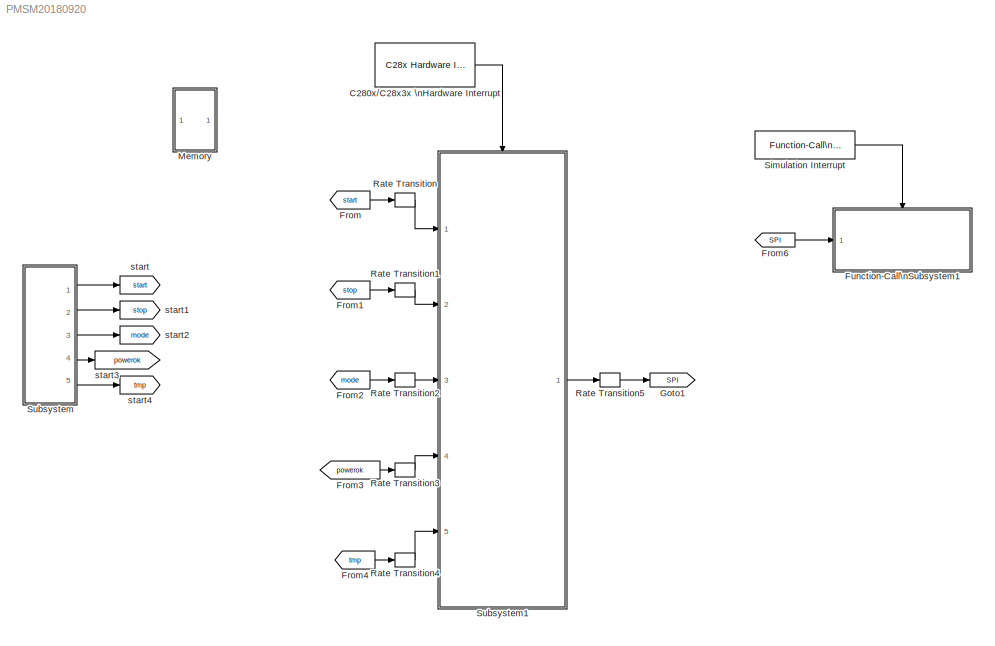
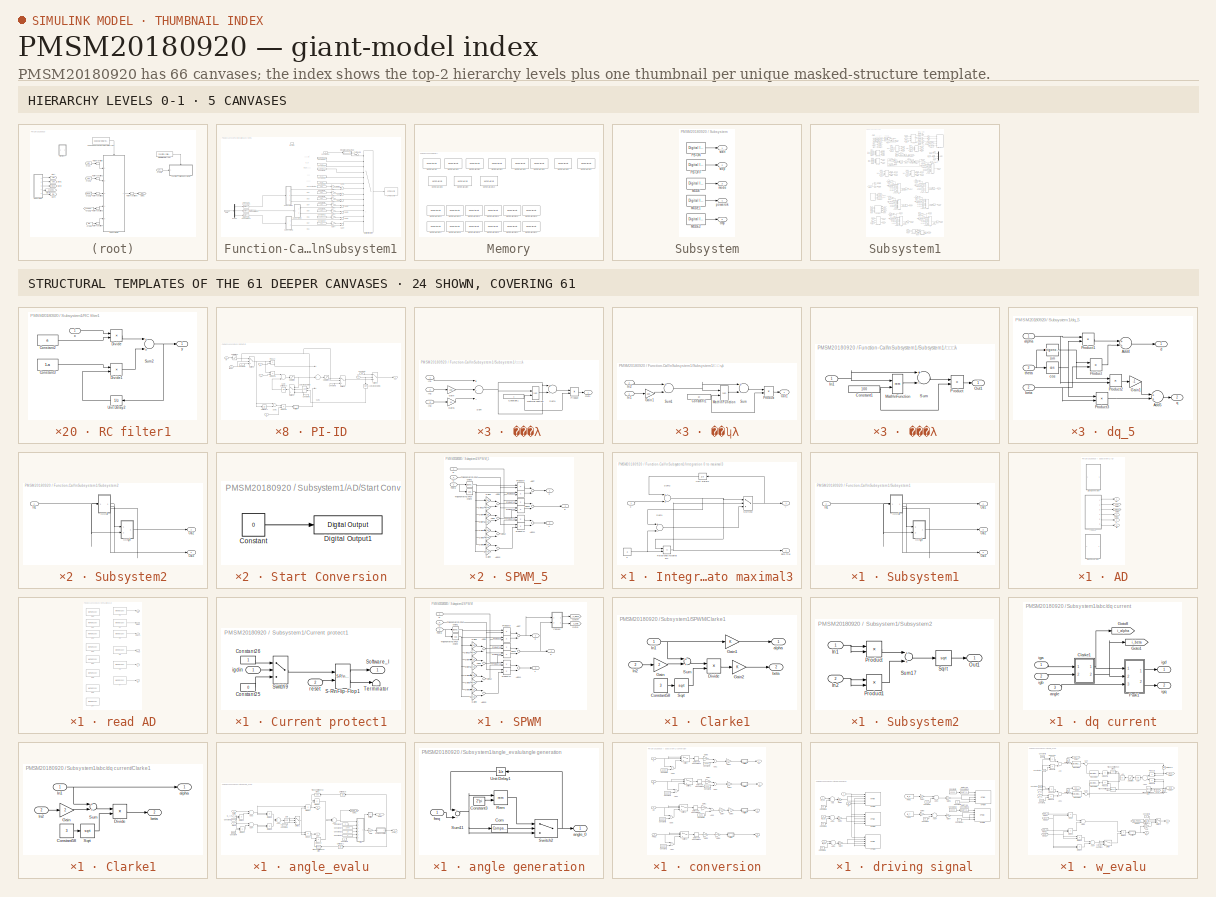
[diagram: thumbnail index - top-2 hierarchy levels (5 canvases) + 24 structural-template representatives of the remaining 61 canvases]
MODEL PMSM20180920
KIND model
BLOCK [Reference] C280x//C28x3x \nHardware Interrupt  REF=c2000lib/Scheduling/C28x Hardware Interrupt
  MultiThreadCoSim = auto
  Ports = [0, 1]
  SID = 26939
  SourceBlock = c2000lib/Scheduling/C28x Hardware Interrupt
  SourceProductBaseCode = TIC2000
  SourceProductName = Embedded Coder Support Package for Texas Instruments C2000 Processors
  SourceType = C28x Interrupt Block
  dspchiptype = C280X
  irqnumbers = [3]
  irqpreempts = [0]
  irqpriorities = [30]
  pienumbers = [1]
  showinput = off
BLOCK [From] From
  GotoTag = start
  SID = 22808
BLOCK [From] From1
  GotoTag = stop
  SID = 22809
BLOCK [From] From2
  GotoTag = mode
  SID = 22810
BLOCK [From] From3
  GotoTag = powerok
  SID = 22811
BLOCK [From] From4
  GotoTag = tmp
  SID = 22813
BLOCK [From] From6
  GotoTag = SPI
  SID = 30675
BLOCK [SubSystem] Function-Call\nSubsystem1
  Ports = [1, 0, 0, 1]
  RequestExecContextInheritance = off
  SID = 30676
  TreatAsAtomicUnit = on
BLOCK [Constant] Function-Call\nSubsystem1/Constant10
  OutDataTypeStr = uint16
  SID = 30679
BLOCK [Constant] Function-Call\nSubsystem1/Constant12
  OutDataTypeStr = uint16
  SID = 30680
  Value = 256
BLOCK [Constant] Function-Call\nSubsystem1/Constant14
  OutDataTypeStr = uint16
  SID = 30681
  Value = 256
BLOCK [Constant] Function-Call\nSubsystem1/Constant19
  OutDataTypeStr = uint16
  SID = 30682
  Value = 2823
BLOCK [Constant] Function-Call\nSubsystem1/Constant2
  OutDataTypeStr = uint16
  SID = 30683
  Value = 256
BLOCK [Constant] Function-Call\nSubsystem1/Constant20
  OutDataTypeStr = uint16
  SID = 30684
  Value = 3840
BLOCK [Constant] Function-Call\nSubsystem1/Constant28
  OutDataTypeStr = uint16
  SID = 30685
  Value = 256
BLOCK [Constant] Function-Call\nSubsystem1/Constant35
  OutDataTypeStr = uint16
  SID = 30686
  Value = 3073
BLOCK [Constant] Function-Call\nSubsystem1/Constant36
  OutDataTypeStr = uint16
  SID = 30687
  Value = 2566
BLOCK [Constant] Function-Call\nSubsystem1/Constant4
  OutDataTypeStr = uint16
  SID = 30688
  Value = 2559
BLOCK [Constant] Function-Call\nSubsystem1/Constant5
  OutDataTypeStr = uint16
  SID = 30689
  Value = 256
BLOCK [Constant] Function-Call\nSubsystem1/Constant7
  OutDataTypeStr = uint16
  SID = 30690
  Value = 256
BLOCK [Constant] Function-Call\nSubsystem1/Constant8
  OutDataTypeStr = uint16
  SID = 30691
  Value = 256
BLOCK [DataTypeConversion] Function-Call\nSubsystem1/Data Type Conversion
  OutDataTypeStr = uint16
  RndMeth = Floor
  SID = 30692
  SaturateOnIntegerOverflow = off
BLOCK [DataTypeConversion] Function-Call\nSubsystem1/Data Type Conversion1
  OutDataTypeStr = uint16
  RndMeth = Floor
  SID = 30693
  SaturateOnIntegerOverflow = off
BLOCK [DataTypeConversion] Function-Call\nSubsystem1/Data Type Conversion2
  OutDataTypeStr = uint16
  RndMeth = Floor
  SID = 30694
  SaturateOnIntegerOverflow = off
BLOCK [Demux] Function-Call\nSubsystem1/Demux
  DisplayOption = bar
  Outputs = 3
  Ports = [1, 3]
  SID = 30695
BLOCK [Gain] Function-Call\nSubsystem1/Gain1
  Gain = 2
  OutDataTypeStr = Inherit: Inherit via internal rule
  ParamDataTypeStr = Inherit: Inherit via internal rule
  SID = 30696
  SaturateOnIntegerOverflow = off
BLOCK [Gain] Function-Call\nSubsystem1/Gain2
  OutDataTypeStr = Inherit: Inherit via internal rule
  ParamDataTypeStr = Inherit: Inherit via internal rule
  SID = 30697
  SaturateOnIntegerOverflow = off
BLOCK [Gain] Function-Call\nSubsystem1/Gain3
  Gain = 3
  OutDataTypeStr = Inherit: Inherit via internal rule
  ParamDataTypeStr = Inherit: Inherit via internal rule
  SID = 30698
  SaturateOnIntegerOverflow = off
BLOCK [Gain] Function-Call\nSubsystem1/Gain4
  Gain = 4
  OutDataTypeStr = Inherit: Inherit via internal rule
  ParamDataTypeStr = Inherit: Inherit via internal rule
  SID = 30699
  SaturateOnIntegerOverflow = off
BLOCK [Gain] Function-Call\nSubsystem1/Gain5
  Gain = 5
  OutDataTypeStr = Inherit: Inherit via internal rule
  ParamDataTypeStr = Inherit: Inherit via internal rule
  SID = 30700
  SaturateOnIntegerOverflow = off
BLOCK [Gain] Function-Call\nSubsystem1/Gain6
  Gain = 6
  OutDataTypeStr = Inherit: Inherit via internal rule
  ParamDataTypeStr = Inherit: Inherit via internal rule
  SID = 30701
  SaturateOnIntegerOverflow = off
BLOCK [Gain] Function-Call\nSubsystem1/Gain7
  Gain = 7
  OutDataTypeStr = Inherit: Inherit via internal rule
  ParamDataTypeStr = Inherit: Inherit via internal rule
  SID = 30702
  SaturateOnIntegerOverflow = off
BLOCK [SubSystem] Function-Call\nSubsystem1/Integration 0 to maximal3
  Ports = [1, 2]
  RequestExecContextInheritance = off
  SID = 30703
BLOCK [Constant] Function-Call\nSubsystem1/Integration 0 to maximal3/3
  OutDataTypeStr = fixdt(1,32,16)
  SID = 30705
  Value = a
BLOCK [RelationalOperator] Function-Call\nSubsystem1/Integration 0 to maximal3/Relational\nOperator1
  InputSameDT = off
  Operator = <=
  Ports = [2, 1]
  SID = 30706
BLOCK [Sum] Function-Call\nSubsystem1/Integration 0 to maximal3/Sum1
  InputSameDT = off
  Inputs = +-
  OutDataTypeStr = Inherit: Inherit via internal rule
  Ports = [2, 1]
  SID = 30707
  SaturateOnIntegerOverflow = off
BLOCK [Sum] Function-Call\nSubsystem1/Integration 0 to maximal3/Sum2
  InputSameDT = off
  OutDataTypeStr = Inherit: Inherit via internal rule
  Ports = [2, 1]
  SID = 30708
  SaturateOnIntegerOverflow = off
BLOCK [Switch] Function-Call\nSubsystem1/Integration 0 to maximal3/Switch2
  Criteria = u2 > Threshold
  SID = 30709
BLOCK [UnitDelay] Function-Call\nSubsystem1/Integration 0 to maximal3/Unit Delay1
  InputProcessing = Elements as channels (sample based)
  SID = 30710
  SampleTime = -1
BLOCK [Outport] Function-Call\nSubsystem1/Integration 0 to maximal3/Zero Trig
  IconDisplay = Port number
  Port = 2
  SID = 30712
BLOCK [Inport] Function-Call\nSubsystem1/Integration 0 to maximal3/x
  IconDisplay = Port number
  SID = 30704
BLOCK [Outport] Function-Call\nSubsystem1/Integration 0 to maximal3/y
  IconDisplay = Port number
  SID = 30711
BLOCK [MultiPortSwitch] Function-Call\nSubsystem1/Multiport\nSwitch
  DataPortForDefault = Additional data port
  InputSameDT = off
  Inputs = 12
  OutDataTypeStr = uint16
  Ports = [14, 1]
  SID = 30713
  SaturateOnIntegerOverflow = off
BLOCK [Reference] Function-Call\nSubsystem1/SPI Transmit  REF=c280xlib/SPI Transmit
  ActiveLowSSPin = Active low
  BlockFunction = Write
  BlockingMode = off
  BusSpeed = uint32(1000000)
  ClockMode = 0
  ClockPhase = No_delay
  ClockPolarity = Rising_edge
  DataBits = 8
  EnableRegisterAddress = on
  FirstBitToTransfer = Most significant bit (MSB)
  Mode = Master
  OutputDataLength = 1
  OutputDataType = int8
  Pin = 0
  Ports = [1, 1]
  RegisterAddress = 0
  SID = 30714
  SPIModule = uint32(0)
  SPISelect = SPI_A
  SourceBlock = c280xlib/SPI Transmit
  SourceProductBaseCode = TIC2000
  SourceProductName = Embedded Coder Support Package for Texas Instruments C2000 Processors
  SourceType = codertarget.tic2000.blocks.SPIWrite
  UseCustomSSPin = Provided by the SPI peripheral
BLOCK [Inport] Function-Call\nSubsystem1/SPI2
  IconDisplay = Port number
  SID = 30677
BLOCK [SubSystem] Function-Call\nSubsystem1/Subsystem1
  Ports = [1, 3]
  RequestExecContextInheritance = off
  SID = 30715
BLOCK [Inport] Function-Call\nSubsystem1/Subsystem1/In1
  IconDisplay = Port number
  SID = 30716
BLOCK [Outport] Function-Call\nSubsystem1/Subsystem1/Out1
  IconDisplay = Port number
  SID = 30746
BLOCK [Outport] Function-Call\nSubsystem1/Subsystem1/Out2
  IconDisplay = Port number
  Port = 2
  SID = 30747
BLOCK [Outport] Function-Call\nSubsystem1/Subsystem1/Out3
  IconDisplay = Port number
  Port = 3
  SID = 30748
BLOCK [SubSystem] Function-Call\nSubsystem1/Subsystem1/求百位
  Ports = [1, 1]
  RequestExecContextInheritance = off
  SID = 30739
BLOCK [Constant] Function-Call\nSubsystem1/Subsystem1/求百位/Constant1
  OutDataTypeStr = uint16
  SID = 30741
  Value = 100
BLOCK [Inport] Function-Call\nSubsystem1/Subsystem1/求百位/In1
  IconDisplay = Port number
  SID = 30740
BLOCK [Math] Function-Call\nSubsystem1/Subsystem1/求百位/Math\nFunction
  Operator = rem
  Ports = [2, 1]
  SID = 30742
BLOCK [Outport] Function-Call\nSubsystem1/Subsystem1/求百位/Out1
  IconDisplay = Port number
  SID = 30745
BLOCK [Product] Function-Call\nSubsystem1/Subsystem1/求百位/Product
  InputSameDT = off
  Inputs = */
  OutDataTypeStr = Inherit: Inherit via internal rule
  Ports = [2, 1]
  RndMeth = Floor
  SID = 30743
  SaturateOnIntegerOverflow = off
BLOCK [Sum] Function-Call\nSubsystem1/Subsystem1/求百位/Sum
  InputSameDT = off
  Inputs = +-
  OutDataTypeStr = Inherit: Inherit via internal rule
  Ports = [2, 1]
  SID = 30744
  SaturateOnIntegerOverflow = off
BLOCK [SubSystem] Function-Call\nSubsystem1/Subsystem1/求个位
  Ports = [3, 1]
  RequestExecContextInheritance = off
  SID = 30717
BLOCK [Constant] Function-Call\nSubsystem1/Subsystem1/求个位/Constant1
  OutDataTypeStr = uint16
  SID = 30721
BLOCK [Gain] Function-Call\nSubsystem1/Subsystem1/求个位/Gain
  Gain = 100
  OutDataTypeStr = Inherit: Inherit via internal rule
  ParamDataTypeStr = Inherit: Inherit via internal rule
  SID = 30722
  SaturateOnIntegerOverflow = off
BLOCK [Gain] Function-Call\nSubsystem1/Subsystem1/求个位/Gain1
  Gain = 10
  OutDataTypeStr = Inherit: Inherit via internal rule
  ParamDataTypeStr = Inherit: Inherit via internal rule
  SID = 30723
  SaturateOnIntegerOverflow = off
BLOCK [Inport] Function-Call\nSubsystem1/Subsystem1/求个位/In1
  IconDisplay = Port number
  SID = 30718
BLOCK [Inport] Function-Call\nSubsystem1/Subsystem1/求个位/In2
  IconDisplay = Port number
  Port = 2
  SID = 30719
BLOCK [Inport] Function-Call\nSubsystem1/Subsystem1/求个位/In3
  IconDisplay = Port number
  Port = 3
  SID = 30720
BLOCK [Math] Function-Call\nSubsystem1/Subsystem1/求个位/Math\nFunction
  Operator = rem
  Ports = [2, 1]
  SID = 30724
BLOCK [Outport] Function-Call\nSubsystem1/Subsystem1/求个位/Out1
  IconDisplay = Port number
  SID = 30728
BLOCK [Product] Function-Call\nSubsystem1/Subsystem1/求个位/Product
  InputSameDT = off
  Inputs = */
  OutDataTypeStr = Inherit: Inherit via internal rule
  Ports = [2, 1]
  RndMeth = Floor
  SID = 30725
  SaturateOnIntegerOverflow = off
BLOCK [Sum] Function-Call\nSubsystem1/Subsystem1/求个位/Sum
  AccumDataTypeStr = uint16
  InputSameDT = off
  Inputs = +--
  OutDataTypeStr = uint16
  Ports = [3, 1]
  SID = 30726
  SaturateOnIntegerOverflow = off
BLOCK [Sum] Function-Call\nSubsystem1/Subsystem1/求个位/Sum1
  InputSameDT = off
  Inputs = +-
  OutDataTypeStr = Inherit: Inherit via internal rule
  Ports = [2, 1]
  SID = 30727
  SaturateOnIntegerOverflow = off
BLOCK [SubSystem] Function-Call\nSubsystem1/Subsystem1/求十位
  Ports = [2, 1]
  RequestExecContextInheritance = off
  SID = 30729
BLOCK [Constant] Function-Call\nSubsystem1/Subsystem1/求十位/Constant1
  OutDataTypeStr = uint16
  SID = 30732
  Value = 10
BLOCK [Gain] Function-Call\nSubsystem1/Subsystem1/求十位/Gain1
  Gain = 100
  OutDataTypeStr = Inherit: Inherit via internal rule
  ParamDataTypeStr = Inherit: Inherit via internal rule
  SID = 30733
  SaturateOnIntegerOverflow = off
BLOCK [Inport] Function-Call\nSubsystem1/Subsystem1/求十位/In1
  IconDisplay = Port number
  SID = 30730
BLOCK [Inport] Function-Call\nSubsystem1/Subsystem1/求十位/In2
  IconDisplay = Port number
  Port = 2
  SID = 30731
BLOCK [Math] Function-Call\nSubsystem1/Subsystem1/求十位/Math\nFunction
  Operator = rem
  Ports = [2, 1]
  SID = 30734
BLOCK [Outport] Function-Call\nSubsystem1/Subsystem1/求十位/Out1
  IconDisplay = Port number
  SID = 30738
BLOCK [Product] Function-Call\nSubsystem1/Subsystem1/求十位/Product
  InputSameDT = off
  Inputs = */
  OutDataTypeStr = Inherit: Inherit via internal rule
  Ports = [2, 1]
  RndMeth = Floor
  SID = 30735
  SaturateOnIntegerOverflow = off
BLOCK [Sum] Function-Call\nSubsystem1/Subsystem1/求十位/Sum
  InputSameDT = off
  Inputs = +-
  OutDataTypeStr = Inherit: Inherit via internal rule
  Ports = [2, 1]
  SID = 30736
  SaturateOnIntegerOverflow = off
BLOCK [Sum] Function-Call\nSubsystem1/Subsystem1/求十位/Sum1
  InputSameDT = off
  Inputs = +-
  OutDataTypeStr = uint16
  Ports = [2, 1]
  SID = 30737
  SaturateOnIntegerOverflow = off
BLOCK [SubSystem] Function-Call\nSubsystem1/Subsystem2
  Ports = [1, 2]
  RequestExecContextInheritance = off
  SID = 30749
BLOCK [Inport] Function-Call\nSubsystem1/Subsystem2/In1
  IconDisplay = Port number
  SID = 30750
BLOCK [Outport] Function-Call\nSubsystem1/Subsystem2/Out2
  IconDisplay = Port number
  SID = 30780
BLOCK [Outport] Function-Call\nSubsystem1/Subsystem2/Out3
  IconDisplay = Port number
  Port = 2
  SID = 30781
BLOCK [SubSystem] Function-Call\nSubsystem1/Subsystem2/求百位
  Ports = [1, 1]
  RequestExecContextInheritance = off
  SID = 30773
BLOCK [Constant] Function-Call\nSubsystem1/Subsystem2/求百位/Constant1
  OutDataTypeStr = uint16
  SID = 30775
  Value = 100
BLOCK [Inport] Function-Call\nSubsystem1/Subsystem2/求百位/In1
  IconDisplay = Port number
  SID = 30774
BLOCK [Math] Function-Call\nSubsystem1/Subsystem2/求百位/Math\nFunction
  Operator = rem
  Ports = [2, 1]
  SID = 30776
BLOCK [Outport] Function-Call\nSubsystem1/Subsystem2/求百位/Out1
  IconDisplay = Port number
  SID = 30779
BLOCK [Product] Function-Call\nSubsystem1/Subsystem2/求百位/Product
  InputSameDT = off
  Inputs = */
  OutDataTypeStr = Inherit: Inherit via internal rule
  Ports = [2, 1]
  RndMeth = Floor
  SID = 30777
  SaturateOnIntegerOverflow = off
BLOCK [Sum] Function-Call\nSubsystem1/Subsystem2/求百位/Sum
  InputSameDT = off
  Inputs = +-
  OutDataTypeStr = Inherit: Inherit via internal rule
  Ports = [2, 1]
  SID = 30778
  SaturateOnIntegerOverflow = off
BLOCK [SubSystem] Function-Call\nSubsystem1/Subsystem2/求个位
  Ports = [3, 1]
  RequestExecContextInheritance = off
  SID = 30751
BLOCK [Constant] Function-Call\nSubsystem1/Subsystem2/求个位/Constant1
  OutDataTypeStr = uint16
  SID = 30755
BLOCK [Gain] Function-Call\nSubsystem1/Subsystem2/求个位/Gain
  Gain = 100
  OutDataTypeStr = Inherit: Inherit via internal rule
  ParamDataTypeStr = Inherit: Inherit via internal rule
  SID = 30756
  SaturateOnIntegerOverflow = off
BLOCK [Gain] Function-Call\nSubsystem1/Subsystem2/求个位/Gain1
  Gain = 10
  OutDataTypeStr = Inherit: Inherit via internal rule
  ParamDataTypeStr = Inherit: Inherit via internal rule
  SID = 30757
  SaturateOnIntegerOverflow = off
BLOCK [Inport] Function-Call\nSubsystem1/Subsystem2/求个位/In1
  IconDisplay = Port number
  SID = 30752
BLOCK [Inport] Function-Call\nSubsystem1/Subsystem2/求个位/In2
  IconDisplay = Port number
  Port = 2
  SID = 30753
BLOCK [Inport] Function-Call\nSubsystem1/Subsystem2/求个位/In3
  IconDisplay = Port number
  Port = 3
  SID = 30754
BLOCK [Math] Function-Call\nSubsystem1/Subsystem2/求个位/Math\nFunction
  Operator = rem
  Ports = [2, 1]
  SID = 30758
BLOCK [Outport] Function-Call\nSubsystem1/Subsystem2/求个位/Out1
  IconDisplay = Port number
  SID = 30762
BLOCK [Product] Function-Call\nSubsystem1/Subsystem2/求个位/Product
  InputSameDT = off
  Inputs = */
  OutDataTypeStr = Inherit: Inherit via internal rule
  Ports = [2, 1]
  RndMeth = Floor
  SID = 30759
  SaturateOnIntegerOverflow = off
BLOCK [Sum] Function-Call\nSubsystem1/Subsystem2/求个位/Sum
  AccumDataTypeStr = uint16
  InputSameDT = off
  Inputs = +--
  OutDataTypeStr = uint16
  Ports = [3, 1]
  SID = 30760
  SaturateOnIntegerOverflow = off
BLOCK [Sum] Function-Call\nSubsystem1/Subsystem2/求个位/Sum1
  InputSameDT = off
  Inputs = +-
  OutDataTypeStr = Inherit: Inherit via internal rule
  Ports = [2, 1]
  SID = 30761
  SaturateOnIntegerOverflow = off
BLOCK [SubSystem] Function-Call\nSubsystem1/Subsystem2/求十位
  Ports = [2, 1]
  RequestExecContextInheritance = off
  SID = 30763
BLOCK [Constant] Function-Call\nSubsystem1/Subsystem2/求十位/Constant1
  OutDataTypeStr = uint16
  SID = 30766
  Value = 10
BLOCK [Gain] Function-Call\nSubsystem1/Subsystem2/求十位/Gain1
  Gain = 100
  OutDataTypeStr = Inherit: Inherit via internal rule
  ParamDataTypeStr = Inherit: Inherit via internal rule
  SID = 30767
  SaturateOnIntegerOverflow = off
BLOCK [Inport] Function-Call\nSubsystem1/Subsystem2/求十位/In1
  IconDisplay = Port number
  SID = 30764
BLOCK [Inport] Function-Call\nSubsystem1/Subsystem2/求十位/In2
  IconDisplay = Port number
  Port = 2
  SID = 30765
BLOCK [Math] Function-Call\nSubsystem1/Subsystem2/求十位/Math\nFunction
  Operator = rem
  Ports = [2, 1]
  SID = 30768
BLOCK [Outport] Function-Call\nSubsystem1/Subsystem2/求十位/Out1
  IconDisplay = Port number
  SID = 30772
BLOCK [Product] Function-Call\nSubsystem1/Subsystem2/求十位/Product
  InputSameDT = off
  Inputs = */
  OutDataTypeStr = Inherit: Inherit via internal rule
  Ports = [2, 1]
  RndMeth = Floor
  SID = 30769
  SaturateOnIntegerOverflow = off
BLOCK [Sum] Function-Call\nSubsystem1/Subsystem2/求十位/Sum
  InputSameDT = off
  Inputs = +-
  OutDataTypeStr = Inherit: Inherit via internal rule
  Ports = [2, 1]
  SID = 30770
  SaturateOnIntegerOverflow = off
BLOCK [Sum] Function-Call\nSubsystem1/Subsystem2/求十位/Sum1
  InputSameDT = off
  Inputs = +-
  OutDataTypeStr = uint16
  Ports = [2, 1]
  SID = 30771
  SaturateOnIntegerOverflow = off
BLOCK [SubSystem] Function-Call\nSubsystem1/Subsystem3
  Ports = [1, 2]
  RequestExecContextInheritance = off
  SID = 30782
BLOCK [Inport] Function-Call\nSubsystem1/Subsystem3/In1
  IconDisplay = Port number
  SID = 30783
BLOCK [Outport] Function-Call\nSubsystem1/Subsystem3/Out2
  IconDisplay = Port number
  SID = 30813
BLOCK [Outport] Function-Call\nSubsystem1/Subsystem3/Out3
  IconDisplay = Port number
  Port = 2
  SID = 30814
BLOCK [SubSystem] Function-Call\nSubsystem1/Subsystem3/求百位
  Ports = [1, 1]
  RequestExecContextInheritance = off
  SID = 30806
BLOCK [Constant] Function-Call\nSubsystem1/Subsystem3/求百位/Constant1
  OutDataTypeStr = uint16
  SID = 30808
  Value = 100
BLOCK [Inport] Function-Call\nSubsystem1/Subsystem3/求百位/In1
  IconDisplay = Port number
  SID = 30807
BLOCK [Math] Function-Call\nSubsystem1/Subsystem3/求百位/Math\nFunction
  Operator = rem
  Ports = [2, 1]
  SID = 30809
BLOCK [Outport] Function-Call\nSubsystem1/Subsystem3/求百位/Out1
  IconDisplay = Port number
  SID = 30812
BLOCK [Product] Function-Call\nSubsystem1/Subsystem3/求百位/Product
  InputSameDT = off
  Inputs = */
  OutDataTypeStr = Inherit: Inherit via internal rule
  Ports = [2, 1]
  RndMeth = Floor
  SID = 30810
  SaturateOnIntegerOverflow = off
BLOCK [Sum] Function-Call\nSubsystem1/Subsystem3/求百位/Sum
  InputSameDT = off
  Inputs = +-
  OutDataTypeStr = Inherit: Inherit via internal rule
  Ports = [2, 1]
  SID = 30811
  SaturateOnIntegerOverflow = off
BLOCK [SubSystem] Function-Call\nSubsystem1/Subsystem3/求个位
  Ports = [3, 1]
  RequestExecContextInheritance = off
  SID = 30784
BLOCK [Constant] Function-Call\nSubsystem1/Subsystem3/求个位/Constant1
  OutDataTypeStr = uint16
  SID = 30788
BLOCK [Gain] Function-Call\nSubsystem1/Subsystem3/求个位/Gain
  Gain = 100
  OutDataTypeStr = Inherit: Inherit via internal rule
  ParamDataTypeStr = Inherit: Inherit via internal rule
  SID = 30789
  SaturateOnIntegerOverflow = off
BLOCK [Gain] Function-Call\nSubsystem1/Subsystem3/求个位/Gain1
  Gain = 10
  OutDataTypeStr = Inherit: Inherit via internal rule
  ParamDataTypeStr = Inherit: Inherit via internal rule
  SID = 30790
  SaturateOnIntegerOverflow = off
BLOCK [Inport] Function-Call\nSubsystem1/Subsystem3/求个位/In1
  IconDisplay = Port number
  SID = 30785
BLOCK [Inport] Function-Call\nSubsystem1/Subsystem3/求个位/In2
  IconDisplay = Port number
  Port = 2
  SID = 30786
BLOCK [Inport] Function-Call\nSubsystem1/Subsystem3/求个位/In3
  IconDisplay = Port number
  Port = 3
  SID = 30787
BLOCK [Math] Function-Call\nSubsystem1/Subsystem3/求个位/Math\nFunction
  Operator = rem
  Ports = [2, 1]
  SID = 30791
BLOCK [Outport] Function-Call\nSubsystem1/Subsystem3/求个位/Out1
  IconDisplay = Port number
  SID = 30795
BLOCK [Product] Function-Call\nSubsystem1/Subsystem3/求个位/Product
  InputSameDT = off
  Inputs = */
  OutDataTypeStr = Inherit: Inherit via internal rule
  Ports = [2, 1]
  RndMeth = Floor
  SID = 30792
  SaturateOnIntegerOverflow = off
BLOCK [Sum] Function-Call\nSubsystem1/Subsystem3/求个位/Sum
  AccumDataTypeStr = uint16
  InputSameDT = off
  Inputs = +--
  OutDataTypeStr = uint16
  Ports = [3, 1]
  SID = 30793
  SaturateOnIntegerOverflow = off
BLOCK [Sum] Function-Call\nSubsystem1/Subsystem3/求个位/Sum1
  InputSameDT = off
  Inputs = +-
  OutDataTypeStr = Inherit: Inherit via internal rule
  Ports = [2, 1]
  SID = 30794
  SaturateOnIntegerOverflow = off
BLOCK [SubSystem] Function-Call\nSubsystem1/Subsystem3/求十位
  Ports = [2, 1]
  RequestExecContextInheritance = off
  SID = 30796
BLOCK [Constant] Function-Call\nSubsystem1/Subsystem3/求十位/Constant1
  OutDataTypeStr = uint16
  SID = 30799
  Value = 10
BLOCK [Gain] Function-Call\nSubsystem1/Subsystem3/求十位/Gain1
  Gain = 100
  OutDataTypeStr = Inherit: Inherit via internal rule
  ParamDataTypeStr = Inherit: Inherit via internal rule
  SID = 30800
  SaturateOnIntegerOverflow = off
BLOCK [Inport] Function-Call\nSubsystem1/Subsystem3/求十位/In1
  IconDisplay = Port number
  SID = 30797
BLOCK [Inport] Function-Call\nSubsystem1/Subsystem3/求十位/In2
  IconDisplay = Port number
  Port = 2
  SID = 30798
BLOCK [Math] Function-Call\nSubsystem1/Subsystem3/求十位/Math\nFunction
  Operator = rem
  Ports = [2, 1]
  SID = 30801
BLOCK [Outport] Function-Call\nSubsystem1/Subsystem3/求十位/Out1
  IconDisplay = Port number
  SID = 30805
BLOCK [Product] Function-Call\nSubsystem1/Subsystem3/求十位/Product
  InputSameDT = off
  Inputs = */
  OutDataTypeStr = Inherit: Inherit via internal rule
  Ports = [2, 1]
  RndMeth = Floor
  SID = 30802
  SaturateOnIntegerOverflow = off
BLOCK [Sum] Function-Call\nSubsystem1/Subsystem3/求十位/Sum
  InputSameDT = off
  Inputs = +-
  OutDataTypeStr = Inherit: Inherit via internal rule
  Ports = [2, 1]
  SID = 30803
  SaturateOnIntegerOverflow = off
BLOCK [Sum] Function-Call\nSubsystem1/Subsystem3/求十位/Sum1
  InputSameDT = off
  Inputs = +-
  OutDataTypeStr = uint16
  Ports = [2, 1]
  SID = 30804
  SaturateOnIntegerOverflow = off
BLOCK [Sum] Function-Call\nSubsystem1/Sum1
  InputSameDT = off
  OutDataTypeStr = Inherit: Inherit via internal rule
  Ports = [2, 1]
  SID = 30815
  SaturateOnIntegerOverflow = off
BLOCK [Sum] Function-Call\nSubsystem1/Sum2
  InputSameDT = off
  OutDataTypeStr = Inherit: Inherit via internal rule
  Ports = [2, 1]
  SID = 30816
  SaturateOnIntegerOverflow = off
BLOCK [Sum] Function-Call\nSubsystem1/Sum3
  InputSameDT = off
  OutDataTypeStr = Inherit: Inherit via internal rule
  Ports = [2, 1]
  SID = 30817
  SaturateOnIntegerOverflow = off
BLOCK [Sum] Function-Call\nSubsystem1/Sum4
  InputSameDT = off
  OutDataTypeStr = Inherit: Inherit via internal rule
  Ports = [2, 1]
  SID = 30818
  SaturateOnIntegerOverflow = off
BLOCK [Sum] Function-Call\nSubsystem1/Sum5
  InputSameDT = off
  OutDataTypeStr = Inherit: Inherit via internal rule
  Ports = [2, 1]
  SID = 30819
  SaturateOnIntegerOverflow = off
BLOCK [Sum] Function-Call\nSubsystem1/Sum6
  InputSameDT = off
  OutDataTypeStr = Inherit: Inherit via internal rule
  Ports = [2, 1]
  SID = 30820
  SaturateOnIntegerOverflow = off
BLOCK [Sum] Function-Call\nSubsystem1/Sum7
  InputSameDT = off
  OutDataTypeStr = Inherit: Inherit via internal rule
  Ports = [2, 1]
  SID = 30821
  SaturateOnIntegerOverflow = off
BLOCK [Terminator] Function-Call\nSubsystem1/Terminator4
  SID = 30822
BLOCK [TriggerPort] Function-Call\nSubsystem1/function
  Ports = []
  SID = 30678
  StatesWhenEnabling = held
  TriggerType = function-call
  VariantControl = (inherit)
BLOCK [Goto] Goto1
  GotoTag = SPI
  SID = 30843
BLOCK [SubSystem] Memory
  Ports = []
  RequestExecContextInheritance = off
  SID = 30651
BLOCK [Reference] Memory/Memory Allocate  REF=idelinklib_common/Memory Allocate
  MultiThreadCoSim = auto
  Ports = []
  SID = 30652
  SourceBlock = idelinklib_common/Memory Allocate
  SourceType = Memory Allocate
  alignThisVariable = off
  bindMemorySection = off
  dataDimension = 1
  dataType = int16
  initialValue = 0
  initializeMemory = on
  memoryAlignmentBoundary = 4
  memorySection = mySEC1
  sectionStartAddress = hex2dec('8000')
  specifyMemorySection = off
  specifyQualifier = off
  typeQualifier = volatile
  variableName = p1
BLOCK [Reference] Memory/Memory Allocate1  REF=idelinklib_common/Memory Allocate
  MultiThreadCoSim = auto
  Ports = []
  SID = 30653
  SourceBlock = idelinklib_common/Memory Allocate
  SourceType = Memory Allocate
  alignThisVariable = off
  bindMemorySection = off
  dataDimension = 1
  dataType = int16
  initialValue = 0
  initializeMemory = on
  memoryAlignmentBoundary = 4
  memorySection = mySEC1
  sectionStartAddress = hex2dec('8000')
  specifyMemorySection = off
  specifyQualifier = off
  typeQualifier = volatile
  variableName = p2
BLOCK [Reference] Memory/Memory Allocate10  REF=idelinklib_common/Memory Allocate
  MultiThreadCoSim = auto
  Ports = []
  SID = 30654
  SourceBlock = idelinklib_common/Memory Allocate
  SourceType = Memory Allocate
  alignThisVariable = off
  bindMemorySection = off
  dataDimension = 1
  dataType = int16
  initialValue = 0
  initializeMemory = on
  memoryAlignmentBoundary = 4
  memorySection = mySEC1
  sectionStartAddress = hex2dec('8000')
  specifyMemorySection = off
  specifyQualifier = off
  typeQualifier = volatile
  variableName = p11
BLOCK [Reference] Memory/Memory Allocate11  REF=idelinklib_common/Memory Allocate
  MultiThreadCoSim = auto
  Ports = []
  SID = 30655
  SourceBlock = idelinklib_common/Memory Allocate
  SourceType = Memory Allocate
  alignThisVariable = off
  bindMemorySection = off
  dataDimension = 1
  dataType = int16
  initialValue = 0
  initializeMemory = on
  memoryAlignmentBoundary = 4
  memorySection = mySEC1
  sectionStartAddress = hex2dec('8000')
  specifyMemorySection = off
  specifyQualifier = off
  typeQualifier = volatile
  variableName = data1
BLOCK [Reference] Memory/Memory Allocate12  REF=idelinklib_common/Memory Allocate
  MultiThreadCoSim = auto
  Ports = []
  SID = 30656
  SourceBlock = idelinklib_common/Memory Allocate
  SourceType = Memory Allocate
  alignThisVariable = off
  bindMemorySection = off
  dataDimension = 1
  dataType = int16
  initialValue = 0
  initializeMemory = on
  memoryAlignmentBoundary = 4
  memorySection = mySEC1
  sectionStartAddress = hex2dec('8000')
  specifyMemorySection = off
  specifyQualifier = off
  typeQualifier = volatile
  variableName = data2
BLOCK [Reference] Memory/Memory Allocate13  REF=idelinklib_common/Memory Allocate
  MultiThreadCoSim = auto
  Ports = []
  SID = 30657
  SourceBlock = idelinklib_common/Memory Allocate
  SourceType = Memory Allocate
  alignThisVariable = off
  bindMemorySection = off
  dataDimension = 1
  dataType = int16
  initialValue = 0
  initializeMemory = on
  memoryAlignmentBoundary = 4
  memorySection = mySEC1
  sectionStartAddress = hex2dec('8000')
  specifyMemorySection = off
  specifyQualifier = off
  typeQualifier = volatile
  variableName = data3
BLOCK [Reference] Memory/Memory Allocate14  REF=idelinklib_common/Memory Allocate
  MultiThreadCoSim = auto
  Ports = []
  SID = 30658
  SourceBlock = idelinklib_common/Memory Allocate
  SourceType = Memory Allocate
  alignThisVariable = off
  bindMemorySection = off
  dataDimension = 1
  dataType = int16
  initialValue = 0
  initializeMemory = on
  memoryAlignmentBoundary = 4
  memorySection = mySEC1
  sectionStartAddress = hex2dec('8000')
  specifyMemorySection = off
  specifyQualifier = off
  typeQualifier = volatile
  variableName = data4
BLOCK [Reference] Memory/Memory Allocate15  REF=idelinklib_common/Memory Allocate
  MultiThreadCoSim = auto
  Ports = []
  SID = 30659
  SourceBlock = idelinklib_common/Memory Allocate
  SourceType = Memory Allocate
  alignThisVariable = off
  bindMemorySection = off
  dataDimension = 1
  dataType = int16
  initialValue = 0
  initializeMemory = on
  memoryAlignmentBoundary = 4
  memorySection = mySEC1
  sectionStartAddress = hex2dec('8000')
  specifyMemorySection = off
  specifyQualifier = off
  typeQualifier = volatile
  variableName = data5
BLOCK [Reference] Memory/Memory Allocate16  REF=idelinklib_common/Memory Allocate
  MultiThreadCoSim = auto
  Ports = []
  SID = 30660
  SourceBlock = idelinklib_common/Memory Allocate
  SourceType = Memory Allocate
  alignThisVariable = off
  bindMemorySection = off
  dataDimension = 1
  dataType = int16
  initialValue = 0
  initializeMemory = on
  memoryAlignmentBoundary = 4
  memorySection = mySEC1
  sectionStartAddress = hex2dec('8000')
  specifyMemorySection = off
  specifyQualifier = off
  typeQualifier = volatile
  variableName = data6
BLOCK [Reference] Memory/Memory Allocate17  REF=idelinklib_common/Memory Allocate
  MultiThreadCoSim = auto
  Ports = []
  SID = 30661
  SourceBlock = idelinklib_common/Memory Allocate
  SourceType = Memory Allocate
  alignThisVariable = off
  bindMemorySection = off
  dataDimension = 1
  dataType = int16
  initialValue = 0
  initializeMemory = on
  memoryAlignmentBoundary = 4
  memorySection = mySEC1
  sectionStartAddress = hex2dec('8000')
  specifyMemorySection = off
  specifyQualifier = off
  typeQualifier = volatile
  variableName = data7
BLOCK [Reference] Memory/Memory Allocate18  REF=idelinklib_common/Memory Allocate
  MultiThreadCoSim = auto
  Ports = []
  SID = 30662
  SourceBlock = idelinklib_common/Memory Allocate
  SourceType = Memory Allocate
  alignThisVariable = off
  bindMemorySection = off
  dataDimension = 1
  dataType = int16
  initialValue = 0
  initializeMemory = on
  memoryAlignmentBoundary = 4
  memorySection = mySEC1
  sectionStartAddress = hex2dec('8000')
  specifyMemorySection = off
  specifyQualifier = off
  typeQualifier = volatile
  variableName = data8
BLOCK [Reference] Memory/Memory Allocate19  REF=idelinklib_common/Memory Allocate
  MultiThreadCoSim = auto
  Ports = []
  SID = 30663
  SourceBlock = idelinklib_common/Memory Allocate
  SourceType = Memory Allocate
  alignThisVariable = off
  bindMemorySection = off
  dataDimension = 1
  dataType = int16
  initialValue = 0
  initializeMemory = on
  memoryAlignmentBoundary = 4
  memorySection = mySEC1
  sectionStartAddress = hex2dec('8000')
  specifyMemorySection = off
  specifyQualifier = off
  typeQualifier = volatile
  variableName = data9
BLOCK [Reference] Memory/Memory Allocate2  REF=idelinklib_common/Memory Allocate
  MultiThreadCoSim = auto
  Ports = []
  SID = 30664
  SourceBlock = idelinklib_common/Memory Allocate
  SourceType = Memory Allocate
  alignThisVariable = off
  bindMemorySection = off
  dataDimension = 1
  dataType = int16
  initialValue = 0
  initializeMemory = on
  memoryAlignmentBoundary = 4
  memorySection = mySEC1
  sectionStartAddress = hex2dec('8000')
  specifyMemorySection = off
  specifyQualifier = off
  typeQualifier = volatile
  variableName = p3
BLOCK [Reference] Memory/Memory Allocate20  REF=idelinklib_common/Memory Allocate
  MultiThreadCoSim = auto
  Ports = []
  SID = 30665
  SourceBlock = idelinklib_common/Memory Allocate
  SourceType = Memory Allocate
  alignThisVariable = off
  bindMemorySection = off
  dataDimension = 1
  dataType = int16
  initialValue = 0
  initializeMemory = on
  memoryAlignmentBoundary = 4
  memorySection = mySEC1
  sectionStartAddress = hex2dec('8000')
  specifyMemorySection = off
  specifyQualifier = off
  typeQualifier = volatile
  variableName = data10
BLOCK [Reference] Memory/Memory Allocate21  REF=idelinklib_common/Memory Allocate
  MultiThreadCoSim = auto
  Ports = []
  SID = 30666
  SourceBlock = idelinklib_common/Memory Allocate
  SourceType = Memory Allocate
  alignThisVariable = off
  bindMemorySection = off
  dataDimension = 1
  dataType = int16
  initialValue = 0
  initializeMemory = on
  memoryAlignmentBoundary = 4
  memorySection = mySEC1
  sectionStartAddress = hex2dec('8000')
  specifyMemorySection = off
  specifyQualifier = off
  typeQualifier = volatile
  variableName = data11
BLOCK [Reference] Memory/Memory Allocate22  REF=idelinklib_common/Memory Allocate
  MultiThreadCoSim = auto
  Ports = []
  SID = 30667
  SourceBlock = idelinklib_common/Memory Allocate
  SourceType = Memory Allocate
  alignThisVariable = off
  bindMemorySection = off
  dataDimension = 1
  dataType = int16
  initialValue = 0
  initializeMemory = on
  memoryAlignmentBoundary = 4
  memorySection = mySEC1
  sectionStartAddress = hex2dec('8000')
  specifyMemorySection = off
  specifyQualifier = off
  typeQualifier = volatile
  variableName = data12
BLOCK [Reference] Memory/Memory Allocate3  REF=idelinklib_common/Memory Allocate
  MultiThreadCoSim = auto
  Ports = []
  SID = 30668
  SourceBlock = idelinklib_common/Memory Allocate
  SourceType = Memory Allocate
  alignThisVariable = off
  bindMemorySection = off
  dataDimension = 1
  dataType = int16
  initialValue = 0
  initializeMemory = on
  memoryAlignmentBoundary = 4
  memorySection = mySEC1
  sectionStartAddress = hex2dec('8000')
  specifyMemorySection = off
  specifyQualifier = off
  typeQualifier = volatile
  variableName = p4
BLOCK [Reference] Memory/Memory Allocate4  REF=idelinklib_common/Memory Allocate
  MultiThreadCoSim = auto
  Ports = []
  SID = 30669
  SourceBlock = idelinklib_common/Memory Allocate
  SourceType = Memory Allocate
  alignThisVariable = off
  bindMemorySection = off
  dataDimension = 1
  dataType = int16
  initialValue = 0
  initializeMemory = on
  memoryAlignmentBoundary = 4
  memorySection = mySEC1
  sectionStartAddress = hex2dec('8000')
  specifyMemorySection = off
  specifyQualifier = off
  typeQualifier = volatile
  variableName = p5
BLOCK [Reference] Memory/Memory Allocate5  REF=idelinklib_common/Memory Allocate
  MultiThreadCoSim = auto
  Ports = []
  SID = 30670
  SourceBlock = idelinklib_common/Memory Allocate
  SourceType = Memory Allocate
  alignThisVariable = off
  bindMemorySection = off
  dataDimension = 1
  dataType = int16
  initialValue = 0
  initializeMemory = on
  memoryAlignmentBoundary = 4
  memorySection = mySEC1
  sectionStartAddress = hex2dec('8000')
  specifyMemorySection = off
  specifyQualifier = off
  typeQualifier = volatile
  variableName = p6
BLOCK [Reference] Memory/Memory Allocate6  REF=idelinklib_common/Memory Allocate
  MultiThreadCoSim = auto
  Ports = []
  SID = 30671
  SourceBlock = idelinklib_common/Memory Allocate
  SourceType = Memory Allocate
  alignThisVariable = off
  bindMemorySection = off
  dataDimension = 1
  dataType = int16
  initialValue = 0
  initializeMemory = on
  memoryAlignmentBoundary = 4
  memorySection = mySEC1
  sectionStartAddress = hex2dec('8000')
  specifyMemorySection = off
  specifyQualifier = off
  typeQualifier = volatile
  variableName = p7
BLOCK [Reference] Memory/Memory Allocate7  REF=idelinklib_common/Memory Allocate
  MultiThreadCoSim = auto
  Ports = []
  SID = 30672
  SourceBlock = idelinklib_common/Memory Allocate
  SourceType = Memory Allocate
  alignThisVariable = off
  bindMemorySection = off
  dataDimension = 1
  dataType = int16
  initialValue = 0
  initializeMemory = on
  memoryAlignmentBoundary = 4
  memorySection = mySEC1
  sectionStartAddress = hex2dec('8000')
  specifyMemorySection = off
  specifyQualifier = off
  typeQualifier = volatile
  variableName = p8
BLOCK [Reference] Memory/Memory Allocate8  REF=idelinklib_common/Memory Allocate
  MultiThreadCoSim = auto
  Ports = []
  SID = 30673
  SourceBlock = idelinklib_common/Memory Allocate
  SourceType = Memory Allocate
  alignThisVariable = off
  bindMemorySection = off
  dataDimension = 1
  dataType = int16
  initialValue = 0
  initializeMemory = on
  memoryAlignmentBoundary = 4
  memorySection = mySEC1
  sectionStartAddress = hex2dec('8000')
  specifyMemorySection = off
  specifyQualifier = off
  typeQualifier = volatile
  variableName = p9
BLOCK [Reference] Memory/Memory Allocate9  REF=idelinklib_common/Memory Allocate
  MultiThreadCoSim = auto
  Ports = []
  SID = 30674
  SourceBlock = idelinklib_common/Memory Allocate
  SourceType = Memory Allocate
  alignThisVariable = off
  bindMemorySection = off
  dataDimension = 1
  dataType = int16
  initialValue = 0
  initializeMemory = on
  memoryAlignmentBoundary = 4
  memorySection = mySEC1
  sectionStartAddress = hex2dec('8000')
  specifyMemorySection = off
  specifyQualifier = off
  typeQualifier = volatile
  variableName = p10
BLOCK [RateTransition] Rate Transition
  Integrity = off
  SID = 22825
BLOCK [RateTransition] Rate Transition1
  Integrity = off
  SID = 23158
BLOCK [RateTransition] Rate Transition2
  Integrity = off
  SID = 23159
BLOCK [RateTransition] Rate Transition3
  Integrity = off
  SID = 23160
BLOCK [RateTransition] Rate Transition4
  Integrity = off
  SID = 23161
BLOCK [RateTransition] Rate Transition5
  Integrity = off
  SID = 30844
BLOCK [Reference] Simulation Interrupt  REF=simulink/Ports &\nSubsystems/Function-Call\nGenerator
  MultiThreadCoSim = auto
  Ports = [0, 1]
  SID = 30837
  SourceBlock = simulink/Ports &\nSubsystems/Function-Call\nGenerator
  SourceProductBaseCode = SL
  SourceProductName = Simulink
  SourceType = Function-Call Generator
  numberOfIterations = 1
  sample_time = 0.005
BLOCK [SubSystem] Subsystem
  Ports = [0, 5]
  RequestExecContextInheritance = off
  SID = 1973
BLOCK [Reference] Subsystem/MODE  REF=c2833xlib/Digital Input
  GPIO_Bit0 = on
  GPIO_Bit0_Qualification = Sync to SYSCLKOUT
  GPIO_Bit1 = off
  GPIO_Bit1_Qualification = Sync to SYSCLKOUT
  GPIO_Bit2 = off
  GPIO_Bit2_Qualification = Sync to SYSCLKOUT
  GPIO_Bit3 = off
  GPIO_Bit3_Qualification = Sync to SYSCLKOUT
  GPIO_Bit4 = off
  GPIO_Bit4_Qualification = Sync to SYSCLKOUT
  GPIO_Bit5 = off
  GPIO_Bit5_Qualification = Sync to SYSCLKOUT
  GPIO_Bit6 = off
  GPIO_Bit6_Qualification = Sync to SYSCLKOUT
  GPIO_Bit7 = off
  GPIO_Bit7_Qualification = Sync to SYSCLKOUT
  GPIO_Number = GPIO40~GPIO47
  MultiThreadCoSim = auto
  Ports = [0, 1]
  Qualification_Period = -1
  SID = 22757
  SourceBlock = c2833xlib/Digital Input
  SourceProductBaseCode = TIC2000
  SourceProductName = Embedded Coder Support Package for Texas Instruments C2000 Processors
  SourceType = C2833x GPIO Digital Input
  UserData = DataTag1
  UserDataPersistent = on
  dataType = boolean
  sampleTime = -1
BLOCK [Reference] Subsystem/MODE1  REF=c2833xlib/Digital Input
  GPIO_Bit0 = off
  GPIO_Bit0_Qualification = Sync to SYSCLKOUT
  GPIO_Bit1 = on
  GPIO_Bit1_Qualification = Sync to SYSCLKOUT
  GPIO_Bit2 = off
  GPIO_Bit2_Qualification = Sync to SYSCLKOUT
  GPIO_Bit3 = off
  GPIO_Bit3_Qualification = Sync to SYSCLKOUT
  GPIO_Bit4 = off
  GPIO_Bit4_Qualification = Sync to SYSCLKOUT
  GPIO_Bit5 = off
  GPIO_Bit5_Qualification = Sync to SYSCLKOUT
  GPIO_Bit6 = off
  GPIO_Bit6_Qualification = Sync to SYSCLKOUT
  GPIO_Bit7 = off
  GPIO_Bit7_Qualification = Sync to SYSCLKOUT
  GPIO_Number = GPIO32~GPIO39
  MultiThreadCoSim = auto
  Ports = [0, 1]
  Qualification_Period = -1
  SID = 22778
  SourceBlock = c2833xlib/Digital Input
  SourceProductBaseCode = TIC2000
  SourceProductName = Embedded Coder Support Package for Texas Instruments C2000 Processors
  SourceType = C2833x GPIO Digital Input
  UserData = DataTag2
  UserDataPersistent = on
  dataType = boolean
  sampleTime = -1
BLOCK [Reference] Subsystem/MODE2  REF=c2833xlib/Digital Input
  GPIO_Bit0 = on
  GPIO_Bit0_Qualification = Sync to SYSCLKOUT
  GPIO_Bit1 = off
  GPIO_Bit1_Qualification = Sync to SYSCLKOUT
  GPIO_Bit2 = off
  GPIO_Bit2_Qualification = Sync to SYSCLKOUT
  GPIO_Bit3 = off
  GPIO_Bit3_Qualification = Sync to SYSCLKOUT
  GPIO_Bit4 = off
  GPIO_Bit4_Qualification = Sync to SYSCLKOUT
  GPIO_Bit5 = off
  GPIO_Bit5_Qualification = Sync to SYSCLKOUT
  GPIO_Bit6 = off
  GPIO_Bit6_Qualification = Sync to SYSCLKOUT
  GPIO_Bit7 = off
  GPIO_Bit7_Qualification = Sync to SYSCLKOUT
  GPIO_Number = GPIO32~GPIO39
  MultiThreadCoSim = auto
  Ports = [0, 1]
  Qualification_Period = -1
  SID = 22779
  SourceBlock = c2833xlib/Digital Input
  SourceProductBaseCode = TIC2000
  SourceProductName = Embedded Coder Support Package for Texas Instruments C2000 Processors
  SourceType = C2833x GPIO Digital Input
  UserData = DataTag3
  UserDataPersistent = on
  dataType = boolean
  sampleTime = -1
BLOCK [Reference] Subsystem/PB-OFF  REF=c2833xlib/Digital Input
  GPIO_Bit0 = off
  GPIO_Bit0_Qualification = Sync to SYSCLKOUT
  GPIO_Bit1 = off
  GPIO_Bit1_Qualification = Sync to SYSCLKOUT
  GPIO_Bit2 = on
  GPIO_Bit2_Qualification = Sync to SYSCLKOUT
  GPIO_Bit3 = off
  GPIO_Bit3_Qualification = Sync to SYSCLKOUT
  GPIO_Bit4 = off
  GPIO_Bit4_Qualification = Sync to SYSCLKOUT
  GPIO_Bit5 = off
  GPIO_Bit5_Qualification = Sync to SYSCLKOUT
  GPIO_Bit6 = off
  GPIO_Bit6_Qualification = Sync to SYSCLKOUT
  GPIO_Bit7 = off
  GPIO_Bit7_Qualification = Sync to SYSCLKOUT
  GPIO_Number = GPIO32~GPIO39
  MultiThreadCoSim = auto
  Ports = [0, 1]
  Qualification_Period = -1
  SID = 22756
  SourceBlock = c2833xlib/Digital Input
  SourceProductBaseCode = TIC2000
  SourceProductName = Embedded Coder Support Package for Texas Instruments C2000 Processors
  SourceType = C2833x GPIO Digital Input
  UserData = DataTag4
  UserDataPersistent = on
  dataType = boolean
  sampleTime = -1
BLOCK [Reference] Subsystem/PB-ON  REF=c2833xlib/Digital Input
  GPIO_Bit0 = off
  GPIO_Bit0_Qualification = Sync to SYSCLKOUT
  GPIO_Bit1 = off
  GPIO_Bit1_Qualification = Sync to SYSCLKOUT
  GPIO_Bit2 = off
  GPIO_Bit2_Qualification = Sync to SYSCLKOUT
  GPIO_Bit3 = on
  GPIO_Bit3_Qualification = Sync to SYSCLKOUT
  GPIO_Bit4 = off
  GPIO_Bit4_Qualification = Sync to SYSCLKOUT
  GPIO_Bit5 = off
  GPIO_Bit5_Qualification = Sync to SYSCLKOUT
  GPIO_Bit6 = off
  GPIO_Bit6_Qualification = Sync to SYSCLKOUT
  GPIO_Bit7 = off
  GPIO_Bit7_Qualification = Sync to SYSCLKOUT
  GPIO_Number = GPIO32~GPIO39
  MultiThreadCoSim = auto
  Ports = [0, 1]
  Qualification_Period = -1
  SID = 22755
  SourceBlock = c2833xlib/Digital Input
  SourceProductBaseCode = TIC2000
  SourceProductName = Embedded Coder Support Package for Texas Instruments C2000 Processors
  SourceType = C2833x GPIO Digital Input
  UserData = DataTag5
  UserDataPersistent = on
  dataType = boolean
  sampleTime = -1
BLOCK [Outport] Subsystem/mode
  IconDisplay = Port number
  Port = 3
  SID = 22758
BLOCK [Outport] Subsystem/powerok
  IconDisplay = Port number
  Port = 4
  SID = 22781
BLOCK [Outport] Subsystem/start
  IconDisplay = Port number
  SID = 1980
BLOCK [Outport] Subsystem/stop
  IconDisplay = Port number
  Port = 2
  SID = 1981
BLOCK [Outport] Subsystem/tmp
  IconDisplay = Port number
  Port = 5
  SID = 22782
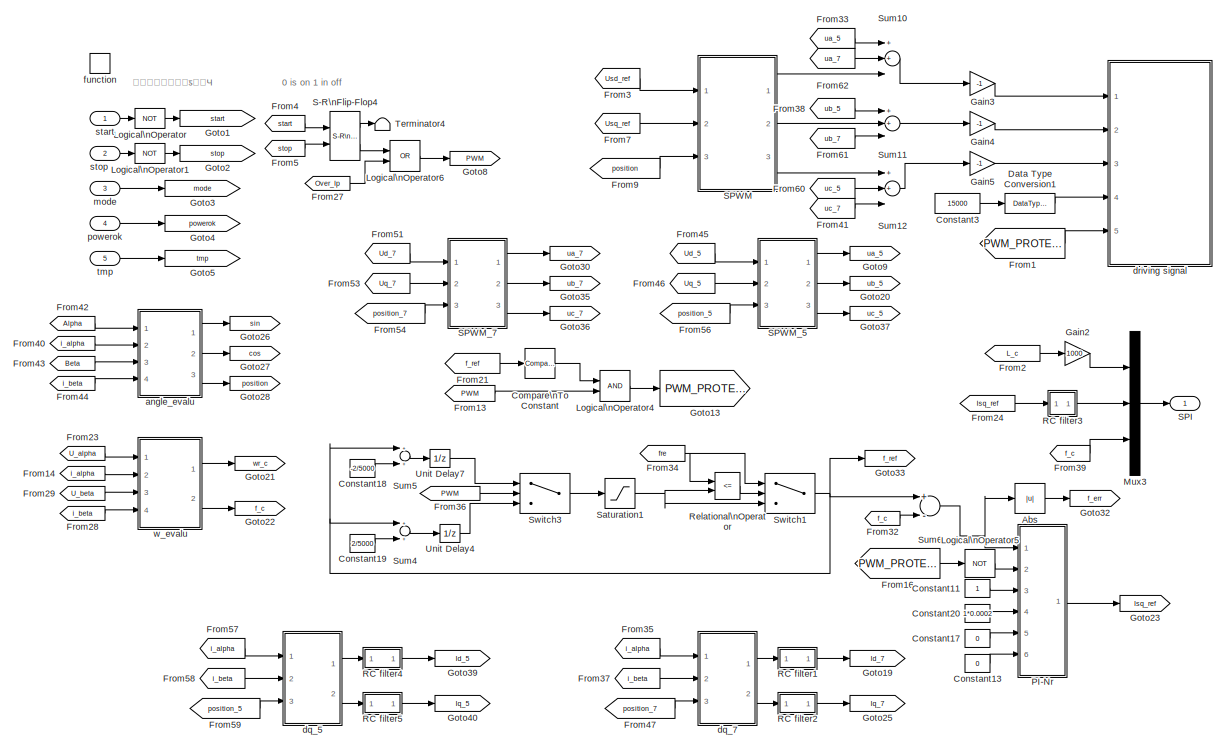
[diagram: Subsystem1 - part 1/2, full width, top band]
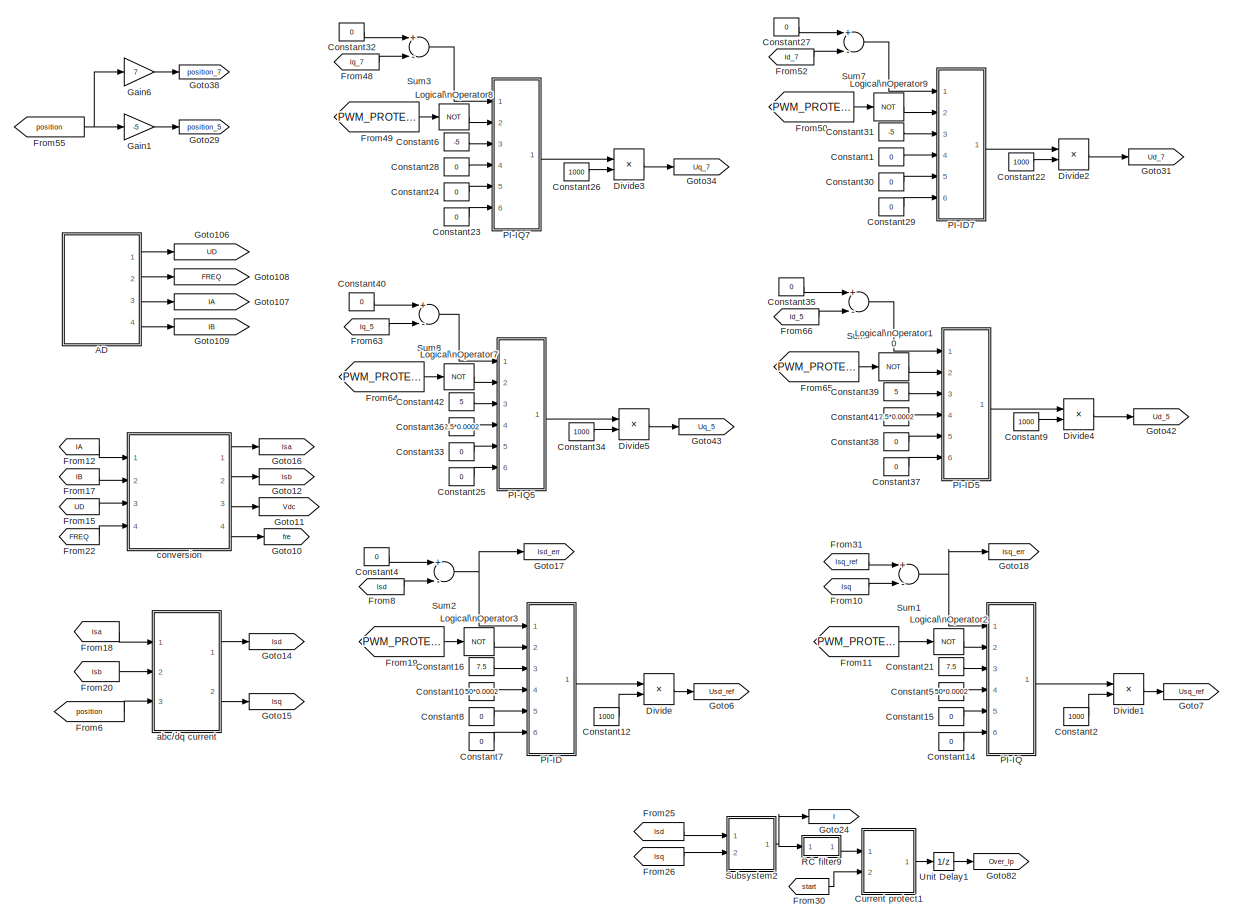
[diagram: Subsystem1 - part 2/2, full width, bottom band]
BLOCK [SubSystem] Subsystem1
  Ports = [5, 1, 0, 1]
  RequestExecContextInheritance = off
  SID = 22796
BLOCK [SubSystem] Subsystem1/AD
  Ports = [0, 4]
  RequestExecContextInheritance = off
  SID = 28198
BLOCK [Outport] Subsystem1/AD/FREQ
  IconDisplay = Port number
  Port = 2
  SID = 28229
BLOCK [Goto] Subsystem1/AD/Goto7
  GotoTag = UOUT
  SID = 28199
BLOCK [Goto] Subsystem1/AD/Goto9
  GotoTag = UOUT1
  SID = 28200
BLOCK [Outport] Subsystem1/AD/IA
  IconDisplay = Port number
  Port = 3
  SID = 28230
BLOCK [Outport] Subsystem1/AD/IB
  IconDisplay = Port number
  Port = 4
  SID = 28231
BLOCK [SubSystem] Subsystem1/AD/Start Conversion
  Ports = []
  Priority = 1
  RequestExecContextInheritance = off
  SID = 28201
BLOCK [Constant] Subsystem1/AD/Start Conversion/Constant
  OutDataTypeStr = boolean
  SID = 28202
  Value = 0
BLOCK [Reference] Subsystem1/AD/Start Conversion/Digital Output1  REF=c2833xlib/Digital Output
  GPIO_BIT0_Toggle = off
  GPIO_BIT1_Toggle = off
  GPIO_BIT2_Toggle = off
  GPIO_BIT3_Toggle = off
  GPIO_BIT4_Toggle = off
  GPIO_BIT5_Toggle = off
  GPIO_BIT6_Toggle = off
  GPIO_BIT7_Toggle = off
  GPIO_Bit0 = off
  GPIO_Bit1 = on
  GPIO_Bit2 = off
  GPIO_Bit3 = off
  GPIO_Bit4 = off
  GPIO_Bit5 = off
  GPIO_Bit6 = off
  GPIO_Bit7 = off
  GPIO_Number = GPIO48~GPIO55
  MultiThreadCoSim = auto
  Ports = [1]
  Priority = 1
  SID = 28203
  SourceBlock = c2833xlib/Digital Output
  SourceProductBaseCode = TIC2000
  SourceProductName = Embedded Coder Support Package for Texas Instruments C2000 Processors
  SourceType = C2833x GPIO Digital Output
  UserData = DataTag6
  UserDataPersistent = on
BLOCK [SubSystem] Subsystem1/AD/Stop Conversion
  Ports = []
  Priority = 3
  RequestExecContextInheritance = off
  SID = 28204
BLOCK [Constant] Subsystem1/AD/Stop Conversion/Constant12
  OutDataTypeStr = boolean
  SID = 28205
BLOCK [Reference] Subsystem1/AD/Stop Conversion/Digital Output13  REF=c2833xlib/Digital Output
  GPIO_BIT0_Toggle = off
  GPIO_BIT1_Toggle = off
  GPIO_BIT2_Toggle = off
  GPIO_BIT3_Toggle = off
  GPIO_BIT4_Toggle = off
  GPIO_BIT5_Toggle = off
  GPIO_BIT6_Toggle = off
  GPIO_BIT7_Toggle = off
  GPIO_Bit0 = off
  GPIO_Bit1 = on
  GPIO_Bit2 = off
  GPIO_Bit3 = off
  GPIO_Bit4 = off
  GPIO_Bit5 = off
  GPIO_Bit6 = off
  GPIO_Bit7 = off
  GPIO_Number = GPIO48~GPIO55
  MultiThreadCoSim = auto
  Ports = [1]
  Priority = 8
  SID = 28206
  SourceBlock = c2833xlib/Digital Output
  SourceProductBaseCode = TIC2000
  SourceProductName = Embedded Coder Support Package for Texas Instruments C2000 Processors
  SourceType = C2833x GPIO Digital Output
  UserData = DataTag7
  UserDataPersistent = on
BLOCK [Outport] Subsystem1/AD/UD
  IconDisplay = Port number
  SID = 28228
BLOCK [SubSystem] Subsystem1/AD/read AD
  Ports = [0, 6]
  RequestExecContextInheritance = off
  SID = 28207
BLOCK [Reference] Subsystem1/AD/read AD/CH0  REF=idelinklib_common/Memory Copy
  CCAfterWrite = /* Custom Code After Write*/
  CCBeforeWrite = /* Custom Code Before Write*/
  MultiThreadCoSim = auto
  Ports = []
  SID = 28208
  SourceBlock = idelinklib_common/Memory Copy
  SourceType = Memory Copy
  copyFrom = Specified address
  copyFromAddress = hex2dec('00200000')
  copyFromAddressSource = Specify via dialog
  copyFromSrcCode = myVariableSrc
  copyTo = Specified source code symbol
  copyToAddress = hex2dec('00002000')
  copyToAddressSource = Specify via dialog
  copyToSrcCode = p1
  dataDimensionFrom = 1
  dataTypeFrom = int16
  dataTypeTo = int16
  emitCCAfterWrite = off
  emitCCBeforeWrite = off
  enableBlockingMode = off
  initValue = 1
  initValueSrc = Specify constant value
  initValueSrcCode = myInitValueVariable
  isRealtimeEnabled = off
  maskOperator = bitwise AND
  offsetFrom = 0
  offsetFromSrc = Specify via dialog
  offsetTo = 0
  offsetToSrc = Specify via dialog
  sampleTime = inf
  strideFrom = 1
  strideTo = 1
  termValue = 1
  useAsMask = off
  useDMACopy = off
  useInitValue = off
  useOffsetFrom = off
  useOffsetTo = off
  useTermValue = off
BLOCK [Reference] Subsystem1/AD/read AD/CH1  REF=idelinklib_common/Memory Copy
  CCAfterWrite = /* Custom Code After Write*/
  CCBeforeWrite = /* Custom Code Before Write*/
  MultiThreadCoSim = auto
  Ports = []
  SID = 28209
  SourceBlock = idelinklib_common/Memory Copy
  SourceType = Memory Copy
  copyFrom = Specified address
  copyFromAddress = hex2dec('00200000')
  copyFromAddressSource = Specify via dialog
  copyFromSrcCode = myVariableSrc
  copyTo = Specified source code symbol
  copyToAddress = hex2dec('00002000')
  copyToAddressSource = Specify via dialog
  copyToSrcCode = p2
  dataDimensionFrom = 1
  dataTypeFrom = int16
  dataTypeTo = int16
  emitCCAfterWrite = off
  emitCCBeforeWrite = off
  enableBlockingMode = off
  initValue = 1
  initValueSrc = Specify constant value
  initValueSrcCode = myInitValueVariable
  isRealtimeEnabled = off
  maskOperator = bitwise AND
  offsetFrom = 0
  offsetFromSrc = Specify via dialog
  offsetTo = 0
  offsetToSrc = Specify via dialog
  sampleTime = inf
  strideFrom = 1
  strideTo = 1
  termValue = 1
  useAsMask = off
  useDMACopy = off
  useInitValue = off
  useOffsetFrom = off
  useOffsetTo = off
  useTermValue = off
BLOCK [Reference] Subsystem1/AD/read AD/CH2  REF=idelinklib_common/Memory Copy
  CCAfterWrite = /* Custom Code After Write*/
  CCBeforeWrite = /* Custom Code Before Write*/
  MultiThreadCoSim = auto
  Ports = []
  SID = 28210
  SourceBlock = idelinklib_common/Memory Copy
  SourceType = Memory Copy
  copyFrom = Specified address
  copyFromAddress = hex2dec('00200000')
  copyFromAddressSource = Specify via dialog
  copyFromSrcCode = myVariableSrc
  copyTo = Specified source code symbol
  copyToAddress = hex2dec('00002000')
  copyToAddressSource = Specify via dialog
  copyToSrcCode = p3
  dataDimensionFrom = 1
  dataTypeFrom = int16
  dataTypeTo = int16
  emitCCAfterWrite = off
  emitCCBeforeWrite = off
  enableBlockingMode = off
  initValue = 1
  initValueSrc = Specify constant value
  initValueSrcCode = myInitValueVariable
  isRealtimeEnabled = off
  maskOperator = bitwise AND
  offsetFrom = 0
  offsetFromSrc = Specify via dialog
  offsetTo = 0
  offsetToSrc = Specify via dialog
  sampleTime = inf
  strideFrom = 1
  strideTo = 1
  termValue = 1
  useAsMask = off
  useDMACopy = off
  useInitValue = off
  useOffsetFrom = off
  useOffsetTo = off
  useTermValue = off
BLOCK [Reference] Subsystem1/AD/read AD/CH3  REF=idelinklib_common/Memory Copy
  CCAfterWrite = /* Custom Code After Write*/
  CCBeforeWrite = /* Custom Code Before Write*/
  MultiThreadCoSim = auto
  Ports = []
  SID = 28211
  SourceBlock = idelinklib_common/Memory Copy
  SourceType = Memory Copy
  copyFrom = Specified address
  copyFromAddress = hex2dec('00200000')
  copyFromAddressSource = Specify via dialog
  copyFromSrcCode = myVariableSrc
  copyTo = Specified source code symbol
  copyToAddress = hex2dec('00002000')
  copyToAddressSource = Specify via dialog
  copyToSrcCode = p4
  dataDimensionFrom = 1
  dataTypeFrom = int16
  dataTypeTo = int16
  emitCCAfterWrite = off
  emitCCBeforeWrite = off
  enableBlockingMode = off
  initValue = 1
  initValueSrc = Specify constant value
  initValueSrcCode = myInitValueVariable
  isRealtimeEnabled = off
  maskOperator = bitwise AND
  offsetFrom = 0
  offsetFromSrc = Specify via dialog
  offsetTo = 0
  offsetToSrc = Specify via dialog
  sampleTime = inf
  strideFrom = 1
  strideTo = 1
  termValue = 1
  useAsMask = off
  useDMACopy = off
  useInitValue = off
  useOffsetFrom = off
  useOffsetTo = off
  useTermValue = off
BLOCK [Reference] Subsystem1/AD/read AD/CH4  REF=idelinklib_common/Memory Copy
  CCAfterWrite = /* Custom Code After Write*/
  CCBeforeWrite = /* Custom Code Before Write*/
  MultiThreadCoSim = auto
  Ports = []
  SID = 28212
  SourceBlock = idelinklib_common/Memory Copy
  SourceType = Memory Copy
  copyFrom = Specified address
  copyFromAddress = hex2dec('00200000')
  copyFromAddressSource = Specify via dialog
  copyFromSrcCode = myVariableSrc
  copyTo = Specified source code symbol
  copyToAddress = hex2dec('00002000')
  copyToAddressSource = Specify via dialog
  copyToSrcCode = p5
  dataDimensionFrom = 1
  dataTypeFrom = int16
  dataTypeTo = int16
  emitCCAfterWrite = off
  emitCCBeforeWrite = off
  enableBlockingMode = off
  initValue = 1
  initValueSrc = Specify constant value
  initValueSrcCode = myInitValueVariable
  isRealtimeEnabled = off
  maskOperator = bitwise AND
  offsetFrom = 0
  offsetFromSrc = Specify via dialog
  offsetTo = 0
  offsetToSrc = Specify via dialog
  sampleTime = inf
  strideFrom = 1
  strideTo = 1
  termValue = 1
  useAsMask = off
  useDMACopy = off
  useInitValue = off
  useOffsetFrom = off
  useOffsetTo = off
  useTermValue = off
BLOCK [Reference] Subsystem1/AD/read AD/CH5  REF=idelinklib_common/Memory Copy
  CCAfterWrite = /* Custom Code After Write*/
  CCBeforeWrite = /* Custom Code Before Write*/
  MultiThreadCoSim = auto
  Ports = []
  SID = 28213
  SourceBlock = idelinklib_common/Memory Copy
  SourceType = Memory Copy
  copyFrom = Specified address
  copyFromAddress = hex2dec('00200000')
  copyFromAddressSource = Specify via dialog
  copyFromSrcCode = myVariableSrc
  copyTo = Specified source code symbol
  copyToAddress = hex2dec('00002000')
  copyToAddressSource = Specify via dialog
  copyToSrcCode = p6
  dataDimensionFrom = 1
  dataTypeFrom = int16
  dataTypeTo = int16
  emitCCAfterWrite = off
  emitCCBeforeWrite = off
  enableBlockingMode = off
  initValue = 1
  initValueSrc = Specify constant value
  initValueSrcCode = myInitValueVariable
  isRealtimeEnabled = off
  maskOperator = bitwise AND
  offsetFrom = 0
  offsetFromSrc = Specify via dialog
  offsetTo = 0
  offsetToSrc = Specify via dialog
  sampleTime = inf
  strideFrom = 1
  strideTo = 1
  termValue = 1
  useAsMask = off
  useDMACopy = off
  useInitValue = off
  useOffsetFrom = off
  useOffsetTo = off
  useTermValue = off
BLOCK [Reference] Subsystem1/AD/read AD/CH6  REF=idelinklib_common/Memory Copy
  CCAfterWrite = /* Custom Code After Write*/
  CCBeforeWrite = /* Custom Code Before Write*/
  MultiThreadCoSim = auto
  Ports = []
  SID = 28214
  SourceBlock = idelinklib_common/Memory Copy
  SourceType = Memory Copy
  copyFrom = Specified address
  copyFromAddress = hex2dec('00200000')
  copyFromAddressSource = Specify via dialog
  copyFromSrcCode = myVariableSrc
  copyTo = Specified source code symbol
  copyToAddress = hex2dec('00002000')
  copyToAddressSource = Specify via dialog
  copyToSrcCode = p7
  dataDimensionFrom = 1
  dataTypeFrom = int16
  dataTypeTo = int16
  emitCCAfterWrite = off
  emitCCBeforeWrite = off
  enableBlockingMode = off
  initValue = 1
  initValueSrc = Specify constant value
  initValueSrcCode = myInitValueVariable
  isRealtimeEnabled = off
  maskOperator = bitwise AND
  offsetFrom = 0
  offsetFromSrc = Specify via dialog
  offsetTo = 0
  offsetToSrc = Specify via dialog
  sampleTime = inf
  strideFrom = 1
  strideTo = 1
  termValue = 1
  useAsMask = off
  useDMACopy = off
  useInitValue = off
  useOffsetFrom = off
  useOffsetTo = off
  useTermValue = off
BLOCK [Reference] Subsystem1/AD/read AD/CH7  REF=idelinklib_common/Memory Copy
  CCAfterWrite = /* Custom Code After Write*/
  CCBeforeWrite = /* Custom Code Before Write*/
  MultiThreadCoSim = auto
  Ports = []
  SID = 28215
  SourceBlock = idelinklib_common/Memory Copy
  SourceType = Memory Copy
  copyFrom = Specified address
  copyFromAddress = hex2dec('00200000')
  copyFromAddressSource = Specify via dialog
  copyFromSrcCode = myVariableSrc
  copyTo = Specified source code symbol
  copyToAddress = hex2dec('00002000')
  copyToAddressSource = Specify via dialog
  copyToSrcCode = p8
  dataDimensionFrom = 1
  dataTypeFrom = int16
  dataTypeTo = int16
  emitCCAfterWrite = off
  emitCCBeforeWrite = off
  enableBlockingMode = off
  initValue = 1
  initValueSrc = Specify constant value
  initValueSrcCode = myInitValueVariable
  isRealtimeEnabled = off
  maskOperator = bitwise AND
  offsetFrom = 0
  offsetFromSrc = Specify via dialog
  offsetTo = 0
  offsetToSrc = Specify via dialog
  sampleTime = inf
  strideFrom = 1
  strideTo = 1
  termValue = 1
  useAsMask = off
  useDMACopy = off
  useInitValue = off
  useOffsetFrom = off
  useOffsetTo = off
  useTermValue = off
BLOCK [Outport] Subsystem1/AD/read AD/FREQ
  IconDisplay = Port number
  Port = 4
  SID = 28225
BLOCK [Outport] Subsystem1/AD/read AD/IA
  IconDisplay = Port number
  Port = 5
  SID = 28226
BLOCK [Outport] Subsystem1/AD/read AD/IB
  IconDisplay = Port number
  Port = 6
  SID = 28227
BLOCK [Outport] Subsystem1/AD/read AD/UD
  IconDisplay = Port number
  SID = 28222
BLOCK [Outport] Subsystem1/AD/read AD/UOUT
  IconDisplay = Port number
  Port = 2
  SID = 28223
BLOCK [Outport] Subsystem1/AD/read AD/UOUT1
  IconDisplay = Port number
  Port = 3
  SID = 28224
BLOCK [Reference] Subsystem1/AD/read AD/p1  REF=idelinklib_common/Memory Copy
  CCAfterWrite = /* Custom Code After Write*/
  CCBeforeWrite = /* Custom Code Before Write*/
  MultiThreadCoSim = auto
  Ports = [0, 1]
  SID = 28216
  SourceBlock = idelinklib_common/Memory Copy
  SourceType = Memory Copy
  copyFrom = Specified source code symbol
  copyFromAddress = hex2dec('00200000')
  copyFromAddressSource = Specify via dialog
  copyFromSrcCode = p1
  copyTo = Output port
  copyToAddress = hex2dec('00002000')
  copyToAddressSource = Specify via dialog
  copyToSrcCode = p1
  dataDimensionFrom = 1
  dataTypeFrom = int16
  dataTypeTo = int16
  emitCCAfterWrite = off
  emitCCBeforeWrite = off
  enableBlockingMode = off
  initValue = 1
  initValueSrc = Specify constant value
  initValueSrcCode = myInitValueVariable
  isRealtimeEnabled = off
  maskOperator = bitwise AND
  offsetFrom = 0
  offsetFromSrc = Specify via dialog
  offsetTo = 0
  offsetToSrc = Specify via dialog
  sampleTime = inf
  strideFrom = 1
  strideTo = 1
  termValue = 1
  useAsMask = off
  useDMACopy = off
  useInitValue = off
  useOffsetFrom = off
  useOffsetTo = off
  useTermValue = off
BLOCK [Reference] Subsystem1/AD/read AD/p2  REF=idelinklib_common/Memory Copy
  CCAfterWrite = /* Custom Code After Write*/
  CCBeforeWrite = /* Custom Code Before Write*/
  MultiThreadCoSim = auto
  Ports = [0, 1]
  SID = 28217
  SourceBlock = idelinklib_common/Memory Copy
  SourceType = Memory Copy
  copyFrom = Specified source code symbol
  copyFromAddress = hex2dec('00200000')
  copyFromAddressSource = Specify via dialog
  copyFromSrcCode = p2
  copyTo = Output port
  copyToAddress = hex2dec('00002000')
  copyToAddressSource = Specify via dialog
  copyToSrcCode = p1
  dataDimensionFrom = 1
  dataTypeFrom = int16
  dataTypeTo = int16
  emitCCAfterWrite = off
  emitCCBeforeWrite = off
  enableBlockingMode = off
  initValue = 1
  initValueSrc = Specify constant value
  initValueSrcCode = myInitValueVariable
  isRealtimeEnabled = off
  maskOperator = bitwise AND
  offsetFrom = 0
  offsetFromSrc = Specify via dialog
  offsetTo = 0
  offsetToSrc = Specify via dialog
  sampleTime = inf
  strideFrom = 1
  strideTo = 1
  termValue = 1
  useAsMask = off
  useDMACopy = off
  useInitValue = off
  useOffsetFrom = off
  useOffsetTo = off
  useTermValue = off
BLOCK [Reference] Subsystem1/AD/read AD/p3  REF=idelinklib_common/Memory Copy
  CCAfterWrite = /* Custom Code After Write*/
  CCBeforeWrite = /* Custom Code Before Write*/
  MultiThreadCoSim = auto
  Ports = [0, 1]
  SID = 28218
  SourceBlock = idelinklib_common/Memory Copy
  SourceType = Memory Copy
  copyFrom = Specified source code symbol
  copyFromAddress = hex2dec('00200000')
  copyFromAddressSource = Specify via dialog
  copyFromSrcCode = p3
  copyTo = Output port
  copyToAddress = hex2dec('00002000')
  copyToAddressSource = Specify via dialog
  copyToSrcCode = p1
  dataDimensionFrom = 1
  dataTypeFrom = int16
  dataTypeTo = int16
  emitCCAfterWrite = off
  emitCCBeforeWrite = off
  enableBlockingMode = off
  initValue = 1
  initValueSrc = Specify constant value
  initValueSrcCode = myInitValueVariable
  isRealtimeEnabled = off
  maskOperator = bitwise AND
  offsetFrom = 0
  offsetFromSrc = Specify via dialog
  offsetTo = 0
  offsetToSrc = Specify via dialog
  sampleTime = inf
  strideFrom = 1
  strideTo = 1
  termValue = 1
  useAsMask = off
  useDMACopy = off
  useInitValue = off
  useOffsetFrom = off
  useOffsetTo = off
  useTermValue = off
BLOCK [Reference] Subsystem1/AD/read AD/p5  REF=idelinklib_common/Memory Copy
  CCAfterWrite = /* Custom Code After Write*/
  CCBeforeWrite = /* Custom Code Before Write*/
  MultiThreadCoSim = auto
  Ports = [0, 1]
  SID = 28219
  SourceBlock = idelinklib_common/Memory Copy
  SourceType = Memory Copy
  copyFrom = Specified source code symbol
  copyFromAddress = hex2dec('00200000')
  copyFromAddressSource = Specify via dialog
  copyFromSrcCode = p5
  copyTo = Output port
  copyToAddress = hex2dec('00002000')
  copyToAddressSource = Specify via dialog
  copyToSrcCode = p1
  dataDimensionFrom = 1
  dataTypeFrom = int16
  dataTypeTo = int16
  emitCCAfterWrite = off
  emitCCBeforeWrite = off
  enableBlockingMode = off
  initValue = 1
  initValueSrc = Specify constant value
  initValueSrcCode = myInitValueVariable
  isRealtimeEnabled = off
  maskOperator = bitwise AND
  offsetFrom = 0
  offsetFromSrc = Specify via dialog
  offsetTo = 0
  offsetToSrc = Specify via dialog
  sampleTime = inf
  strideFrom = 1
  strideTo = 1
  termValue = 1
  useAsMask = off
  useDMACopy = off
  useInitValue = off
  useOffsetFrom = off
  useOffsetTo = off
  useTermValue = off
BLOCK [Reference] Subsystem1/AD/read AD/p6  REF=idelinklib_common/Memory Copy
  CCAfterWrite = /* Custom Code After Write*/
  CCBeforeWrite = /* Custom Code Before Write*/
  MultiThreadCoSim = auto
  Ports = [0, 1]
  SID = 28220
  SourceBlock = idelinklib_common/Memory Copy
  SourceType = Memory Copy
  copyFrom = Specified source code symbol
  copyFromAddress = hex2dec('00200000')
  copyFromAddressSource = Specify via dialog
  copyFromSrcCode = p6
  copyTo = Output port
  copyToAddress = hex2dec('00002000')
  copyToAddressSource = Specify via dialog
  copyToSrcCode = p1
  dataDimensionFrom = 1
  dataTypeFrom = int16
  dataTypeTo = int16
  emitCCAfterWrite = off
  emitCCBeforeWrite = off
  enableBlockingMode = off
  initValue = 1
  initValueSrc = Specify constant value
  initValueSrcCode = myInitValueVariable
  isRealtimeEnabled = off
  maskOperator = bitwise AND
  offsetFrom = 0
  offsetFromSrc = Specify via dialog
  offsetTo = 0
  offsetToSrc = Specify via dialog
  sampleTime = inf
  strideFrom = 1
  strideTo = 1
  termValue = 1
  useAsMask = off
  useDMACopy = off
  useInitValue = off
  useOffsetFrom = off
  useOffsetTo = off
  useTermValue = off
BLOCK [Reference] Subsystem1/AD/read AD/p7  REF=idelinklib_common/Memory Copy
  CCAfterWrite = /* Custom Code After Write*/
  CCBeforeWrite = /* Custom Code Before Write*/
  MultiThreadCoSim = auto
  Ports = [0, 1]
  SID = 28221
  SourceBlock = idelinklib_common/Memory Copy
  SourceType = Memory Copy
  copyFrom = Specified source code symbol
  copyFromAddress = hex2dec('00200000')
  copyFromAddressSource = Specify via dialog
  copyFromSrcCode = p7
  copyTo = Output port
  copyToAddress = hex2dec('00002000')
  copyToAddressSource = Specify via dialog
  copyToSrcCode = p1
  dataDimensionFrom = 1
  dataTypeFrom = int16
  dataTypeTo = int16
  emitCCAfterWrite = off
  emitCCBeforeWrite = off
  enableBlockingMode = off
  initValue = 1
  initValueSrc = Specify constant value
  initValueSrcCode = myInitValueVariable
  isRealtimeEnabled = off
  maskOperator = bitwise AND
  offsetFrom = 0
  offsetFromSrc = Specify via dialog
  offsetTo = 0
  offsetToSrc = Specify via dialog
  sampleTime = inf
  strideFrom = 1
  strideTo = 1
  termValue = 1
  useAsMask = off
  useDMACopy = off
  useInitValue = off
  useOffsetFrom = off
  useOffsetTo = off
  useTermValue = off
BLOCK [Abs] Subsystem1/Abs
  SID = 33661
  SaturateOnIntegerOverflow = off
BLOCK [Reference] Subsystem1/Compare\nTo Constant  REF=simulink/Logic and Bit\nOperations/Compare\nTo Constant
  OutDataTypeStr = boolean
  Ports = [1, 1]
  SID = 27288
  SourceBlock = simulink/Logic and Bit\nOperations/Compare\nTo Constant
  SourceProductBaseCode = SL
  SourceProductName = Simulink
  SourceType = Compare To Constant
  ZeroCross = on
  const = 0.1
  relop = <=
BLOCK [Constant] Subsystem1/Constant1
  OutDataTypeStr = double
  SID = 33835
  Value = 0
BLOCK [Constant] Subsystem1/Constant10
  OutDataTypeStr = double
  SID = 28100
  Value = 50*0.0002
BLOCK [Constant] Subsystem1/Constant11
  OutDataTypeStr = double
  SID = 31231
BLOCK [Constant] Subsystem1/Constant12
  OutDataTypeStr = double
  SID = 28102
  Value = 1000
BLOCK [Constant] Subsystem1/Constant13
  OutDataTypeStr = double
  SID = 31232
  Value = 0
BLOCK [Constant] Subsystem1/Constant14
  OutDataTypeStr = double
  SID = 28399
  Value = 0
BLOCK [Constant] Subsystem1/Constant15
  OutDataTypeStr = double
  SID = 28400
  Value = 0
BLOCK [Constant] Subsystem1/Constant16
  OutDataTypeStr = double
  SID = 33473
  Value = 7.5
BLOCK [Constant] Subsystem1/Constant17
  OutDataTypeStr = double
  SID = 31233
  Value = 0
BLOCK [Constant] Subsystem1/Constant18
  OutDataTypeStr = double
  SID = 31306
  Value = -2/5000
BLOCK [Constant] Subsystem1/Constant19
  OutDataTypeStr = double
  SID = 31307
  Value = 2/5000
BLOCK [Constant] Subsystem1/Constant2
  OutDataTypeStr = double
  SID = 28394
  Value = 1000
BLOCK [Constant] Subsystem1/Constant20
  OutDataTypeStr = double
  SID = 31234
  Value = 1*0.0002
BLOCK [Constant] Subsystem1/Constant21
  OutDataTypeStr = double
  SID = 33472
  Value = 7.5
BLOCK [Constant] Subsystem1/Constant22
  OutDataTypeStr = double
  SID = 33251
  Value = 1000
BLOCK [Constant] Subsystem1/Constant23
  OutDataTypeStr = double
  SID = 33252
  Value = 0
BLOCK [Constant] Subsystem1/Constant24
  OutDataTypeStr = double
  SID = 33253
  Value = 0
BLOCK [Constant] Subsystem1/Constant25
  OutDataTypeStr = double
  SID = 33916
  Value = 0
BLOCK [Constant] Subsystem1/Constant26
  OutDataTypeStr = double
  SID = 33255
  Value = 1000
BLOCK [Constant] Subsystem1/Constant27
  OutDataTypeStr = double
  SID = 33256
  Value = 0
BLOCK [Constant] Subsystem1/Constant28
  OutDataTypeStr = double
  SID = 33257
  Value = 0
BLOCK [Constant] Subsystem1/Constant29
  OutDataTypeStr = double
  SID = 33258
  Value = 0
BLOCK [Constant] Subsystem1/Constant3
  OutDataTypeStr = int16
  SID = 23219
  Value = 15000
BLOCK [Constant] Subsystem1/Constant30
  OutDataTypeStr = double
  SID = 33259
  Value = 0
BLOCK [Constant] Subsystem1/Constant31
  OutDataTypeStr = double
  SID = 33260
  Value = -5
BLOCK [Constant] Subsystem1/Constant32
  OutDataTypeStr = double
  SID = 33354
  Value = 0
BLOCK [Constant] Subsystem1/Constant33
  OutDataTypeStr = double
  SID = 33917
  Value = 0
BLOCK [Constant] Subsystem1/Constant34
  OutDataTypeStr = double
  SID = 33918
  Value = 1000
BLOCK [Constant] Subsystem1/Constant35
  OutDataTypeStr = double
  SID = 33919
  Value = 0
BLOCK [Constant] Subsystem1/Constant36
  OutDataTypeStr = double
  SID = 33920
  Value = 2.5*0.0002
BLOCK [Constant] Subsystem1/Constant37
  OutDataTypeStr = double
  SID = 33921
  Value = 0
BLOCK [Constant] Subsystem1/Constant38
  OutDataTypeStr = double
  SID = 33922
  Value = 0
BLOCK [Constant] Subsystem1/Constant39
  OutDataTypeStr = double
  SID = 33923
  Value = 5
BLOCK [Constant] Subsystem1/Constant4
  OutDataTypeStr = double
  SID = 31223
  Value = 0
BLOCK [Constant] Subsystem1/Constant40
  OutDataTypeStr = double
  SID = 33924
  Value = 0
BLOCK [Constant] Subsystem1/Constant41
  OutDataTypeStr = double
  SID = 33925
  Value = 2.5*0.0002
BLOCK [Constant] Subsystem1/Constant42
  OutDataTypeStr = double
  SID = 33926
  Value = 5
BLOCK [Constant] Subsystem1/Constant5
  OutDataTypeStr = double
  SID = 28398
  Value = 50*0.0002
BLOCK [Constant] Subsystem1/Constant6
  OutDataTypeStr = double
  SID = 33471
  Value = -5
BLOCK [Constant] Subsystem1/Constant7
  OutDataTypeStr = double
  SID = 28108
  Value = 0
BLOCK [Constant] Subsystem1/Constant8
  OutDataTypeStr = double
  SID = 28109
  Value = 0
BLOCK [Constant] Subsystem1/Constant9
  OutDataTypeStr = double
  SID = 33915
  Value = 1000
BLOCK [SubSystem] Subsystem1/Current protect1
  Ports = [2, 1]
  RequestExecContextInheritance = off
  SID = 30030
BLOCK [Constant] Subsystem1/Current protect1/Constant25
  OutDataTypeStr = boolean
  SID = 30033
  Value = 0
BLOCK [Constant] Subsystem1/Current protect1/Constant26
  OutDataTypeStr = boolean
  SID = 30034
BLOCK [Reference] Subsystem1/Current protect1/S-R\nFlip-Flop1  REF=simulink_extras/Flip Flops/S-R\nFlip-Flop
  Ports = [2, 2]
  SID = 30035
  SourceBlock = simulink_extras/Flip Flops/S-R\nFlip-Flop
  SourceProductBaseCode = SL
  SourceProductName = Simulink
  SourceType = SRFlipFlop
  initial_condition = 0
BLOCK [Outport] Subsystem1/Current protect1/Software_I
  IconDisplay = Port number
  SID = 30038
BLOCK [Switch] Subsystem1/Current protect1/Switch9
  Criteria = u2 > Threshold
  SID = 30036
  Threshold = 120
BLOCK [Terminator] Subsystem1/Current protect1/Terminator
  SID = 30037
BLOCK [Inport] Subsystem1/Current protect1/igdin
  IconDisplay = Port number
  SID = 30031
BLOCK [Inport] Subsystem1/Current protect1/reset
  IconDisplay = Port number
  Port = 2
  SID = 30032
BLOCK [DataTypeConversion] Subsystem1/Data Type Conversion1
  OutDataTypeStr = uint16
  RndMeth = Floor
  SID = 23220
  SaturateOnIntegerOverflow = off
BLOCK [Product] Subsystem1/Divide
  InputSameDT = off
  Inputs = */
  OutDataTypeStr = Inherit: Inherit via internal rule
  Ports = [2, 1]
  RndMeth = Floor
  SID = 28392
  SaturateOnIntegerOverflow = off
BLOCK [Product] Subsystem1/Divide1
  InputSameDT = off
  Inputs = */
  OutDataTypeStr = Inherit: Inherit via internal rule
  Ports = [2, 1]
  RndMeth = Floor
  SID = 28395
  SaturateOnIntegerOverflow = off
BLOCK [Product] Subsystem1/Divide2
  InputSameDT = off
  Inputs = */
  OutDataTypeStr = Inherit: Inherit via internal rule
  Ports = [2, 1]
  RndMeth = Floor
  SID = 33261
  SaturateOnIntegerOverflow = off
BLOCK [Product] Subsystem1/Divide3
  InputSameDT = off
  Inputs = */
  OutDataTypeStr = Inherit: Inherit via internal rule
  Ports = [2, 1]
  RndMeth = Floor
  SID = 33262
  SaturateOnIntegerOverflow = off
BLOCK [Product] Subsystem1/Divide4
  InputSameDT = off
  Inputs = */
  OutDataTypeStr = Inherit: Inherit via internal rule
  Ports = [2, 1]
  RndMeth = Floor
  SID = 33927
  SaturateOnIntegerOverflow = off
BLOCK [Product] Subsystem1/Divide5
  InputSameDT = off
  Inputs = */
  OutDataTypeStr = Inherit: Inherit via internal rule
  Ports = [2, 1]
  RndMeth = Floor
  SID = 33928
  SaturateOnIntegerOverflow = off
BLOCK [From] Subsystem1/From1
  GotoTag = PWM_PROTECT
  SID = 24039
  TagVisibility = global
BLOCK [From] Subsystem1/From10
  GotoTag = Isq
  SID = 28114
  TagVisibility = global
BLOCK [From] Subsystem1/From11
  GotoTag = PWM_PROTECT
  SID = 28115
  TagVisibility = global
BLOCK [From] Subsystem1/From12
  GotoTag = IA
  SID = 28232
  TagVisibility = global
BLOCK [From] Subsystem1/From13
  GotoTag = PWM
  SID = 27290
  TagVisibility = global
BLOCK [From] Subsystem1/From14
  GotoTag = i_alpha
  SID = 30175
  TagVisibility = global
BLOCK [From] Subsystem1/From15
  GotoTag = UD
  SID = 28233
  TagVisibility = global
BLOCK [From] Subsystem1/From16
  GotoTag = PWM_PROTECT
  SID = 31235
  TagVisibility = global
BLOCK [From] Subsystem1/From17
  GotoTag = IB
  SID = 28234
  TagVisibility = global
BLOCK [From] Subsystem1/From18
  GotoTag = Isa
  SID = 28311
  TagVisibility = global
BLOCK [From] Subsystem1/From19
  GotoTag = PWM_PROTECT
  SID = 28112
  TagVisibility = global
BLOCK [From] Subsystem1/From2
  GotoTag = L_c
  SID = 31195
BLOCK [From] Subsystem1/From20
  GotoTag = Isb
  SID = 28312
  TagVisibility = global
BLOCK [From] Subsystem1/From21
  GotoTag = f_ref
  SID = 28563
  TagVisibility = global
BLOCK [From] Subsystem1/From22
  GotoTag = FREQ
  SID = 29684
  TagVisibility = global
BLOCK [From] Subsystem1/From23
  GotoTag = U_alpha
  SID = 30176
  TagVisibility = global
BLOCK [From] Subsystem1/From24
  GotoTag = Isq_ref
  SID = 32341
  TagVisibility = global
BLOCK [From] Subsystem1/From25
  GotoTag = Isd
  SID = 30039
  TagVisibility = global
BLOCK [From] Subsystem1/From26
  GotoTag = Isq
  SID = 30040
  TagVisibility = global
BLOCK [From] Subsystem1/From27
  GotoTag = Over_Ip
  SID = 30061
  TagVisibility = global
BLOCK [From] Subsystem1/From28
  GotoTag = i_beta
  SID = 30177
  TagVisibility = global
BLOCK [From] Subsystem1/From29
  GotoTag = U_beta
  SID = 30178
  TagVisibility = global
BLOCK [From] Subsystem1/From3
  GotoTag = Usd_ref
  SID = 26310
  TagVisibility = global
BLOCK [From] Subsystem1/From30
  GotoTag = start
  SID = 30041
  TagVisibility = global
BLOCK [From] Subsystem1/From31
  GotoTag = Isq_ref
  SID = 31281
  TagVisibility = global
BLOCK [From] Subsystem1/From32
  GotoTag = f_c
  SID = 31237
  TagVisibility = global
BLOCK [From] Subsystem1/From33
  GotoTag = ua_5
  SID = 33468
  TagVisibility = global
BLOCK [From] Subsystem1/From34
  GotoTag = fre
  SID = 31318
  TagVisibility = global
BLOCK [From] Subsystem1/From35
  GotoTag = i_alpha
  SID = 33212
  TagVisibility = global
BLOCK [From] Subsystem1/From36
  GotoTag = PWM
  SID = 31309
  TagVisibility = global
BLOCK [From] Subsystem1/From37
  GotoTag = i_beta
  SID = 33213
  TagVisibility = global
BLOCK [From] Subsystem1/From38
  GotoTag = ub_5
  SID = 33469
  TagVisibility = global
BLOCK [From] Subsystem1/From39
  GotoTag = f_c
  SID = 30839
  TagVisibility = global
BLOCK [From] Subsystem1/From4
  GotoTag = start
  SID = 23581
  TagVisibility = global
BLOCK [From] Subsystem1/From40
  GotoTag = i_alpha
  SID = 30851
  TagVisibility = global
BLOCK [From] Subsystem1/From41
  GotoTag = uc_7
  SID = 33470
  TagVisibility = global
BLOCK [From] Subsystem1/From42
  GotoTag = Alpha
  SID = 30852
  TagVisibility = global
BLOCK [From] Subsystem1/From43
  GotoTag = Beta
  SID = 30853
  TagVisibility = global
BLOCK [From] Subsystem1/From44
  GotoTag = i_beta
  SID = 30854
  TagVisibility = global
BLOCK [From] Subsystem1/From45
  GotoTag = Ud_5
  SID = 33838
  TagVisibility = global
BLOCK [From] Subsystem1/From46
  GotoTag = Uq_5
  SID = 33839
  TagVisibility = global
BLOCK [From] Subsystem1/From47
  GotoTag = position_7
  SID = 33214
  TagVisibility = global
BLOCK [From] Subsystem1/From48
  GotoTag = Iq_7
  SID = 33263
  TagVisibility = global
BLOCK [From] Subsystem1/From49
  GotoTag = PWM_PROTECT
  SID = 33264
  TagVisibility = global
BLOCK [From] Subsystem1/From5
  GotoTag = stop
  SID = 23604
  TagVisibility = global
BLOCK [From] Subsystem1/From50
  GotoTag = PWM_PROTECT
  SID = 33265
  TagVisibility = global
BLOCK [From] Subsystem1/From51
  GotoTag = Ud_7
  SID = 33417
  TagVisibility = global
BLOCK [From] Subsystem1/From52
  GotoTag = Id_7
  SID = 33267
  TagVisibility = global
BLOCK [From] Subsystem1/From53
  GotoTag = Uq_7
  SID = 33418
  TagVisibility = global
BLOCK [From] Subsystem1/From54
  GotoTag = position_7
  SID = 33419
  TagVisibility = global
BLOCK [From] Subsystem1/From55
  GotoTag = position
  SID = 33420
  TagVisibility = global
BLOCK [From] Subsystem1/From56
  GotoTag = position_5
  SID = 33840
  TagVisibility = global
BLOCK [From] Subsystem1/From57
  GotoTag = i_alpha
  SID = 33874
  TagVisibility = global
BLOCK [From] Subsystem1/From58
  GotoTag = i_beta
  SID = 33875
  TagVisibility = global
BLOCK [From] Subsystem1/From59
  GotoTag = position_5
  SID = 33876
  TagVisibility = global
BLOCK [From] Subsystem1/From6
  GotoTag = position
  SID = 28510
  TagVisibility = global
BLOCK [From] Subsystem1/From60
  GotoTag = uc_5
  SID = 33912
  TagVisibility = global
BLOCK [From] Subsystem1/From61
  GotoTag = ub_7
  SID = 33913
  TagVisibility = global
BLOCK [From] Subsystem1/From62
  GotoTag = ua_7
  SID = 33914
  TagVisibility = global
BLOCK [From] Subsystem1/From63
  GotoTag = Iq_5
  SID = 33929
  TagVisibility = global
BLOCK [From] Subsystem1/From64
  GotoTag = PWM_PROTECT
  SID = 33930
  TagVisibility = global
BLOCK [From] Subsystem1/From65
  GotoTag = PWM_PROTECT
  SID = 33931
  TagVisibility = global
BLOCK [From] Subsystem1/From66
  GotoTag = Id_5
  SID = 33932
  TagVisibility = global
BLOCK [From] Subsystem1/From7
  GotoTag = Usq_ref
  SID = 26311
  TagVisibility = global
BLOCK [From] Subsystem1/From8
  GotoTag = Isd
  SID = 28113
  TagVisibility = global
BLOCK [From] Subsystem1/From9
  GotoTag = position
  SID = 29292
  TagVisibility = global
BLOCK [Gain] Subsystem1/Gain1
  Gain = -5
  OutDataTypeStr = Inherit: Inherit via internal rule
  ParamDataTypeStr = Inherit: Inherit via internal rule
  SID = 33421
  SaturateOnIntegerOverflow = off
BLOCK [Gain] Subsystem1/Gain2
  Gain = 1000
  OutDataTypeStr = Inherit: Inherit via internal rule
  ParamDataTypeStr = Inherit: Inherit via internal rule
  SID = 32478
  SaturateOnIntegerOverflow = off
BLOCK [Gain] Subsystem1/Gain3
  Gain = -1
  OutDataTypeStr = Inherit: Inherit via internal rule
  ParamDataTypeStr = Inherit: Inherit via internal rule
  SID = 28402
  SaturateOnIntegerOverflow = off
BLOCK [Gain] Subsystem1/Gain4
  Gain = -1
  OutDataTypeStr = Inherit: Inherit via internal rule
  ParamDataTypeStr = Inherit: Inherit via internal rule
  SID = 28405
  SaturateOnIntegerOverflow = off
BLOCK [Gain] Subsystem1/Gain5
  Gain = -1
  OutDataTypeStr = Inherit: Inherit via internal rule
  ParamDataTypeStr = Inherit: Inherit via internal rule
  SID = 28406
  SaturateOnIntegerOverflow = off
BLOCK [Gain] Subsystem1/Gain6
  Gain = 7
  OutDataTypeStr = Inherit: Inherit via internal rule
  ParamDataTypeStr = Inherit: Inherit via internal rule
  SID = 33512
  SaturateOnIntegerOverflow = off
BLOCK [Goto] Subsystem1/Goto1
  GotoTag = start
  SID = 23349
  TagVisibility = global
BLOCK [Goto] Subsystem1/Goto10
  GotoTag = fre
  SID = 29685
  TagVisibility = global
BLOCK [Goto] Subsystem1/Goto106
  GotoTag = UD
  SID = 28236
  TagVisibility = global
BLOCK [Goto] Subsystem1/Goto107
  GotoTag = IA
  SID = 28237
  TagVisibility = global
BLOCK [Goto] Subsystem1/Goto108
  GotoTag = FREQ
  SID = 28238
  TagVisibility = global
BLOCK [Goto] Subsystem1/Goto109
  GotoTag = IB
  SID = 28239
  TagVisibility = global
BLOCK [Goto] Subsystem1/Goto11
  GotoTag = Vdc
  SID = 28235
  TagVisibility = global
BLOCK [Goto] Subsystem1/Goto12
  GotoTag = Isb
  SID = 28240
  TagVisibility = global
BLOCK [Goto] Subsystem1/Goto13
  GotoTag = PWM_PROTECT
  SID = 27291
  TagVisibility = global
BLOCK [Goto] Subsystem1/Goto14
  GotoTag = Isd
  SID = 28314
  TagVisibility = global
BLOCK [Goto] Subsystem1/Goto15
  GotoTag = Isq
  SID = 28315
  TagVisibility = global
BLOCK [Goto] Subsystem1/Goto16
  GotoTag = Isa
  SID = 28241
  TagVisibility = global
BLOCK [Goto] Subsystem1/Goto17
  GotoTag = Isd_err
  SID = 28116
  TagVisibility = global
BLOCK [Goto] Subsystem1/Goto18
  GotoTag = Isq_err
  SID = 28117
  TagVisibility = global
BLOCK [Goto] Subsystem1/Goto19
  GotoTag = Id_7
  SID = 33215
  TagVisibility = global
BLOCK [Goto] Subsystem1/Goto2
  GotoTag = stop
  SID = 23350
  TagVisibility = global
BLOCK [Goto] Subsystem1/Goto20
  GotoTag = ub_5
  SID = 33842
  TagVisibility = global
BLOCK [Goto] Subsystem1/Goto21
  GotoTag = wr_c
  SID = 30338
  TagVisibility = global
BLOCK [Goto] Subsystem1/Goto22
  GotoTag = f_c
  SID = 30542
  TagVisibility = global
BLOCK [Goto] Subsystem1/Goto23
  GotoTag = Isq_ref
  SID = 31239
  TagVisibility = global
BLOCK [Goto] Subsystem1/Goto24
  GotoTag = I
  SID = 33111
  TagVisibility = global
BLOCK [Goto] Subsystem1/Goto25
  GotoTag = Iq_7
  SID = 33216
  TagVisibility = global
BLOCK [Goto] Subsystem1/Goto26
  GotoTag = sin
  SID = 30855
  TagVisibility = global
BLOCK [Goto] Subsystem1/Goto27
  GotoTag = cos
  SID = 30856
  TagVisibility = global
BLOCK [Goto] Subsystem1/Goto28
  GotoTag = position
  SID = 31830
  TagVisibility = global
BLOCK [Goto] Subsystem1/Goto29
  GotoTag = position_5
  SID = 33423
  TagVisibility = global
BLOCK [Goto] Subsystem1/Goto3
  GotoTag = mode
  SID = 23351
BLOCK [Goto] Subsystem1/Goto30
  GotoTag = ua_7
  SID = 33425
  TagVisibility = global
BLOCK [Goto] Subsystem1/Goto31
  GotoTag = Ud_7
  SID = 33270
  TagVisibility = global
BLOCK [Goto] Subsystem1/Goto32
  GotoTag = f_err
  SID = 32095
  TagVisibility = global
BLOCK [Goto] Subsystem1/Goto33
  GotoTag = f_ref
  SID = 33187
  TagVisibility = global
BLOCK [Goto] Subsystem1/Goto34
  GotoTag = Uq_7
  SID = 33271
  TagVisibility = global
BLOCK [Goto] Subsystem1/Goto35
  GotoTag = ub_7
  SID = 33426
  TagVisibility = global
BLOCK [Goto] Subsystem1/Goto36
  GotoTag = uc_7
  SID = 33427
  TagVisibility = global
BLOCK [Goto] Subsystem1/Goto37
  GotoTag = uc_5
  SID = 33843
  TagVisibility = global
BLOCK [Goto] Subsystem1/Goto38
  GotoTag = position_7
  SID = 33511
  TagVisibility = global
BLOCK [Goto] Subsystem1/Goto39
  GotoTag = Id_5
  SID = 33877
  TagVisibility = global
BLOCK [Goto] Subsystem1/Goto4
  GotoTag = powerok
  SID = 23352
BLOCK [Goto] Subsystem1/Goto40
  GotoTag = Iq_5
  SID = 33878
  TagVisibility = global
BLOCK [Goto] Subsystem1/Goto42
  GotoTag = Ud_5
  SID = 33934
  TagVisibility = global
BLOCK [Goto] Subsystem1/Goto43
  GotoTag = Uq_5
  SID = 33935
  TagVisibility = global
BLOCK [Goto] Subsystem1/Goto5
  GotoTag = tmp
  SID = 23353
BLOCK [Goto] Subsystem1/Goto6
  GotoTag = Usd_ref
  SID = 28118
  TagVisibility = global
BLOCK [Goto] Subsystem1/Goto7
  GotoTag = Usq_ref
  SID = 28119
  TagVisibility = global
BLOCK [Goto] Subsystem1/Goto8
  GotoTag = PWM
  SID = 23606
  TagVisibility = global
BLOCK [Goto] Subsystem1/Goto82
  GotoTag = Over_Ip
  SID = 30042
  TagVisibility = global
BLOCK [Goto] Subsystem1/Goto9
  GotoTag = ua_5
  SID = 33841
  TagVisibility = global
BLOCK [Logic] Subsystem1/Logical\nOperator
  AllPortsSameDT = off
  Operator = NOT
  OutDataTypeStr = boolean
  Ports = [1, 1]
  SID = 23582
BLOCK [Logic] Subsystem1/Logical\nOperator1
  AllPortsSameDT = off
  Operator = NOT
  OutDataTypeStr = boolean
  Ports = [1, 1]
  SID = 23583
BLOCK [Logic] Subsystem1/Logical\nOperator10
  AllPortsSameDT = off
  Operator = NOT
  OutDataTypeStr = boolean
  Ports = [1, 1]
  SID = 33938
BLOCK [Logic] Subsystem1/Logical\nOperator2
  AllPortsSameDT = off
  Operator = NOT
  OutDataTypeStr = boolean
  Ports = [1, 1]
  SID = 28122
BLOCK [Logic] Subsystem1/Logical\nOperator3
  AllPortsSameDT = off
  Operator = NOT
  OutDataTypeStr = boolean
  Ports = [1, 1]
  SID = 28123
BLOCK [Logic] Subsystem1/Logical\nOperator4
  AllPortsSameDT = off
  OutDataTypeStr = boolean
  Ports = [2, 1]
  SID = 27292
BLOCK [Logic] Subsystem1/Logical\nOperator5
  AllPortsSameDT = off
  Operator = NOT
  OutDataTypeStr = boolean
  Ports = [1, 1]
  SID = 31240
BLOCK [Logic] Subsystem1/Logical\nOperator6
  AllPortsSameDT = off
  Operator = OR
  OutDataTypeStr = boolean
  Ports = [2, 1]
  SID = 30062
BLOCK [Logic] Subsystem1/Logical\nOperator7
  AllPortsSameDT = off
  Operator = NOT
  OutDataTypeStr = boolean
  Ports = [1, 1]
  SID = 33937
BLOCK [Logic] Subsystem1/Logical\nOperator8
  AllPortsSameDT = off
  Operator = NOT
  OutDataTypeStr = boolean
  Ports = [1, 1]
  SID = 33272
BLOCK [Logic] Subsystem1/Logical\nOperator9
  AllPortsSameDT = off
  Operator = NOT
  OutDataTypeStr = boolean
  Ports = [1, 1]
  SID = 33273
BLOCK [Mux] Subsystem1/Mux3
  DisplayOption = bar
  Inputs = 3
  Ports = [3, 1]
  SID = 30841
BLOCK [SubSystem] Subsystem1/PI-ID
  Ports = [6, 1]
  RequestExecContextInheritance = off
  SID = 28316
BLOCK [Constant] Subsystem1/PI-ID/Constant1
  OutDataTypeStr = Inherit: Inherit via back propagation
  SID = 28323
  Value = 0
BLOCK [Constant] Subsystem1/PI-ID/Constant2
  OutDataTypeStr = Inherit: Inherit via back propagation
  SID = 28324
  Value = 25
BLOCK [Constant] Subsystem1/PI-ID/Constant3
  OutDataTypeStr = Inherit: Inherit via back propagation
  SID = 28325
  Value = 0
BLOCK [Constant] Subsystem1/PI-ID/Constant5
  OutDataTypeStr = Inherit: Inherit via back propagation
  SID = 28326
  Value = 0
BLOCK [Inport] Subsystem1/PI-ID/D
  IconDisplay = Port number
  Port = 5
  SID = 28321
BLOCK [Inport] Subsystem1/PI-ID/I
  IconDisplay = Port number
  Port = 4
  SID = 28320
BLOCK [Logic] Subsystem1/PI-ID/Logical\nOperator5
  AllPortsSameDT = off
  OutDataTypeStr = boolean
  Ports = [2, 1]
  SID = 28327
BLOCK [Logic] Subsystem1/PI-ID/Logical\nOperator6
  AllPortsSameDT = off
  Operator = NOT
  OutDataTypeStr = boolean
  Ports = [1, 1]
  SID = 28328
BLOCK [Inport] Subsystem1/PI-ID/OV
  IconDisplay = Port number
  Port = 6
  SID = 28322
BLOCK [Inport] Subsystem1/PI-ID/P
  IconDisplay = Port number
  Port = 3
  SID = 28319
BLOCK [Product] Subsystem1/PI-ID/Product
  InputSameDT = off
  OutDataTypeStr = Inherit: Inherit via internal rule
  Ports = [2, 1]
  SID = 28329
  SaturateOnIntegerOverflow = off
BLOCK [Product] Subsystem1/PI-ID/Product1
  InputSameDT = off
  OutDataTypeStr = Inherit: Inherit via internal rule
  Ports = [2, 1]
  SID = 28330
  SaturateOnIntegerOverflow = off
BLOCK [Product] Subsystem1/PI-ID/Product2
  InputSameDT = off
  OutDataTypeStr = Inherit: Inherit via internal rule
  Ports = [2, 1]
  SID = 28331
  SaturateOnIntegerOverflow = off
BLOCK [SubSystem] Subsystem1/PI-ID/RC filter8
  Ports = [1, 1]
  RequestExecContextInheritance = off
  SID = 28332
BLOCK [Constant] Subsystem1/PI-ID/RC filter8/Constant2
  OutDataTypeStr = double
  SID = 28334
  Value = a
BLOCK [Constant] Subsystem1/PI-ID/RC filter8/Constant3
  OutDataTypeStr = double
  SID = 28335
  Value = 1-a
BLOCK [Product] Subsystem1/PI-ID/RC filter8/Divide
  InputSameDT = off
  OutDataTypeStr = Inherit: Inherit via internal rule
  Ports = [2, 1]
  RndMeth = Floor
  SID = 28336
  SaturateOnIntegerOverflow = off
BLOCK [Product] Subsystem1/PI-ID/RC filter8/Divide1
  InputSameDT = off
  OutDataTypeStr = Inherit: Inherit via internal rule
  Ports = [2, 1]
  RndMeth = Floor
  SID = 28337
  SaturateOnIntegerOverflow = off
BLOCK [Sum] Subsystem1/PI-ID/RC filter8/Sum2
  InputSameDT = off
  OutDataTypeStr = Inherit: Inherit via internal rule
  Ports = [2, 1]
  SID = 28338
  SaturateOnIntegerOverflow = off
BLOCK [UnitDelay] Subsystem1/PI-ID/RC filter8/Unit Delay2
  InputProcessing = Elements as channels (sample based)
  SID = 28339
  SampleTime = -1
BLOCK [Inport] Subsystem1/PI-ID/RC filter8/x
  IconDisplay = Port number
  SID = 28333
BLOCK [Outport] Subsystem1/PI-ID/RC filter8/y
  IconDisplay = Port number
  SID = 28340
BLOCK [Saturate] Subsystem1/PI-ID/Saturation
  InputPortMap = u0
  LinearizeAsGain = off
  LowerLimit = min
  OutDataTypeStr = double
  Ports = [1, 1]
  SID = 28341
  UpperLimit = max
  ZeroCross = off
BLOCK [Saturate] Subsystem1/PI-ID/Saturation1
  InputPortMap = u0
  LinearizeAsGain = off
  LowerLimit = ermin
  OutDataTypeStr = double
  Ports = [1, 1]
  SID = 28342
  UpperLimit = ermax
  ZeroCross = off
BLOCK [Saturate] Subsystem1/PI-ID/Saturation2
  InputPortMap = u0
  LinearizeAsGain = off
  LowerLimit = min
  OutDataTypeStr = double
  Ports = [1, 1]
  SID = 28343
  UpperLimit = max
  ZeroCross = off
BLOCK [Sum] Subsystem1/PI-ID/Sum1
  InputSameDT = off
  Inputs = +++
  OutDataTypeStr = Inherit: Inherit via internal rule
  Ports = [3, 1]
  SID = 28344
  SaturateOnIntegerOverflow = off
BLOCK [Sum] Subsystem1/PI-ID/Sum2
  InputSameDT = off
  Inputs = +-
  OutDataTypeStr = Inherit: Inherit via internal rule
  Ports = [2, 1]
  SID = 28345
  SaturateOnIntegerOverflow = off
BLOCK [Sum] Subsystem1/PI-ID/Sum4
  InputSameDT = off
  OutDataTypeStr = Inherit: Inherit via internal rule
  Ports = [2, 1]
  SID = 28346
  SaturateOnIntegerOverflow = off
BLOCK [Switch] Subsystem1/PI-ID/Switch1
  Criteria = u2 > Threshold
  SID = 28347
BLOCK [Switch] Subsystem1/PI-ID/Switch2
  Criteria = u2 > Threshold
  SID = 28348
BLOCK [Switch] Subsystem1/PI-ID/Switch3
  Criteria = u2 > Threshold
  SID = 28349
BLOCK [Switch] Subsystem1/PI-ID/Switch4
  Criteria = u2 > Threshold
  SID = 28350
BLOCK [UnitDelay] Subsystem1/PI-ID/Unit Delay1
  SID = 28351
  SampleTime = -1
BLOCK [UnitDelay] Subsystem1/PI-ID/Unit Delay3
  SID = 28352
  SampleTime = -1
BLOCK [Inport] Subsystem1/PI-ID/err
  IconDisplay = Port number
  SID = 28317
BLOCK [Outport] Subsystem1/PI-ID/out
  IconDisplay = Port number
  SID = 28353
BLOCK [Inport] Subsystem1/PI-ID/reset
  IconDisplay = Port number
  Port = 2
  SID = 28318
BLOCK [SubSystem] Subsystem1/PI-ID5
  Ports = [6, 1]
  RequestExecContextInheritance = off
  SID = 33939
BLOCK [Constant] Subsystem1/PI-ID5/Constant1
  OutDataTypeStr = Inherit: Inherit via back propagation
  SID = 33946
  Value = 0
BLOCK [Constant] Subsystem1/PI-ID5/Constant2
  OutDataTypeStr = Inherit: Inherit via back propagation
  SID = 33947
  Value = 25
BLOCK [Constant] Subsystem1/PI-ID5/Constant3
  OutDataTypeStr = Inherit: Inherit via back propagation
  SID = 33948
  Value = 0
BLOCK [Constant] Subsystem1/PI-ID5/Constant5
  OutDataTypeStr = Inherit: Inherit via back propagation
  SID = 33949
  Value = 0
BLOCK [Inport] Subsystem1/PI-ID5/D
  IconDisplay = Port number
  Port = 5
  SID = 33944
BLOCK [Inport] Subsystem1/PI-ID5/I
  IconDisplay = Port number
  Port = 4
  SID = 33943
BLOCK [Logic] Subsystem1/PI-ID5/Logical\nOperator5
  AllPortsSameDT = off
  OutDataTypeStr = boolean
  Ports = [2, 1]
  SID = 33950
BLOCK [Logic] Subsystem1/PI-ID5/Logical\nOperator6
  AllPortsSameDT = off
  Operator = NOT
  OutDataTypeStr = boolean
  Ports = [1, 1]
  SID = 33951
BLOCK [Inport] Subsystem1/PI-ID5/OV
  IconDisplay = Port number
  Port = 6
  SID = 33945
BLOCK [Inport] Subsystem1/PI-ID5/P
  IconDisplay = Port number
  Port = 3
  SID = 33942
BLOCK [Product] Subsystem1/PI-ID5/Product
  InputSameDT = off
  OutDataTypeStr = Inherit: Inherit via internal rule
  Ports = [2, 1]
  SID = 33952
  SaturateOnIntegerOverflow = off
BLOCK [Product] Subsystem1/PI-ID5/Product1
  InputSameDT = off
  OutDataTypeStr = Inherit: Inherit via internal rule
  Ports = [2, 1]
  SID = 33953
  SaturateOnIntegerOverflow = off
BLOCK [Product] Subsystem1/PI-ID5/Product2
  InputSameDT = off
  OutDataTypeStr = Inherit: Inherit via internal rule
  Ports = [2, 1]
  SID = 33954
  SaturateOnIntegerOverflow = off
BLOCK [SubSystem] Subsystem1/PI-ID5/RC filter8
  Ports = [1, 1]
  RequestExecContextInheritance = off
  SID = 33955
BLOCK [Constant] Subsystem1/PI-ID5/RC filter8/Constant2
  OutDataTypeStr = double
  SID = 33957
  Value = a
BLOCK [Constant] Subsystem1/PI-ID5/RC filter8/Constant3
  OutDataTypeStr = double
  SID = 33958
  Value = 1-a
BLOCK [Product] Subsystem1/PI-ID5/RC filter8/Divide
  InputSameDT = off
  OutDataTypeStr = Inherit: Inherit via internal rule
  Ports = [2, 1]
  RndMeth = Floor
  SID = 33959
  SaturateOnIntegerOverflow = off
BLOCK [Product] Subsystem1/PI-ID5/RC filter8/Divide1
  InputSameDT = off
  OutDataTypeStr = Inherit: Inherit via internal rule
  Ports = [2, 1]
  RndMeth = Floor
  SID = 33960
  SaturateOnIntegerOverflow = off
BLOCK [Sum] Subsystem1/PI-ID5/RC filter8/Sum2
  InputSameDT = off
  OutDataTypeStr = Inherit: Inherit via internal rule
  Ports = [2, 1]
  SID = 33961
  SaturateOnIntegerOverflow = off
BLOCK [UnitDelay] Subsystem1/PI-ID5/RC filter8/Unit Delay2
  InputProcessing = Elements as channels (sample based)
  SID = 33962
  SampleTime = -1
BLOCK [Inport] Subsystem1/PI-ID5/RC filter8/x
  IconDisplay = Port number
  SID = 33956
BLOCK [Outport] Subsystem1/PI-ID5/RC filter8/y
  IconDisplay = Port number
  SID = 33963
BLOCK [Saturate] Subsystem1/PI-ID5/Saturation
  InputPortMap = u0
  LinearizeAsGain = off
  LowerLimit = min
  OutDataTypeStr = double
  Ports = [1, 1]
  SID = 33964
  UpperLimit = max
  ZeroCross = off
BLOCK [Saturate] Subsystem1/PI-ID5/Saturation1
  InputPortMap = u0
  LinearizeAsGain = off
  LowerLimit = ermin
  OutDataTypeStr = double
  Ports = [1, 1]
  SID = 33965
  UpperLimit = ermax
  ZeroCross = off
BLOCK [Saturate] Subsystem1/PI-ID5/Saturation2
  InputPortMap = u0
  LinearizeAsGain = off
  LowerLimit = min
  OutDataTypeStr = double
  Ports = [1, 1]
  SID = 33966
  UpperLimit = max
  ZeroCross = off
BLOCK [Sum] Subsystem1/PI-ID5/Sum1
  InputSameDT = off
  Inputs = +++
  OutDataTypeStr = Inherit: Inherit via internal rule
  Ports = [3, 1]
  SID = 33967
  SaturateOnIntegerOverflow = off
BLOCK [Sum] Subsystem1/PI-ID5/Sum2
  InputSameDT = off
  Inputs = +-
  OutDataTypeStr = Inherit: Inherit via internal rule
  Ports = [2, 1]
  SID = 33968
  SaturateOnIntegerOverflow = off
BLOCK [Sum] Subsystem1/PI-ID5/Sum4
  InputSameDT = off
  OutDataTypeStr = Inherit: Inherit via internal rule
  Ports = [2, 1]
  SID = 33969
  SaturateOnIntegerOverflow = off
BLOCK [Switch] Subsystem1/PI-ID5/Switch1
  Criteria = u2 > Threshold
  SID = 33970
BLOCK [Switch] Subsystem1/PI-ID5/Switch2
  Criteria = u2 > Threshold
  SID = 33971
BLOCK [Switch] Subsystem1/PI-ID5/Switch3
  Criteria = u2 > Threshold
  SID = 33972
BLOCK [Switch] Subsystem1/PI-ID5/Switch4
  Criteria = u2 > Threshold
  SID = 33973
BLOCK [UnitDelay] Subsystem1/PI-ID5/Unit Delay1
  SID = 33974
  SampleTime = -1
BLOCK [UnitDelay] Subsystem1/PI-ID5/Unit Delay3
  SID = 33975
  SampleTime = -1
BLOCK [Inport] Subsystem1/PI-ID5/err
  IconDisplay = Port number
  SID = 33940
BLOCK [Outport] Subsystem1/PI-ID5/out
  IconDisplay = Port number
  SID = 33976
BLOCK [Inport] Subsystem1/PI-ID5/reset
  IconDisplay = Port number
  Port = 2
  SID = 33941
BLOCK [SubSystem] Subsystem1/PI-ID7
  Ports = [6, 1]
  RequestExecContextInheritance = off
  SID = 33274
BLOCK [Constant] Subsystem1/PI-ID7/Constant1
  OutDataTypeStr = Inherit: Inherit via back propagation
  SID = 33281
  Value = 0
BLOCK [Constant] Subsystem1/PI-ID7/Constant2
  OutDataTypeStr = Inherit: Inherit via back propagation
  SID = 33282
  Value = 25
BLOCK [Constant] Subsystem1/PI-ID7/Constant3
  OutDataTypeStr = Inherit: Inherit via back propagation
  SID = 33283
  Value = 0
BLOCK [Constant] Subsystem1/PI-ID7/Constant5
  OutDataTypeStr = Inherit: Inherit via back propagation
  SID = 33284
  Value = 0
BLOCK [Inport] Subsystem1/PI-ID7/D
  IconDisplay = Port number
  Port = 5
  SID = 33279
BLOCK [Inport] Subsystem1/PI-ID7/I
  IconDisplay = Port number
  Port = 4
  SID = 33278
BLOCK [Logic] Subsystem1/PI-ID7/Logical\nOperator5
  AllPortsSameDT = off
  OutDataTypeStr = boolean
  Ports = [2, 1]
  SID = 33285
BLOCK [Logic] Subsystem1/PI-ID7/Logical\nOperator6
  AllPortsSameDT = off
  Operator = NOT
  OutDataTypeStr = boolean
  Ports = [1, 1]
  SID = 33286
BLOCK [Inport] Subsystem1/PI-ID7/OV
  IconDisplay = Port number
  Port = 6
  SID = 33280
BLOCK [Inport] Subsystem1/PI-ID7/P
  IconDisplay = Port number
  Port = 3
  SID = 33277
BLOCK [Product] Subsystem1/PI-ID7/Product
  InputSameDT = off
  OutDataTypeStr = Inherit: Inherit via internal rule
  Ports = [2, 1]
  SID = 33287
  SaturateOnIntegerOverflow = off
BLOCK [Product] Subsystem1/PI-ID7/Product1
  InputSameDT = off
  OutDataTypeStr = Inherit: Inherit via internal rule
  Ports = [2, 1]
  SID = 33288
  SaturateOnIntegerOverflow = off
BLOCK [Product] Subsystem1/PI-ID7/Product2
  InputSameDT = off
  OutDataTypeStr = Inherit: Inherit via internal rule
  Ports = [2, 1]
  SID = 33289
  SaturateOnIntegerOverflow = off
BLOCK [SubSystem] Subsystem1/PI-ID7/RC filter8
  Ports = [1, 1]
  RequestExecContextInheritance = off
  SID = 33290
BLOCK [Constant] Subsystem1/PI-ID7/RC filter8/Constant2
  OutDataTypeStr = double
  SID = 33292
  Value = a
BLOCK [Constant] Subsystem1/PI-ID7/RC filter8/Constant3
  OutDataTypeStr = double
  SID = 33293
  Value = 1-a
BLOCK [Product] Subsystem1/PI-ID7/RC filter8/Divide
  InputSameDT = off
  OutDataTypeStr = Inherit: Inherit via internal rule
  Ports = [2, 1]
  RndMeth = Floor
  SID = 33294
  SaturateOnIntegerOverflow = off
BLOCK [Product] Subsystem1/PI-ID7/RC filter8/Divide1
  InputSameDT = off
  OutDataTypeStr = Inherit: Inherit via internal rule
  Ports = [2, 1]
  RndMeth = Floor
  SID = 33295
  SaturateOnIntegerOverflow = off
BLOCK [Sum] Subsystem1/PI-ID7/RC filter8/Sum2
  InputSameDT = off
  OutDataTypeStr = Inherit: Inherit via internal rule
  Ports = [2, 1]
  SID = 33296
  SaturateOnIntegerOverflow = off
BLOCK [UnitDelay] Subsystem1/PI-ID7/RC filter8/Unit Delay2
  InputProcessing = Elements as channels (sample based)
  SID = 33297
  SampleTime = -1
BLOCK [Inport] Subsystem1/PI-ID7/RC filter8/x
  IconDisplay = Port number
  SID = 33291
BLOCK [Outport] Subsystem1/PI-ID7/RC filter8/y
  IconDisplay = Port number
  SID = 33298
BLOCK [Saturate] Subsystem1/PI-ID7/Saturation
  InputPortMap = u0
  LinearizeAsGain = off
  LowerLimit = min
  OutDataTypeStr = double
  Ports = [1, 1]
  SID = 33299
  UpperLimit = max
  ZeroCross = off
BLOCK [Saturate] Subsystem1/PI-ID7/Saturation1
  InputPortMap = u0
  LinearizeAsGain = off
  LowerLimit = ermin
  OutDataTypeStr = double
  Ports = [1, 1]
  SID = 33300
  UpperLimit = ermax
  ZeroCross = off
BLOCK [Saturate] Subsystem1/PI-ID7/Saturation2
  InputPortMap = u0
  LinearizeAsGain = off
  LowerLimit = min
  OutDataTypeStr = double
  Ports = [1, 1]
  SID = 33301
  UpperLimit = max
  ZeroCross = off
BLOCK [Sum] Subsystem1/PI-ID7/Sum1
  InputSameDT = off
  Inputs = +++
  OutDataTypeStr = Inherit: Inherit via internal rule
  Ports = [3, 1]
  SID = 33302
  SaturateOnIntegerOverflow = off
BLOCK [Sum] Subsystem1/PI-ID7/Sum2
  InputSameDT = off
  Inputs = +-
  OutDataTypeStr = Inherit: Inherit via internal rule
  Ports = [2, 1]
  SID = 33303
  SaturateOnIntegerOverflow = off
BLOCK [Sum] Subsystem1/PI-ID7/Sum4
  InputSameDT = off
  OutDataTypeStr = Inherit: Inherit via internal rule
  Ports = [2, 1]
  SID = 33304
  SaturateOnIntegerOverflow = off
BLOCK [Switch] Subsystem1/PI-ID7/Switch1
  Criteria = u2 > Threshold
  SID = 33305
BLOCK [Switch] Subsystem1/PI-ID7/Switch2
  Criteria = u2 > Threshold
  SID = 33306
BLOCK [Switch] Subsystem1/PI-ID7/Switch3
  Criteria = u2 > Threshold
  SID = 33307
BLOCK [Switch] Subsystem1/PI-ID7/Switch4
  Criteria = u2 > Threshold
  SID = 33308
BLOCK [UnitDelay] Subsystem1/PI-ID7/Unit Delay1
  SID = 33309
  SampleTime = -1
BLOCK [UnitDelay] Subsystem1/PI-ID7/Unit Delay3
  SID = 33310
  SampleTime = -1
BLOCK [Inport] Subsystem1/PI-ID7/err
  IconDisplay = Port number
  SID = 33275
BLOCK [Outport] Subsystem1/PI-ID7/out
  IconDisplay = Port number
  SID = 33311
BLOCK [Inport] Subsystem1/PI-ID7/reset
  IconDisplay = Port number
  Port = 2
  SID = 33276
BLOCK [SubSystem] Subsystem1/PI-IQ
  Ports = [6, 1]
  RequestExecContextInheritance = off
  SID = 28354
BLOCK [Constant] Subsystem1/PI-IQ/Constant1
  OutDataTypeStr = Inherit: Inherit via back propagation
  SID = 28361
  Value = 0
BLOCK [Constant] Subsystem1/PI-IQ/Constant2
  OutDataTypeStr = Inherit: Inherit via back propagation
  SID = 28362
  Value = 25
BLOCK [Constant] Subsystem1/PI-IQ/Constant3
  OutDataTypeStr = Inherit: Inherit via back propagation
  SID = 28363
  Value = 0
BLOCK [Constant] Subsystem1/PI-IQ/Constant5
  OutDataTypeStr = Inherit: Inherit via back propagation
  SID = 28364
  Value = 0
BLOCK [Inport] Subsystem1/PI-IQ/D
  IconDisplay = Port number
  Port = 5
  SID = 28359
BLOCK [Inport] Subsystem1/PI-IQ/I
  IconDisplay = Port number
  Port = 4
  SID = 28358
BLOCK [Logic] Subsystem1/PI-IQ/Logical\nOperator5
  AllPortsSameDT = off
  OutDataTypeStr = boolean
  Ports = [2, 1]
  SID = 28365
BLOCK [Logic] Subsystem1/PI-IQ/Logical\nOperator6
  AllPortsSameDT = off
  Operator = NOT
  OutDataTypeStr = boolean
  Ports = [1, 1]
  SID = 28366
BLOCK [Inport] Subsystem1/PI-IQ/OV
  IconDisplay = Port number
  Port = 6
  SID = 28360
BLOCK [Inport] Subsystem1/PI-IQ/P
  IconDisplay = Port number
  Port = 3
  SID = 28357
BLOCK [Product] Subsystem1/PI-IQ/Product
  InputSameDT = off
  OutDataTypeStr = Inherit: Inherit via internal rule
  Ports = [2, 1]
  SID = 28367
  SaturateOnIntegerOverflow = off
BLOCK [Product] Subsystem1/PI-IQ/Product1
  InputSameDT = off
  OutDataTypeStr = Inherit: Inherit via internal rule
  Ports = [2, 1]
  SID = 28368
  SaturateOnIntegerOverflow = off
BLOCK [Product] Subsystem1/PI-IQ/Product2
  InputSameDT = off
  OutDataTypeStr = Inherit: Inherit via internal rule
  Ports = [2, 1]
  SID = 28369
  SaturateOnIntegerOverflow = off
BLOCK [SubSystem] Subsystem1/PI-IQ/RC filter8
  Ports = [1, 1]
  RequestExecContextInheritance = off
  SID = 28370
BLOCK [Constant] Subsystem1/PI-IQ/RC filter8/Constant2
  OutDataTypeStr = double
  SID = 28372
  Value = a
BLOCK [Constant] Subsystem1/PI-IQ/RC filter8/Constant3
  OutDataTypeStr = double
  SID = 28373
  Value = 1-a
BLOCK [Product] Subsystem1/PI-IQ/RC filter8/Divide
  InputSameDT = off
  OutDataTypeStr = Inherit: Inherit via internal rule
  Ports = [2, 1]
  RndMeth = Floor
  SID = 28374
  SaturateOnIntegerOverflow = off
BLOCK [Product] Subsystem1/PI-IQ/RC filter8/Divide1
  InputSameDT = off
  OutDataTypeStr = Inherit: Inherit via internal rule
  Ports = [2, 1]
  RndMeth = Floor
  SID = 28375
  SaturateOnIntegerOverflow = off
BLOCK [Sum] Subsystem1/PI-IQ/RC filter8/Sum2
  InputSameDT = off
  OutDataTypeStr = Inherit: Inherit via internal rule
  Ports = [2, 1]
  SID = 28376
  SaturateOnIntegerOverflow = off
BLOCK [UnitDelay] Subsystem1/PI-IQ/RC filter8/Unit Delay2
  InputProcessing = Elements as channels (sample based)
  SID = 28377
  SampleTime = -1
BLOCK [Inport] Subsystem1/PI-IQ/RC filter8/x
  IconDisplay = Port number
  SID = 28371
BLOCK [Outport] Subsystem1/PI-IQ/RC filter8/y
  IconDisplay = Port number
  SID = 28378
BLOCK [Saturate] Subsystem1/PI-IQ/Saturation
  InputPortMap = u0
  LinearizeAsGain = off
  LowerLimit = min
  OutDataTypeStr = double
  Ports = [1, 1]
  SID = 28379
  UpperLimit = max
  ZeroCross = off
BLOCK [Saturate] Subsystem1/PI-IQ/Saturation1
  InputPortMap = u0
  LinearizeAsGain = off
  LowerLimit = ermin
  OutDataTypeStr = double
  Ports = [1, 1]
  SID = 28380
  UpperLimit = ermax
  ZeroCross = off
BLOCK [Saturate] Subsystem1/PI-IQ/Saturation2
  InputPortMap = u0
  LinearizeAsGain = off
  LowerLimit = min
  OutDataTypeStr = double
  Ports = [1, 1]
  SID = 28381
  UpperLimit = max
  ZeroCross = off
BLOCK [Sum] Subsystem1/PI-IQ/Sum1
  InputSameDT = off
  Inputs = +++
  OutDataTypeStr = Inherit: Inherit via internal rule
  Ports = [3, 1]
  SID = 28382
  SaturateOnIntegerOverflow = off
BLOCK [Sum] Subsystem1/PI-IQ/Sum2
  InputSameDT = off
  Inputs = +-
  OutDataTypeStr = Inherit: Inherit via internal rule
  Ports = [2, 1]
  SID = 28383
  SaturateOnIntegerOverflow = off
BLOCK [Sum] Subsystem1/PI-IQ/Sum4
  InputSameDT = off
  OutDataTypeStr = Inherit: Inherit via internal rule
  Ports = [2, 1]
  SID = 28384
  SaturateOnIntegerOverflow = off
BLOCK [Switch] Subsystem1/PI-IQ/Switch1
  Criteria = u2 > Threshold
  SID = 28385
BLOCK [Switch] Subsystem1/PI-IQ/Switch2
  Criteria = u2 > Threshold
  SID = 28386
BLOCK [Switch] Subsystem1/PI-IQ/Switch3
  Criteria = u2 > Threshold
  SID = 28387
BLOCK [Switch] Subsystem1/PI-IQ/Switch4
  Criteria = u2 > Threshold
  SID = 28388
BLOCK [UnitDelay] Subsystem1/PI-IQ/Unit Delay1
  SID = 28389
  SampleTime = -1
BLOCK [UnitDelay] Subsystem1/PI-IQ/Unit Delay3
  SID = 28390
  SampleTime = -1
BLOCK [Inport] Subsystem1/PI-IQ/err
  IconDisplay = Port number
  SID = 28355
BLOCK [Outport] Subsystem1/PI-IQ/out
  IconDisplay = Port number
  SID = 28391
BLOCK [Inport] Subsystem1/PI-IQ/reset
  IconDisplay = Port number
  Port = 2
  SID = 28356
BLOCK [SubSystem] Subsystem1/PI-IQ5
  Ports = [6, 1]
  RequestExecContextInheritance = off
  SID = 33977
BLOCK [Constant] Subsystem1/PI-IQ5/Constant1
  OutDataTypeStr = Inherit: Inherit via back propagation
  SID = 33984
  Value = 0
BLOCK [Constant] Subsystem1/PI-IQ5/Constant2
  OutDataTypeStr = Inherit: Inherit via back propagation
  SID = 33985
  Value = 25
BLOCK [Constant] Subsystem1/PI-IQ5/Constant3
  OutDataTypeStr = Inherit: Inherit via back propagation
  SID = 33986
  Value = 0
BLOCK [Constant] Subsystem1/PI-IQ5/Constant5
  OutDataTypeStr = Inherit: Inherit via back propagation
  SID = 33987
  Value = 0
BLOCK [Inport] Subsystem1/PI-IQ5/D
  IconDisplay = Port number
  Port = 5
  SID = 33982
BLOCK [Inport] Subsystem1/PI-IQ5/I
  IconDisplay = Port number
  Port = 4
  SID = 33981
BLOCK [Logic] Subsystem1/PI-IQ5/Logical\nOperator5
  AllPortsSameDT = off
  OutDataTypeStr = boolean
  Ports = [2, 1]
  SID = 33988
BLOCK [Logic] Subsystem1/PI-IQ5/Logical\nOperator6
  AllPortsSameDT = off
  Operator = NOT
  OutDataTypeStr = boolean
  Ports = [1, 1]
  SID = 33989
BLOCK [Inport] Subsystem1/PI-IQ5/OV
  IconDisplay = Port number
  Port = 6
  SID = 33983
BLOCK [Inport] Subsystem1/PI-IQ5/P
  IconDisplay = Port number
  Port = 3
  SID = 33980
BLOCK [Product] Subsystem1/PI-IQ5/Product
  InputSameDT = off
  OutDataTypeStr = Inherit: Inherit via internal rule
  Ports = [2, 1]
  SID = 33990
  SaturateOnIntegerOverflow = off
BLOCK [Product] Subsystem1/PI-IQ5/Product1
  InputSameDT = off
  OutDataTypeStr = Inherit: Inherit via internal rule
  Ports = [2, 1]
  SID = 33991
  SaturateOnIntegerOverflow = off
BLOCK [Product] Subsystem1/PI-IQ5/Product2
  InputSameDT = off
  OutDataTypeStr = Inherit: Inherit via internal rule
  Ports = [2, 1]
  SID = 33992
  SaturateOnIntegerOverflow = off
BLOCK [SubSystem] Subsystem1/PI-IQ5/RC filter8
  Ports = [1, 1]
  RequestExecContextInheritance = off
  SID = 33993
BLOCK [Constant] Subsystem1/PI-IQ5/RC filter8/Constant2
  OutDataTypeStr = double
  SID = 33995
  Value = a
BLOCK [Constant] Subsystem1/PI-IQ5/RC filter8/Constant3
  OutDataTypeStr = double
  SID = 33996
  Value = 1-a
BLOCK [Product] Subsystem1/PI-IQ5/RC filter8/Divide
  InputSameDT = off
  OutDataTypeStr = Inherit: Inherit via internal rule
  Ports = [2, 1]
  RndMeth = Floor
  SID = 33997
  SaturateOnIntegerOverflow = off
BLOCK [Product] Subsystem1/PI-IQ5/RC filter8/Divide1
  InputSameDT = off
  OutDataTypeStr = Inherit: Inherit via internal rule
  Ports = [2, 1]
  RndMeth = Floor
  SID = 33998
  SaturateOnIntegerOverflow = off
BLOCK [Sum] Subsystem1/PI-IQ5/RC filter8/Sum2
  InputSameDT = off
  OutDataTypeStr = Inherit: Inherit via internal rule
  Ports = [2, 1]
  SID = 33999
  SaturateOnIntegerOverflow = off
BLOCK [UnitDelay] Subsystem1/PI-IQ5/RC filter8/Unit Delay2
  InputProcessing = Elements as channels (sample based)
  SID = 34000
  SampleTime = -1
BLOCK [Inport] Subsystem1/PI-IQ5/RC filter8/x
  IconDisplay = Port number
  SID = 33994
BLOCK [Outport] Subsystem1/PI-IQ5/RC filter8/y
  IconDisplay = Port number
  SID = 34001
BLOCK [Saturate] Subsystem1/PI-IQ5/Saturation
  InputPortMap = u0
  LinearizeAsGain = off
  LowerLimit = min
  OutDataTypeStr = double
  Ports = [1, 1]
  SID = 34002
  UpperLimit = max
  ZeroCross = off
BLOCK [Saturate] Subsystem1/PI-IQ5/Saturation1
  InputPortMap = u0
  LinearizeAsGain = off
  LowerLimit = ermin
  OutDataTypeStr = double
  Ports = [1, 1]
  SID = 34003
  UpperLimit = ermax
  ZeroCross = off
BLOCK [Saturate] Subsystem1/PI-IQ5/Saturation2
  InputPortMap = u0
  LinearizeAsGain = off
  LowerLimit = min
  OutDataTypeStr = double
  Ports = [1, 1]
  SID = 34004
  UpperLimit = max
  ZeroCross = off
BLOCK [Sum] Subsystem1/PI-IQ5/Sum1
  InputSameDT = off
  Inputs = +++
  OutDataTypeStr = Inherit: Inherit via internal rule
  Ports = [3, 1]
  SID = 34005
  SaturateOnIntegerOverflow = off
BLOCK [Sum] Subsystem1/PI-IQ5/Sum2
  InputSameDT = off
  Inputs = +-
  OutDataTypeStr = Inherit: Inherit via internal rule
  Ports = [2, 1]
  SID = 34006
  SaturateOnIntegerOverflow = off
BLOCK [Sum] Subsystem1/PI-IQ5/Sum4
  InputSameDT = off
  OutDataTypeStr = Inherit: Inherit via internal rule
  Ports = [2, 1]
  SID = 34007
  SaturateOnIntegerOverflow = off
BLOCK [Switch] Subsystem1/PI-IQ5/Switch1
  Criteria = u2 > Threshold
  SID = 34008
BLOCK [Switch] Subsystem1/PI-IQ5/Switch2
  Criteria = u2 > Threshold
  SID = 34009
BLOCK [Switch] Subsystem1/PI-IQ5/Switch3
  Criteria = u2 > Threshold
  SID = 34010
BLOCK [Switch] Subsystem1/PI-IQ5/Switch4
  Criteria = u2 > Threshold
  SID = 34011
BLOCK [UnitDelay] Subsystem1/PI-IQ5/Unit Delay1
  SID = 34012
  SampleTime = -1
BLOCK [UnitDelay] Subsystem1/PI-IQ5/Unit Delay3
  SID = 34013
  SampleTime = -1
BLOCK [Inport] Subsystem1/PI-IQ5/err
  IconDisplay = Port number
  SID = 33978
BLOCK [Outport] Subsystem1/PI-IQ5/out
  IconDisplay = Port number
  SID = 34014
BLOCK [Inport] Subsystem1/PI-IQ5/reset
  IconDisplay = Port number
  Port = 2
  SID = 33979
BLOCK [SubSystem] Subsystem1/PI-IQ7
  Ports = [6, 1]
  RequestExecContextInheritance = off
  SID = 33312
BLOCK [Constant] Subsystem1/PI-IQ7/Constant1
  OutDataTypeStr = Inherit: Inherit via back propagation
  SID = 33319
  Value = 0
BLOCK [Constant] Subsystem1/PI-IQ7/Constant2
  OutDataTypeStr = Inherit: Inherit via back propagation
  SID = 33320
  Value = 25
BLOCK [Constant] Subsystem1/PI-IQ7/Constant3
  OutDataTypeStr = Inherit: Inherit via back propagation
  SID = 33321
  Value = 0
BLOCK [Constant] Subsystem1/PI-IQ7/Constant5
  OutDataTypeStr = Inherit: Inherit via back propagation
  SID = 33322
  Value = 0
BLOCK [Inport] Subsystem1/PI-IQ7/D
  IconDisplay = Port number
  Port = 5
  SID = 33317
BLOCK [Inport] Subsystem1/PI-IQ7/I
  IconDisplay = Port number
  Port = 4
  SID = 33316
BLOCK [Logic] Subsystem1/PI-IQ7/Logical\nOperator5
  AllPortsSameDT = off
  OutDataTypeStr = boolean
  Ports = [2, 1]
  SID = 33323
BLOCK [Logic] Subsystem1/PI-IQ7/Logical\nOperator6
  AllPortsSameDT = off
  Operator = NOT
  OutDataTypeStr = boolean
  Ports = [1, 1]
  SID = 33324
BLOCK [Inport] Subsystem1/PI-IQ7/OV
  IconDisplay = Port number
  Port = 6
  SID = 33318
BLOCK [Inport] Subsystem1/PI-IQ7/P
  IconDisplay = Port number
  Port = 3
  SID = 33315
BLOCK [Product] Subsystem1/PI-IQ7/Product
  InputSameDT = off
  OutDataTypeStr = Inherit: Inherit via internal rule
  Ports = [2, 1]
  SID = 33325
  SaturateOnIntegerOverflow = off
BLOCK [Product] Subsystem1/PI-IQ7/Product1
  InputSameDT = off
  OutDataTypeStr = Inherit: Inherit via internal rule
  Ports = [2, 1]
  SID = 33326
  SaturateOnIntegerOverflow = off
BLOCK [Product] Subsystem1/PI-IQ7/Product2
  InputSameDT = off
  OutDataTypeStr = Inherit: Inherit via internal rule
  Ports = [2, 1]
  SID = 33327
  SaturateOnIntegerOverflow = off
BLOCK [SubSystem] Subsystem1/PI-IQ7/RC filter8
  Ports = [1, 1]
  RequestExecContextInheritance = off
  SID = 33328
BLOCK [Constant] Subsystem1/PI-IQ7/RC filter8/Constant2
  OutDataTypeStr = double
  SID = 33330
  Value = a
BLOCK [Constant] Subsystem1/PI-IQ7/RC filter8/Constant3
  OutDataTypeStr = double
  SID = 33331
  Value = 1-a
BLOCK [Product] Subsystem1/PI-IQ7/RC filter8/Divide
  InputSameDT = off
  OutDataTypeStr = Inherit: Inherit via internal rule
  Ports = [2, 1]
  RndMeth = Floor
  SID = 33332
  SaturateOnIntegerOverflow = off
BLOCK [Product] Subsystem1/PI-IQ7/RC filter8/Divide1
  InputSameDT = off
  OutDataTypeStr = Inherit: Inherit via internal rule
  Ports = [2, 1]
  RndMeth = Floor
  SID = 33333
  SaturateOnIntegerOverflow = off
BLOCK [Sum] Subsystem1/PI-IQ7/RC filter8/Sum2
  InputSameDT = off
  OutDataTypeStr = Inherit: Inherit via internal rule
  Ports = [2, 1]
  SID = 33334
  SaturateOnIntegerOverflow = off
BLOCK [UnitDelay] Subsystem1/PI-IQ7/RC filter8/Unit Delay2
  InputProcessing = Elements as channels (sample based)
  SID = 33335
  SampleTime = -1
BLOCK [Inport] Subsystem1/PI-IQ7/RC filter8/x
  IconDisplay = Port number
  SID = 33329
BLOCK [Outport] Subsystem1/PI-IQ7/RC filter8/y
  IconDisplay = Port number
  SID = 33336
BLOCK [Saturate] Subsystem1/PI-IQ7/Saturation
  InputPortMap = u0
  LinearizeAsGain = off
  LowerLimit = min
  OutDataTypeStr = double
  Ports = [1, 1]
  SID = 33337
  UpperLimit = max
  ZeroCross = off
BLOCK [Saturate] Subsystem1/PI-IQ7/Saturation1
  InputPortMap = u0
  LinearizeAsGain = off
  LowerLimit = ermin
  OutDataTypeStr = double
  Ports = [1, 1]
  SID = 33338
  UpperLimit = ermax
  ZeroCross = off
BLOCK [Saturate] Subsystem1/PI-IQ7/Saturation2
  InputPortMap = u0
  LinearizeAsGain = off
  LowerLimit = min
  OutDataTypeStr = double
  Ports = [1, 1]
  SID = 33339
  UpperLimit = max
  ZeroCross = off
BLOCK [Sum] Subsystem1/PI-IQ7/Sum1
  InputSameDT = off
  Inputs = +++
  OutDataTypeStr = Inherit: Inherit via internal rule
  Ports = [3, 1]
  SID = 33340
  SaturateOnIntegerOverflow = off
BLOCK [Sum] Subsystem1/PI-IQ7/Sum2
  InputSameDT = off
  Inputs = +-
  OutDataTypeStr = Inherit: Inherit via internal rule
  Ports = [2, 1]
  SID = 33341
  SaturateOnIntegerOverflow = off
BLOCK [Sum] Subsystem1/PI-IQ7/Sum4
  InputSameDT = off
  OutDataTypeStr = Inherit: Inherit via internal rule
  Ports = [2, 1]
  SID = 33342
  SaturateOnIntegerOverflow = off
BLOCK [Switch] Subsystem1/PI-IQ7/Switch1
  Criteria = u2 > Threshold
  SID = 33343
BLOCK [Switch] Subsystem1/PI-IQ7/Switch2
  Criteria = u2 > Threshold
  SID = 33344
BLOCK [Switch] Subsystem1/PI-IQ7/Switch3
  Criteria = u2 > Threshold
  SID = 33345
BLOCK [Switch] Subsystem1/PI-IQ7/Switch4
  Criteria = u2 > Threshold
  SID = 33346
BLOCK [UnitDelay] Subsystem1/PI-IQ7/Unit Delay1
  SID = 33347
  SampleTime = -1
BLOCK [UnitDelay] Subsystem1/PI-IQ7/Unit Delay3
  SID = 33348
  SampleTime = -1
BLOCK [Inport] Subsystem1/PI-IQ7/err
  IconDisplay = Port number
  SID = 33313
BLOCK [Outport] Subsystem1/PI-IQ7/out
  IconDisplay = Port number
  SID = 33349
BLOCK [Inport] Subsystem1/PI-IQ7/reset
  IconDisplay = Port number
  Port = 2
  SID = 33314
BLOCK [SubSystem] Subsystem1/PI-Nr
  Ports = [6, 1]
  RequestExecContextInheritance = off
  SID = 31241
BLOCK [Constant] Subsystem1/PI-Nr/Constant1
  OutDataTypeStr = Inherit: Inherit via back propagation
  SID = 31248
  Value = 0
BLOCK [Constant] Subsystem1/PI-Nr/Constant2
  OutDataTypeStr = Inherit: Inherit via back propagation
  SID = 31249
  Value = 25
BLOCK [Constant] Subsystem1/PI-Nr/Constant3
  OutDataTypeStr = Inherit: Inherit via back propagation
  SID = 31250
  Value = 0
BLOCK [Constant] Subsystem1/PI-Nr/Constant5
  OutDataTypeStr = Inherit: Inherit via back propagation
  SID = 31251
  Value = 0
BLOCK [Inport] Subsystem1/PI-Nr/D
  IconDisplay = Port number
  Port = 5
  SID = 31246
BLOCK [Inport] Subsystem1/PI-Nr/I
  IconDisplay = Port number
  Port = 4
  SID = 31245
BLOCK [Logic] Subsystem1/PI-Nr/Logical\nOperator5
  AllPortsSameDT = off
  OutDataTypeStr = boolean
  Ports = [2, 1]
  SID = 31252
BLOCK [Logic] Subsystem1/PI-Nr/Logical\nOperator6
  AllPortsSameDT = off
  Operator = NOT
  OutDataTypeStr = boolean
  Ports = [1, 1]
  SID = 31253
BLOCK [Inport] Subsystem1/PI-Nr/OV
  IconDisplay = Port number
  Port = 6
  SID = 31247
BLOCK [Inport] Subsystem1/PI-Nr/P
  IconDisplay = Port number
  Port = 3
  SID = 31244
BLOCK [Product] Subsystem1/PI-Nr/Product
  InputSameDT = off
  OutDataTypeStr = Inherit: Inherit via internal rule
  Ports = [2, 1]
  SID = 31254
  SaturateOnIntegerOverflow = off
BLOCK [Product] Subsystem1/PI-Nr/Product1
  InputSameDT = off
  OutDataTypeStr = Inherit: Inherit via internal rule
  Ports = [2, 1]
  SID = 31255
  SaturateOnIntegerOverflow = off
BLOCK [Product] Subsystem1/PI-Nr/Product2
  InputSameDT = off
  OutDataTypeStr = Inherit: Inherit via internal rule
  Ports = [2, 1]
  SID = 31256
  SaturateOnIntegerOverflow = off
BLOCK [SubSystem] Subsystem1/PI-Nr/RC filter8
  Ports = [1, 1]
  RequestExecContextInheritance = off
  SID = 31257
BLOCK [Constant] Subsystem1/PI-Nr/RC filter8/Constant2
  OutDataTypeStr = double
  SID = 31259
  Value = a
BLOCK [Constant] Subsystem1/PI-Nr/RC filter8/Constant3
  OutDataTypeStr = double
  SID = 31260
  Value = 1-a
BLOCK [Product] Subsystem1/PI-Nr/RC filter8/Divide
  InputSameDT = off
  OutDataTypeStr = Inherit: Inherit via internal rule
  Ports = [2, 1]
  RndMeth = Floor
  SID = 31261
  SaturateOnIntegerOverflow = off
BLOCK [Product] Subsystem1/PI-Nr/RC filter8/Divide1
  InputSameDT = off
  OutDataTypeStr = Inherit: Inherit via internal rule
  Ports = [2, 1]
  RndMeth = Floor
  SID = 31262
  SaturateOnIntegerOverflow = off
BLOCK [Sum] Subsystem1/PI-Nr/RC filter8/Sum2
  InputSameDT = off
  OutDataTypeStr = Inherit: Inherit via internal rule
  Ports = [2, 1]
  SID = 31263
  SaturateOnIntegerOverflow = off
BLOCK [UnitDelay] Subsystem1/PI-Nr/RC filter8/Unit Delay2
  InputProcessing = Elements as channels (sample based)
  SID = 31264
  SampleTime = -1
BLOCK [Inport] Subsystem1/PI-Nr/RC filter8/x
  IconDisplay = Port number
  SID = 31258
BLOCK [Outport] Subsystem1/PI-Nr/RC filter8/y
  IconDisplay = Port number
  SID = 31265
BLOCK [Saturate] Subsystem1/PI-Nr/Saturation
  InputPortMap = u0
  LinearizeAsGain = off
  LowerLimit = min
  OutDataTypeStr = double
  Ports = [1, 1]
  SID = 31266
  UpperLimit = max
  ZeroCross = off
BLOCK [Saturate] Subsystem1/PI-Nr/Saturation1
  InputPortMap = u0
  LinearizeAsGain = off
  LowerLimit = ermin
  OutDataTypeStr = double
  Ports = [1, 1]
  SID = 31267
  UpperLimit = ermax
  ZeroCross = off
BLOCK [Saturate] Subsystem1/PI-Nr/Saturation2
  InputPortMap = u0
  LinearizeAsGain = off
  LowerLimit = min
  OutDataTypeStr = double
  Ports = [1, 1]
  SID = 31268
  UpperLimit = max
  ZeroCross = off
BLOCK [Sum] Subsystem1/PI-Nr/Sum1
  InputSameDT = off
  Inputs = +++
  OutDataTypeStr = Inherit: Inherit via internal rule
  Ports = [3, 1]
  SID = 31269
  SaturateOnIntegerOverflow = off
BLOCK [Sum] Subsystem1/PI-Nr/Sum2
  InputSameDT = off
  Inputs = +-
  OutDataTypeStr = Inherit: Inherit via internal rule
  Ports = [2, 1]
  SID = 31270
  SaturateOnIntegerOverflow = off
BLOCK [Sum] Subsystem1/PI-Nr/Sum4
  InputSameDT = off
  OutDataTypeStr = Inherit: Inherit via internal rule
  Ports = [2, 1]
  SID = 31271
  SaturateOnIntegerOverflow = off
BLOCK [Switch] Subsystem1/PI-Nr/Switch1
  Criteria = u2 > Threshold
  SID = 31272
BLOCK [Switch] Subsystem1/PI-Nr/Switch2
  Criteria = u2 > Threshold
  SID = 31273
BLOCK [Switch] Subsystem1/PI-Nr/Switch3
  Criteria = u2 > Threshold
  SID = 31274
BLOCK [Switch] Subsystem1/PI-Nr/Switch4
  Criteria = u2 > Threshold
  SID = 31275
BLOCK [UnitDelay] Subsystem1/PI-Nr/Unit Delay1
  SID = 31276
  SampleTime = -1
BLOCK [UnitDelay] Subsystem1/PI-Nr/Unit Delay3
  SID = 31277
  SampleTime = -1
BLOCK [Inport] Subsystem1/PI-Nr/err
  IconDisplay = Port number
  SID = 31242
BLOCK [Outport] Subsystem1/PI-Nr/out
  IconDisplay = Port number
  SID = 31278
BLOCK [Inport] Subsystem1/PI-Nr/reset
  IconDisplay = Port number
  Port = 2
  SID = 31243
BLOCK [SubSystem] Subsystem1/RC filter1
  Ports = [1, 1]
  RequestExecContextInheritance = off
  SID = 33355
BLOCK [Constant] Subsystem1/RC filter1/Constant2
  OutDataTypeStr = double
  SID = 33357
  Value = a
BLOCK [Constant] Subsystem1/RC filter1/Constant3
  OutDataTypeStr = double
  SID = 33358
  Value = 1-a
BLOCK [Product] Subsystem1/RC filter1/Divide
  InputSameDT = off
  OutDataTypeStr = Inherit: Inherit via internal rule
  Ports = [2, 1]
  RndMeth = Floor
  SID = 33359
  SaturateOnIntegerOverflow = off
BLOCK [Product] Subsystem1/RC filter1/Divide1
  InputSameDT = off
  OutDataTypeStr = Inherit: Inherit via internal rule
  Ports = [2, 1]
  RndMeth = Floor
  SID = 33360
  SaturateOnIntegerOverflow = off
BLOCK [Sum] Subsystem1/RC filter1/Sum2
  InputSameDT = off
  OutDataTypeStr = Inherit: Inherit via internal rule
  Ports = [2, 1]
  SID = 33361
  SaturateOnIntegerOverflow = off
BLOCK [UnitDelay] Subsystem1/RC filter1/Unit Delay2
  InputProcessing = Elements as channels (sample based)
  SID = 33362
  SampleTime = -1
BLOCK [Inport] Subsystem1/RC filter1/x
  IconDisplay = Port number
  SID = 33356
BLOCK [Outport] Subsystem1/RC filter1/y
  IconDisplay = Port number
  SID = 33363
BLOCK [SubSystem] Subsystem1/RC filter2
  Ports = [1, 1]
  RequestExecContextInheritance = off
  SID = 33364
BLOCK [Constant] Subsystem1/RC filter2/Constant2
  OutDataTypeStr = double
  SID = 33366
  Value = a
BLOCK [Constant] Subsystem1/RC filter2/Constant3
  OutDataTypeStr = double
  SID = 33367
  Value = 1-a
BLOCK [Product] Subsystem1/RC filter2/Divide
  InputSameDT = off
  OutDataTypeStr = Inherit: Inherit via internal rule
  Ports = [2, 1]
  RndMeth = Floor
  SID = 33368
  SaturateOnIntegerOverflow = off
BLOCK [Product] Subsystem1/RC filter2/Divide1
  InputSameDT = off
  OutDataTypeStr = Inherit: Inherit via internal rule
  Ports = [2, 1]
  RndMeth = Floor
  SID = 33369
  SaturateOnIntegerOverflow = off
BLOCK [Sum] Subsystem1/RC filter2/Sum2
  InputSameDT = off
  OutDataTypeStr = Inherit: Inherit via internal rule
  Ports = [2, 1]
  SID = 33370
  SaturateOnIntegerOverflow = off
BLOCK [UnitDelay] Subsystem1/RC filter2/Unit Delay2
  InputProcessing = Elements as channels (sample based)
  SID = 33371
  SampleTime = -1
BLOCK [Inport] Subsystem1/RC filter2/x
  IconDisplay = Port number
  SID = 33365
BLOCK [Outport] Subsystem1/RC filter2/y
  IconDisplay = Port number
  SID = 33372
BLOCK [SubSystem] Subsystem1/RC filter3
  Ports = [1, 1]
  RequestExecContextInheritance = off
  SID = 33168
BLOCK [Constant] Subsystem1/RC filter3/Constant2
  OutDataTypeStr = double
  SID = 33170
  Value = a
BLOCK [Constant] Subsystem1/RC filter3/Constant3
  OutDataTypeStr = double
  SID = 33171
  Value = 1-a
BLOCK [Product] Subsystem1/RC filter3/Divide
  InputSameDT = off
  OutDataTypeStr = Inherit: Inherit via internal rule
  Ports = [2, 1]
  RndMeth = Floor
  SID = 33172
  SaturateOnIntegerOverflow = off
BLOCK [Product] Subsystem1/RC filter3/Divide1
  InputSameDT = off
  OutDataTypeStr = Inherit: Inherit via internal rule
  Ports = [2, 1]
  RndMeth = Floor
  SID = 33173
  SaturateOnIntegerOverflow = off
BLOCK [Sum] Subsystem1/RC filter3/Sum2
  InputSameDT = off
  OutDataTypeStr = Inherit: Inherit via internal rule
  Ports = [2, 1]
  SID = 33174
  SaturateOnIntegerOverflow = off
BLOCK [UnitDelay] Subsystem1/RC filter3/Unit Delay2
  InputProcessing = Elements as channels (sample based)
  SID = 33175
  SampleTime = -1
BLOCK [Inport] Subsystem1/RC filter3/x
  IconDisplay = Port number
  SID = 33169
BLOCK [Outport] Subsystem1/RC filter3/y
  IconDisplay = Port number
  SID = 33176
BLOCK [SubSystem] Subsystem1/RC filter4
  Ports = [1, 1]
  RequestExecContextInheritance = off
  SID = 33879
BLOCK [Constant] Subsystem1/RC filter4/Constant2
  OutDataTypeStr = double
  SID = 33881
  Value = a
BLOCK [Constant] Subsystem1/RC filter4/Constant3
  OutDataTypeStr = double
  SID = 33882
  Value = 1-a
BLOCK [Product] Subsystem1/RC filter4/Divide
  InputSameDT = off
  OutDataTypeStr = Inherit: Inherit via internal rule
  Ports = [2, 1]
  RndMeth = Floor
  SID = 33883
  SaturateOnIntegerOverflow = off
BLOCK [Product] Subsystem1/RC filter4/Divide1
  InputSameDT = off
  OutDataTypeStr = Inherit: Inherit via internal rule
  Ports = [2, 1]
  RndMeth = Floor
  SID = 33884
  SaturateOnIntegerOverflow = off
BLOCK [Sum] Subsystem1/RC filter4/Sum2
  InputSameDT = off
  OutDataTypeStr = Inherit: Inherit via internal rule
  Ports = [2, 1]
  SID = 33885
  SaturateOnIntegerOverflow = off
BLOCK [UnitDelay] Subsystem1/RC filter4/Unit Delay2
  InputProcessing = Elements as channels (sample based)
  SID = 33886
  SampleTime = -1
BLOCK [Inport] Subsystem1/RC filter4/x
  IconDisplay = Port number
  SID = 33880
BLOCK [Outport] Subsystem1/RC filter4/y
  IconDisplay = Port number
  SID = 33887
BLOCK [SubSystem] Subsystem1/RC filter5
  Ports = [1, 1]
  RequestExecContextInheritance = off
  SID = 33888
BLOCK [Constant] Subsystem1/RC filter5/Constant2
  OutDataTypeStr = double
  SID = 33890
  Value = a
BLOCK [Constant] Subsystem1/RC filter5/Constant3
  OutDataTypeStr = double
  SID = 33891
  Value = 1-a
BLOCK [Product] Subsystem1/RC filter5/Divide
  InputSameDT = off
  OutDataTypeStr = Inherit: Inherit via internal rule
  Ports = [2, 1]
  RndMeth = Floor
  SID = 33892
  SaturateOnIntegerOverflow = off
BLOCK [Product] Subsystem1/RC filter5/Divide1
  InputSameDT = off
  OutDataTypeStr = Inherit: Inherit via internal rule
  Ports = [2, 1]
  RndMeth = Floor
  SID = 33893
  SaturateOnIntegerOverflow = off
BLOCK [Sum] Subsystem1/RC filter5/Sum2
  InputSameDT = off
  OutDataTypeStr = Inherit: Inherit via internal rule
  Ports = [2, 1]
  SID = 33894
  SaturateOnIntegerOverflow = off
BLOCK [UnitDelay] Subsystem1/RC filter5/Unit Delay2
  InputProcessing = Elements as channels (sample based)
  SID = 33895
  SampleTime = -1
BLOCK [Inport] Subsystem1/RC filter5/x
  IconDisplay = Port number
  SID = 33889
BLOCK [Outport] Subsystem1/RC filter5/y
  IconDisplay = Port number
  SID = 33896
BLOCK [SubSystem] Subsystem1/RC filter9
  Ports = [1, 1]
  RequestExecContextInheritance = off
  SID = 30043
BLOCK [Constant] Subsystem1/RC filter9/Constant2
  OutDataTypeStr = double
  SID = 30045
  Value = a
BLOCK [Constant] Subsystem1/RC filter9/Constant3
  OutDataTypeStr = double
  SID = 30046
  Value = 1-a
BLOCK [Product] Subsystem1/RC filter9/Divide
  InputSameDT = off
  OutDataTypeStr = Inherit: Inherit via internal rule
  Ports = [2, 1]
  RndMeth = Floor
  SID = 30047
  SaturateOnIntegerOverflow = off
BLOCK [Product] Subsystem1/RC filter9/Divide1
  InputSameDT = off
  OutDataTypeStr = Inherit: Inherit via internal rule
  Ports = [2, 1]
  RndMeth = Floor
  SID = 30048
  SaturateOnIntegerOverflow = off
BLOCK [Sum] Subsystem1/RC filter9/Sum2
  InputSameDT = off
  OutDataTypeStr = Inherit: Inherit via internal rule
  Ports = [2, 1]
  SID = 30049
  SaturateOnIntegerOverflow = off
BLOCK [UnitDelay] Subsystem1/RC filter9/Unit Delay2
  InputProcessing = Elements as channels (sample based)
  SID = 30050
  SampleTime = -1
BLOCK [Inport] Subsystem1/RC filter9/x
  IconDisplay = Port number
  SID = 30044
BLOCK [Outport] Subsystem1/RC filter9/y
  IconDisplay = Port number
  SID = 30051
BLOCK [RelationalOperator] Subsystem1/Relational\nOperator
  InputSameDT = off
  Operator = <=
  OutDataTypeStr = boolean
  Ports = [2, 1]
  SID = 31310
BLOCK [Reference] Subsystem1/S-R\nFlip-Flop4  REF=simulink_extras/Flip Flops/S-R\nFlip-Flop
  Ports = [2, 2]
  SID = 23580
  SourceBlock = simulink_extras/Flip Flops/S-R\nFlip-Flop
  SourceProductBaseCode = SL
  SourceProductName = Simulink
  SourceType = SRFlipFlop
  initial_condition = 0
BLOCK [Outport] Subsystem1/SPI
  IconDisplay = Port number
  SID = 30842
BLOCK [SubSystem] Subsystem1/SPWM
  Ports = [3, 3]
  RequestExecContextInheritance = off
  SID = 27963
BLOCK [Sum] Subsystem1/SPWM/Add10
  InputSameDT = off
  Inputs = +-
  OutDataTypeStr = Inherit: Inherit via internal rule
  Ports = [2, 1]
  SID = 27967
  SaturateOnIntegerOverflow = off
BLOCK [Sum] Subsystem1/SPWM/Add11
  InputSameDT = off
  Inputs = +-
  OutDataTypeStr = Inherit: Inherit via internal rule
  Ports = [2, 1]
  SID = 27968
  SaturateOnIntegerOverflow = off
BLOCK [Sum] Subsystem1/SPWM/Add12
  InputSameDT = off
  Inputs = --
  OutDataTypeStr = Inherit: Inherit via internal rule
  Ports = [2, 1]
  SID = 27969
  SaturateOnIntegerOverflow = off
BLOCK [Sum] Subsystem1/SPWM/Add13
  InputSameDT = off
  Inputs = -+
  OutDataTypeStr = Inherit: Inherit via internal rule
  Ports = [2, 1]
  SID = 27970
  SaturateOnIntegerOverflow = off
BLOCK [Sum] Subsystem1/SPWM/Add7
  InputSameDT = off
  Inputs = -+
  OutDataTypeStr = Inherit: Inherit via internal rule
  Ports = [2, 1]
  SID = 27971
  SaturateOnIntegerOverflow = off
BLOCK [Sum] Subsystem1/SPWM/Add8
  InputSameDT = off
  Inputs = -+
  OutDataTypeStr = Inherit: Inherit via internal rule
  Ports = [2, 1]
  SID = 27972
  SaturateOnIntegerOverflow = off
BLOCK [Sum] Subsystem1/SPWM/Add9
  InputSameDT = off
  Inputs = --
  OutDataTypeStr = Inherit: Inherit via internal rule
  Ports = [2, 1]
  SID = 27973
  SaturateOnIntegerOverflow = off
BLOCK [SubSystem] Subsystem1/SPWM/Clarke1
  Ports = [2, 2]
  RequestExecContextInheritance = off
  SID = 30231
BLOCK [Constant] Subsystem1/SPWM/Clarke1/Constant58
  OutDataTypeStr = double
  SID = 30234
  Value = 3
BLOCK [Product] Subsystem1/SPWM/Clarke1/Divide
  InputSameDT = off
  Inputs = */
  OutDataTypeStr = Inherit: Inherit via internal rule
  Ports = [2, 1]
  RndMeth = Floor
  SID = 30235
  SaturateOnIntegerOverflow = off
BLOCK [Gain] Subsystem1/SPWM/Clarke1/Gain
  Gain = 2
  OutDataTypeStr = Inherit: Inherit via internal rule
  ParamDataTypeStr = Inherit: Inherit via internal rule
  SID = 30236
  SaturateOnIntegerOverflow = off
BLOCK [Gain] Subsystem1/SPWM/Clarke1/Gain1
  OutDataTypeStr = Inherit: Inherit via internal rule
  ParamDataTypeStr = Inherit: Inherit via internal rule
  SID = 30237
  SaturateOnIntegerOverflow = off
BLOCK [Gain] Subsystem1/SPWM/Clarke1/Gain2
  OutDataTypeStr = Inherit: Inherit via internal rule
  ParamDataTypeStr = Inherit: Inherit via internal rule
  SID = 30238
  SaturateOnIntegerOverflow = off
BLOCK [Inport] Subsystem1/SPWM/Clarke1/In1
  IconDisplay = Port number
  SID = 30232
BLOCK [Inport] Subsystem1/SPWM/Clarke1/In2
  IconDisplay = Port number
  Port = 2
  SID = 30233
BLOCK [Sqrt] Subsystem1/SPWM/Clarke1/Sqrt
  SID = 30239
BLOCK [Sum] Subsystem1/SPWM/Clarke1/Sum
  InputSameDT = off
  OutDataTypeStr = Inherit: Inherit via internal rule
  Ports = [2, 1]
  SID = 30240
  SaturateOnIntegerOverflow = off
BLOCK [Outport] Subsystem1/SPWM/Clarke1/alpha
  IconDisplay = Port number
  SID = 30241
BLOCK [Outport] Subsystem1/SPWM/Clarke1/beta
  IconDisplay = Port number
  Port = 2
  SID = 30242
BLOCK [Inport] Subsystem1/SPWM/D
  IconDisplay = Port number
  SID = 27964
BLOCK [Gain] Subsystem1/SPWM/Gain10
  Gain = sqrt(3)/2
  OutDataTypeStr = Inherit: Inherit via internal rule
  ParamDataTypeStr = Inherit: Inherit via internal rule
  SID = 27974
  SaturateOnIntegerOverflow = off
BLOCK [Gain] Subsystem1/SPWM/Gain3
  Gain = 1/2
  OutDataTypeStr = Inherit: Inherit via internal rule
  ParamDataTypeStr = Inherit: Inherit via internal rule
  SID = 27975
  SaturateOnIntegerOverflow = off
BLOCK [Gain] Subsystem1/SPWM/Gain4
  Gain = 1/2
  OutDataTypeStr = Inherit: Inherit via internal rule
  ParamDataTypeStr = Inherit: Inherit via internal rule
  SID = 27976
  SaturateOnIntegerOverflow = off
BLOCK [Gain] Subsystem1/SPWM/Gain5
  Gain = 1/2
  OutDataTypeStr = Inherit: Inherit via internal rule
  ParamDataTypeStr = Inherit: Inherit via internal rule
  SID = 27977
  SaturateOnIntegerOverflow = off
BLOCK [Gain] Subsystem1/SPWM/Gain6
  Gain = 1/2
  OutDataTypeStr = Inherit: Inherit via internal rule
  ParamDataTypeStr = Inherit: Inherit via internal rule
  SID = 27978
  SaturateOnIntegerOverflow = off
BLOCK [Gain] Subsystem1/SPWM/Gain7
  Gain = sqrt(3)/2
  OutDataTypeStr = Inherit: Inherit via internal rule
  ParamDataTypeStr = Inherit: Inherit via internal rule
  SID = 27979
  SaturateOnIntegerOverflow = off
BLOCK [Gain] Subsystem1/SPWM/Gain8
  Gain = sqrt(3)/2
  OutDataTypeStr = Inherit: Inherit via internal rule
  ParamDataTypeStr = Inherit: Inherit via internal rule
  SID = 27980
  SaturateOnIntegerOverflow = off
BLOCK [Gain] Subsystem1/SPWM/Gain9
  Gain = sqrt(3)/2
  OutDataTypeStr = Inherit: Inherit via internal rule
  ParamDataTypeStr = Inherit: Inherit via internal rule
  SID = 27981
  SaturateOnIntegerOverflow = off
BLOCK [Goto] Subsystem1/SPWM/Goto1
  GotoTag = U_beta
  SID = 30243
  TagVisibility = global
BLOCK [Goto] Subsystem1/SPWM/Goto4
  GotoTag = U_alpha
  SID = 30244
  TagVisibility = global
BLOCK [Product] Subsystem1/SPWM/Product12
  InputSameDT = off
  OutDataTypeStr = Inherit: Inherit via internal rule
  Ports = [2, 1]
  SID = 27982
  SaturateOnIntegerOverflow = off
BLOCK [Product] Subsystem1/SPWM/Product13
  InputSameDT = off
  OutDataTypeStr = Inherit: Inherit via internal rule
  Ports = [2, 1]
  SID = 27983
  SaturateOnIntegerOverflow = off
BLOCK [Product] Subsystem1/SPWM/Product16
  InputSameDT = off
  OutDataTypeStr = Inherit: Inherit via internal rule
  Ports = [2, 1]
  SID = 27984
  SaturateOnIntegerOverflow = off
BLOCK [Product] Subsystem1/SPWM/Product17
  InputSameDT = off
  OutDataTypeStr = Inherit: Inherit via internal rule
  Ports = [2, 1]
  SID = 27985
  SaturateOnIntegerOverflow = off
BLOCK [Product] Subsystem1/SPWM/Product8
  InputSameDT = off
  OutDataTypeStr = Inherit: Inherit via internal rule
  Ports = [2, 1]
  SID = 27986
  SaturateOnIntegerOverflow = off
BLOCK [Product] Subsystem1/SPWM/Product9
  InputSameDT = off
  OutDataTypeStr = Inherit: Inherit via internal rule
  Ports = [2, 1]
  SID = 27987
  SaturateOnIntegerOverflow = off
BLOCK [Inport] Subsystem1/SPWM/Q
  IconDisplay = Port number
  Port = 2
  SID = 27965
BLOCK [Inport] Subsystem1/SPWM/Theta
  IconDisplay = Port number
  Port = 3
  SID = 27966
BLOCK [Trigonometry] Subsystem1/SPWM/Trigonometric\nFunction1
  Ports = [1, 1]
  SID = 27988
BLOCK [Trigonometry] Subsystem1/SPWM/Trigonometric\nFunction4
  Operator = cos
  Ports = [1, 1]
  SID = 27989
BLOCK [Outport] Subsystem1/SPWM/a
  IconDisplay = Port number
  SID = 27990
BLOCK [Outport] Subsystem1/SPWM/b
  IconDisplay = Port number
  Port = 2
  SID = 27991
BLOCK [Outport] Subsystem1/SPWM/c
  IconDisplay = Port number
  Port = 3
  SID = 27992
BLOCK [SubSystem] Subsystem1/SPWM_5
  Ports = [3, 3]
  RequestExecContextInheritance = off
  SID = 33844
BLOCK [Sum] Subsystem1/SPWM_5/Add10
  InputSameDT = off
  Inputs = +-
  OutDataTypeStr = Inherit: Inherit via internal rule
  Ports = [2, 1]
  SID = 33848
  SaturateOnIntegerOverflow = off
BLOCK [Sum] Subsystem1/SPWM_5/Add11
  InputSameDT = off
  Inputs = +-
  OutDataTypeStr = Inherit: Inherit via internal rule
  Ports = [2, 1]
  SID = 33849
  SaturateOnIntegerOverflow = off
BLOCK [Sum] Subsystem1/SPWM_5/Add12
  InputSameDT = off
  Inputs = --
  OutDataTypeStr = Inherit: Inherit via internal rule
  Ports = [2, 1]
  SID = 33850
  SaturateOnIntegerOverflow = off
BLOCK [Sum] Subsystem1/SPWM_5/Add13
  InputSameDT = off
  Inputs = -+
  OutDataTypeStr = Inherit: Inherit via internal rule
  Ports = [2, 1]
  SID = 33851
  SaturateOnIntegerOverflow = off
BLOCK [Sum] Subsystem1/SPWM_5/Add7
  InputSameDT = off
  Inputs = -+
  OutDataTypeStr = Inherit: Inherit via internal rule
  Ports = [2, 1]
  SID = 33852
  SaturateOnIntegerOverflow = off
BLOCK [Sum] Subsystem1/SPWM_5/Add8
  InputSameDT = off
  Inputs = -+
  OutDataTypeStr = Inherit: Inherit via internal rule
  Ports = [2, 1]
  SID = 33853
  SaturateOnIntegerOverflow = off
BLOCK [Sum] Subsystem1/SPWM_5/Add9
  InputSameDT = off
  Inputs = --
  OutDataTypeStr = Inherit: Inherit via internal rule
  Ports = [2, 1]
  SID = 33854
  SaturateOnIntegerOverflow = off
BLOCK [Inport] Subsystem1/SPWM_5/D
  IconDisplay = Port number
  SID = 33845
BLOCK [Gain] Subsystem1/SPWM_5/Gain10
  Gain = sqrt(3)/2
  OutDataTypeStr = Inherit: Inherit via internal rule
  ParamDataTypeStr = Inherit: Inherit via internal rule
  SID = 33855
  SaturateOnIntegerOverflow = off
BLOCK [Gain] Subsystem1/SPWM_5/Gain3
  Gain = 1/2
  OutDataTypeStr = Inherit: Inherit via internal rule
  ParamDataTypeStr = Inherit: Inherit via internal rule
  SID = 33856
  SaturateOnIntegerOverflow = off
BLOCK [Gain] Subsystem1/SPWM_5/Gain4
  Gain = 1/2
  OutDataTypeStr = Inherit: Inherit via internal rule
  ParamDataTypeStr = Inherit: Inherit via internal rule
  SID = 33857
  SaturateOnIntegerOverflow = off
BLOCK [Gain] Subsystem1/SPWM_5/Gain5
  Gain = 1/2
  OutDataTypeStr = Inherit: Inherit via internal rule
  ParamDataTypeStr = Inherit: Inherit via internal rule
  SID = 33858
  SaturateOnIntegerOverflow = off
BLOCK [Gain] Subsystem1/SPWM_5/Gain6
  Gain = 1/2
  OutDataTypeStr = Inherit: Inherit via internal rule
  ParamDataTypeStr = Inherit: Inherit via internal rule
  SID = 33859
  SaturateOnIntegerOverflow = off
BLOCK [Gain] Subsystem1/SPWM_5/Gain7
  Gain = sqrt(3)/2
  OutDataTypeStr = Inherit: Inherit via internal rule
  ParamDataTypeStr = Inherit: Inherit via internal rule
  SID = 33860
  SaturateOnIntegerOverflow = off
BLOCK [Gain] Subsystem1/SPWM_5/Gain8
  Gain = sqrt(3)/2
  OutDataTypeStr = Inherit: Inherit via internal rule
  ParamDataTypeStr = Inherit: Inherit via internal rule
  SID = 33861
  SaturateOnIntegerOverflow = off
BLOCK [Gain] Subsystem1/SPWM_5/Gain9
  Gain = sqrt(3)/2
  OutDataTypeStr = Inherit: Inherit via internal rule
  ParamDataTypeStr = Inherit: Inherit via internal rule
  SID = 33862
  SaturateOnIntegerOverflow = off
BLOCK [Product] Subsystem1/SPWM_5/Product12
  InputSameDT = off
  OutDataTypeStr = Inherit: Inherit via internal rule
  Ports = [2, 1]
  SID = 33863
  SaturateOnIntegerOverflow = off
BLOCK [Product] Subsystem1/SPWM_5/Product13
  InputSameDT = off
  OutDataTypeStr = Inherit: Inherit via internal rule
  Ports = [2, 1]
  SID = 33864
  SaturateOnIntegerOverflow = off
BLOCK [Product] Subsystem1/SPWM_5/Product16
  InputSameDT = off
  OutDataTypeStr = Inherit: Inherit via internal rule
  Ports = [2, 1]
  SID = 33865
  SaturateOnIntegerOverflow = off
BLOCK [Product] Subsystem1/SPWM_5/Product17
  InputSameDT = off
  OutDataTypeStr = Inherit: Inherit via internal rule
  Ports = [2, 1]
  SID = 33866
  SaturateOnIntegerOverflow = off
BLOCK [Product] Subsystem1/SPWM_5/Product8
  InputSameDT = off
  OutDataTypeStr = Inherit: Inherit via internal rule
  Ports = [2, 1]
  SID = 33867
  SaturateOnIntegerOverflow = off
BLOCK [Product] Subsystem1/SPWM_5/Product9
  InputSameDT = off
  OutDataTypeStr = Inherit: Inherit via internal rule
  Ports = [2, 1]
  SID = 33868
  SaturateOnIntegerOverflow = off
BLOCK [Inport] Subsystem1/SPWM_5/Q
  IconDisplay = Port number
  Port = 2
  SID = 33846
BLOCK [Inport] Subsystem1/SPWM_5/Theta
  IconDisplay = Port number
  Port = 3
  SID = 33847
BLOCK [Trigonometry] Subsystem1/SPWM_5/Trigonometric\nFunction1
  Ports = [1, 1]
  SID = 33869
BLOCK [Trigonometry] Subsystem1/SPWM_5/Trigonometric\nFunction4
  Operator = cos
  Ports = [1, 1]
  SID = 33870
BLOCK [Outport] Subsystem1/SPWM_5/a
  IconDisplay = Port number
  SID = 33871
BLOCK [Outport] Subsystem1/SPWM_5/b
  IconDisplay = Port number
  Port = 2
  SID = 33872
BLOCK [Outport] Subsystem1/SPWM_5/c
  IconDisplay = Port number
  Port = 3
  SID = 33873
BLOCK [SubSystem] Subsystem1/SPWM_7
  Ports = [3, 3]
  RequestExecContextInheritance = off
  SID = 33373
BLOCK [Sum] Subsystem1/SPWM_7/Add10
  InputSameDT = off
  Inputs = +-
  OutDataTypeStr = Inherit: Inherit via internal rule
  Ports = [2, 1]
  SID = 33377
  SaturateOnIntegerOverflow = off
BLOCK [Sum] Subsystem1/SPWM_7/Add11
  InputSameDT = off
  Inputs = +-
  OutDataTypeStr = Inherit: Inherit via internal rule
  Ports = [2, 1]
  SID = 33378
  SaturateOnIntegerOverflow = off
BLOCK [Sum] Subsystem1/SPWM_7/Add12
  InputSameDT = off
  Inputs = --
  OutDataTypeStr = Inherit: Inherit via internal rule
  Ports = [2, 1]
  SID = 33379
  SaturateOnIntegerOverflow = off
BLOCK [Sum] Subsystem1/SPWM_7/Add13
  InputSameDT = off
  Inputs = -+
  OutDataTypeStr = Inherit: Inherit via internal rule
  Ports = [2, 1]
  SID = 33380
  SaturateOnIntegerOverflow = off
BLOCK [Sum] Subsystem1/SPWM_7/Add7
  InputSameDT = off
  Inputs = -+
  OutDataTypeStr = Inherit: Inherit via internal rule
  Ports = [2, 1]
  SID = 33381
  SaturateOnIntegerOverflow = off
BLOCK [Sum] Subsystem1/SPWM_7/Add8
  InputSameDT = off
  Inputs = -+
  OutDataTypeStr = Inherit: Inherit via internal rule
  Ports = [2, 1]
  SID = 33382
  SaturateOnIntegerOverflow = off
BLOCK [Sum] Subsystem1/SPWM_7/Add9
  InputSameDT = off
  Inputs = --
  OutDataTypeStr = Inherit: Inherit via internal rule
  Ports = [2, 1]
  SID = 33383
  SaturateOnIntegerOverflow = off
BLOCK [Inport] Subsystem1/SPWM_7/D
  IconDisplay = Port number
  SID = 33374
BLOCK [Gain] Subsystem1/SPWM_7/Gain10
  Gain = sqrt(3)/2
  OutDataTypeStr = Inherit: Inherit via internal rule
  ParamDataTypeStr = Inherit: Inherit via internal rule
  SID = 33396
  SaturateOnIntegerOverflow = off
BLOCK [Gain] Subsystem1/SPWM_7/Gain3
  Gain = 1/2
  OutDataTypeStr = Inherit: Inherit via internal rule
  ParamDataTypeStr = Inherit: Inherit via internal rule
  SID = 33397
  SaturateOnIntegerOverflow = off
BLOCK [Gain] Subsystem1/SPWM_7/Gain4
  Gain = 1/2
  OutDataTypeStr = Inherit: Inherit via internal rule
  ParamDataTypeStr = Inherit: Inherit via internal rule
  SID = 33398
  SaturateOnIntegerOverflow = off
BLOCK [Gain] Subsystem1/SPWM_7/Gain5
  Gain = 1/2
  OutDataTypeStr = Inherit: Inherit via internal rule
  ParamDataTypeStr = Inherit: Inherit via internal rule
  SID = 33399
  SaturateOnIntegerOverflow = off
BLOCK [Gain] Subsystem1/SPWM_7/Gain6
  Gain = 1/2
  OutDataTypeStr = Inherit: Inherit via internal rule
  ParamDataTypeStr = Inherit: Inherit via internal rule
  SID = 33400
  SaturateOnIntegerOverflow = off
BLOCK [Gain] Subsystem1/SPWM_7/Gain7
  Gain = sqrt(3)/2
  OutDataTypeStr = Inherit: Inherit via internal rule
  ParamDataTypeStr = Inherit: Inherit via internal rule
  SID = 33401
  SaturateOnIntegerOverflow = off
BLOCK [Gain] Subsystem1/SPWM_7/Gain8
  Gain = sqrt(3)/2
  OutDataTypeStr = Inherit: Inherit via internal rule
  ParamDataTypeStr = Inherit: Inherit via internal rule
  SID = 33402
  SaturateOnIntegerOverflow = off
BLOCK [Gain] Subsystem1/SPWM_7/Gain9
  Gain = sqrt(3)/2
  OutDataTypeStr = Inherit: Inherit via internal rule
  ParamDataTypeStr = Inherit: Inherit via internal rule
  SID = 33403
  SaturateOnIntegerOverflow = off
BLOCK [Product] Subsystem1/SPWM_7/Product12
  InputSameDT = off
  OutDataTypeStr = Inherit: Inherit via internal rule
  Ports = [2, 1]
  SID = 33406
  SaturateOnIntegerOverflow = off
BLOCK [Product] Subsystem1/SPWM_7/Product13
  InputSameDT = off
  OutDataTypeStr = Inherit: Inherit via internal rule
  Ports = [2, 1]
  SID = 33407
  SaturateOnIntegerOverflow = off
BLOCK [Product] Subsystem1/SPWM_7/Product16
  InputSameDT = off
  OutDataTypeStr = Inherit: Inherit via internal rule
  Ports = [2, 1]
  SID = 33408
  SaturateOnIntegerOverflow = off
BLOCK [Product] Subsystem1/SPWM_7/Product17
  InputSameDT = off
  OutDataTypeStr = Inherit: Inherit via internal rule
  Ports = [2, 1]
  SID = 33409
  SaturateOnIntegerOverflow = off
BLOCK [Product] Subsystem1/SPWM_7/Product8
  InputSameDT = off
  OutDataTypeStr = Inherit: Inherit via internal rule
  Ports = [2, 1]
  SID = 33410
  SaturateOnIntegerOverflow = off
BLOCK [Product] Subsystem1/SPWM_7/Product9
  InputSameDT = off
  OutDataTypeStr = Inherit: Inherit via internal rule
  Ports = [2, 1]
  SID = 33411
  SaturateOnIntegerOverflow = off
BLOCK [Inport] Subsystem1/SPWM_7/Q
  IconDisplay = Port number
  Port = 2
  SID = 33375
BLOCK [Inport] Subsystem1/SPWM_7/Theta
  IconDisplay = Port number
  Port = 3
  SID = 33376
BLOCK [Trigonometry] Subsystem1/SPWM_7/Trigonometric\nFunction1
  Ports = [1, 1]
  SID = 33412
BLOCK [Trigonometry] Subsystem1/SPWM_7/Trigonometric\nFunction4
  Operator = cos
  Ports = [1, 1]
  SID = 33413
BLOCK [Outport] Subsystem1/SPWM_7/a
  IconDisplay = Port number
  SID = 33414
BLOCK [Outport] Subsystem1/SPWM_7/b
  IconDisplay = Port number
  Port = 2
  SID = 33415
BLOCK [Outport] Subsystem1/SPWM_7/c
  IconDisplay = Port number
  Port = 3
  SID = 33416
BLOCK [Saturate] Subsystem1/Saturation1
  InputPortMap = u0
  LinearizeAsGain = off
  LowerLimit = 0
  OutDataTypeStr = double
  Ports = [1, 1]
  SID = 31311
  UpperLimit = 40
  ZeroCross = off
BLOCK [SubSystem] Subsystem1/Subsystem2
  Ports = [2, 1]
  RequestExecContextInheritance = off
  SID = 30052
BLOCK [Inport] Subsystem1/Subsystem2/In1
  IconDisplay = Port number
  SID = 30053
BLOCK [Inport] Subsystem1/Subsystem2/In2
  IconDisplay = Port number
  Port = 2
  SID = 30054
BLOCK [Outport] Subsystem1/Subsystem2/Out1
  IconDisplay = Port number
  SID = 30059
BLOCK [Product] Subsystem1/Subsystem2/Product
  InputSameDT = off
  OutDataTypeStr = Inherit: Inherit via internal rule
  Ports = [2, 1]
  SID = 30055
  SaturateOnIntegerOverflow = off
BLOCK [Product] Subsystem1/Subsystem2/Product1
  InputSameDT = off
  OutDataTypeStr = Inherit: Inherit via internal rule
  Ports = [2, 1]
  SID = 30056
  SaturateOnIntegerOverflow = off
BLOCK [Sqrt] Subsystem1/Subsystem2/Sqrt
  SID = 30057
BLOCK [Sum] Subsystem1/Subsystem2/Sum17
  InputSameDT = off
  OutDataTypeStr = Inherit: Inherit via internal rule
  Ports = [2, 1]
  SID = 30058
  SaturateOnIntegerOverflow = off
BLOCK [Sum] Subsystem1/Sum1
  InputSameDT = off
  Inputs = +-
  OutDataTypeStr = Inherit: Inherit via internal rule
  Ports = [2, 1]
  SID = 28196
  SaturateOnIntegerOverflow = off
BLOCK [Sum] Subsystem1/Sum10
  InputSameDT = off
  Inputs = 3
  OutDataTypeStr = Inherit: Inherit via internal rule
  Ports = [3, 1]
  SID = 33424
  SaturateOnIntegerOverflow = off
BLOCK [Sum] Subsystem1/Sum11
  InputSameDT = off
  Inputs = 3
  OutDataTypeStr = Inherit: Inherit via internal rule
  Ports = [3, 1]
  SID = 33655
  SaturateOnIntegerOverflow = off
BLOCK [Sum] Subsystem1/Sum12
  InputSameDT = off
  Inputs = 3
  OutDataTypeStr = Inherit: Inherit via internal rule
  Ports = [3, 1]
  SID = 33657
  SaturateOnIntegerOverflow = off
BLOCK [Sum] Subsystem1/Sum2
  InputSameDT = off
  Inputs = +-
  OutDataTypeStr = Inherit: Inherit via internal rule
  Ports = [2, 1]
  SID = 28197
  SaturateOnIntegerOverflow = off
BLOCK [Sum] Subsystem1/Sum3
  InputSameDT = off
  Inputs = +-
  OutDataTypeStr = Inherit: Inherit via internal rule
  Ports = [2, 1]
  SID = 33836
  SaturateOnIntegerOverflow = off
BLOCK [Sum] Subsystem1/Sum4
  InputSameDT = off
  OutDataTypeStr = Inherit: Inherit via internal rule
  Ports = [2, 1]
  SID = 31312
  SaturateOnIntegerOverflow = off
BLOCK [Sum] Subsystem1/Sum5
  InputSameDT = off
  OutDataTypeStr = Inherit: Inherit via internal rule
  Ports = [2, 1]
  SID = 31313
  SaturateOnIntegerOverflow = off
BLOCK [Sum] Subsystem1/Sum6
  InputSameDT = off
  Inputs = +-
  OutDataTypeStr = Inherit: Inherit via internal rule
  Ports = [2, 1]
  SID = 31279
  SaturateOnIntegerOverflow = off
BLOCK [Sum] Subsystem1/Sum7
  InputSameDT = off
  Inputs = +-
  OutDataTypeStr = Inherit: Inherit via internal rule
  Ports = [2, 1]
  SID = 33837
  SaturateOnIntegerOverflow = off
BLOCK [Sum] Subsystem1/Sum8
  InputSameDT = off
  Inputs = +-
  OutDataTypeStr = Inherit: Inherit via internal rule
  Ports = [2, 1]
  SID = 34015
  SaturateOnIntegerOverflow = off
BLOCK [Sum] Subsystem1/Sum9
  InputSameDT = off
  Inputs = +-
  OutDataTypeStr = Inherit: Inherit via internal rule
  Ports = [2, 1]
  SID = 34016
  SaturateOnIntegerOverflow = off
BLOCK [Switch] Subsystem1/Switch1
  InputSameDT = off
  SID = 31314
  SaturateOnIntegerOverflow = off
  Threshold = 1
BLOCK [Switch] Subsystem1/Switch3
  InputSameDT = off
  SID = 31315
  SaturateOnIntegerOverflow = off
  Threshold = 1
BLOCK [Terminator] Subsystem1/Terminator4
  SID = 23605
BLOCK [UnitDelay] Subsystem1/Unit Delay1
  InputProcessing = Elements as channels (sample based)
  SID = 30060
  SampleTime = -1
BLOCK [UnitDelay] Subsystem1/Unit Delay4
  InputProcessing = Elements as channels (sample based)
  SID = 31316
  SampleTime = -1
BLOCK [UnitDelay] Subsystem1/Unit Delay7
  InputProcessing = Elements as channels (sample based)
  SID = 31317
  SampleTime = -1
BLOCK [SubSystem] Subsystem1/abc//dq current
  Ports = [3, 2]
  RequestExecContextInheritance = off
  SID = 28280
BLOCK [SubSystem] Subsystem1/abc//dq current/Clarke1
  Ports = [2, 2]
  RequestExecContextInheritance = off
  SID = 28284
BLOCK [Constant] Subsystem1/abc//dq current/Clarke1/Constant58
  OutDataTypeStr = double
  SID = 28287
  Value = 3
BLOCK [Product] Subsystem1/abc//dq current/Clarke1/Divide
  InputSameDT = off
  Inputs = */
  OutDataTypeStr = Inherit: Inherit via internal rule
  Ports = [2, 1]
  RndMeth = Floor
  SID = 28288
  SaturateOnIntegerOverflow = off
BLOCK [Gain] Subsystem1/abc//dq current/Clarke1/Gain
  Gain = 2
  OutDataTypeStr = Inherit: Inherit via internal rule
  ParamDataTypeStr = Inherit: Inherit via internal rule
  SID = 28289
  SaturateOnIntegerOverflow = off
BLOCK [Inport] Subsystem1/abc//dq current/Clarke1/In1
  IconDisplay = Port number
  SID = 28285
BLOCK [Inport] Subsystem1/abc//dq current/Clarke1/In2
  IconDisplay = Port number
  Port = 2
  SID = 28286
BLOCK [Sqrt] Subsystem1/abc//dq current/Clarke1/Sqrt
  SID = 28290
BLOCK [Sum] Subsystem1/abc//dq current/Clarke1/Sum
  InputSameDT = off
  OutDataTypeStr = Inherit: Inherit via internal rule
  Ports = [2, 1]
  SID = 28291
  SaturateOnIntegerOverflow = off
BLOCK [Outport] Subsystem1/abc//dq current/Clarke1/alpha
  IconDisplay = Port number
  SID = 28292
BLOCK [Outport] Subsystem1/abc//dq current/Clarke1/beta
  IconDisplay = Port number
  Port = 2
  SID = 28293
BLOCK [Goto] Subsystem1/abc//dq current/Goto1
  GotoTag = i_beta
  SID = 30246
  TagVisibility = global
BLOCK [Goto] Subsystem1/abc//dq current/Goto8
  GotoTag = i_alpha
  SID = 30245
  TagVisibility = global
BLOCK [SubSystem] Subsystem1/abc//dq current/Park1
  Ports = [3, 2]
  RequestExecContextInheritance = off
  SID = 28294
BLOCK [Sum] Subsystem1/abc//dq current/Park1/Add4
  InputSameDT = off
  OutDataTypeStr = Inherit: Inherit via internal rule
  Ports = [2, 1]
  SID = 28298
  SaturateOnIntegerOverflow = off
BLOCK [Sum] Subsystem1/abc//dq current/Park1/Add5
  InputSameDT = off
  OutDataTypeStr = Inherit: Inherit via internal rule
  Ports = [2, 1]
  SID = 28299
  SaturateOnIntegerOverflow = off
BLOCK [Gain] Subsystem1/abc//dq current/Park1/Gain1
  Gain = -1
  OutDataTypeStr = Inherit: Inherit via internal rule
  ParamDataTypeStr = Inherit: Inherit via internal rule
  SID = 28300
  SaturateOnIntegerOverflow = off
BLOCK [Product] Subsystem1/abc//dq current/Park1/Product
  InputSameDT = off
  OutDataTypeStr = Inherit: Inherit via internal rule
  Ports = [2, 1]
  SID = 28301
  SaturateOnIntegerOverflow = off
BLOCK [Product] Subsystem1/abc//dq current/Park1/Product1
  InputSameDT = off
  OutDataTypeStr = Inherit: Inherit via internal rule
  Ports = [2, 1]
  SID = 28302
  SaturateOnIntegerOverflow = off
BLOCK [Product] Subsystem1/abc//dq current/Park1/Product2
  InputSameDT = off
  OutDataTypeStr = Inherit: Inherit via internal rule
  Ports = [2, 1]
  SID = 28303
  SaturateOnIntegerOverflow = off
BLOCK [Product] Subsystem1/abc//dq current/Park1/Product3
  InputSameDT = off
  OutDataTypeStr = Inherit: Inherit via internal rule
  Ports = [2, 1]
  SID = 28304
  SaturateOnIntegerOverflow = off
BLOCK [Inport] Subsystem1/abc//dq current/Park1/alpha
  IconDisplay = Port number
  SID = 28295
BLOCK [Inport] Subsystem1/abc//dq current/Park1/beta
  IconDisplay = Port number
  Port = 2
  SID = 28296
BLOCK [Trigonometry] Subsystem1/abc//dq current/Park1/cos
  Operator = cos
  Ports = [1, 1]
  SID = 28305
BLOCK [Outport] Subsystem1/abc//dq current/Park1/d
  IconDisplay = Port number
  SID = 28307
BLOCK [Outport] Subsystem1/abc//dq current/Park1/q
  IconDisplay = Port number
  Port = 2
  SID = 28308
BLOCK [Trigonometry] Subsystem1/abc//dq current/Park1/sin
  Ports = [1, 1]
  SID = 28306
BLOCK [Inport] Subsystem1/abc//dq current/Park1/theta
  IconDisplay = Port number
  Port = 3
  SID = 28297
BLOCK [Inport] Subsystem1/abc//dq current/angle
  IconDisplay = Port number
  Port = 3
  SID = 28283
BLOCK [Inport] Subsystem1/abc//dq current/iga
  IconDisplay = Port number
  SID = 28281
BLOCK [Inport] Subsystem1/abc//dq current/igb
  IconDisplay = Port number
  Port = 2
  SID = 28282
BLOCK [Outport] Subsystem1/abc//dq current/igd
  IconDisplay = Port number
  SID = 28309
BLOCK [Outport] Subsystem1/abc//dq current/igq
  IconDisplay = Port number
  Port = 2
  SID = 28310
BLOCK [SubSystem] Subsystem1/angle_evalu
  Ports = [4, 3]
  RequestExecContextInheritance = off
  SID = 30858
BLOCK [Sum] Subsystem1/angle_evalu/Add2
  InputSameDT = off
  OutDataTypeStr = Inherit: Inherit via internal rule
  Ports = [2, 1]
  SID = 30863
  SaturateOnIntegerOverflow = off
BLOCK [Sum] Subsystem1/angle_evalu/Add3
  InputSameDT = off
  Inputs = +-
  OutDataTypeStr = Inherit: Inherit via internal rule
  Ports = [2, 1]
  SID = 30864
  SaturateOnIntegerOverflow = off
BLOCK [Sum] Subsystem1/angle_evalu/Add4
  InputSameDT = off
  Inputs = +-
  OutDataTypeStr = Inherit: Inherit via internal rule
  Ports = [2, 1]
  SID = 30865
  SaturateOnIntegerOverflow = off
BLOCK [Sum] Subsystem1/angle_evalu/Add5
  InputSameDT = off
  Inputs = +-
  OutDataTypeStr = Inherit: Inherit via internal rule
  Ports = [2, 1]
  SID = 30866
  SaturateOnIntegerOverflow = off
BLOCK [Constant] Subsystem1/angle_evalu/Constant1
  OutDataTypeStr = double
  SID = 30867
  Value = 0
BLOCK [Constant] Subsystem1/angle_evalu/Constant12
  OutDataTypeStr = double
  SID = 30868
  Value = 0
BLOCK [Constant] Subsystem1/angle_evalu/Constant13
  OutDataTypeStr = double
  SID = 30869
  Value = 10
BLOCK [Constant] Subsystem1/angle_evalu/Constant14
  OutDataTypeStr = double
  SID = 30870
  Value = 1000
BLOCK [Constant] Subsystem1/angle_evalu/Constant17
  OutDataTypeStr = double
  SID = 30871
BLOCK [Constant] Subsystem1/angle_evalu/Constant2
  OutDataTypeStr = double
  SID = 30872
  Value = 0.000001
BLOCK [Constant] Subsystem1/angle_evalu/Constant3
  OutDataTypeStr = double
  SID = 33451
  Value = 0.003
BLOCK [Constant] Subsystem1/angle_evalu/Constant4
  OutDataTypeStr = double
  SID = 33452
  Value = 0.003
BLOCK [Product] Subsystem1/angle_evalu/Divide1
  InputSameDT = off
  Inputs = **
  OutDataTypeStr = Inherit: Inherit via internal rule
  Ports = [2, 1]
  RndMeth = Floor
  SID = 32481
  SaturateOnIntegerOverflow = off
BLOCK [Product] Subsystem1/angle_evalu/Divide10
  InputSameDT = off
  Inputs = **
  OutDataTypeStr = Inherit: Inherit via internal rule
  Ports = [2, 1]
  RndMeth = Floor
  SID = 30873
  SaturateOnIntegerOverflow = off
BLOCK [Product] Subsystem1/angle_evalu/Divide2
  InputSameDT = off
  Inputs = **
  OutDataTypeStr = Inherit: Inherit via internal rule
  Ports = [2, 1]
  RndMeth = Floor
  SID = 32482
  SaturateOnIntegerOverflow = off
BLOCK [Product] Subsystem1/angle_evalu/Divide5
  InputSameDT = off
  Inputs = **
  OutDataTypeStr = Inherit: Inherit via internal rule
  Ports = [2, 1]
  RndMeth = Floor
  SID = 30874
  SaturateOnIntegerOverflow = off
BLOCK [Product] Subsystem1/angle_evalu/Divide6
  InputSameDT = off
  Inputs = **
  OutDataTypeStr = Inherit: Inherit via internal rule
  Ports = [2, 1]
  RndMeth = Floor
  SID = 30875
  SaturateOnIntegerOverflow = off
BLOCK [Product] Subsystem1/angle_evalu/Divide7
  InputSameDT = off
  Inputs = */
  OutDataTypeStr = Inherit: Inherit via internal rule
  Ports = [2, 1]
  RndMeth = Floor
  SID = 30876
  SaturateOnIntegerOverflow = off
BLOCK [Product] Subsystem1/angle_evalu/Divide8
  InputSameDT = off
  Inputs = **
  OutDataTypeStr = Inherit: Inherit via internal rule
  Ports = [2, 1]
  RndMeth = Floor
  SID = 30877
  SaturateOnIntegerOverflow = off
BLOCK [Product] Subsystem1/angle_evalu/Divide9
  InputSameDT = off
  Inputs = */
  OutDataTypeStr = Inherit: Inherit via internal rule
  Ports = [2, 1]
  RndMeth = Floor
  SID = 30878
  SaturateOnIntegerOverflow = off
BLOCK [Gain] Subsystem1/angle_evalu/Gain
  Gain = 1/5000
  OutDataTypeStr = Inherit: Inherit via internal rule
  ParamDataTypeStr = Inherit: Inherit via internal rule
  SID = 30879
  SaturateOnIntegerOverflow = off
BLOCK [Goto] Subsystem1/angle_evalu/Goto1
  GotoTag = angle_err
  SID = 32366
  TagVisibility = global
BLOCK [Goto] Subsystem1/angle_evalu/Goto2
  GotoTag = w1
  SID = 30882
  TagVisibility = global
BLOCK [Inport] Subsystem1/angle_evalu/Is_¦Á
  IconDisplay = Port number
  Port = 2
  SID = 30860
BLOCK [Inport] Subsystem1/angle_evalu/Is_¦Â
  IconDisplay = Port number
  Port = 4
  SID = 30862
BLOCK [SubSystem] Subsystem1/angle_evalu/PI-ID3
  Ports = [6, 1]
  RequestExecContextInheritance = off
  SID = 30883
BLOCK [Constant] Subsystem1/angle_evalu/PI-ID3/Constant1
  OutDataTypeStr = Inherit: Inherit via back propagation
  SID = 30890
  Value = 0
BLOCK [Constant] Subsystem1/angle_evalu/PI-ID3/Constant2
  OutDataTypeStr = Inherit: Inherit via back propagation
  SID = 30891
  Value = 25
BLOCK [Constant] Subsystem1/angle_evalu/PI-ID3/Constant3
  OutDataTypeStr = Inherit: Inherit via back propagation
  SID = 30892
  Value = 0
BLOCK [Constant] Subsystem1/angle_evalu/PI-ID3/Constant5
  OutDataTypeStr = Inherit: Inherit via back propagation
  SID = 30893
  Value = 0
BLOCK [Inport] Subsystem1/angle_evalu/PI-ID3/D
  IconDisplay = Port number
  Port = 5
  SID = 30888
BLOCK [Inport] Subsystem1/angle_evalu/PI-ID3/I
  IconDisplay = Port number
  Port = 4
  SID = 30887
BLOCK [Logic] Subsystem1/angle_evalu/PI-ID3/Logical\nOperator5
  AllPortsSameDT = off
  OutDataTypeStr = boolean
  Ports = [2, 1]
  SID = 30894
BLOCK [Logic] Subsystem1/angle_evalu/PI-ID3/Logical\nOperator6
  AllPortsSameDT = off
  Operator = NOT
  OutDataTypeStr = boolean
  Ports = [1, 1]
  SID = 30895
BLOCK [Inport] Subsystem1/angle_evalu/PI-ID3/OV
  IconDisplay = Port number
  Port = 6
  SID = 30889
BLOCK [Inport] Subsystem1/angle_evalu/PI-ID3/P
  IconDisplay = Port number
  Port = 3
  SID = 30886
BLOCK [Product] Subsystem1/angle_evalu/PI-ID3/Product
  InputSameDT = off
  OutDataTypeStr = Inherit: Inherit via internal rule
  Ports = [2, 1]
  SID = 30896
  SaturateOnIntegerOverflow = off
BLOCK [Product] Subsystem1/angle_evalu/PI-ID3/Product1
  InputSameDT = off
  OutDataTypeStr = Inherit: Inherit via internal rule
  Ports = [2, 1]
  SID = 30897
  SaturateOnIntegerOverflow = off
BLOCK [Product] Subsystem1/angle_evalu/PI-ID3/Product2
  InputSameDT = off
  OutDataTypeStr = Inherit: Inherit via internal rule
  Ports = [2, 1]
  SID = 30898
  SaturateOnIntegerOverflow = off
BLOCK [SubSystem] Subsystem1/angle_evalu/PI-ID3/RC filter8
  Ports = [1, 1]
  RequestExecContextInheritance = off
  SID = 30899
BLOCK [Constant] Subsystem1/angle_evalu/PI-ID3/RC filter8/Constant2
  OutDataTypeStr = double
  SID = 30901
  Value = a
BLOCK [Constant] Subsystem1/angle_evalu/PI-ID3/RC filter8/Constant3
  OutDataTypeStr = double
  SID = 30902
  Value = 1-a
BLOCK [Product] Subsystem1/angle_evalu/PI-ID3/RC filter8/Divide
  InputSameDT = off
  OutDataTypeStr = Inherit: Inherit via internal rule
  Ports = [2, 1]
  RndMeth = Floor
  SID = 30903
  SaturateOnIntegerOverflow = off
BLOCK [Product] Subsystem1/angle_evalu/PI-ID3/RC filter8/Divide1
  InputSameDT = off
  OutDataTypeStr = Inherit: Inherit via internal rule
  Ports = [2, 1]
  RndMeth = Floor
  SID = 30904
  SaturateOnIntegerOverflow = off
BLOCK [Sum] Subsystem1/angle_evalu/PI-ID3/RC filter8/Sum2
  InputSameDT = off
  OutDataTypeStr = Inherit: Inherit via internal rule
  Ports = [2, 1]
  SID = 30905
  SaturateOnIntegerOverflow = off
BLOCK [UnitDelay] Subsystem1/angle_evalu/PI-ID3/RC filter8/Unit Delay2
  InputProcessing = Elements as channels (sample based)
  SID = 30906
  SampleTime = -1
BLOCK [Inport] Subsystem1/angle_evalu/PI-ID3/RC filter8/x
  IconDisplay = Port number
  SID = 30900
BLOCK [Outport] Subsystem1/angle_evalu/PI-ID3/RC filter8/y
  IconDisplay = Port number
  SID = 30907
BLOCK [Saturate] Subsystem1/angle_evalu/PI-ID3/Saturation
  InputPortMap = u0
  LinearizeAsGain = off
  LowerLimit = min
  OutDataTypeStr = double
  Ports = [1, 1]
  SID = 30908
  UpperLimit = max
  ZeroCross = off
BLOCK [Saturate] Subsystem1/angle_evalu/PI-ID3/Saturation1
  InputPortMap = u0
  LinearizeAsGain = off
  LowerLimit = ermin
  OutDataTypeStr = double
  Ports = [1, 1]
  SID = 30909
  UpperLimit = ermax
  ZeroCross = off
BLOCK [Saturate] Subsystem1/angle_evalu/PI-ID3/Saturation2
  InputPortMap = u0
  LinearizeAsGain = off
  LowerLimit = min
  OutDataTypeStr = double
  Ports = [1, 1]
  SID = 30910
  UpperLimit = max
  ZeroCross = off
BLOCK [Sum] Subsystem1/angle_evalu/PI-ID3/Sum1
  InputSameDT = off
  Inputs = +++
  OutDataTypeStr = Inherit: Inherit via internal rule
  Ports = [3, 1]
  SID = 30911
  SaturateOnIntegerOverflow = off
BLOCK [Sum] Subsystem1/angle_evalu/PI-ID3/Sum2
  InputSameDT = off
  Inputs = +-
  OutDataTypeStr = Inherit: Inherit via internal rule
  Ports = [2, 1]
  SID = 30912
  SaturateOnIntegerOverflow = off
BLOCK [Sum] Subsystem1/angle_evalu/PI-ID3/Sum4
  InputSameDT = off
  OutDataTypeStr = Inherit: Inherit via internal rule
  Ports = [2, 1]
  SID = 30913
  SaturateOnIntegerOverflow = off
BLOCK [Switch] Subsystem1/angle_evalu/PI-ID3/Switch1
  Criteria = u2 > Threshold
  SID = 30914
BLOCK [Switch] Subsystem1/angle_evalu/PI-ID3/Switch2
  Criteria = u2 > Threshold
  SID = 30915
BLOCK [Switch] Subsystem1/angle_evalu/PI-ID3/Switch3
  Criteria = u2 > Threshold
  SID = 30916
BLOCK [Switch] Subsystem1/angle_evalu/PI-ID3/Switch4
  Criteria = u2 > Threshold
  SID = 30917
BLOCK [UnitDelay] Subsystem1/angle_evalu/PI-ID3/Unit Delay1
  SID = 30918
  SampleTime = -1
BLOCK [UnitDelay] Subsystem1/angle_evalu/PI-ID3/Unit Delay3
  SID = 30919
  SampleTime = -1
BLOCK [Inport] Subsystem1/angle_evalu/PI-ID3/err
  IconDisplay = Port number
  SID = 30884
BLOCK [Outport] Subsystem1/angle_evalu/PI-ID3/out
  IconDisplay = Port number
  SID = 30920
BLOCK [Inport] Subsystem1/angle_evalu/PI-ID3/reset
  IconDisplay = Port number
  Port = 2
  SID = 30885
BLOCK [SubSystem] Subsystem1/angle_evalu/RC filter3
  Ports = [1, 1]
  RequestExecContextInheritance = off
  SID = 30921
BLOCK [Constant] Subsystem1/angle_evalu/RC filter3/Constant2
  OutDataTypeStr = double
  SID = 30923
  Value = a
BLOCK [Constant] Subsystem1/angle_evalu/RC filter3/Constant3
  OutDataTypeStr = double
  SID = 30924
  Value = 1-a
BLOCK [Product] Subsystem1/angle_evalu/RC filter3/Divide
  InputSameDT = off
  OutDataTypeStr = Inherit: Inherit via internal rule
  Ports = [2, 1]
  RndMeth = Floor
  SID = 30925
  SaturateOnIntegerOverflow = off
BLOCK [Product] Subsystem1/angle_evalu/RC filter3/Divide1
  InputSameDT = off
  OutDataTypeStr = Inherit: Inherit via internal rule
  Ports = [2, 1]
  RndMeth = Floor
  SID = 30926
  SaturateOnIntegerOverflow = off
BLOCK [Sum] Subsystem1/angle_evalu/RC filter3/Sum2
  InputSameDT = off
  OutDataTypeStr = Inherit: Inherit via internal rule
  Ports = [2, 1]
  SID = 30927
  SaturateOnIntegerOverflow = off
BLOCK [UnitDelay] Subsystem1/angle_evalu/RC filter3/Unit Delay2
  InputProcessing = Elements as channels (sample based)
  SID = 30928
  SampleTime = -1
BLOCK [Inport] Subsystem1/angle_evalu/RC filter3/x
  IconDisplay = Port number
  SID = 30922
BLOCK [Outport] Subsystem1/angle_evalu/RC filter3/y
  IconDisplay = Port number
  SID = 30929
BLOCK [Sqrt] Subsystem1/angle_evalu/Sqrt
  SID = 30930
BLOCK [Switch] Subsystem1/angle_evalu/Switch1
  Criteria = u2 ~= 0
  InputSameDT = off
  SID = 30931
  SaturateOnIntegerOverflow = off
BLOCK [Trigonometry] Subsystem1/angle_evalu/Trigonometric\nFunction
  Ports = [1, 1]
  SID = 30932
BLOCK [Trigonometry] Subsystem1/angle_evalu/Trigonometric\nFunction1
  Operator = cos
  Ports = [1, 1]
  SID = 30933
BLOCK [UnitDelay] Subsystem1/angle_evalu/Unit Delay1
  InputProcessing = Elements as channels (sample based)
  SID = 30934
  SampleTime = -1
BLOCK [UnitDelay] Subsystem1/angle_evalu/Unit Delay5
  InputProcessing = Elements as channels (sample based)
  SID = 30935
  SampleTime = -1
BLOCK [Inport] Subsystem1/angle_evalu/alpha
  IconDisplay = Port number
  SID = 30859
BLOCK [SubSystem] Subsystem1/angle_evalu/angle generation
  Ports = [1, 1]
  RequestExecContextInheritance = off
  SID = 30936
BLOCK [Reference] Subsystem1/angle_evalu/angle generation/Com  REF=simulink/Logic and Bit\nOperations/Compare\nTo Constant
  OutDataTypeStr = boolean
  Ports = [1, 1]
  SID = 30938
  SourceBlock = simulink/Logic and Bit\nOperations/Compare\nTo Constant
  SourceProductBaseCode = SL
  SourceProductName = Simulink
  SourceType = Compare To Constant
  ZeroCross = on
  const = 2*pi
  relop = >=
BLOCK [Constant] Subsystem1/angle_evalu/angle generation/Constant3
  OutDataTypeStr = double
  SID = 30939
  Value = 2*pi
BLOCK [Math] Subsystem1/angle_evalu/angle generation/Rem
  Operator = rem
  Ports = [2, 1]
  SID = 30940
BLOCK [Sum] Subsystem1/angle_evalu/angle generation/Sum11
  InputSameDT = off
  OutDataTypeStr = Inherit: Inherit via internal rule
  Ports = [2, 1]
  SID = 30941
  SaturateOnIntegerOverflow = off
BLOCK [Switch] Subsystem1/angle_evalu/angle generation/Switch2
  InputSameDT = off
  SID = 30942
  SaturateOnIntegerOverflow = off
  Threshold = 1
BLOCK [UnitDelay] Subsystem1/angle_evalu/angle generation/Unit Delay1
  InputProcessing = Elements as channels (sample based)
  SID = 30943
  SampleTime = -1
BLOCK [Outport] Subsystem1/angle_evalu/angle generation/angle_0
  IconDisplay = Port number
  SID = 30944
BLOCK [Inport] Subsystem1/angle_evalu/angle generation/freq
  IconDisplay = Port number
  SID = 30937
BLOCK [Outport] Subsystem1/angle_evalu/angle_c
  IconDisplay = Port number
  Port = 3
  SID = 30947
BLOCK [Inport] Subsystem1/angle_evalu/belta
  IconDisplay = Port number
  Port = 3
  SID = 30861
BLOCK [Outport] Subsystem1/angle_evalu/cos
  IconDisplay = Port number
  Port = 2
  SID = 30946
BLOCK [Outport] Subsystem1/angle_evalu/sin
  IconDisplay = Port number
  SID = 30945
BLOCK [SubSystem] Subsystem1/conversion
  Ports = [4, 4]
  RequestExecContextInheritance = off
  SID = 31112
BLOCK [Sum] Subsystem1/conversion/Add1
  InputSameDT = off
  Inputs = +-
  OutDataTypeStr = Inherit: Inherit via internal rule
  Ports = [2, 1]
  SID = 31117
  SaturateOnIntegerOverflow = off
BLOCK [Sum] Subsystem1/conversion/Add2
  InputSameDT = off
  Inputs = +-
  OutDataTypeStr = Inherit: Inherit via internal rule
  Ports = [2, 1]
  SID = 31118
  SaturateOnIntegerOverflow = off
BLOCK [Sum] Subsystem1/conversion/Add3
  InputSameDT = off
  Inputs = +-
  OutDataTypeStr = Inherit: Inherit via internal rule
  Ports = [2, 1]
  SID = 31119
  SaturateOnIntegerOverflow = off
BLOCK [Sum] Subsystem1/conversion/Add4
  InputSameDT = off
  Inputs = +-
  OutDataTypeStr = Inherit: Inherit via internal rule
  Ports = [2, 1]
  SID = 31120
  SaturateOnIntegerOverflow = off
BLOCK [Sum] Subsystem1/conversion/Add5
  InputSameDT = off
  Inputs = +-
  OutDataTypeStr = Inherit: Inherit via internal rule
  Ports = [2, 1]
  SID = 31121
  SaturateOnIntegerOverflow = off
BLOCK [Sum] Subsystem1/conversion/Add6
  InputSameDT = off
  Inputs = +-
  OutDataTypeStr = Inherit: Inherit via internal rule
  Ports = [2, 1]
  SID = 31122
  SaturateOnIntegerOverflow = off
BLOCK [Sum] Subsystem1/conversion/Add7
  InputSameDT = off
  Inputs = +-
  OutDataTypeStr = Inherit: Inherit via internal rule
  Ports = [2, 1]
  SID = 31123
  SaturateOnIntegerOverflow = off
BLOCK [Constant] Subsystem1/conversion/Constant1
  OutDataTypeStr = int16
  SID = 31124
  Value = -16384
BLOCK [Constant] Subsystem1/conversion/Constant4
  OutDataTypeStr = double
  SID = 31125
  Value = 0.146
BLOCK [Constant] Subsystem1/conversion/Constant5
  OutDataTypeStr = int16
  SID = 31126
  Value = -16384
BLOCK [Constant] Subsystem1/conversion/Constant6
  OutDataTypeStr = double
  SID = 31127
  Value = 0.146
BLOCK [Constant] Subsystem1/conversion/Constant7
  OutDataTypeStr = int16
  SID = 31128
  Value = -16384
BLOCK [Constant] Subsystem1/conversion/Constant8
  OutDataTypeStr = int16
  SID = 31129
  Value = -16384
BLOCK [Constant] Subsystem1/conversion/Constant9
  OutDataTypeStr = double
  SID = 31130
  Value = 0.192
BLOCK [DataTypeConversion] Subsystem1/conversion/Data Type Conversion1
  OutDataTypeStr = double
  RndMeth = Floor
  SID = 31131
  SaturateOnIntegerOverflow = off
BLOCK [DataTypeConversion] Subsystem1/conversion/Data Type Conversion2
  OutDataTypeStr = double
  RndMeth = Floor
  SID = 31132
  SaturateOnIntegerOverflow = off
BLOCK [DataTypeConversion] Subsystem1/conversion/Data Type Conversion3
  OutDataTypeStr = double
  RndMeth = Floor
  SID = 31133
  SaturateOnIntegerOverflow = off
BLOCK [DataTypeConversion] Subsystem1/conversion/Data Type Conversion9
  OutDataTypeStr = double
  RndMeth = Floor
  SID = 31134
  SaturateOnIntegerOverflow = off
BLOCK [Inport] Subsystem1/conversion/FREQ
  IconDisplay = Port number
  Port = 4
  SID = 31116
BLOCK [Gain] Subsystem1/conversion/Gain1
  Gain = 0.0012903
  OutDataTypeStr = Inherit: Inherit via internal rule
  ParamDataTypeStr = Inherit: Inherit via internal rule
  SID = 31135
  SaturateOnIntegerOverflow = off
BLOCK [Gain] Subsystem1/conversion/Gain2
  Gain = 62
  OutDataTypeStr = Inherit: Inherit via internal rule
  ParamDataTypeStr = Inherit: Inherit via internal rule
  SID = 31136
  SaturateOnIntegerOverflow = off
BLOCK [Gain] Subsystem1/conversion/Gain3
  Gain = 62
  OutDataTypeStr = Inherit: Inherit via internal rule
  ParamDataTypeStr = Inherit: Inherit via internal rule
  SID = 31137
  SaturateOnIntegerOverflow = off
BLOCK [Gain] Subsystem1/conversion/Gain4
  Gain = 0.0012903
  OutDataTypeStr = Inherit: Inherit via internal rule
  ParamDataTypeStr = Inherit: Inherit via internal rule
  SID = 31138
  SaturateOnIntegerOverflow = off
BLOCK [Gain] Subsystem1/conversion/Gain5
  Gain = 0.0012903
  OutDataTypeStr = Inherit: Inherit via internal rule
  ParamDataTypeStr = Inherit: Inherit via internal rule
  SID = 31139
  SaturateOnIntegerOverflow = off
BLOCK [Gain] Subsystem1/conversion/Gain6
  Gain = 0.0012903
  OutDataTypeStr = Inherit: Inherit via internal rule
  ParamDataTypeStr = Inherit: Inherit via internal rule
  SID = 31140
  SaturateOnIntegerOverflow = off
BLOCK [Gain] Subsystem1/conversion/Gain7
  Gain = 2.21875
  OutDataTypeStr = Inherit: Inherit via internal rule
  ParamDataTypeStr = Inherit: Inherit via internal rule
  SID = 31141
  SaturateOnIntegerOverflow = off
BLOCK [Gain] Subsystem1/conversion/Gain8
  Gain = 0.137*40.9
  OutDataTypeStr = Inherit: Inherit via internal rule
  ParamDataTypeStr = Inherit: Inherit via internal rule
  SID = 31142
  SaturateOnIntegerOverflow = off
BLOCK [Gain] Subsystem1/conversion/Gain9
  Gain = 97
  OutDataTypeStr = Inherit: Inherit via internal rule
  ParamDataTypeStr = Inherit: Inherit via internal rule
  SID = 31143
  SaturateOnIntegerOverflow = off
BLOCK [Inport] Subsystem1/conversion/IA
  IconDisplay = Port number
  SID = 31113
BLOCK [Inport] Subsystem1/conversion/IB
  IconDisplay = Port number
  Port = 2
  SID = 31114
BLOCK [Outport] Subsystem1/conversion/Isa
  IconDisplay = Port number
  SID = 31184
BLOCK [Outport] Subsystem1/conversion/Isb
  IconDisplay = Port number
  Port = 2
  SID = 31185
BLOCK [SubSystem] Subsystem1/conversion/RC filter1
  Ports = [1, 1]
  RequestExecContextInheritance = off
  SID = 31144
BLOCK [Constant] Subsystem1/conversion/RC filter1/Constant2
  OutDataTypeStr = double
  SID = 31146
  Value = a
BLOCK [Constant] Subsystem1/conversion/RC filter1/Constant3
  OutDataTypeStr = double
  SID = 31147
  Value = 1-a
BLOCK [Product] Subsystem1/conversion/RC filter1/Divide
  InputSameDT = off
  OutDataTypeStr = Inherit: Inherit via internal rule
  Ports = [2, 1]
  RndMeth = Floor
  SID = 31148
  SaturateOnIntegerOverflow = off
BLOCK [Product] Subsystem1/conversion/RC filter1/Divide1
  InputSameDT = off
  OutDataTypeStr = Inherit: Inherit via internal rule
  Ports = [2, 1]
  RndMeth = Floor
  SID = 31149
  SaturateOnIntegerOverflow = off
BLOCK [Sum] Subsystem1/conversion/RC filter1/Sum2
  InputSameDT = off
  OutDataTypeStr = Inherit: Inherit via internal rule
  Ports = [2, 1]
  SID = 31150
  SaturateOnIntegerOverflow = off
BLOCK [UnitDelay] Subsystem1/conversion/RC filter1/Unit Delay2
  InputProcessing = Elements as channels (sample based)
  SID = 31151
  SampleTime = -1
BLOCK [Inport] Subsystem1/conversion/RC filter1/x
  IconDisplay = Port number
  SID = 31145
BLOCK [Outport] Subsystem1/conversion/RC filter1/y
  IconDisplay = Port number
  SID = 31152
BLOCK [SubSystem] Subsystem1/conversion/RC filter2
  Ports = [1, 1]
  RequestExecContextInheritance = off
  SID = 31153
BLOCK [Constant] Subsystem1/conversion/RC filter2/Constant2
  OutDataTypeStr = double
  SID = 31155
  Value = a
BLOCK [Constant] Subsystem1/conversion/RC filter2/Constant3
  OutDataTypeStr = double
  SID = 31156
  Value = 1-a
BLOCK [Product] Subsystem1/conversion/RC filter2/Divide
  InputSameDT = off
  OutDataTypeStr = Inherit: Inherit via internal rule
  Ports = [2, 1]
  RndMeth = Floor
  SID = 31157
  SaturateOnIntegerOverflow = off
BLOCK [Product] Subsystem1/conversion/RC filter2/Divide1
  InputSameDT = off
  OutDataTypeStr = Inherit: Inherit via internal rule
  Ports = [2, 1]
  RndMeth = Floor
  SID = 31158
  SaturateOnIntegerOverflow = off
BLOCK [Sum] Subsystem1/conversion/RC filter2/Sum2
  InputSameDT = off
  OutDataTypeStr = Inherit: Inherit via internal rule
  Ports = [2, 1]
  SID = 31159
  SaturateOnIntegerOverflow = off
BLOCK [UnitDelay] Subsystem1/conversion/RC filter2/Unit Delay2
  InputProcessing = Elements as channels (sample based)
  SID = 31160
  SampleTime = -1
BLOCK [Inport] Subsystem1/conversion/RC filter2/x
  IconDisplay = Port number
  SID = 31154
BLOCK [Outport] Subsystem1/conversion/RC filter2/y
  IconDisplay = Port number
  SID = 31161
BLOCK [SubSystem] Subsystem1/conversion/RC filter3
  Ports = [1, 1]
  RequestExecContextInheritance = off
  SID = 31162
BLOCK [Constant] Subsystem1/conversion/RC filter3/Constant2
  OutDataTypeStr = double
  SID = 31164
  Value = a
BLOCK [Constant] Subsystem1/conversion/RC filter3/Constant3
  OutDataTypeStr = double
  SID = 31165
  Value = 1-a
BLOCK [Product] Subsystem1/conversion/RC filter3/Divide
  InputSameDT = off
  OutDataTypeStr = Inherit: Inherit via internal rule
  Ports = [2, 1]
  RndMeth = Floor
  SID = 31166
  SaturateOnIntegerOverflow = off
BLOCK [Product] Subsystem1/conversion/RC filter3/Divide1
  InputSameDT = off
  OutDataTypeStr = Inherit: Inherit via internal rule
  Ports = [2, 1]
  RndMeth = Floor
  SID = 31167
  SaturateOnIntegerOverflow = off
BLOCK [Sum] Subsystem1/conversion/RC filter3/Sum2
  InputSameDT = off
  OutDataTypeStr = Inherit: Inherit via internal rule
  Ports = [2, 1]
  SID = 31168
  SaturateOnIntegerOverflow = off
BLOCK [UnitDelay] Subsystem1/conversion/RC filter3/Unit Delay2
  InputProcessing = Elements as channels (sample based)
  SID = 31169
  SampleTime = -1
BLOCK [Inport] Subsystem1/conversion/RC filter3/x
  IconDisplay = Port number
  SID = 31163
BLOCK [Outport] Subsystem1/conversion/RC filter3/y
  IconDisplay = Port number
  SID = 31170
BLOCK [SubSystem] Subsystem1/conversion/RC filter4
  Ports = [1, 1]
  RequestExecContextInheritance = off
  SID = 31171
BLOCK [Constant] Subsystem1/conversion/RC filter4/Constant2
  OutDataTypeStr = double
  SID = 31173
  Value = a
BLOCK [Constant] Subsystem1/conversion/RC filter4/Constant3
  OutDataTypeStr = double
  SID = 31174
  Value = 1-a
BLOCK [Product] Subsystem1/conversion/RC filter4/Divide
  InputSameDT = off
  OutDataTypeStr = Inherit: Inherit via internal rule
  Ports = [2, 1]
  RndMeth = Floor
  SID = 31175
  SaturateOnIntegerOverflow = off
BLOCK [Product] Subsystem1/conversion/RC filter4/Divide1
  InputSameDT = off
  OutDataTypeStr = Inherit: Inherit via internal rule
  Ports = [2, 1]
  RndMeth = Floor
  SID = 31176
  SaturateOnIntegerOverflow = off
BLOCK [Sum] Subsystem1/conversion/RC filter4/Sum2
  InputSameDT = off
  OutDataTypeStr = Inherit: Inherit via internal rule
  Ports = [2, 1]
  SID = 31177
  SaturateOnIntegerOverflow = off
BLOCK [UnitDelay] Subsystem1/conversion/RC filter4/Unit Delay2
  InputProcessing = Elements as channels (sample based)
  SID = 31178
  SampleTime = -1
BLOCK [Inport] Subsystem1/conversion/RC filter4/x
  IconDisplay = Port number
  SID = 31172
BLOCK [Outport] Subsystem1/conversion/RC filter4/y
  IconDisplay = Port number
  SID = 31179
BLOCK [Switch] Subsystem1/conversion/Switch
  InputSameDT = off
  SID = 31180
  SaturateOnIntegerOverflow = off
  Threshold = -8192
BLOCK [Switch] Subsystem1/conversion/Switch1
  InputSameDT = off
  SID = 31181
  SaturateOnIntegerOverflow = off
  Threshold = -8192
BLOCK [Switch] Subsystem1/conversion/Switch2
  InputSameDT = off
  SID = 31182
  SaturateOnIntegerOverflow = off
  Threshold = -8192
BLOCK [Switch] Subsystem1/conversion/Switch3
  InputSameDT = off
  SID = 31183
  SaturateOnIntegerOverflow = off
  Threshold = -8192
BLOCK [Inport] Subsystem1/conversion/UD
  IconDisplay = Port number
  Port = 3
  SID = 31115
BLOCK [Outport] Subsystem1/conversion/Vdc
  IconDisplay = Port number
  Port = 3
  SID = 31186
BLOCK [Outport] Subsystem1/conversion/freq
  IconDisplay = Port number
  Port = 4
  SID = 31187
BLOCK [SubSystem] Subsystem1/dq_5
  Ports = [3, 2]
  RequestExecContextInheritance = off
  SID = 33897
BLOCK [Sum] Subsystem1/dq_5/Add4
  InputSameDT = off
  OutDataTypeStr = Inherit: Inherit via internal rule
  Ports = [2, 1]
  SID = 33901
  SaturateOnIntegerOverflow = off
BLOCK [Sum] Subsystem1/dq_5/Add5
  InputSameDT = off
  OutDataTypeStr = Inherit: Inherit via internal rule
  Ports = [2, 1]
  SID = 33902
  SaturateOnIntegerOverflow = off
BLOCK [Gain] Subsystem1/dq_5/Gain1
  Gain = -1
  OutDataTypeStr = Inherit: Inherit via internal rule
  ParamDataTypeStr = Inherit: Inherit via internal rule
  SID = 33903
  SaturateOnIntegerOverflow = off
BLOCK [Product] Subsystem1/dq_5/Product
  InputSameDT = off
  OutDataTypeStr = Inherit: Inherit via internal rule
  Ports = [2, 1]
  SID = 33904
  SaturateOnIntegerOverflow = off
BLOCK [Product] Subsystem1/dq_5/Product1
  InputSameDT = off
  OutDataTypeStr = Inherit: Inherit via internal rule
  Ports = [2, 1]
  SID = 33905
  SaturateOnIntegerOverflow = off
BLOCK [Product] Subsystem1/dq_5/Product2
  InputSameDT = off
  OutDataTypeStr = Inherit: Inherit via internal rule
  Ports = [2, 1]
  SID = 33906
  SaturateOnIntegerOverflow = off
BLOCK [Product] Subsystem1/dq_5/Product3
  InputSameDT = off
  OutDataTypeStr = Inherit: Inherit via internal rule
  Ports = [2, 1]
  SID = 33907
  SaturateOnIntegerOverflow = off
BLOCK [Inport] Subsystem1/dq_5/alpha
  IconDisplay = Port number
  SID = 33898
BLOCK [Inport] Subsystem1/dq_5/beta
  IconDisplay = Port number
  Port = 2
  SID = 33899
BLOCK [Trigonometry] Subsystem1/dq_5/cos
  Operator = cos
  Ports = [1, 1]
  SID = 33908
BLOCK [Outport] Subsystem1/dq_5/d
  IconDisplay = Port number
  SID = 33910
BLOCK [Outport] Subsystem1/dq_5/q
  IconDisplay = Port number
  Port = 2
  SID = 33911
BLOCK [Trigonometry] Subsystem1/dq_5/sin
  Ports = [1, 1]
  SID = 33909
BLOCK [Inport] Subsystem1/dq_5/theta
  IconDisplay = Port number
  Port = 3
  SID = 33900
BLOCK [SubSystem] Subsystem1/dq_7
  Ports = [3, 2]
  RequestExecContextInheritance = off
  SID = 33233
BLOCK [Sum] Subsystem1/dq_7/Add4
  InputSameDT = off
  OutDataTypeStr = Inherit: Inherit via internal rule
  Ports = [2, 1]
  SID = 33237
  SaturateOnIntegerOverflow = off
BLOCK [Sum] Subsystem1/dq_7/Add5
  InputSameDT = off
  OutDataTypeStr = Inherit: Inherit via internal rule
  Ports = [2, 1]
  SID = 33238
  SaturateOnIntegerOverflow = off
BLOCK [Gain] Subsystem1/dq_7/Gain1
  Gain = -1
  OutDataTypeStr = Inherit: Inherit via internal rule
  ParamDataTypeStr = Inherit: Inherit via internal rule
  SID = 33239
  SaturateOnIntegerOverflow = off
BLOCK [Product] Subsystem1/dq_7/Product
  InputSameDT = off
  OutDataTypeStr = Inherit: Inherit via internal rule
  Ports = [2, 1]
  SID = 33240
  SaturateOnIntegerOverflow = off
BLOCK [Product] Subsystem1/dq_7/Product1
  InputSameDT = off
  OutDataTypeStr = Inherit: Inherit via internal rule
  Ports = [2, 1]
  SID = 33241
  SaturateOnIntegerOverflow = off
BLOCK [Product] Subsystem1/dq_7/Product2
  InputSameDT = off
  OutDataTypeStr = Inherit: Inherit via internal rule
  Ports = [2, 1]
  SID = 33242
  SaturateOnIntegerOverflow = off
BLOCK [Product] Subsystem1/dq_7/Product3
  InputSameDT = off
  OutDataTypeStr = Inherit: Inherit via internal rule
  Ports = [2, 1]
  SID = 33243
  SaturateOnIntegerOverflow = off
BLOCK [Inport] Subsystem1/dq_7/alpha
  IconDisplay = Port number
  SID = 33234
BLOCK [Inport] Subsystem1/dq_7/beta
  IconDisplay = Port number
  Port = 2
  SID = 33235
BLOCK [Trigonometry] Subsystem1/dq_7/cos
  Operator = cos
  Ports = [1, 1]
  SID = 33244
BLOCK [Outport] Subsystem1/dq_7/d
  IconDisplay = Port number
  SID = 33246
BLOCK [Outport] Subsystem1/dq_7/q
  IconDisplay = Port number
  Port = 2
  SID = 33247
BLOCK [Trigonometry] Subsystem1/dq_7/sin
  Ports = [1, 1]
  SID = 33245
BLOCK [Inport] Subsystem1/dq_7/theta
  IconDisplay = Port number
  Port = 3
  SID = 33236
BLOCK [SubSystem] Subsystem1/driving signal
  Ports = [5]
  RequestExecContextInheritance = off
  SID = 23608
BLOCK [Sum] Subsystem1/driving signal/Add
  InputSameDT = off
  OutDataTypeStr = Inherit: Inherit via internal rule
  Ports = [2, 1]
  SID = 24003
  SaturateOnIntegerOverflow = off
BLOCK [Sum] Subsystem1/driving signal/Add1
  InputSameDT = off
  OutDataTypeStr = Inherit: Inherit via internal rule
  Ports = [2, 1]
  SID = 24011
  SaturateOnIntegerOverflow = off
BLOCK [Sum] Subsystem1/driving signal/Add2
  InputSameDT = off
  OutDataTypeStr = Inherit: Inherit via internal rule
  Ports = [2, 1]
  SID = 24018
  SaturateOnIntegerOverflow = off
BLOCK [Sum] Subsystem1/driving signal/Add3
  InputSameDT = off
  OutDataTypeStr = Inherit: Inherit via internal rule
  Ports = [2, 1]
  SID = 33459
  SaturateOnIntegerOverflow = off
BLOCK [Sum] Subsystem1/driving signal/Add4
  InputSameDT = off
  OutDataTypeStr = Inherit: Inherit via internal rule
  Ports = [2, 1]
  SID = 33461
  SaturateOnIntegerOverflow = off
BLOCK [Constant] Subsystem1/driving signal/Constant1
  OutDataTypeStr = double
  SID = 28412
  Value = 0.5
BLOCK [Constant] Subsystem1/driving signal/Constant10
  OutDataTypeStr = int16
  SID = 26081
  Value = 15000
BLOCK [Constant] Subsystem1/driving signal/Constant14
  OutDataTypeStr = boolean
  SID = 26090
  Value = 0
BLOCK [Constant] Subsystem1/driving signal/Constant2
  OutDataTypeStr = double
  SID = 28413
  Value = 0.5
BLOCK [Constant] Subsystem1/driving signal/Constant3
  OutDataTypeStr = double
  SID = 24026
  Value = 0.5
BLOCK [Constant] Subsystem1/driving signal/Constant4
  OutDataTypeStr = double
  SID = 33460
  Value = 0.5
BLOCK [Constant] Subsystem1/driving signal/Constant5
  OutDataTypeStr = int16
  SID = 26080
  Value = 15000
BLOCK [Constant] Subsystem1/driving signal/Constant6
  OutDataTypeStr = boolean
  SID = 26085
  Value = 0
BLOCK [Constant] Subsystem1/driving signal/Constant7
  OutDataTypeStr = double
  SID = 33462
  Value = 0.5
BLOCK [DataTypeConversion] Subsystem1/driving signal/Data Type Conversion2
  OutDataTypeStr = uint16
  RndMeth = Floor
  SID = 26093
  SaturateOnIntegerOverflow = off
BLOCK [DataTypeConversion] Subsystem1/driving signal/Data Type Conversion5
  OutDataTypeStr = uint16
  RndMeth = Floor
  SID = 26096
  SaturateOnIntegerOverflow = off
BLOCK [From] Subsystem1/driving signal/From1
  GotoTag = Id_7
  SID = 31229
  TagVisibility = global
BLOCK [From] Subsystem1/driving signal/From2
  GotoTag = Id_5
  SID = 31286
  TagVisibility = global
BLOCK [Gain] Subsystem1/driving signal/Gain1
  Gain = 98
  OutDataTypeStr = Inherit: Inherit via internal rule
  ParamDataTypeStr = Inherit: Inherit via internal rule
  SID = 28409
  SaturateOnIntegerOverflow = off
BLOCK [Gain] Subsystem1/driving signal/Gain2
  Gain = 98
  OutDataTypeStr = Inherit: Inherit via internal rule
  ParamDataTypeStr = Inherit: Inherit via internal rule
  SID = 28410
  SaturateOnIntegerOverflow = off
BLOCK [Gain] Subsystem1/driving signal/Gain3
  Gain = 0.5
  OutDataTypeStr = Inherit: Inherit via internal rule
  ParamDataTypeStr = Inherit: Inherit via internal rule
  SID = 30649
  SaturateOnIntegerOverflow = off
BLOCK [Gain] Subsystem1/driving signal/Gain4
  Gain = 98
  OutDataTypeStr = Inherit: Inherit via internal rule
  ParamDataTypeStr = Inherit: Inherit via internal rule
  SID = 28411
  SaturateOnIntegerOverflow = off
BLOCK [Gain] Subsystem1/driving signal/Gain5
  Gain = 0.5
  OutDataTypeStr = Inherit: Inherit via internal rule
  ParamDataTypeStr = Inherit: Inherit via internal rule
  SID = 33463
  SaturateOnIntegerOverflow = off
BLOCK [Gain] Subsystem1/driving signal/Gain6
  Gain = 100
  OutDataTypeStr = Inherit: Inherit via internal rule
  ParamDataTypeStr = Inherit: Inherit via internal rule
  SID = 28416
  SaturateOnIntegerOverflow = off
BLOCK [Gain] Subsystem1/driving signal/Gain7
  Gain = 100
  OutDataTypeStr = Inherit: Inherit via internal rule
  ParamDataTypeStr = Inherit: Inherit via internal rule
  SID = 28417
  SaturateOnIntegerOverflow = off
BLOCK [Inport] Subsystem1/driving signal/SF
  IconDisplay = Port number
  Port = 5
  SID = 23620
BLOCK [Inport] Subsystem1/driving signal/T
  IconDisplay = Port number
  Port = 4
  SID = 23621
BLOCK [Reference] Subsystem1/driving signal/ePWM1  REF=c280xlib/ePWM
  CMPASource = Input port
  CMPAUnits = Percentages
  CMPAValue_clk = 32000
  CMPAValue_per = 0
  CMPBSource = Input port
  CMPBUnits = Percentages
  CMPBValue_clk = 32000
  CMPBValue_per = 0
  DBSource_ePWMxA = ePWMxB
  DBSource_ePWMxB = ePWMxB
  DBedgeDelay = Positive
  DBperiodSource = Specify via dialog
  DBpolarity = Active high complementary (AHC)
  FEDperiod = 525
  HRPWM_CTLMode = Phase control mode
  HRPWM_EDGMode = Both edge
  HRPWM_LoadMode = Counter equals to zero (CTR=ZERO)
  HSclockPrescale = 1
  MultiThreadCoSim = auto
  Ports = [5]
  REDperiod = 525
  SID = 23218
  SourceBlock = c280xlib/ePWM
  SourceProductBaseCode = TIC2000
  SourceProductName = Embedded Coder Support Package for Texas Instruments C2000 Processors
  SourceType = C280x/C2833x ePWM
  adcrequestEventA = First event
  adcrequestEventB = First event
  adcstartEventA = Counter equals to zero (CTR=Zero)
  adcstartEventB = Counter equals to zero (CTR=Zero)
  adcstartModuleA = off
  adcstartModuleB = off
  checkMode = off
  chopperDuty = 12.5%
  chopperEnable = off
  chopperFirstwidth = 1
  chopperFrequency = 1
  clockPrescale = 1
  countingMode = Up-Down
  ePWMxACSFenable = on
  ePWMxACSFvalue = Forcing disable
  ePWMxALoadMode = Load on counter equals to zero (CTR=Zero)
  ePWMxASFreload = Zero
  ePWMxAStatus = off
  ePWMxAValue = 0
  ePWMxAactionLogic1 = Do nothing
  ePWMxAactionLogic2 = Do nothing
  ePWMxAactionLogic3 = Clear
  ePWMxAactionLogic4 = Set
  ePWMxAactionLogic5 = Do nothing
  ePWMxAactionLogic6 = Do nothing
  ePWMxAforced = No action
  ePWMxBCSFenable = on
  ePWMxBCSFvalue = Forcing disable
  ePWMxBLoadMode = Load on counter equals to zero (CTR=Zero)
  ePWMxBSFreload = Zero
  ePWMxBStatus = on
  ePWMxBValue = 0
  ePWMxBactionLogic1 = Do nothing
  ePWMxBactionLogic2 = Do nothing
  ePWMxBactionLogic3 = Do nothing
  ePWMxBactionLogic4 = Do nothing
  ePWMxBactionLogic5 = Set
  ePWMxBactionLogic6 = Clear
  ePWMxBforced = No action
  enCMPAshadow = Counter equals to zero
  enCMPBshadow = Counter equals to zero
  enHRPWM = off
  enSFO = on
  enTzCbcIntr = off
  enTzOstIntr = off
  enableDBePWMxA = on
  enableDBePWMxB = on
  intEn = on
  intPrd = First event
  intSel = Counter equals to zero (CTR=Zero)
  periodUnits = Clock cycles
  phaseActive = 0
  phaseActiveEnable = Disable
  phaseDirection = Count down after sync
  synchronizationEnable = off
  synchronizationOption = Counter equals to zero (CTR=Zero)
  tbshadow = Counter equals to zero
  timerPeriod = -1
  timerPeriod_clk = 15000
  timerPeriod_sec = 1/20000
  timerSource = Input port
  tripZoneoption = One-shot trip (OSHT)
  tripZonesource = Specify via dialog
  tzselCBC1 = off
  tzselCBC2 = off
  tzselCBC3 = off
  tzselCBC4 = off
  tzselCBC5 = off
  tzselCBC6 = off
  tzselOSHT1 = off
  tzselOSHT2 = off
  tzselOSHT3 = off
  tzselOSHT4 = off
  tzselOSHT5 = off
  tzselOSHT6 = off
  useModule = ePWM1
BLOCK [Reference] Subsystem1/driving signal/ePWM2  REF=c280xlib/ePWM
  CMPASource = Input port
  CMPAUnits = Percentages
  CMPAValue_clk = 32000
  CMPAValue_per = 0
  CMPBSource = Input port
  CMPBUnits = Percentages
  CMPBValue_clk = 32000
  CMPBValue_per = 0
  DBSource_ePWMxA = ePWMxB
  DBSource_ePWMxB = ePWMxB
  DBedgeDelay = Positive
  DBperiodSource = Specify via dialog
  DBpolarity = Active high complementary (AHC)
  FEDperiod = 525
  HRPWM_CTLMode = Phase control mode
  HRPWM_EDGMode = Both edge
  HRPWM_LoadMode = Counter equals to zero (CTR=ZERO)
  HSclockPrescale = 1
  MultiThreadCoSim = auto
  Ports = [5]
  REDperiod = 525
  SID = 23243
  SourceBlock = c280xlib/ePWM
  SourceProductBaseCode = TIC2000
  SourceProductName = Embedded Coder Support Package for Texas Instruments C2000 Processors
  SourceType = C280x/C2833x ePWM
  adcrequestEventA = First event
  adcrequestEventB = First event
  adcstartEventA = Counter equals to zero (CTR=Zero)
  adcstartEventB = Counter equals to zero (CTR=Zero)
  adcstartModuleA = off
  adcstartModuleB = off
  checkMode = off
  chopperDuty = 12.5%
  chopperEnable = off
  chopperFirstwidth = 1
  chopperFrequency = 1
  clockPrescale = 1
  countingMode = Up-Down
  ePWMxACSFenable = on
  ePWMxACSFvalue = Forcing disable
  ePWMxALoadMode = Load on counter equals to zero (CTR=Zero)
  ePWMxASFreload = Zero
  ePWMxAStatus = off
  ePWMxAValue = 0
  ePWMxAactionLogic1 = Do nothing
  ePWMxAactionLogic2 = Do nothing
  ePWMxAactionLogic3 = Clear
  ePWMxAactionLogic4 = Set
  ePWMxAactionLogic5 = Do nothing
  ePWMxAactionLogic6 = Do nothing
  ePWMxAforced = No action
  ePWMxBCSFenable = on
  ePWMxBCSFvalue = Forcing disable
  ePWMxBLoadMode = Load on counter equals to zero (CTR=Zero)
  ePWMxBSFreload = Zero
  ePWMxBStatus = on
  ePWMxBValue = 0
  ePWMxBactionLogic1 = Do nothing
  ePWMxBactionLogic2 = Do nothing
  ePWMxBactionLogic3 = Do nothing
  ePWMxBactionLogic4 = Do nothing
  ePWMxBactionLogic5 = Set
  ePWMxBactionLogic6 = Clear
  ePWMxBforced = No action
  enCMPAshadow = Counter equals to zero
  enCMPBshadow = Counter equals to zero
  enHRPWM = off
  enSFO = on
  enTzCbcIntr = off
  enTzOstIntr = off
  enableDBePWMxA = on
  enableDBePWMxB = on
  intEn = off
  intPrd = First event
  intSel = Counter equals to zero (CTR=Zero)
  periodUnits = Clock cycles
  phaseActive = 0
  phaseActiveEnable = Set counter to phase value specified via dialog
  phaseDirection = Count up after sync
  synchronizationEnable = off
  synchronizationOption = Pass through (EPWMxSYNCI or SWFSYNC)
  tbshadow = Counter equals to zero
  timerPeriod = -1
  timerPeriod_clk = 15000
  timerPeriod_sec = 1/20000
  timerSource = Input port
  tripZoneoption = One-shot trip (OSHT)
  tripZonesource = Specify via dialog
  tzselCBC1 = off
  tzselCBC2 = off
  tzselCBC3 = off
  tzselCBC4 = off
  tzselCBC5 = off
  tzselCBC6 = off
  tzselOSHT1 = off
  tzselOSHT2 = off
  tzselOSHT3 = off
  tzselOSHT4 = off
  tzselOSHT5 = off
  tzselOSHT6 = off
  useModule = ePWM2
BLOCK [Reference] Subsystem1/driving signal/ePWM3  REF=c280xlib/ePWM
  CMPASource = Input port
  CMPAUnits = Percentages
  CMPAValue_clk = 32000
  CMPAValue_per = 0
  CMPBSource = Input port
  CMPBUnits = Percentages
  CMPBValue_clk = 32000
  CMPBValue_per = 0
  DBSource_ePWMxA = ePWMxB
  DBSource_ePWMxB = ePWMxB
  DBedgeDelay = Positive
  DBperiodSource = Specify via dialog
  DBpolarity = Active high complementary (AHC)
  FEDperiod = 525
  HRPWM_CTLMode = Phase control mode
  HRPWM_EDGMode = Both edge
  HRPWM_LoadMode = Counter equals to zero (CTR=ZERO)
  HSclockPrescale = 1
  MultiThreadCoSim = auto
  Ports = [5]
  REDperiod = 525
  SID = 23244
  SourceBlock = c280xlib/ePWM
  SourceProductBaseCode = TIC2000
  SourceProductName = Embedded Coder Support Package for Texas Instruments C2000 Processors
  SourceType = C280x/C2833x ePWM
  adcrequestEventA = First event
  adcrequestEventB = First event
  adcstartEventA = Counter equals to zero (CTR=Zero)
  adcstartEventB = Counter equals to zero (CTR=Zero)
  adcstartModuleA = off
  adcstartModuleB = off
  checkMode = off
  chopperDuty = 12.5%
  chopperEnable = off
  chopperFirstwidth = 1
  chopperFrequency = 1
  clockPrescale = 1
  countingMode = Up-Down
  ePWMxACSFenable = on
  ePWMxACSFvalue = Forcing disable
  ePWMxALoadMode = Load on counter equals to zero (CTR=Zero)
  ePWMxASFreload = Zero
  ePWMxAStatus = off
  ePWMxAValue = 0
  ePWMxAactionLogic1 = Do nothing
  ePWMxAactionLogic2 = Do nothing
  ePWMxAactionLogic3 = Clear
  ePWMxAactionLogic4 = Set
  ePWMxAactionLogic5 = Do nothing
  ePWMxAactionLogic6 = Do nothing
  ePWMxAforced = No action
  ePWMxBCSFenable = on
  ePWMxBCSFvalue = Forcing disable
  ePWMxBLoadMode = Load on counter equals to zero (CTR=Zero)
  ePWMxBSFreload = Zero
  ePWMxBStatus = on
  ePWMxBValue = 0
  ePWMxBactionLogic1 = Do nothing
  ePWMxBactionLogic2 = Do nothing
  ePWMxBactionLogic3 = Do nothing
  ePWMxBactionLogic4 = Do nothing
  ePWMxBactionLogic5 = Set
  ePWMxBactionLogic6 = Clear
  ePWMxBforced = No action
  enCMPAshadow = Counter equals to zero
  enCMPBshadow = Counter equals to zero
  enHRPWM = off
  enSFO = on
  enTzCbcIntr = off
  enTzOstIntr = off
  enableDBePWMxA = on
  enableDBePWMxB = on
  intEn = off
  intPrd = First event
  intSel = Counter equals to zero (CTR=Zero)
  periodUnits = Clock cycles
  phaseActive = 0
  phaseActiveEnable = Set counter to phase value specified via dialog
  phaseDirection = Count up after sync
  synchronizationEnable = off
  synchronizationOption = Pass through (EPWMxSYNCI or SWFSYNC)
  tbshadow = Counter equals to zero
  timerPeriod = -1
  timerPeriod_clk = 15000
  timerPeriod_sec = 1/20000
  timerSource = Input port
  tripZoneoption = One-shot trip (OSHT)
  tripZonesource = Specify via dialog
  tzselCBC1 = off
  tzselCBC2 = off
  tzselCBC3 = off
  tzselCBC4 = off
  tzselCBC5 = off
  tzselCBC6 = off
  tzselOSHT1 = off
  tzselOSHT2 = off
  tzselOSHT3 = off
  tzselOSHT4 = off
  tzselOSHT5 = off
  tzselOSHT6 = off
  useModule = ePWM3
BLOCK [Reference] Subsystem1/driving signal/ePWM4  REF=c280xlib/ePWM
  CMPASource = Input port
  CMPAUnits = Percentages
  CMPAValue_clk = 32000
  CMPAValue_per = 0
  CMPBSource = Input port
  CMPBUnits = Percentages
  CMPBValue_clk = 32000
  CMPBValue_per = 0
  DBSource_ePWMxA = ePWMxB
  DBSource_ePWMxB = ePWMxB
  DBedgeDelay = Positive
  DBperiodSource = Specify via dialog
  DBpolarity = Active high complementary (AHC)
  FEDperiod = 0
  HRPWM_CTLMode = Phase control mode
  HRPWM_EDGMode = Both edge
  HRPWM_LoadMode = Counter equals to zero (CTR=ZERO)
  HSclockPrescale = 1
  MultiThreadCoSim = auto
  Ports = [5]
  REDperiod = 0
  SID = 27698
  SourceBlock = c280xlib/ePWM
  SourceProductBaseCode = TIC2000
  SourceProductName = Embedded Coder Support Package for Texas Instruments C2000 Processors
  SourceType = C280x/C2833x ePWM
  adcrequestEventA = First event
  adcrequestEventB = First event
  adcstartEventA = Counter equals to zero (CTR=Zero)
  adcstartEventB = Counter equals to zero (CTR=Zero)
  adcstartModuleA = off
  adcstartModuleB = off
  checkMode = off
  chopperDuty = 12.5%
  chopperEnable = off
  chopperFirstwidth = 1
  chopperFrequency = 1
  clockPrescale = 1
  countingMode = Up-Down
  ePWMxACSFenable = on
  ePWMxACSFvalue = Forcing disable
  ePWMxALoadMode = Load on counter equals to zero (CTR=Zero)
  ePWMxASFreload = Zero
  ePWMxAStatus = on
  ePWMxAValue = 0
  ePWMxAactionLogic1 = Do nothing
  ePWMxAactionLogic2 = Do nothing
  ePWMxAactionLogic3 = Clear
  ePWMxAactionLogic4 = Set
  ePWMxAactionLogic5 = Do nothing
  ePWMxAactionLogic6 = Do nothing
  ePWMxAforced = No action
  ePWMxBCSFenable = on
  ePWMxBCSFvalue = Forcing disable
  ePWMxBLoadMode = Load on counter equals to zero (CTR=Zero)
  ePWMxBSFreload = Zero
  ePWMxBStatus = on
  ePWMxBValue = 0
  ePWMxBactionLogic1 = Do nothing
  ePWMxBactionLogic2 = Do nothing
  ePWMxBactionLogic3 = Do nothing
  ePWMxBactionLogic4 = Do nothing
  ePWMxBactionLogic5 = Clear
  ePWMxBactionLogic6 = Set
  ePWMxBforced = No action
  enCMPAshadow = Counter equals to zero
  enCMPBshadow = Counter equals to zero
  enHRPWM = off
  enSFO = on
  enTzCbcIntr = off
  enTzOstIntr = off
  enableDBePWMxA = off
  enableDBePWMxB = off
  intEn = off
  intPrd = First event
  intSel = Counter equals to zero (CTR=Zero)
  periodUnits = Clock cycles
  phaseActive = 0
  phaseActiveEnable = Set counter to phase value specified via dialog
  phaseDirection = Count up after sync
  synchronizationEnable = off
  synchronizationOption = Pass through (EPWMxSYNCI or SWFSYNC)
  tbshadow = Counter equals to zero
  timerPeriod = -1
  timerPeriod_clk = 15000
  timerPeriod_sec = 1/20000
  timerSource = Input port
  tripZoneoption = One-shot trip (OSHT)
  tripZonesource = Specify via dialog
  tzselCBC1 = off
  tzselCBC2 = off
  tzselCBC3 = off
  tzselCBC4 = off
  tzselCBC5 = off
  tzselCBC6 = off
  tzselOSHT1 = off
  tzselOSHT2 = off
  tzselOSHT3 = off
  tzselOSHT4 = off
  tzselOSHT5 = off
  tzselOSHT6 = off
  useModule = ePWM4
BLOCK [Reference] Subsystem1/driving signal/ePWM5  REF=c280xlib/ePWM
  CMPASource = Input port
  CMPAUnits = Percentages
  CMPAValue_clk = 32000
  CMPAValue_per = 0
  CMPBSource = Input port
  CMPBUnits = Percentages
  CMPBValue_clk = 32000
  CMPBValue_per = 0
  DBSource_ePWMxA = ePWMxB
  DBSource_ePWMxB = ePWMxB
  DBedgeDelay = Positive
  DBperiodSource = Specify via dialog
  DBpolarity = Active high complementary (AHC)
  FEDperiod = 0
  HRPWM_CTLMode = Phase control mode
  HRPWM_EDGMode = Both edge
  HRPWM_LoadMode = Counter equals to zero (CTR=ZERO)
  HSclockPrescale = 1
  MultiThreadCoSim = auto
  Ports = [5]
  REDperiod = 0
  SID = 27699
  SourceBlock = c280xlib/ePWM
  SourceProductBaseCode = TIC2000
  SourceProductName = Embedded Coder Support Package for Texas Instruments C2000 Processors
  SourceType = C280x/C2833x ePWM
  adcrequestEventA = First event
  adcrequestEventB = First event
  adcstartEventA = Counter equals to zero (CTR=Zero)
  adcstartEventB = Counter equals to zero (CTR=Zero)
  adcstartModuleA = off
  adcstartModuleB = off
  checkMode = off
  chopperDuty = 12.5%
  chopperEnable = off
  chopperFirstwidth = 1
  chopperFrequency = 1
  clockPrescale = 1
  countingMode = Up-Down
  ePWMxACSFenable = on
  ePWMxACSFvalue = Forcing disable
  ePWMxALoadMode = Load on counter equals to zero (CTR=Zero)
  ePWMxASFreload = Zero
  ePWMxAStatus = on
  ePWMxAValue = 0
  ePWMxAactionLogic1 = Do nothing
  ePWMxAactionLogic2 = Do nothing
  ePWMxAactionLogic3 = Clear
  ePWMxAactionLogic4 = Set
  ePWMxAactionLogic5 = Do nothing
  ePWMxAactionLogic6 = Do nothing
  ePWMxAforced = No action
  ePWMxBCSFenable = on
  ePWMxBCSFvalue = Forcing disable
  ePWMxBLoadMode = Load on counter equals to zero (CTR=Zero)
  ePWMxBSFreload = Zero
  ePWMxBStatus = on
  ePWMxBValue = 0
  ePWMxBactionLogic1 = Do nothing
  ePWMxBactionLogic2 = Do nothing
  ePWMxBactionLogic3 = Do nothing
  ePWMxBactionLogic4 = Do nothing
  ePWMxBactionLogic5 = Clear
  ePWMxBactionLogic6 = Set
  ePWMxBforced = No action
  enCMPAshadow = Counter equals to zero
  enCMPBshadow = Counter equals to zero
  enHRPWM = off
  enSFO = on
  enTzCbcIntr = off
  enTzOstIntr = off
  enableDBePWMxA = off
  enableDBePWMxB = off
  intEn = off
  intPrd = First event
  intSel = Counter equals to zero (CTR=Zero)
  periodUnits = Clock cycles
  phaseActive = 0
  phaseActiveEnable = Set counter to phase value specified via dialog
  phaseDirection = Count up after sync
  synchronizationEnable = off
  synchronizationOption = Pass through (EPWMxSYNCI or SWFSYNC)
  tbshadow = Counter equals to zero
  timerPeriod = -1
  timerPeriod_clk = 15000
  timerPeriod_sec = 1/20000
  timerSource = Input port
  tripZoneoption = One-shot trip (OSHT)
  tripZonesource = Specify via dialog
  tzselCBC1 = off
  tzselCBC2 = off
  tzselCBC3 = off
  tzselCBC4 = off
  tzselCBC5 = off
  tzselCBC6 = off
  tzselOSHT1 = off
  tzselOSHT2 = off
  tzselOSHT3 = off
  tzselOSHT4 = off
  tzselOSHT5 = off
  tzselOSHT6 = off
  useModule = ePWM5
BLOCK [Inport] Subsystem1/driving signal/ref_ua
  IconDisplay = Port number
  SID = 23617
BLOCK [Inport] Subsystem1/driving signal/ref_ub
  IconDisplay = Port number
  Port = 2
  SID = 23618
BLOCK [Inport] Subsystem1/driving signal/ref_uc
  IconDisplay = Port number
  Port = 3
  SID = 23619
BLOCK [TriggerPort] Subsystem1/function
  Ports = []
  SID = 22793
  StatesWhenEnabling = held
  TriggerType = function-call
  VariantControl = (inherit)
BLOCK [Inport] Subsystem1/mode
  IconDisplay = Port number
  Port = 3
  SID = 22804
BLOCK [Inport] Subsystem1/powerok
  IconDisplay = Port number
  Port = 4
  SID = 22805
BLOCK [Inport] Subsystem1/start
  IconDisplay = Port number
  SID = 22802
BLOCK [Inport] Subsystem1/stop
  IconDisplay = Port number
  Port = 2
  SID = 22803
BLOCK [Inport] Subsystem1/tmp
  IconDisplay = Port number
  Port = 5
  SID = 22806
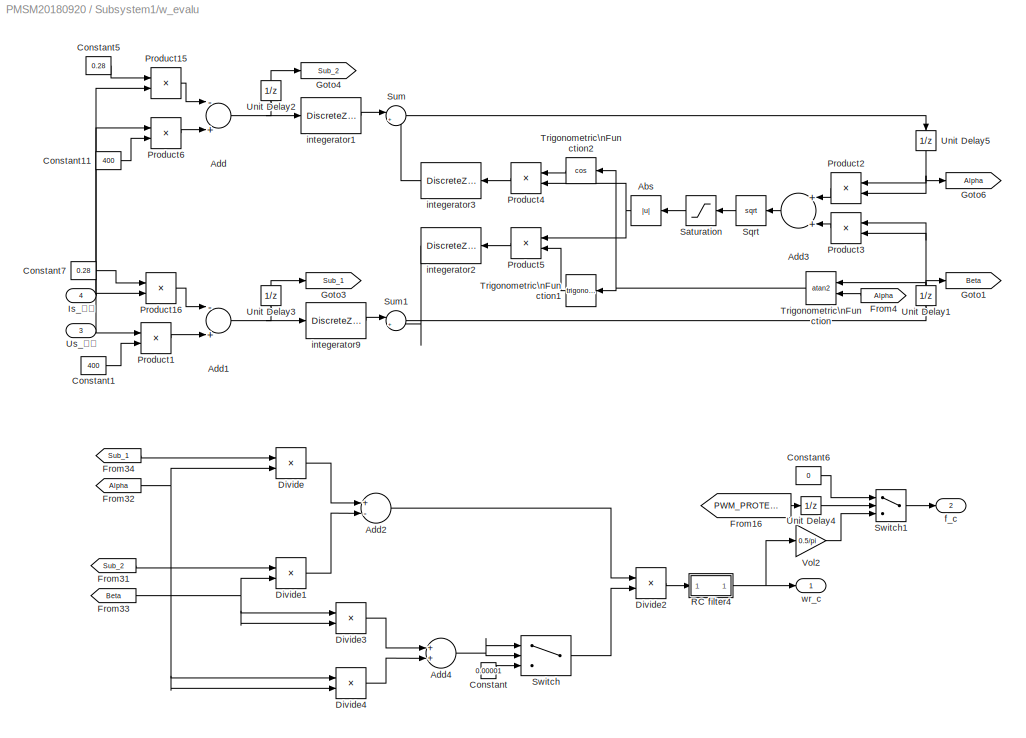
BLOCK [SubSystem] Subsystem1/w_evalu
  Ports = [4, 2]
  RequestExecContextInheritance = off
  SID = 30265
BLOCK [Abs] Subsystem1/w_evalu/Abs
  SID = 30270
  SaturateOnIntegerOverflow = off
BLOCK [Sum] Subsystem1/w_evalu/Add
  InputSameDT = off
  Inputs = -+
  OutDataTypeStr = Inherit: Inherit via internal rule
  Ports = [2, 1]
  SID = 30271
  SaturateOnIntegerOverflow = off
BLOCK [Sum] Subsystem1/w_evalu/Add1
  InputSameDT = off
  Inputs = -+
  OutDataTypeStr = Inherit: Inherit via internal rule
  Ports = [2, 1]
  SID = 30272
  SaturateOnIntegerOverflow = off
BLOCK [Sum] Subsystem1/w_evalu/Add2
  InputSameDT = off
  Inputs = +-
  OutDataTypeStr = Inherit: Inherit via internal rule
  Ports = [2, 1]
  SID = 30328
  SaturateOnIntegerOverflow = off
BLOCK [Sum] Subsystem1/w_evalu/Add3
  InputSameDT = off
  OutDataTypeStr = Inherit: Inherit via internal rule
  Ports = [2, 1]
  SID = 30273
  SaturateOnIntegerOverflow = off
BLOCK [Sum] Subsystem1/w_evalu/Add4
  InputSameDT = off
  OutDataTypeStr = Inherit: Inherit via internal rule
  Ports = [2, 1]
  SID = 30329
  SaturateOnIntegerOverflow = off
BLOCK [Constant] Subsystem1/w_evalu/Constant
  SID = 30330
  Value = 0.00001
BLOCK [Constant] Subsystem1/w_evalu/Constant1
  OutDataTypeStr = double
  SID = 31219
  Value = 400
BLOCK [Constant] Subsystem1/w_evalu/Constant11
  OutDataTypeStr = double
  SID = 31218
  Value = 400
BLOCK [Constant] Subsystem1/w_evalu/Constant5
  OutDataTypeStr = double
  SID = 32338
  Value = 0.28
BLOCK [Constant] Subsystem1/w_evalu/Constant6
  OutDataTypeStr = double
  SID = 31003
  Value = 0
BLOCK [Constant] Subsystem1/w_evalu/Constant7
  OutDataTypeStr = double
  SID = 32339
  Value = 0.28
BLOCK [Product] Subsystem1/w_evalu/Divide
  InputSameDT = off
  Inputs = **
  OutDataTypeStr = Inherit: Inherit via internal rule
  Ports = [2, 1]
  RndMeth = Floor
  SID = 30331
  SaturateOnIntegerOverflow = off
BLOCK [Product] Subsystem1/w_evalu/Divide1
  InputSameDT = off
  Inputs = **
  OutDataTypeStr = Inherit: Inherit via internal rule
  Ports = [2, 1]
  RndMeth = Floor
  SID = 30332
  SaturateOnIntegerOverflow = off
BLOCK [Product] Subsystem1/w_evalu/Divide2
  InputSameDT = off
  Inputs = */
  OutDataTypeStr = Inherit: Inherit via internal rule
  Ports = [2, 1]
  RndMeth = Floor
  SID = 30333
  SaturateOnIntegerOverflow = off
BLOCK [Product] Subsystem1/w_evalu/Divide3
  InputSameDT = off
  Inputs = **
  OutDataTypeStr = Inherit: Inherit via internal rule
  Ports = [2, 1]
  RndMeth = Floor
  SID = 30334
  SaturateOnIntegerOverflow = off
BLOCK [Product] Subsystem1/w_evalu/Divide4
  InputSameDT = off
  Inputs = **
  OutDataTypeStr = Inherit: Inherit via internal rule
  Ports = [2, 1]
  RndMeth = Floor
  SID = 30335
  SaturateOnIntegerOverflow = off
BLOCK [From] Subsystem1/w_evalu/From16
  GotoTag = PWM_PROTECT
  SID = 31004
  TagVisibility = global
BLOCK [From] Subsystem1/w_evalu/From31
  GotoTag = Sub_2
  SID = 30339
  TagVisibility = global
BLOCK [From] Subsystem1/w_evalu/From32
  GotoTag = Alpha
  SID = 30340
  TagVisibility = global
BLOCK [From] Subsystem1/w_evalu/From33
  GotoTag = Beta
  SID = 30341
  TagVisibility = global
BLOCK [From] Subsystem1/w_evalu/From34
  GotoTag = Sub_1
  SID = 30342
  TagVisibility = global
BLOCK [From] Subsystem1/w_evalu/From4
  GotoTag = Alpha
  SID = 30274
  TagVisibility = global
BLOCK [Goto] Subsystem1/w_evalu/Goto1
  GotoTag = Beta
  SID = 30275
  TagVisibility = global
BLOCK [Goto] Subsystem1/w_evalu/Goto3
  GotoTag = Sub_1
  SID = 30276
  TagVisibility = global
BLOCK [Goto] Subsystem1/w_evalu/Goto4
  GotoTag = Sub_2
  SID = 30277
  TagVisibility = global
BLOCK [Goto] Subsystem1/w_evalu/Goto6
  GotoTag = Alpha
  SID = 30278
  TagVisibility = global
BLOCK [Inport] Subsystem1/w_evalu/Is_¦Á
  IconDisplay = Port number
  Port = 2
  SID = 30267
BLOCK [Inport] Subsystem1/w_evalu/Is_¦Â
  IconDisplay = Port number
  Port = 4
  SID = 30269
BLOCK [Product] Subsystem1/w_evalu/Product1
  InputSameDT = off
  OutDataTypeStr = Inherit: Inherit via internal rule
  Ports = [2, 1]
  SID = 31197
  SaturateOnIntegerOverflow = off
BLOCK [Product] Subsystem1/w_evalu/Product15
  InputSameDT = off
  OutDataTypeStr = Inherit: Inherit via internal rule
  Ports = [2, 1]
  SID = 32330
  SaturateOnIntegerOverflow = off
BLOCK [Product] Subsystem1/w_evalu/Product16
  InputSameDT = off
  OutDataTypeStr = Inherit: Inherit via internal rule
  Ports = [2, 1]
  SID = 32331
  SaturateOnIntegerOverflow = off
BLOCK [Product] Subsystem1/w_evalu/Product2
  InputSameDT = off
  OutDataTypeStr = Inherit: Inherit via internal rule
  Ports = [2, 1]
  SID = 30281
  SaturateOnIntegerOverflow = off
BLOCK [Product] Subsystem1/w_evalu/Product3
  InputSameDT = off
  OutDataTypeStr = Inherit: Inherit via internal rule
  Ports = [2, 1]
  SID = 30282
  SaturateOnIntegerOverflow = off
BLOCK [Product] Subsystem1/w_evalu/Product4
  InputSameDT = off
  OutDataTypeStr = Inherit: Inherit via internal rule
  Ports = [2, 1]
  SID = 30283
  SaturateOnIntegerOverflow = off
BLOCK [Product] Subsystem1/w_evalu/Product5
  InputSameDT = off
  OutDataTypeStr = Inherit: Inherit via internal rule
  Ports = [2, 1]
  SID = 30284
  SaturateOnIntegerOverflow = off
BLOCK [Product] Subsystem1/w_evalu/Product6
  InputSameDT = off
  OutDataTypeStr = Inherit: Inherit via internal rule
  Ports = [2, 1]
  SID = 31199
  SaturateOnIntegerOverflow = off
BLOCK [SubSystem] Subsystem1/w_evalu/RC filter4
  Ports = [1, 1]
  RequestExecContextInheritance = off
  SID = 30346
BLOCK [Constant] Subsystem1/w_evalu/RC filter4/Constant2
  OutDataTypeStr = double
  SID = 30348
  Value = a
BLOCK [Constant] Subsystem1/w_evalu/RC filter4/Constant3
  OutDataTypeStr = double
  SID = 30349
  Value = 1-a
BLOCK [Product] Subsystem1/w_evalu/RC filter4/Divide
  InputSameDT = off
  OutDataTypeStr = Inherit: Inherit via internal rule
  Ports = [2, 1]
  RndMeth = Floor
  SID = 30350
  SaturateOnIntegerOverflow = off
BLOCK [Product] Subsystem1/w_evalu/RC filter4/Divide1
  InputSameDT = off
  OutDataTypeStr = Inherit: Inherit via internal rule
  Ports = [2, 1]
  RndMeth = Floor
  SID = 30351
  SaturateOnIntegerOverflow = off
BLOCK [Sum] Subsystem1/w_evalu/RC filter4/Sum2
  InputSameDT = off
  OutDataTypeStr = Inherit: Inherit via internal rule
  Ports = [2, 1]
  SID = 30352
  SaturateOnIntegerOverflow = off
BLOCK [UnitDelay] Subsystem1/w_evalu/RC filter4/Unit Delay2
  InputProcessing = Elements as channels (sample based)
  SID = 30353
  SampleTime = -1
BLOCK [Inport] Subsystem1/w_evalu/RC filter4/x
  IconDisplay = Port number
  SID = 30347
BLOCK [Outport] Subsystem1/w_evalu/RC filter4/y
  IconDisplay = Port number
  SID = 30354
BLOCK [Saturate] Subsystem1/w_evalu/Saturation
  InputPortMap = u0
  LowerLimit = -0.56
  Ports = [1, 1]
  SID = 30287
  UpperLimit = 0.56
BLOCK [Sqrt] Subsystem1/w_evalu/Sqrt
  SID = 30290
BLOCK [Sum] Subsystem1/w_evalu/Sum
  IconShape = round
  InputSameDT = off
  Inputs = |++
  OutDataTypeStr = Inherit: Inherit via internal rule
  Ports = [2, 1]
  SID = 30291
  SaturateOnIntegerOverflow = off
BLOCK [Sum] Subsystem1/w_evalu/Sum1
  IconShape = round
  InputSameDT = off
  Inputs = |++
  OutDataTypeStr = Inherit: Inherit via internal rule
  Ports = [2, 1]
  SID = 30292
  SaturateOnIntegerOverflow = off
BLOCK [Switch] Subsystem1/w_evalu/Switch
  Criteria = u2 ~= 0
  InputSameDT = off
  SID = 30336
  SaturateOnIntegerOverflow = off
BLOCK [Switch] Subsystem1/w_evalu/Switch1
  Criteria = u2 ~= 0
  InputSameDT = off
  SID = 31005
  SaturateOnIntegerOverflow = off
BLOCK [Trigonometry] Subsystem1/w_evalu/Trigonometric\nFunction
  Operator = atan2
  Ports = [2, 1]
  SID = 30293
BLOCK [Trigonometry] Subsystem1/w_evalu/Trigonometric\nFunction1
  Ports = [1, 1]
  SID = 30294
BLOCK [Trigonometry] Subsystem1/w_evalu/Trigonometric\nFunction2
  Operator = cos
  Ports = [1, 1]
  SID = 30295
BLOCK [UnitDelay] Subsystem1/w_evalu/Unit Delay1
  InputProcessing = Elements as channels (sample based)
  SID = 30296
  SampleTime = -1
BLOCK [UnitDelay] Subsystem1/w_evalu/Unit Delay2
  InputProcessing = Elements as channels (sample based)
  SID = 30297
  SampleTime = -1
BLOCK [UnitDelay] Subsystem1/w_evalu/Unit Delay3
  InputProcessing = Elements as channels (sample based)
  SID = 30298
  SampleTime = -1
BLOCK [UnitDelay] Subsystem1/w_evalu/Unit Delay4
  InputProcessing = Elements as channels (sample based)
  SID = 31006
  SampleTime = -1
BLOCK [UnitDelay] Subsystem1/w_evalu/Unit Delay5
  InputProcessing = Elements as channels (sample based)
  SID = 30299
  SampleTime = -1
BLOCK [Inport] Subsystem1/w_evalu/Us_¦Á
  IconDisplay = Port number
  SID = 30266
BLOCK [Inport] Subsystem1/w_evalu/Us_¦Â
  IconDisplay = Port number
  Port = 3
  SID = 30268
BLOCK [Gain] Subsystem1/w_evalu/Vol2
  Gain = 0.5/pi
  OutDataTypeStr = Inherit: Inherit via internal rule
  ParamDataTypeStr = Inherit: Inherit via internal rule
  SID = 30540
  SaturateOnIntegerOverflow = off
BLOCK [Outport] Subsystem1/w_evalu/f_c
  IconDisplay = Port number
  Port = 2
  SID = 31007
BLOCK [DiscreteZeroPole] Subsystem1/w_evalu/integerator1
  Gain = 0.0002/1.03
  Poles = [1/1.03]
  SID = 30302
  SampleTime = -1
  Zeros = [0]
BLOCK [DiscreteZeroPole] Subsystem1/w_evalu/integerator2
  Gain = 0.0002/1.03*150
  Poles = [1/1.03]
  SID = 30304
  SampleTime = -1
  Zeros = [0]
BLOCK [DiscreteZeroPole] Subsystem1/w_evalu/integerator3
  Gain = 0.0002/1.03*150
  Poles = [1/1.03]
  SID = 30305
  SampleTime = -1
  Zeros = [0]
BLOCK [DiscreteZeroPole] Subsystem1/w_evalu/integerator9
  Gain = 0.0002/1.03
  Poles = [1/1.03]
  SID = 30310
  SampleTime = -1
  Zeros = [0]
BLOCK [Outport] Subsystem1/w_evalu/wr_c
  IconDisplay = Port number
  SID = 30337
BLOCK [Goto] start
  GotoTag = start
  SID = 22797
BLOCK [Goto] start1
  GotoTag = stop
  SID = 22798
BLOCK [Goto] start2
  GotoTag = mode
  SID = 22799
BLOCK [Goto] start3
  GotoTag = powerok
  SID = 22800
BLOCK [Goto] start4
  GotoTag = tmp
  SID = 22801
ANNOTATION Function-Call\nSubsystem1: BCD½âÂë
ANNOTATION Function-Call\nSubsystem1: DIG1
ANNOTATION Function-Call\nSubsystem1: DIG2
ANNOTATION Function-Call\nSubsystem1: DIG3
ANNOTATION Function-Call\nSubsystem1: DIG4
ANNOTATION Function-Call\nSubsystem1: DIG5
ANNOTATION Function-Call\nSubsystem1: DIG6
ANNOTATION Function-Call\nSubsystem1: DIG7
ANNOTATION Function-Call\nSubsystem1: 测试模式
ANNOTATION Function-Call\nSubsystem1: 关闭
ANNOTATION Function-Call\nSubsystem1: ÁÁ¶È
ANNOTATION Function-Call\nSubsystem1: 扫描范围
ANNOTATION Subsystem1: 0 is on 1 in off
ANNOTATION Subsystem1: 开关机高电平有效
LINE C280x//C28x3x \nHardware Interrupt:1 -> Subsystem1:trigger
LINE From1:1 -> Rate Transition1:1
LINE From2:1 -> Rate Transition2:1
LINE From3:1 -> Rate Transition3:1
LINE From4:1 -> Rate Transition4:1
LINE From6:1 -> Function-Call\nSubsystem1:1
LINE From:1 -> Rate Transition:1
LINE Function-Call\nSubsystem1/Constant10:1 -> Function-Call\nSubsystem1/Integration 0 to maximal3:1
LINE Function-Call\nSubsystem1/Constant12:1 -> Function-Call\nSubsystem1/Gain6:1
LINE Function-Call\nSubsystem1/Constant14:1 -> Function-Call\nSubsystem1/Gain7:1
LINE Function-Call\nSubsystem1/Constant19:1 -> Function-Call\nSubsystem1/Multiport\nSwitch:3
LINE Function-Call\nSubsystem1/Constant20:1 -> Function-Call\nSubsystem1/Multiport\nSwitch:2
LINE Function-Call\nSubsystem1/Constant28:1 -> Function-Call\nSubsystem1/Gain2:1
LINE Function-Call\nSubsystem1/Constant2:1 -> Function-Call\nSubsystem1/Gain1:1
LINE Function-Call\nSubsystem1/Constant35:1 -> Function-Call\nSubsystem1/Multiport\nSwitch:5
LINE Function-Call\nSubsystem1/Constant36:1 -> Function-Call\nSubsystem1/Multiport\nSwitch:6
LINE Function-Call\nSubsystem1/Constant4:1 -> Function-Call\nSubsystem1/Multiport\nSwitch:4
LINE Function-Call\nSubsystem1/Constant5:1 -> Function-Call\nSubsystem1/Gain3:1
LINE Function-Call\nSubsystem1/Constant7:1 -> Function-Call\nSubsystem1/Gain5:1
LINE Function-Call\nSubsystem1/Constant8:1 -> Function-Call\nSubsystem1/Gain4:1
LINE Function-Call\nSubsystem1/Data Type Conversion1:1 -> Function-Call\nSubsystem1/Subsystem2:1
LINE Function-Call\nSubsystem1/Data Type Conversion2:1 -> Function-Call\nSubsystem1/Subsystem3:1
LINE Function-Call\nSubsystem1/Data Type Conversion:1 -> Function-Call\nSubsystem1/Subsystem1:1
LINE Function-Call\nSubsystem1/Demux:1 -> Function-Call\nSubsystem1/Data Type Conversion:1
LINE Function-Call\nSubsystem1/Demux:2 -> Function-Call\nSubsystem1/Data Type Conversion1:1
LINE Function-Call\nSubsystem1/Demux:3 -> Function-Call\nSubsystem1/Data Type Conversion2:1
LINE Function-Call\nSubsystem1/Gain1:1 -> Function-Call\nSubsystem1/Sum1:1
LINE Function-Call\nSubsystem1/Gain2:1 -> Function-Call\nSubsystem1/Sum5:1
LINE Function-Call\nSubsystem1/Gain3:1 -> Function-Call\nSubsystem1/Sum2:1
LINE Function-Call\nSubsystem1/Gain4:1 -> Function-Call\nSubsystem1/Sum6:1
LINE Function-Call\nSubsystem1/Gain5:1 -> Function-Call\nSubsystem1/Sum3:1
LINE Function-Call\nSubsystem1/Gain6:1 -> Function-Call\nSubsystem1/Sum4:1
LINE Function-Call\nSubsystem1/Gain7:1 -> Function-Call\nSubsystem1/Sum7:1
NET Function-Call\nSubsystem1/Integration 0 to maximal3/3:1 -> Function-Call\nSubsystem1/Integration 0 to maximal3/Relational\nOperator1:2, Function-Call\nSubsystem1/Integration 0 to maximal3/Sum1:2
NET Function-Call\nSubsystem1/Integration 0 to maximal3/Relational\nOperator1:1 -> Function-Call\nSubsystem1/Integration 0 to maximal3/Switch2:2, Function-Call\nSubsystem1/Integration 0 to maximal3/Zero Trig:1
LINE Function-Call\nSubsystem1/Integration 0 to maximal3/Sum1:1 -> Function-Call\nSubsystem1/Integration 0 to maximal3/Switch2:3
NET Function-Call\nSubsystem1/Integration 0 to maximal3/Sum2:1 -> Function-Call\nSubsystem1/Integration 0 to maximal3/Relational\nOperator1:1, Function-Call\nSubsystem1/Integration 0 to maximal3/Sum1:1, Function-Call\nSubsystem1/Integration 0 to maximal3/Switch2:1
NET Function-Call\nSubsystem1/Integration 0 to maximal3/Switch2:1 -> Function-Call\nSubsystem1/Integration 0 to maximal3/Unit Delay1:1, Function-Call\nSubsystem1/Integration 0 to maximal3/y:1
LINE Function-Call\nSubsystem1/Integration 0 to maximal3/Unit Delay1:1 -> Function-Call\nSubsystem1/Integration 0 to maximal3/Sum2:1
LINE Function-Call\nSubsystem1/Integration 0 to maximal3/x:1 -> Function-Call\nSubsystem1/Integration 0 to maximal3/Sum2:2
LINE Function-Call\nSubsystem1/Integration 0 to maximal3:1 -> Function-Call\nSubsystem1/Multiport\nSwitch:1
LINE Function-Call\nSubsystem1/Integration 0 to maximal3:2 -> Function-Call\nSubsystem1/Terminator4:1
LINE Function-Call\nSubsystem1/Multiport\nSwitch:1 -> Function-Call\nSubsystem1/SPI Transmit:1
LINE Function-Call\nSubsystem1/SPI2:1 -> Function-Call\nSubsystem1/Demux:1
NET Function-Call\nSubsystem1/Subsystem1/In1:1 -> Function-Call\nSubsystem1/Subsystem1/求百位:1, Function-Call\nSubsystem1/Subsystem1/求个位:1, Function-Call\nSubsystem1/Subsystem1/求十位:2
NET Function-Call\nSubsystem1/Subsystem1/求百位/Constant1:1 -> Function-Call\nSubsystem1/Subsystem1/求百位/Math\nFunction:2, Function-Call\nSubsystem1/Subsystem1/求百位/Product:2
NET Function-Call\nSubsystem1/Subsystem1/求百位/In1:1 -> Function-Call\nSubsystem1/Subsystem1/求百位/Math\nFunction:1, Function-Call\nSubsystem1/Subsystem1/求百位/Sum:1
LINE Function-Call\nSubsystem1/Subsystem1/求百位/Math\nFunction:1 -> Function-Call\nSubsystem1/Subsystem1/求百位/Sum:2
LINE Function-Call\nSubsystem1/Subsystem1/求百位/Product:1 -> Function-Call\nSubsystem1/Subsystem1/求百位/Out1:1
LINE Function-Call\nSubsystem1/Subsystem1/求百位/Sum:1 -> Function-Call\nSubsystem1/Subsystem1/求百位/Product:1
NET Function-Call\nSubsystem1/Subsystem1/求百位:1 -> Function-Call\nSubsystem1/Subsystem1/Out1:1, Function-Call\nSubsystem1/Subsystem1/求个位:2, Function-Call\nSubsystem1/Subsystem1/求十位:1
NET Function-Call\nSubsystem1/Subsystem1/求个位/Constant1:1 -> Function-Call\nSubsystem1/Subsystem1/求个位/Math\nFunction:2, Function-Call\nSubsystem1/Subsystem1/求个位/Product:2
LINE Function-Call\nSubsystem1/Subsystem1/求个位/Gain1:1 -> Function-Call\nSubsystem1/Subsystem1/求个位/Sum:3
LINE Function-Call\nSubsystem1/Subsystem1/求个位/Gain:1 -> Function-Call\nSubsystem1/Subsystem1/求个位/Sum:2
LINE Function-Call\nSubsystem1/Subsystem1/求个位/In1:1 -> Function-Call\nSubsystem1/Subsystem1/求个位/Sum:1
LINE Function-Call\nSubsystem1/Subsystem1/求个位/In2:1 -> Function-Call\nSubsystem1/Subsystem1/求个位/Gain:1
LINE Function-Call\nSubsystem1/Subsystem1/求个位/In3:1 -> Function-Call\nSubsystem1/Subsystem1/求个位/Gain1:1
LINE Function-Call\nSubsystem1/Subsystem1/求个位/Math\nFunction:1 -> Function-Call\nSubsystem1/Subsystem1/求个位/Sum1:2
LINE Function-Call\nSubsystem1/Subsystem1/求个位/Product:1 -> Function-Call\nSubsystem1/Subsystem1/求个位/Out1:1
LINE Function-Call\nSubsystem1/Subsystem1/求个位/Sum1:1 -> Function-Call\nSubsystem1/Subsystem1/求个位/Product:1
NET Function-Call\nSubsystem1/Subsystem1/求个位/Sum:1 -> Function-Call\nSubsystem1/Subsystem1/求个位/Math\nFunction:1, Function-Call\nSubsystem1/Subsystem1/求个位/Sum1:1
LINE Function-Call\nSubsystem1/Subsystem1/求个位:1 -> Function-Call\nSubsystem1/Subsystem1/Out3:1
NET Function-Call\nSubsystem1/Subsystem1/求十位/Constant1:1 -> Function-Call\nSubsystem1/Subsystem1/求十位/Math\nFunction:2, Function-Call\nSubsystem1/Subsystem1/求十位/Product:2
LINE Function-Call\nSubsystem1/Subsystem1/求十位/Gain1:1 -> Function-Call\nSubsystem1/Subsystem1/求十位/Sum1:2
LINE Function-Call\nSubsystem1/Subsystem1/求十位/In1:1 -> Function-Call\nSubsystem1/Subsystem1/求十位/Gain1:1
LINE Function-Call\nSubsystem1/Subsystem1/求十位/In2:1 -> Function-Call\nSubsystem1/Subsystem1/求十位/Sum1:1
LINE Function-Call\nSubsystem1/Subsystem1/求十位/Math\nFunction:1 -> Function-Call\nSubsystem1/Subsystem1/求十位/Sum:2
LINE Function-Call\nSubsystem1/Subsystem1/求十位/Product:1 -> Function-Call\nSubsystem1/Subsystem1/求十位/Out1:1
NET Function-Call\nSubsystem1/Subsystem1/求十位/Sum1:1 -> Function-Call\nSubsystem1/Subsystem1/求十位/Math\nFunction:1, Function-Call\nSubsystem1/Subsystem1/求十位/Sum:1
LINE Function-Call\nSubsystem1/Subsystem1/求十位/Sum:1 -> Function-Call\nSubsystem1/Subsystem1/求十位/Product:1
NET Function-Call\nSubsystem1/Subsystem1/求十位:1 -> Function-Call\nSubsystem1/Subsystem1/Out2:1, Function-Call\nSubsystem1/Subsystem1/求个位:3
LINE Function-Call\nSubsystem1/Subsystem1:1 -> Function-Call\nSubsystem1/Sum5:2
LINE Function-Call\nSubsystem1/Subsystem1:2 -> Function-Call\nSubsystem1/Sum1:2
LINE Function-Call\nSubsystem1/Subsystem1:3 -> Function-Call\nSubsystem1/Sum2:2
NET Function-Call\nSubsystem1/Subsystem2/In1:1 -> Function-Call\nSubsystem1/Subsystem2/求百位:1, Function-Call\nSubsystem1/Subsystem2/求个位:1, Function-Call\nSubsystem1/Subsystem2/求十位:2
NET Function-Call\nSubsystem1/Subsystem2/求百位/Constant1:1 -> Function-Call\nSubsystem1/Subsystem2/求百位/Math\nFunction:2, Function-Call\nSubsystem1/Subsystem2/求百位/Product:2
NET Function-Call\nSubsystem1/Subsystem2/求百位/In1:1 -> Function-Call\nSubsystem1/Subsystem2/求百位/Math\nFunction:1, Function-Call\nSubsystem1/Subsystem2/求百位/Sum:1
LINE Function-Call\nSubsystem1/Subsystem2/求百位/Math\nFunction:1 -> Function-Call\nSubsystem1/Subsystem2/求百位/Sum:2
LINE Function-Call\nSubsystem1/Subsystem2/求百位/Product:1 -> Function-Call\nSubsystem1/Subsystem2/求百位/Out1:1
LINE Function-Call\nSubsystem1/Subsystem2/求百位/Sum:1 -> Function-Call\nSubsystem1/Subsystem2/求百位/Product:1
NET Function-Call\nSubsystem1/Subsystem2/求百位:1 -> Function-Call\nSubsystem1/Subsystem2/求个位:2, Function-Call\nSubsystem1/Subsystem2/求十位:1
NET Function-Call\nSubsystem1/Subsystem2/求个位/Constant1:1 -> Function-Call\nSubsystem1/Subsystem2/求个位/Math\nFunction:2, Function-Call\nSubsystem1/Subsystem2/求个位/Product:2
LINE Function-Call\nSubsystem1/Subsystem2/求个位/Gain1:1 -> Function-Call\nSubsystem1/Subsystem2/求个位/Sum:3
LINE Function-Call\nSubsystem1/Subsystem2/求个位/Gain:1 -> Function-Call\nSubsystem1/Subsystem2/求个位/Sum:2
LINE Function-Call\nSubsystem1/Subsystem2/求个位/In1:1 -> Function-Call\nSubsystem1/Subsystem2/求个位/Sum:1
LINE Function-Call\nSubsystem1/Subsystem2/求个位/In2:1 -> Function-Call\nSubsystem1/Subsystem2/求个位/Gain:1
LINE Function-Call\nSubsystem1/Subsystem2/求个位/In3:1 -> Function-Call\nSubsystem1/Subsystem2/求个位/Gain1:1
LINE Function-Call\nSubsystem1/Subsystem2/求个位/Math\nFunction:1 -> Function-Call\nSubsystem1/Subsystem2/求个位/Sum1:2
LINE Function-Call\nSubsystem1/Subsystem2/求个位/Product:1 -> Function-Call\nSubsystem1/Subsystem2/求个位/Out1:1
LINE Function-Call\nSubsystem1/Subsystem2/求个位/Sum1:1 -> Function-Call\nSubsystem1/Subsystem2/求个位/Product:1
NET Function-Call\nSubsystem1/Subsystem2/求个位/Sum:1 -> Function-Call\nSubsystem1/Subsystem2/求个位/Math\nFunction:1, Function-Call\nSubsystem1/Subsystem2/求个位/Sum1:1
LINE Function-Call\nSubsystem1/Subsystem2/求个位:1 -> Function-Call\nSubsystem1/Subsystem2/Out3:1
NET Function-Call\nSubsystem1/Subsystem2/求十位/Constant1:1 -> Function-Call\nSubsystem1/Subsystem2/求十位/Math\nFunction:2, Function-Call\nSubsystem1/Subsystem2/求十位/Product:2
LINE Function-Call\nSubsystem1/Subsystem2/求十位/Gain1:1 -> Function-Call\nSubsystem1/Subsystem2/求十位/Sum1:2
LINE Function-Call\nSubsystem1/Subsystem2/求十位/In1:1 -> Function-Call\nSubsystem1/Subsystem2/求十位/Gain1:1
LINE Function-Call\nSubsystem1/Subsystem2/求十位/In2:1 -> Function-Call\nSubsystem1/Subsystem2/求十位/Sum1:1
LINE Function-Call\nSubsystem1/Subsystem2/求十位/Math\nFunction:1 -> Function-Call\nSubsystem1/Subsystem2/求十位/Sum:2
LINE Function-Call\nSubsystem1/Subsystem2/求十位/Product:1 -> Function-Call\nSubsystem1/Subsystem2/求十位/Out1:1
NET Function-Call\nSubsystem1/Subsystem2/求十位/Sum1:1 -> Function-Call\nSubsystem1/Subsystem2/求十位/Math\nFunction:1, Function-Call\nSubsystem1/Subsystem2/求十位/Sum:1
LINE Function-Call\nSubsystem1/Subsystem2/求十位/Sum:1 -> Function-Call\nSubsystem1/Subsystem2/求十位/Product:1
NET Function-Call\nSubsystem1/Subsystem2/求十位:1 -> Function-Call\nSubsystem1/Subsystem2/Out2:1, Function-Call\nSubsystem1/Subsystem2/求个位:3
LINE Function-Call\nSubsystem1/Subsystem2:1 -> Function-Call\nSubsystem1/Sum6:2
LINE Function-Call\nSubsystem1/Subsystem2:2 -> Function-Call\nSubsystem1/Sum3:2
NET Function-Call\nSubsystem1/Subsystem3/In1:1 -> Function-Call\nSubsystem1/Subsystem3/求百位:1, Function-Call\nSubsystem1/Subsystem3/求个位:1, Function-Call\nSubsystem1/Subsystem3/求十位:2
NET Function-Call\nSubsystem1/Subsystem3/求百位/Constant1:1 -> Function-Call\nSubsystem1/Subsystem3/求百位/Math\nFunction:2, Function-Call\nSubsystem1/Subsystem3/求百位/Product:2
NET Function-Call\nSubsystem1/Subsystem3/求百位/In1:1 -> Function-Call\nSubsystem1/Subsystem3/求百位/Math\nFunction:1, Function-Call\nSubsystem1/Subsystem3/求百位/Sum:1
LINE Function-Call\nSubsystem1/Subsystem3/求百位/Math\nFunction:1 -> Function-Call\nSubsystem1/Subsystem3/求百位/Sum:2
LINE Function-Call\nSubsystem1/Subsystem3/求百位/Product:1 -> Function-Call\nSubsystem1/Subsystem3/求百位/Out1:1
LINE Function-Call\nSubsystem1/Subsystem3/求百位/Sum:1 -> Function-Call\nSubsystem1/Subsystem3/求百位/Product:1
NET Function-Call\nSubsystem1/Subsystem3/求百位:1 -> Function-Call\nSubsystem1/Subsystem3/求个位:2, Function-Call\nSubsystem1/Subsystem3/求十位:1
NET Function-Call\nSubsystem1/Subsystem3/求个位/Constant1:1 -> Function-Call\nSubsystem1/Subsystem3/求个位/Math\nFunction:2, Function-Call\nSubsystem1/Subsystem3/求个位/Product:2
LINE Function-Call\nSubsystem1/Subsystem3/求个位/Gain1:1 -> Function-Call\nSubsystem1/Subsystem3/求个位/Sum:3
LINE Function-Call\nSubsystem1/Subsystem3/求个位/Gain:1 -> Function-Call\nSubsystem1/Subsystem3/求个位/Sum:2
LINE Function-Call\nSubsystem1/Subsystem3/求个位/In1:1 -> Function-Call\nSubsystem1/Subsystem3/求个位/Sum:1
LINE Function-Call\nSubsystem1/Subsystem3/求个位/In2:1 -> Function-Call\nSubsystem1/Subsystem3/求个位/Gain:1
LINE Function-Call\nSubsystem1/Subsystem3/求个位/In3:1 -> Function-Call\nSubsystem1/Subsystem3/求个位/Gain1:1
LINE Function-Call\nSubsystem1/Subsystem3/求个位/Math\nFunction:1 -> Function-Call\nSubsystem1/Subsystem3/求个位/Sum1:2
LINE Function-Call\nSubsystem1/Subsystem3/求个位/Product:1 -> Function-Call\nSubsystem1/Subsystem3/求个位/Out1:1
LINE Function-Call\nSubsystem1/Subsystem3/求个位/Sum1:1 -> Function-Call\nSubsystem1/Subsystem3/求个位/Product:1
NET Function-Call\nSubsystem1/Subsystem3/求个位/Sum:1 -> Function-Call\nSubsystem1/Subsystem3/求个位/Math\nFunction:1, Function-Call\nSubsystem1/Subsystem3/求个位/Sum1:1
LINE Function-Call\nSubsystem1/Subsystem3/求个位:1 -> Function-Call\nSubsystem1/Subsystem3/Out3:1
NET Function-Call\nSubsystem1/Subsystem3/求十位/Constant1:1 -> Function-Call\nSubsystem1/Subsystem3/求十位/Math\nFunction:2, Function-Call\nSubsystem1/Subsystem3/求十位/Product:2
LINE Function-Call\nSubsystem1/Subsystem3/求十位/Gain1:1 -> Function-Call\nSubsystem1/Subsystem3/求十位/Sum1:2
LINE Function-Call\nSubsystem1/Subsystem3/求十位/In1:1 -> Function-Call\nSubsystem1/Subsystem3/求十位/Gain1:1
LINE Function-Call\nSubsystem1/Subsystem3/求十位/In2:1 -> Function-Call\nSubsystem1/Subsystem3/求十位/Sum1:1
LINE Function-Call\nSubsystem1/Subsystem3/求十位/Math\nFunction:1 -> Function-Call\nSubsystem1/Subsystem3/求十位/Sum:2
LINE Function-Call\nSubsystem1/Subsystem3/求十位/Product:1 -> Function-Call\nSubsystem1/Subsystem3/求十位/Out1:1
NET Function-Call\nSubsystem1/Subsystem3/求十位/Sum1:1 -> Function-Call\nSubsystem1/Subsystem3/求十位/Math\nFunction:1, Function-Call\nSubsystem1/Subsystem3/求十位/Sum:1
LINE Function-Call\nSubsystem1/Subsystem3/求十位/Sum:1 -> Function-Call\nSubsystem1/Subsystem3/求十位/Product:1
NET Function-Call\nSubsystem1/Subsystem3/求十位:1 -> Function-Call\nSubsystem1/Subsystem3/Out2:1, Function-Call\nSubsystem1/Subsystem3/求个位:3
LINE Function-Call\nSubsystem1/Subsystem3:1 -> Function-Call\nSubsystem1/Sum4:2
LINE Function-Call\nSubsystem1/Subsystem3:2 -> Function-Call\nSubsystem1/Sum7:2
LINE Function-Call\nSubsystem1/Sum1:1 -> Function-Call\nSubsystem1/Multiport\nSwitch:8
LINE Function-Call\nSubsystem1/Sum2:1 -> Function-Call\nSubsystem1/Multiport\nSwitch:9
LINE Function-Call\nSubsystem1/Sum3:1 -> Function-Call\nSubsystem1/Multiport\nSwitch:11
LINE Function-Call\nSubsystem1/Sum4:1 -> Function-Call\nSubsystem1/Multiport\nSwitch:12
LINE Function-Call\nSubsystem1/Sum5:1 -> Function-Call\nSubsystem1/Multiport\nSwitch:7
LINE Function-Call\nSubsystem1/Sum6:1 -> Function-Call\nSubsystem1/Multiport\nSwitch:10
LINE Function-Call\nSubsystem1/Sum7:1 -> Function-Call\nSubsystem1/Multiport\nSwitch:13
LINE Rate Transition1:1 -> Subsystem1:2
LINE Rate Transition2:1 -> Subsystem1:3
LINE Rate Transition3:1 -> Subsystem1:4
LINE Rate Transition4:1 -> Subsystem1:5
LINE Rate Transition5:1 -> Goto1:1
LINE Rate Transition:1 -> Subsystem1:1
LINE Simulation Interrupt:1 -> Function-Call\nSubsystem1:trigger
LINE Subsystem/MODE1:1 -> Subsystem/powerok:1
LINE Subsystem/MODE2:1 -> Subsystem/tmp:1
LINE Subsystem/MODE:1 -> Subsystem/mode:1
LINE Subsystem/PB-OFF:1 -> Subsystem/stop:1
LINE Subsystem/PB-ON:1 -> Subsystem/start:1
LINE Subsystem1/AD/Start Conversion/Constant:1 -> Subsystem1/AD/Start Conversion/Digital Output1:1
LINE Subsystem1/AD/Stop Conversion/Constant12:1 -> Subsystem1/AD/Stop Conversion/Digital Output13:1
LINE Subsystem1/AD/read AD/p1:1 -> Subsystem1/AD/read AD/UD:1
LINE Subsystem1/AD/read AD/p2:1 -> Subsystem1/AD/read AD/UOUT:1
LINE Subsystem1/AD/read AD/p3:1 -> Subsystem1/AD/read AD/UOUT1:1
LINE Subsystem1/AD/read AD/p5:1 -> Subsystem1/AD/read AD/FREQ:1
LINE Subsystem1/AD/read AD/p6:1 -> Subsystem1/AD/read AD/IA:1
LINE Subsystem1/AD/read AD/p7:1 -> Subsystem1/AD/read AD/IB:1
LINE Subsystem1/AD/read AD:1 -> Subsystem1/AD/UD:1
LINE Subsystem1/AD/read AD:2 -> Subsystem1/AD/Goto7:1
LINE Subsystem1/AD/read AD:3 -> Subsystem1/AD/Goto9:1
LINE Subsystem1/AD/read AD:4 -> Subsystem1/AD/FREQ:1
LINE Subsystem1/AD/read AD:5 -> Subsystem1/AD/IA:1
LINE Subsystem1/AD/read AD:6 -> Subsystem1/AD/IB:1
LINE Subsystem1/AD:1 -> Subsystem1/Goto106:1
LINE Subsystem1/AD:2 -> Subsystem1/Goto108:1
LINE Subsystem1/AD:3 -> Subsystem1/Goto107:1
LINE Subsystem1/AD:4 -> Subsystem1/Goto109:1
LINE Subsystem1/Abs:1 -> Subsystem1/Goto32:1
LINE Subsystem1/Compare\nTo Constant:1 -> Subsystem1/Logical\nOperator4:1
LINE Subsystem1/Constant10:1 -> Subsystem1/PI-ID:4
LINE Subsystem1/Constant11:1 -> Subsystem1/PI-Nr:3
LINE Subsystem1/Constant12:1 -> Subsystem1/Divide:2
LINE Subsystem1/Constant13:1 -> Subsystem1/PI-Nr:6
LINE Subsystem1/Constant14:1 -> Subsystem1/PI-IQ:6
LINE Subsystem1/Constant15:1 -> Subsystem1/PI-IQ:5
LINE Subsystem1/Constant16:1 -> Subsystem1/PI-ID:3
LINE Subsystem1/Constant17:1 -> Subsystem1/PI-Nr:5
LINE Subsystem1/Constant18:1 -> Subsystem1/Sum5:2
LINE Subsystem1/Constant19:1 -> Subsystem1/Sum4:2
LINE Subsystem1/Constant1:1 -> Subsystem1/PI-ID7:4
LINE Subsystem1/Constant20:1 -> Subsystem1/PI-Nr:4
LINE Subsystem1/Constant21:1 -> Subsystem1/PI-IQ:3
LINE Subsystem1/Constant22:1 -> Subsystem1/Divide2:2
LINE Subsystem1/Constant23:1 -> Subsystem1/PI-IQ7:6
LINE Subsystem1/Constant24:1 -> Subsystem1/PI-IQ7:5
LINE Subsystem1/Constant25:1 -> Subsystem1/PI-IQ5:6
LINE Subsystem1/Constant26:1 -> Subsystem1/Divide3:2
LINE Subsystem1/Constant27:1 -> Subsystem1/Sum7:1
LINE Subsystem1/Constant28:1 -> Subsystem1/PI-IQ7:4
LINE Subsystem1/Constant29:1 -> Subsystem1/PI-ID7:6
LINE Subsystem1/Constant2:1 -> Subsystem1/Divide1:2
LINE Subsystem1/Constant30:1 -> Subsystem1/PI-ID7:5
LINE Subsystem1/Constant31:1 -> Subsystem1/PI-ID7:3
LINE Subsystem1/Constant32:1 -> Subsystem1/Sum3:1
LINE Subsystem1/Constant33:1 -> Subsystem1/PI-IQ5:5
LINE Subsystem1/Constant34:1 -> Subsystem1/Divide5:2
LINE Subsystem1/Constant35:1 -> Subsystem1/Sum9:1
LINE Subsystem1/Constant36:1 -> Subsystem1/PI-IQ5:4
LINE Subsystem1/Constant37:1 -> Subsystem1/PI-ID5:6
LINE Subsystem1/Constant38:1 -> Subsystem1/PI-ID5:5
LINE Subsystem1/Constant39:1 -> Subsystem1/PI-ID5:3
LINE Subsystem1/Constant3:1 -> Subsystem1/Data Type Conversion1:1
LINE Subsystem1/Constant40:1 -> Subsystem1/Sum8:1
LINE Subsystem1/Constant41:1 -> Subsystem1/PI-ID5:4
LINE Subsystem1/Constant42:1 -> Subsystem1/PI-IQ5:3
LINE Subsystem1/Constant4:1 -> Subsystem1/Sum2:1
LINE Subsystem1/Constant5:1 -> Subsystem1/PI-IQ:4
LINE Subsystem1/Constant6:1 -> Subsystem1/PI-IQ7:3
LINE Subsystem1/Constant7:1 -> Subsystem1/PI-ID:6
LINE Subsystem1/Constant8:1 -> Subsystem1/PI-ID:5
LINE Subsystem1/Constant9:1 -> Subsystem1/Divide4:2
LINE Subsystem1/Current protect1/Constant25:1 -> Subsystem1/Current protect1/Switch9:3
LINE Subsystem1/Current protect1/Constant26:1 -> Subsystem1/Current protect1/Switch9:1
LINE Subsystem1/Current protect1/S-R\nFlip-Flop1:1 -> Subsystem1/Current protect1/Software_I:1
LINE Subsystem1/Current protect1/S-R\nFlip-Flop1:2 -> Subsystem1/Current protect1/Terminator:1
LINE Subsystem1/Current protect1/Switch9:1 -> Subsystem1/Current protect1/S-R\nFlip-Flop1:1
LINE Subsystem1/Current protect1/igdin:1 -> Subsystem1/Current protect1/Switch9:2
LINE Subsystem1/Current protect1/reset:1 -> Subsystem1/Current protect1/S-R\nFlip-Flop1:2
LINE Subsystem1/Current protect1:1 -> Subsystem1/Unit Delay1:1
LINE Subsystem1/Data Type Conversion1:1 -> Subsystem1/driving signal:4
LINE Subsystem1/Divide1:1 -> Subsystem1/Goto7:1
LINE Subsystem1/Divide2:1 -> Subsystem1/Goto31:1
LINE Subsystem1/Divide3:1 -> Subsystem1/Goto34:1
LINE Subsystem1/Divide4:1 -> Subsystem1/Goto42:1
LINE Subsystem1/Divide5:1 -> Subsystem1/Goto43:1
LINE Subsystem1/Divide:1 -> Subsystem1/Goto6:1
LINE Subsystem1/From10:1 -> Subsystem1/Sum1:2
LINE Subsystem1/From11:1 -> Subsystem1/Logical\nOperator2:1
LINE Subsystem1/From12:1 -> Subsystem1/conversion:1
LINE Subsystem1/From13:1 -> Subsystem1/Logical\nOperator4:2
LINE Subsystem1/From14:1 -> Subsystem1/w_evalu:2
LINE Subsystem1/From15:1 -> Subsystem1/conversion:3
LINE Subsystem1/From16:1 -> Subsystem1/Logical\nOperator5:1
LINE Subsystem1/From17:1 -> Subsystem1/conversion:2
LINE Subsystem1/From18:1 -> Subsystem1/abc//dq current:1
LINE Subsystem1/From19:1 -> Subsystem1/Logical\nOperator3:1
LINE Subsystem1/From1:1 -> Subsystem1/driving signal:5
LINE Subsystem1/From20:1 -> Subsystem1/abc//dq current:2
LINE Subsystem1/From21:1 -> Subsystem1/Compare\nTo Constant:1
LINE Subsystem1/From22:1 -> Subsystem1/conversion:4
LINE Subsystem1/From23:1 -> Subsystem1/w_evalu:1
LINE Subsystem1/From24:1 -> Subsystem1/RC filter3:1
LINE Subsystem1/From25:1 -> Subsystem1/Subsystem2:1
LINE Subsystem1/From26:1 -> Subsystem1/Subsystem2:2
LINE Subsystem1/From27:1 -> Subsystem1/Logical\nOperator6:2
LINE Subsystem1/From28:1 -> Subsystem1/w_evalu:4
LINE Subsystem1/From29:1 -> Subsystem1/w_evalu:3
LINE Subsystem1/From2:1 -> Subsystem1/Gain2:1
LINE Subsystem1/From30:1 -> Subsystem1/Current protect1:2
LINE Subsystem1/From31:1 -> Subsystem1/Sum1:1
LINE Subsystem1/From32:1 -> Subsystem1/Sum6:2
LINE Subsystem1/From33:1 -> Subsystem1/Sum10:1
NET Subsystem1/From34:1 -> Subsystem1/Relational\nOperator:1, Subsystem1/Switch1:1
LINE Subsystem1/From35:1 -> Subsystem1/dq_7:1
LINE Subsystem1/From36:1 -> Subsystem1/Switch3:2
LINE Subsystem1/From37:1 -> Subsystem1/dq_7:2
LINE Subsystem1/From38:1 -> Subsystem1/Sum11:1
LINE Subsystem1/From39:1 -> Subsystem1/Mux3:3
LINE Subsystem1/From3:1 -> Subsystem1/SPWM:1
LINE Subsystem1/From40:1 -> Subsystem1/angle_evalu:2
LINE Subsystem1/From41:1 -> Subsystem1/Sum12:3
LINE Subsystem1/From42:1 -> Subsystem1/angle_evalu:1
LINE Subsystem1/From43:1 -> Subsystem1/angle_evalu:3
LINE Subsystem1/From44:1 -> Subsystem1/angle_evalu:4
LINE Subsystem1/From45:1 -> Subsystem1/SPWM_5:1
LINE Subsystem1/From46:1 -> Subsystem1/SPWM_5:2
LINE Subsystem1/From47:1 -> Subsystem1/dq_7:3
LINE Subsystem1/From48:1 -> Subsystem1/Sum3:2
LINE Subsystem1/From49:1 -> Subsystem1/Logical\nOperator8:1
LINE Subsystem1/From4:1 -> Subsystem1/S-R\nFlip-Flop4:1
LINE Subsystem1/From50:1 -> Subsystem1/Logical\nOperator9:1
LINE Subsystem1/From51:1 -> Subsystem1/SPWM_7:1
LINE Subsystem1/From52:1 -> Subsystem1/Sum7:2
LINE Subsystem1/From53:1 -> Subsystem1/SPWM_7:2
LINE Subsystem1/From54:1 -> Subsystem1/SPWM_7:3
NET Subsystem1/From55:1 -> Subsystem1/Gain1:1, Subsystem1/Gain6:1
LINE Subsystem1/From56:1 -> Subsystem1/SPWM_5:3
LINE Subsystem1/From57:1 -> Subsystem1/dq_5:1
LINE Subsystem1/From58:1 -> Subsystem1/dq_5:2
LINE Subsystem1/From59:1 -> Subsystem1/dq_5:3
LINE Subsystem1/From5:1 -> Subsystem1/S-R\nFlip-Flop4:2
LINE Subsystem1/From60:1 -> Subsystem1/Sum12:2
LINE Subsystem1/From61:1 -> Subsystem1/Sum11:3
LINE Subsystem1/From62:1 -> Subsystem1/Sum10:2
LINE Subsystem1/From63:1 -> Subsystem1/Sum8:2
LINE Subsystem1/From64:1 -> Subsystem1/Logical\nOperator7:1
LINE Subsystem1/From65:1 -> Subsystem1/Logical\nOperator10:1
LINE Subsystem1/From66:1 -> Subsystem1/Sum9:2
LINE Subsystem1/From6:1 -> Subsystem1/abc//dq current:3
LINE Subsystem1/From7:1 -> Subsystem1/SPWM:2
LINE Subsystem1/From8:1 -> Subsystem1/Sum2:2
LINE Subsystem1/From9:1 -> Subsystem1/SPWM:3
LINE Subsystem1/Gain1:1 -> Subsystem1/Goto29:1
LINE Subsystem1/Gain2:1 -> Subsystem1/Mux3:1
LINE Subsystem1/Gain3:1 -> Subsystem1/driving signal:1
LINE Subsystem1/Gain4:1 -> Subsystem1/driving signal:2
LINE Subsystem1/Gain5:1 -> Subsystem1/driving signal:3
LINE Subsystem1/Gain6:1 -> Subsystem1/Goto38:1
LINE Subsystem1/Logical\nOperator10:1 -> Subsystem1/PI-ID5:2
LINE Subsystem1/Logical\nOperator1:1 -> Subsystem1/Goto2:1
LINE Subsystem1/Logical\nOperator2:1 -> Subsystem1/PI-IQ:2
LINE Subsystem1/Logical\nOperator3:1 -> Subsystem1/PI-ID:2
LINE Subsystem1/Logical\nOperator4:1 -> Subsystem1/Goto13:1
LINE Subsystem1/Logical\nOperator5:1 -> Subsystem1/PI-Nr:2
LINE Subsystem1/Logical\nOperator6:1 -> Subsystem1/Goto8:1
LINE Subsystem1/Logical\nOperator7:1 -> Subsystem1/PI-IQ5:2
LINE Subsystem1/Logical\nOperator8:1 -> Subsystem1/PI-IQ7:2
LINE Subsystem1/Logical\nOperator9:1 -> Subsystem1/PI-ID7:2
LINE Subsystem1/Logical\nOperator:1 -> Subsystem1/Goto1:1
LINE Subsystem1/Mux3:1 -> Subsystem1/SPI:1
LINE Subsystem1/PI-ID/Constant1:1 -> Subsystem1/PI-ID/Switch2:3
LINE Subsystem1/PI-ID/Constant2:1 -> Subsystem1/PI-ID/Switch1:1
LINE Subsystem1/PI-ID/Constant3:1 -> Subsystem1/PI-ID/Switch3:3
LINE Subsystem1/PI-ID/Constant5:1 -> Subsystem1/PI-ID/Switch4:3
LINE Subsystem1/PI-ID/D:1 -> Subsystem1/PI-ID/Product2:2
LINE Subsystem1/PI-ID/I:1 -> Subsystem1/PI-ID/Product1:2
LINE Subsystem1/PI-ID/Logical\nOperator5:1 -> Subsystem1/PI-ID/Switch4:2
LINE Subsystem1/PI-ID/Logical\nOperator6:1 -> Subsystem1/PI-ID/Logical\nOperator5:2
NET Subsystem1/PI-ID/OV:1 -> Subsystem1/PI-ID/Logical\nOperator6:1, Subsystem1/PI-ID/Switch1:2
LINE Subsystem1/PI-ID/P:1 -> Subsystem1/PI-ID/Product:2
LINE Subsystem1/PI-ID/Product1:1 -> Subsystem1/PI-ID/Sum4:1
LINE Subsystem1/PI-ID/Product2:1 -> Subsystem1/PI-ID/RC filter8:1
LINE Subsystem1/PI-ID/Product:1 -> Subsystem1/PI-ID/Sum1:1
LINE Subsystem1/PI-ID/RC filter8/Constant2:1 -> Subsystem1/PI-ID/RC filter8/Divide:2
LINE Subsystem1/PI-ID/RC filter8/Constant3:1 -> Subsystem1/PI-ID/RC filter8/Divide1:1
LINE Subsystem1/PI-ID/RC filter8/Divide1:1 -> Subsystem1/PI-ID/RC filter8/Sum2:2
LINE Subsystem1/PI-ID/RC filter8/Divide:1 -> Subsystem1/PI-ID/RC filter8/Sum2:1
NET Subsystem1/PI-ID/RC filter8/Sum2:1 -> Subsystem1/PI-ID/RC filter8/Unit Delay2:1, Subsystem1/PI-ID/RC filter8/y:1
LINE Subsystem1/PI-ID/RC filter8/Unit Delay2:1 -> Subsystem1/PI-ID/RC filter8/Divide1:2
LINE Subsystem1/PI-ID/RC filter8/x:1 -> Subsystem1/PI-ID/RC filter8/Divide:1
LINE Subsystem1/PI-ID/RC filter8:1 -> Subsystem1/PI-ID/Sum1:3
LINE Subsystem1/PI-ID/Saturation1:1 -> Subsystem1/PI-ID/Switch2:1
LINE Subsystem1/PI-ID/Saturation2:1 -> Subsystem1/PI-ID/Switch3:1
NET Subsystem1/PI-ID/Saturation:1 -> Subsystem1/PI-ID/Sum1:2, Subsystem1/PI-ID/Switch4:1
LINE Subsystem1/PI-ID/Sum1:1 -> Subsystem1/PI-ID/Saturation2:1
LINE Subsystem1/PI-ID/Sum2:1 -> Subsystem1/PI-ID/Product2:1
LINE Subsystem1/PI-ID/Sum4:1 -> Subsystem1/PI-ID/Saturation:1
LINE Subsystem1/PI-ID/Switch1:1 -> Subsystem1/PI-ID/out:1
NET Subsystem1/PI-ID/Switch2:1 -> Subsystem1/PI-ID/Product1:1, Subsystem1/PI-ID/Product:1, Subsystem1/PI-ID/Sum2:1, Subsystem1/PI-ID/Unit Delay1:1
LINE Subsystem1/PI-ID/Switch3:1 -> Subsystem1/PI-ID/Switch1:3
LINE Subsystem1/PI-ID/Switch4:1 -> Subsystem1/PI-ID/Unit Delay3:1
LINE Subsystem1/PI-ID/Unit Delay1:1 -> Subsystem1/PI-ID/Sum2:2
LINE Subsystem1/PI-ID/Unit Delay3:1 -> Subsystem1/PI-ID/Sum4:2
LINE Subsystem1/PI-ID/err:1 -> Subsystem1/PI-ID/Saturation1:1
NET Subsystem1/PI-ID/reset:1 -> Subsystem1/PI-ID/Logical\nOperator5:1, Subsystem1/PI-ID/Switch2:2, Subsystem1/PI-ID/Switch3:2
LINE Subsystem1/PI-ID5/Constant1:1 -> Subsystem1/PI-ID5/Switch2:3
LINE Subsystem1/PI-ID5/Constant2:1 -> Subsystem1/PI-ID5/Switch1:1
LINE Subsystem1/PI-ID5/Constant3:1 -> Subsystem1/PI-ID5/Switch3:3
LINE Subsystem1/PI-ID5/Constant5:1 -> Subsystem1/PI-ID5/Switch4:3
LINE Subsystem1/PI-ID5/D:1 -> Subsystem1/PI-ID5/Product2:2
LINE Subsystem1/PI-ID5/I:1 -> Subsystem1/PI-ID5/Product1:2
LINE Subsystem1/PI-ID5/Logical\nOperator5:1 -> Subsystem1/PI-ID5/Switch4:2
LINE Subsystem1/PI-ID5/Logical\nOperator6:1 -> Subsystem1/PI-ID5/Logical\nOperator5:2
NET Subsystem1/PI-ID5/OV:1 -> Subsystem1/PI-ID5/Logical\nOperator6:1, Subsystem1/PI-ID5/Switch1:2
LINE Subsystem1/PI-ID5/P:1 -> Subsystem1/PI-ID5/Product:2
LINE Subsystem1/PI-ID5/Product1:1 -> Subsystem1/PI-ID5/Sum4:1
LINE Subsystem1/PI-ID5/Product2:1 -> Subsystem1/PI-ID5/RC filter8:1
LINE Subsystem1/PI-ID5/Product:1 -> Subsystem1/PI-ID5/Sum1:1
LINE Subsystem1/PI-ID5/RC filter8/Constant2:1 -> Subsystem1/PI-ID5/RC filter8/Divide:2
LINE Subsystem1/PI-ID5/RC filter8/Constant3:1 -> Subsystem1/PI-ID5/RC filter8/Divide1:1
LINE Subsystem1/PI-ID5/RC filter8/Divide1:1 -> Subsystem1/PI-ID5/RC filter8/Sum2:2
LINE Subsystem1/PI-ID5/RC filter8/Divide:1 -> Subsystem1/PI-ID5/RC filter8/Sum2:1
NET Subsystem1/PI-ID5/RC filter8/Sum2:1 -> Subsystem1/PI-ID5/RC filter8/Unit Delay2:1, Subsystem1/PI-ID5/RC filter8/y:1
LINE Subsystem1/PI-ID5/RC filter8/Unit Delay2:1 -> Subsystem1/PI-ID5/RC filter8/Divide1:2
LINE Subsystem1/PI-ID5/RC filter8/x:1 -> Subsystem1/PI-ID5/RC filter8/Divide:1
LINE Subsystem1/PI-ID5/RC filter8:1 -> Subsystem1/PI-ID5/Sum1:3
LINE Subsystem1/PI-ID5/Saturation1:1 -> Subsystem1/PI-ID5/Switch2:1
LINE Subsystem1/PI-ID5/Saturation2:1 -> Subsystem1/PI-ID5/Switch3:1
NET Subsystem1/PI-ID5/Saturation:1 -> Subsystem1/PI-ID5/Sum1:2, Subsystem1/PI-ID5/Switch4:1
LINE Subsystem1/PI-ID5/Sum1:1 -> Subsystem1/PI-ID5/Saturation2:1
LINE Subsystem1/PI-ID5/Sum2:1 -> Subsystem1/PI-ID5/Product2:1
LINE Subsystem1/PI-ID5/Sum4:1 -> Subsystem1/PI-ID5/Saturation:1
LINE Subsystem1/PI-ID5/Switch1:1 -> Subsystem1/PI-ID5/out:1
NET Subsystem1/PI-ID5/Switch2:1 -> Subsystem1/PI-ID5/Product1:1, Subsystem1/PI-ID5/Product:1, Subsystem1/PI-ID5/Sum2:1, Subsystem1/PI-ID5/Unit Delay1:1
LINE Subsystem1/PI-ID5/Switch3:1 -> Subsystem1/PI-ID5/Switch1:3
LINE Subsystem1/PI-ID5/Switch4:1 -> Subsystem1/PI-ID5/Unit Delay3:1
LINE Subsystem1/PI-ID5/Unit Delay1:1 -> Subsystem1/PI-ID5/Sum2:2
LINE Subsystem1/PI-ID5/Unit Delay3:1 -> Subsystem1/PI-ID5/Sum4:2
LINE Subsystem1/PI-ID5/err:1 -> Subsystem1/PI-ID5/Saturation1:1
NET Subsystem1/PI-ID5/reset:1 -> Subsystem1/PI-ID5/Logical\nOperator5:1, Subsystem1/PI-ID5/Switch2:2, Subsystem1/PI-ID5/Switch3:2
LINE Subsystem1/PI-ID5:1 -> Subsystem1/Divide4:1
LINE Subsystem1/PI-ID7/Constant1:1 -> Subsystem1/PI-ID7/Switch2:3
LINE Subsystem1/PI-ID7/Constant2:1 -> Subsystem1/PI-ID7/Switch1:1
LINE Subsystem1/PI-ID7/Constant3:1 -> Subsystem1/PI-ID7/Switch3:3
LINE Subsystem1/PI-ID7/Constant5:1 -> Subsystem1/PI-ID7/Switch4:3
LINE Subsystem1/PI-ID7/D:1 -> Subsystem1/PI-ID7/Product2:2
LINE Subsystem1/PI-ID7/I:1 -> Subsystem1/PI-ID7/Product1:2
LINE Subsystem1/PI-ID7/Logical\nOperator5:1 -> Subsystem1/PI-ID7/Switch4:2
LINE Subsystem1/PI-ID7/Logical\nOperator6:1 -> Subsystem1/PI-ID7/Logical\nOperator5:2
NET Subsystem1/PI-ID7/OV:1 -> Subsystem1/PI-ID7/Logical\nOperator6:1, Subsystem1/PI-ID7/Switch1:2
LINE Subsystem1/PI-ID7/P:1 -> Subsystem1/PI-ID7/Product:2
LINE Subsystem1/PI-ID7/Product1:1 -> Subsystem1/PI-ID7/Sum4:1
LINE Subsystem1/PI-ID7/Product2:1 -> Subsystem1/PI-ID7/RC filter8:1
LINE Subsystem1/PI-ID7/Product:1 -> Subsystem1/PI-ID7/Sum1:1
LINE Subsystem1/PI-ID7/RC filter8/Constant2:1 -> Subsystem1/PI-ID7/RC filter8/Divide:2
LINE Subsystem1/PI-ID7/RC filter8/Constant3:1 -> Subsystem1/PI-ID7/RC filter8/Divide1:1
LINE Subsystem1/PI-ID7/RC filter8/Divide1:1 -> Subsystem1/PI-ID7/RC filter8/Sum2:2
LINE Subsystem1/PI-ID7/RC filter8/Divide:1 -> Subsystem1/PI-ID7/RC filter8/Sum2:1
NET Subsystem1/PI-ID7/RC filter8/Sum2:1 -> Subsystem1/PI-ID7/RC filter8/Unit Delay2:1, Subsystem1/PI-ID7/RC filter8/y:1
LINE Subsystem1/PI-ID7/RC filter8/Unit Delay2:1 -> Subsystem1/PI-ID7/RC filter8/Divide1:2
LINE Subsystem1/PI-ID7/RC filter8/x:1 -> Subsystem1/PI-ID7/RC filter8/Divide:1
LINE Subsystem1/PI-ID7/RC filter8:1 -> Subsystem1/PI-ID7/Sum1:3
LINE Subsystem1/PI-ID7/Saturation1:1 -> Subsystem1/PI-ID7/Switch2:1
LINE Subsystem1/PI-ID7/Saturation2:1 -> Subsystem1/PI-ID7/Switch3:1
NET Subsystem1/PI-ID7/Saturation:1 -> Subsystem1/PI-ID7/Sum1:2, Subsystem1/PI-ID7/Switch4:1
LINE Subsystem1/PI-ID7/Sum1:1 -> Subsystem1/PI-ID7/Saturation2:1
LINE Subsystem1/PI-ID7/Sum2:1 -> Subsystem1/PI-ID7/Product2:1
LINE Subsystem1/PI-ID7/Sum4:1 -> Subsystem1/PI-ID7/Saturation:1
LINE Subsystem1/PI-ID7/Switch1:1 -> Subsystem1/PI-ID7/out:1
NET Subsystem1/PI-ID7/Switch2:1 -> Subsystem1/PI-ID7/Product1:1, Subsystem1/PI-ID7/Product:1, Subsystem1/PI-ID7/Sum2:1, Subsystem1/PI-ID7/Unit Delay1:1
LINE Subsystem1/PI-ID7/Switch3:1 -> Subsystem1/PI-ID7/Switch1:3
LINE Subsystem1/PI-ID7/Switch4:1 -> Subsystem1/PI-ID7/Unit Delay3:1
LINE Subsystem1/PI-ID7/Unit Delay1:1 -> Subsystem1/PI-ID7/Sum2:2
LINE Subsystem1/PI-ID7/Unit Delay3:1 -> Subsystem1/PI-ID7/Sum4:2
LINE Subsystem1/PI-ID7/err:1 -> Subsystem1/PI-ID7/Saturation1:1
NET Subsystem1/PI-ID7/reset:1 -> Subsystem1/PI-ID7/Logical\nOperator5:1, Subsystem1/PI-ID7/Switch2:2, Subsystem1/PI-ID7/Switch3:2
LINE Subsystem1/PI-ID7:1 -> Subsystem1/Divide2:1
LINE Subsystem1/PI-ID:1 -> Subsystem1/Divide:1
LINE Subsystem1/PI-IQ/Constant1:1 -> Subsystem1/PI-IQ/Switch2:3
LINE Subsystem1/PI-IQ/Constant2:1 -> Subsystem1/PI-IQ/Switch1:1
LINE Subsystem1/PI-IQ/Constant3:1 -> Subsystem1/PI-IQ/Switch3:3
LINE Subsystem1/PI-IQ/Constant5:1 -> Subsystem1/PI-IQ/Switch4:3
LINE Subsystem1/PI-IQ/D:1 -> Subsystem1/PI-IQ/Product2:2
LINE Subsystem1/PI-IQ/I:1 -> Subsystem1/PI-IQ/Product1:2
LINE Subsystem1/PI-IQ/Logical\nOperator5:1 -> Subsystem1/PI-IQ/Switch4:2
LINE Subsystem1/PI-IQ/Logical\nOperator6:1 -> Subsystem1/PI-IQ/Logical\nOperator5:2
NET Subsystem1/PI-IQ/OV:1 -> Subsystem1/PI-IQ/Logical\nOperator6:1, Subsystem1/PI-IQ/Switch1:2
LINE Subsystem1/PI-IQ/P:1 -> Subsystem1/PI-IQ/Product:2
LINE Subsystem1/PI-IQ/Product1:1 -> Subsystem1/PI-IQ/Sum4:1
LINE Subsystem1/PI-IQ/Product2:1 -> Subsystem1/PI-IQ/RC filter8:1
LINE Subsystem1/PI-IQ/Product:1 -> Subsystem1/PI-IQ/Sum1:1
LINE Subsystem1/PI-IQ/RC filter8/Constant2:1 -> Subsystem1/PI-IQ/RC filter8/Divide:2
LINE Subsystem1/PI-IQ/RC filter8/Constant3:1 -> Subsystem1/PI-IQ/RC filter8/Divide1:1
LINE Subsystem1/PI-IQ/RC filter8/Divide1:1 -> Subsystem1/PI-IQ/RC filter8/Sum2:2
LINE Subsystem1/PI-IQ/RC filter8/Divide:1 -> Subsystem1/PI-IQ/RC filter8/Sum2:1
NET Subsystem1/PI-IQ/RC filter8/Sum2:1 -> Subsystem1/PI-IQ/RC filter8/Unit Delay2:1, Subsystem1/PI-IQ/RC filter8/y:1
LINE Subsystem1/PI-IQ/RC filter8/Unit Delay2:1 -> Subsystem1/PI-IQ/RC filter8/Divide1:2
LINE Subsystem1/PI-IQ/RC filter8/x:1 -> Subsystem1/PI-IQ/RC filter8/Divide:1
LINE Subsystem1/PI-IQ/RC filter8:1 -> Subsystem1/PI-IQ/Sum1:3
LINE Subsystem1/PI-IQ/Saturation1:1 -> Subsystem1/PI-IQ/Switch2:1
LINE Subsystem1/PI-IQ/Saturation2:1 -> Subsystem1/PI-IQ/Switch3:1
NET Subsystem1/PI-IQ/Saturation:1 -> Subsystem1/PI-IQ/Sum1:2, Subsystem1/PI-IQ/Switch4:1
LINE Subsystem1/PI-IQ/Sum1:1 -> Subsystem1/PI-IQ/Saturation2:1
LINE Subsystem1/PI-IQ/Sum2:1 -> Subsystem1/PI-IQ/Product2:1
LINE Subsystem1/PI-IQ/Sum4:1 -> Subsystem1/PI-IQ/Saturation:1
LINE Subsystem1/PI-IQ/Switch1:1 -> Subsystem1/PI-IQ/out:1
NET Subsystem1/PI-IQ/Switch2:1 -> Subsystem1/PI-IQ/Product1:1, Subsystem1/PI-IQ/Product:1, Subsystem1/PI-IQ/Sum2:1, Subsystem1/PI-IQ/Unit Delay1:1
LINE Subsystem1/PI-IQ/Switch3:1 -> Subsystem1/PI-IQ/Switch1:3
LINE Subsystem1/PI-IQ/Switch4:1 -> Subsystem1/PI-IQ/Unit Delay3:1
LINE Subsystem1/PI-IQ/Unit Delay1:1 -> Subsystem1/PI-IQ/Sum2:2
LINE Subsystem1/PI-IQ/Unit Delay3:1 -> Subsystem1/PI-IQ/Sum4:2
LINE Subsystem1/PI-IQ/err:1 -> Subsystem1/PI-IQ/Saturation1:1
NET Subsystem1/PI-IQ/reset:1 -> Subsystem1/PI-IQ/Logical\nOperator5:1, Subsystem1/PI-IQ/Switch2:2, Subsystem1/PI-IQ/Switch3:2
LINE Subsystem1/PI-IQ5/Constant1:1 -> Subsystem1/PI-IQ5/Switch2:3
LINE Subsystem1/PI-IQ5/Constant2:1 -> Subsystem1/PI-IQ5/Switch1:1
LINE Subsystem1/PI-IQ5/Constant3:1 -> Subsystem1/PI-IQ5/Switch3:3
LINE Subsystem1/PI-IQ5/Constant5:1 -> Subsystem1/PI-IQ5/Switch4:3
LINE Subsystem1/PI-IQ5/D:1 -> Subsystem1/PI-IQ5/Product2:2
LINE Subsystem1/PI-IQ5/I:1 -> Subsystem1/PI-IQ5/Product1:2
LINE Subsystem1/PI-IQ5/Logical\nOperator5:1 -> Subsystem1/PI-IQ5/Switch4:2
LINE Subsystem1/PI-IQ5/Logical\nOperator6:1 -> Subsystem1/PI-IQ5/Logical\nOperator5:2
NET Subsystem1/PI-IQ5/OV:1 -> Subsystem1/PI-IQ5/Logical\nOperator6:1, Subsystem1/PI-IQ5/Switch1:2
LINE Subsystem1/PI-IQ5/P:1 -> Subsystem1/PI-IQ5/Product:2
LINE Subsystem1/PI-IQ5/Product1:1 -> Subsystem1/PI-IQ5/Sum4:1
LINE Subsystem1/PI-IQ5/Product2:1 -> Subsystem1/PI-IQ5/RC filter8:1
LINE Subsystem1/PI-IQ5/Product:1 -> Subsystem1/PI-IQ5/Sum1:1
LINE Subsystem1/PI-IQ5/RC filter8/Constant2:1 -> Subsystem1/PI-IQ5/RC filter8/Divide:2
LINE Subsystem1/PI-IQ5/RC filter8/Constant3:1 -> Subsystem1/PI-IQ5/RC filter8/Divide1:1
LINE Subsystem1/PI-IQ5/RC filter8/Divide1:1 -> Subsystem1/PI-IQ5/RC filter8/Sum2:2
LINE Subsystem1/PI-IQ5/RC filter8/Divide:1 -> Subsystem1/PI-IQ5/RC filter8/Sum2:1
NET Subsystem1/PI-IQ5/RC filter8/Sum2:1 -> Subsystem1/PI-IQ5/RC filter8/Unit Delay2:1, Subsystem1/PI-IQ5/RC filter8/y:1
LINE Subsystem1/PI-IQ5/RC filter8/Unit Delay2:1 -> Subsystem1/PI-IQ5/RC filter8/Divide1:2
LINE Subsystem1/PI-IQ5/RC filter8/x:1 -> Subsystem1/PI-IQ5/RC filter8/Divide:1
LINE Subsystem1/PI-IQ5/RC filter8:1 -> Subsystem1/PI-IQ5/Sum1:3
LINE Subsystem1/PI-IQ5/Saturation1:1 -> Subsystem1/PI-IQ5/Switch2:1
LINE Subsystem1/PI-IQ5/Saturation2:1 -> Subsystem1/PI-IQ5/Switch3:1
NET Subsystem1/PI-IQ5/Saturation:1 -> Subsystem1/PI-IQ5/Sum1:2, Subsystem1/PI-IQ5/Switch4:1
LINE Subsystem1/PI-IQ5/Sum1:1 -> Subsystem1/PI-IQ5/Saturation2:1
LINE Subsystem1/PI-IQ5/Sum2:1 -> Subsystem1/PI-IQ5/Product2:1
LINE Subsystem1/PI-IQ5/Sum4:1 -> Subsystem1/PI-IQ5/Saturation:1
LINE Subsystem1/PI-IQ5/Switch1:1 -> Subsystem1/PI-IQ5/out:1
NET Subsystem1/PI-IQ5/Switch2:1 -> Subsystem1/PI-IQ5/Product1:1, Subsystem1/PI-IQ5/Product:1, Subsystem1/PI-IQ5/Sum2:1, Subsystem1/PI-IQ5/Unit Delay1:1
LINE Subsystem1/PI-IQ5/Switch3:1 -> Subsystem1/PI-IQ5/Switch1:3
LINE Subsystem1/PI-IQ5/Switch4:1 -> Subsystem1/PI-IQ5/Unit Delay3:1
LINE Subsystem1/PI-IQ5/Unit Delay1:1 -> Subsystem1/PI-IQ5/Sum2:2
LINE Subsystem1/PI-IQ5/Unit Delay3:1 -> Subsystem1/PI-IQ5/Sum4:2
LINE Subsystem1/PI-IQ5/err:1 -> Subsystem1/PI-IQ5/Saturation1:1
NET Subsystem1/PI-IQ5/reset:1 -> Subsystem1/PI-IQ5/Logical\nOperator5:1, Subsystem1/PI-IQ5/Switch2:2, Subsystem1/PI-IQ5/Switch3:2
LINE Subsystem1/PI-IQ5:1 -> Subsystem1/Divide5:1
LINE Subsystem1/PI-IQ7/Constant1:1 -> Subsystem1/PI-IQ7/Switch2:3
LINE Subsystem1/PI-IQ7/Constant2:1 -> Subsystem1/PI-IQ7/Switch1:1
LINE Subsystem1/PI-IQ7/Constant3:1 -> Subsystem1/PI-IQ7/Switch3:3
LINE Subsystem1/PI-IQ7/Constant5:1 -> Subsystem1/PI-IQ7/Switch4:3
LINE Subsystem1/PI-IQ7/D:1 -> Subsystem1/PI-IQ7/Product2:2
LINE Subsystem1/PI-IQ7/I:1 -> Subsystem1/PI-IQ7/Product1:2
LINE Subsystem1/PI-IQ7/Logical\nOperator5:1 -> Subsystem1/PI-IQ7/Switch4:2
LINE Subsystem1/PI-IQ7/Logical\nOperator6:1 -> Subsystem1/PI-IQ7/Logical\nOperator5:2
NET Subsystem1/PI-IQ7/OV:1 -> Subsystem1/PI-IQ7/Logical\nOperator6:1, Subsystem1/PI-IQ7/Switch1:2
LINE Subsystem1/PI-IQ7/P:1 -> Subsystem1/PI-IQ7/Product:2
LINE Subsystem1/PI-IQ7/Product1:1 -> Subsystem1/PI-IQ7/Sum4:1
LINE Subsystem1/PI-IQ7/Product2:1 -> Subsystem1/PI-IQ7/RC filter8:1
LINE Subsystem1/PI-IQ7/Product:1 -> Subsystem1/PI-IQ7/Sum1:1
LINE Subsystem1/PI-IQ7/RC filter8/Constant2:1 -> Subsystem1/PI-IQ7/RC filter8/Divide:2
LINE Subsystem1/PI-IQ7/RC filter8/Constant3:1 -> Subsystem1/PI-IQ7/RC filter8/Divide1:1
LINE Subsystem1/PI-IQ7/RC filter8/Divide1:1 -> Subsystem1/PI-IQ7/RC filter8/Sum2:2
LINE Subsystem1/PI-IQ7/RC filter8/Divide:1 -> Subsystem1/PI-IQ7/RC filter8/Sum2:1
NET Subsystem1/PI-IQ7/RC filter8/Sum2:1 -> Subsystem1/PI-IQ7/RC filter8/Unit Delay2:1, Subsystem1/PI-IQ7/RC filter8/y:1
LINE Subsystem1/PI-IQ7/RC filter8/Unit Delay2:1 -> Subsystem1/PI-IQ7/RC filter8/Divide1:2
LINE Subsystem1/PI-IQ7/RC filter8/x:1 -> Subsystem1/PI-IQ7/RC filter8/Divide:1
LINE Subsystem1/PI-IQ7/RC filter8:1 -> Subsystem1/PI-IQ7/Sum1:3
LINE Subsystem1/PI-IQ7/Saturation1:1 -> Subsystem1/PI-IQ7/Switch2:1
LINE Subsystem1/PI-IQ7/Saturation2:1 -> Subsystem1/PI-IQ7/Switch3:1
NET Subsystem1/PI-IQ7/Saturation:1 -> Subsystem1/PI-IQ7/Sum1:2, Subsystem1/PI-IQ7/Switch4:1
LINE Subsystem1/PI-IQ7/Sum1:1 -> Subsystem1/PI-IQ7/Saturation2:1
LINE Subsystem1/PI-IQ7/Sum2:1 -> Subsystem1/PI-IQ7/Product2:1
LINE Subsystem1/PI-IQ7/Sum4:1 -> Subsystem1/PI-IQ7/Saturation:1
LINE Subsystem1/PI-IQ7/Switch1:1 -> Subsystem1/PI-IQ7/out:1
NET Subsystem1/PI-IQ7/Switch2:1 -> Subsystem1/PI-IQ7/Product1:1, Subsystem1/PI-IQ7/Product:1, Subsystem1/PI-IQ7/Sum2:1, Subsystem1/PI-IQ7/Unit Delay1:1
LINE Subsystem1/PI-IQ7/Switch3:1 -> Subsystem1/PI-IQ7/Switch1:3
LINE Subsystem1/PI-IQ7/Switch4:1 -> Subsystem1/PI-IQ7/Unit Delay3:1
LINE Subsystem1/PI-IQ7/Unit Delay1:1 -> Subsystem1/PI-IQ7/Sum2:2
LINE Subsystem1/PI-IQ7/Unit Delay3:1 -> Subsystem1/PI-IQ7/Sum4:2
LINE Subsystem1/PI-IQ7/err:1 -> Subsystem1/PI-IQ7/Saturation1:1
NET Subsystem1/PI-IQ7/reset:1 -> Subsystem1/PI-IQ7/Logical\nOperator5:1, Subsystem1/PI-IQ7/Switch2:2, Subsystem1/PI-IQ7/Switch3:2
LINE Subsystem1/PI-IQ7:1 -> Subsystem1/Divide3:1
LINE Subsystem1/PI-IQ:1 -> Subsystem1/Divide1:1
LINE Subsystem1/PI-Nr/Constant1:1 -> Subsystem1/PI-Nr/Switch2:3
LINE Subsystem1/PI-Nr/Constant2:1 -> Subsystem1/PI-Nr/Switch1:1
LINE Subsystem1/PI-Nr/Constant3:1 -> Subsystem1/PI-Nr/Switch3:3
LINE Subsystem1/PI-Nr/Constant5:1 -> Subsystem1/PI-Nr/Switch4:3
LINE Subsystem1/PI-Nr/D:1 -> Subsystem1/PI-Nr/Product2:2
LINE Subsystem1/PI-Nr/I:1 -> Subsystem1/PI-Nr/Product1:2
LINE Subsystem1/PI-Nr/Logical\nOperator5:1 -> Subsystem1/PI-Nr/Switch4:2
LINE Subsystem1/PI-Nr/Logical\nOperator6:1 -> Subsystem1/PI-Nr/Logical\nOperator5:2
NET Subsystem1/PI-Nr/OV:1 -> Subsystem1/PI-Nr/Logical\nOperator6:1, Subsystem1/PI-Nr/Switch1:2
LINE Subsystem1/PI-Nr/P:1 -> Subsystem1/PI-Nr/Product:2
LINE Subsystem1/PI-Nr/Product1:1 -> Subsystem1/PI-Nr/Sum4:1
LINE Subsystem1/PI-Nr/Product2:1 -> Subsystem1/PI-Nr/RC filter8:1
LINE Subsystem1/PI-Nr/Product:1 -> Subsystem1/PI-Nr/Sum1:1
LINE Subsystem1/PI-Nr/RC filter8/Constant2:1 -> Subsystem1/PI-Nr/RC filter8/Divide:2
LINE Subsystem1/PI-Nr/RC filter8/Constant3:1 -> Subsystem1/PI-Nr/RC filter8/Divide1:1
LINE Subsystem1/PI-Nr/RC filter8/Divide1:1 -> Subsystem1/PI-Nr/RC filter8/Sum2:2
LINE Subsystem1/PI-Nr/RC filter8/Divide:1 -> Subsystem1/PI-Nr/RC filter8/Sum2:1
NET Subsystem1/PI-Nr/RC filter8/Sum2:1 -> Subsystem1/PI-Nr/RC filter8/Unit Delay2:1, Subsystem1/PI-Nr/RC filter8/y:1
LINE Subsystem1/PI-Nr/RC filter8/Unit Delay2:1 -> Subsystem1/PI-Nr/RC filter8/Divide1:2
LINE Subsystem1/PI-Nr/RC filter8/x:1 -> Subsystem1/PI-Nr/RC filter8/Divide:1
LINE Subsystem1/PI-Nr/RC filter8:1 -> Subsystem1/PI-Nr/Sum1:3
LINE Subsystem1/PI-Nr/Saturation1:1 -> Subsystem1/PI-Nr/Switch2:1
LINE Subsystem1/PI-Nr/Saturation2:1 -> Subsystem1/PI-Nr/Switch3:1
NET Subsystem1/PI-Nr/Saturation:1 -> Subsystem1/PI-Nr/Sum1:2, Subsystem1/PI-Nr/Switch4:1
LINE Subsystem1/PI-Nr/Sum1:1 -> Subsystem1/PI-Nr/Saturation2:1
LINE Subsystem1/PI-Nr/Sum2:1 -> Subsystem1/PI-Nr/Product2:1
LINE Subsystem1/PI-Nr/Sum4:1 -> Subsystem1/PI-Nr/Saturation:1
LINE Subsystem1/PI-Nr/Switch1:1 -> Subsystem1/PI-Nr/out:1
NET Subsystem1/PI-Nr/Switch2:1 -> Subsystem1/PI-Nr/Product1:1, Subsystem1/PI-Nr/Product:1, Subsystem1/PI-Nr/Sum2:1, Subsystem1/PI-Nr/Unit Delay1:1
LINE Subsystem1/PI-Nr/Switch3:1 -> Subsystem1/PI-Nr/Switch1:3
LINE Subsystem1/PI-Nr/Switch4:1 -> Subsystem1/PI-Nr/Unit Delay3:1
LINE Subsystem1/PI-Nr/Unit Delay1:1 -> Subsystem1/PI-Nr/Sum2:2
LINE Subsystem1/PI-Nr/Unit Delay3:1 -> Subsystem1/PI-Nr/Sum4:2
LINE Subsystem1/PI-Nr/err:1 -> Subsystem1/PI-Nr/Saturation1:1
NET Subsystem1/PI-Nr/reset:1 -> Subsystem1/PI-Nr/Logical\nOperator5:1, Subsystem1/PI-Nr/Switch2:2, Subsystem1/PI-Nr/Switch3:2
LINE Subsystem1/PI-Nr:1 -> Subsystem1/Goto23:1
LINE Subsystem1/RC filter1/Constant2:1 -> Subsystem1/RC filter1/Divide:2
LINE Subsystem1/RC filter1/Constant3:1 -> Subsystem1/RC filter1/Divide1:1
LINE Subsystem1/RC filter1/Divide1:1 -> Subsystem1/RC filter1/Sum2:2
LINE Subsystem1/RC filter1/Divide:1 -> Subsystem1/RC filter1/Sum2:1
NET Subsystem1/RC filter1/Sum2:1 -> Subsystem1/RC filter1/Unit Delay2:1, Subsystem1/RC filter1/y:1
LINE Subsystem1/RC filter1/Unit Delay2:1 -> Subsystem1/RC filter1/Divide1:2
LINE Subsystem1/RC filter1/x:1 -> Subsystem1/RC filter1/Divide:1
LINE Subsystem1/RC filter1:1 -> Subsystem1/Goto19:1
LINE Subsystem1/RC filter2/Constant2:1 -> Subsystem1/RC filter2/Divide:2
LINE Subsystem1/RC filter2/Constant3:1 -> Subsystem1/RC filter2/Divide1:1
LINE Subsystem1/RC filter2/Divide1:1 -> Subsystem1/RC filter2/Sum2:2
LINE Subsystem1/RC filter2/Divide:1 -> Subsystem1/RC filter2/Sum2:1
NET Subsystem1/RC filter2/Sum2:1 -> Subsystem1/RC filter2/Unit Delay2:1, Subsystem1/RC filter2/y:1
LINE Subsystem1/RC filter2/Unit Delay2:1 -> Subsystem1/RC filter2/Divide1:2
LINE Subsystem1/RC filter2/x:1 -> Subsystem1/RC filter2/Divide:1
LINE Subsystem1/RC filter2:1 -> Subsystem1/Goto25:1
LINE Subsystem1/RC filter3/Constant2:1 -> Subsystem1/RC filter3/Divide:2
LINE Subsystem1/RC filter3/Constant3:1 -> Subsystem1/RC filter3/Divide1:1
LINE Subsystem1/RC filter3/Divide1:1 -> Subsystem1/RC filter3/Sum2:2
LINE Subsystem1/RC filter3/Divide:1 -> Subsystem1/RC filter3/Sum2:1
NET Subsystem1/RC filter3/Sum2:1 -> Subsystem1/RC filter3/Unit Delay2:1, Subsystem1/RC filter3/y:1
LINE Subsystem1/RC filter3/Unit Delay2:1 -> Subsystem1/RC filter3/Divide1:2
LINE Subsystem1/RC filter3/x:1 -> Subsystem1/RC filter3/Divide:1
LINE Subsystem1/RC filter3:1 -> Subsystem1/Mux3:2
LINE Subsystem1/RC filter4/Constant2:1 -> Subsystem1/RC filter4/Divide:2
LINE Subsystem1/RC filter4/Constant3:1 -> Subsystem1/RC filter4/Divide1:1
LINE Subsystem1/RC filter4/Divide1:1 -> Subsystem1/RC filter4/Sum2:2
LINE Subsystem1/RC filter4/Divide:1 -> Subsystem1/RC filter4/Sum2:1
NET Subsystem1/RC filter4/Sum2:1 -> Subsystem1/RC filter4/Unit Delay2:1, Subsystem1/RC filter4/y:1
LINE Subsystem1/RC filter4/Unit Delay2:1 -> Subsystem1/RC filter4/Divide1:2
LINE Subsystem1/RC filter4/x:1 -> Subsystem1/RC filter4/Divide:1
LINE Subsystem1/RC filter4:1 -> Subsystem1/Goto39:1
LINE Subsystem1/RC filter5/Constant2:1 -> Subsystem1/RC filter5/Divide:2
LINE Subsystem1/RC filter5/Constant3:1 -> Subsystem1/RC filter5/Divide1:1
LINE Subsystem1/RC filter5/Divide1:1 -> Subsystem1/RC filter5/Sum2:2
LINE Subsystem1/RC filter5/Divide:1 -> Subsystem1/RC filter5/Sum2:1
NET Subsystem1/RC filter5/Sum2:1 -> Subsystem1/RC filter5/Unit Delay2:1, Subsystem1/RC filter5/y:1
LINE Subsystem1/RC filter5/Unit Delay2:1 -> Subsystem1/RC filter5/Divide1:2
LINE Subsystem1/RC filter5/x:1 -> Subsystem1/RC filter5/Divide:1
LINE Subsystem1/RC filter5:1 -> Subsystem1/Goto40:1
LINE Subsystem1/RC filter9/Constant2:1 -> Subsystem1/RC filter9/Divide:2
LINE Subsystem1/RC filter9/Constant3:1 -> Subsystem1/RC filter9/Divide1:1
LINE Subsystem1/RC filter9/Divide1:1 -> Subsystem1/RC filter9/Sum2:2
LINE Subsystem1/RC filter9/Divide:1 -> Subsystem1/RC filter9/Sum2:1
NET Subsystem1/RC filter9/Sum2:1 -> Subsystem1/RC filter9/Unit Delay2:1, Subsystem1/RC filter9/y:1
LINE Subsystem1/RC filter9/Unit Delay2:1 -> Subsystem1/RC filter9/Divide1:2
LINE Subsystem1/RC filter9/x:1 -> Subsystem1/RC filter9/Divide:1
LINE Subsystem1/RC filter9:1 -> Subsystem1/Current protect1:1
LINE Subsystem1/Relational\nOperator:1 -> Subsystem1/Switch1:2
LINE Subsystem1/S-R\nFlip-Flop4:1 -> Subsystem1/Terminator4:1
LINE Subsystem1/S-R\nFlip-Flop4:2 -> Subsystem1/Logical\nOperator6:1
NET Subsystem1/SPWM/Add10:1 -> Subsystem1/SPWM/Clarke1:2, Subsystem1/SPWM/b:1
LINE Subsystem1/SPWM/Add11:1 -> Subsystem1/SPWM/c:1
LINE Subsystem1/SPWM/Add12:1 -> Subsystem1/SPWM/Product16:2
LINE Subsystem1/SPWM/Add13:1 -> Subsystem1/SPWM/Product17:2
NET Subsystem1/SPWM/Add7:1 -> Subsystem1/SPWM/Clarke1:1, Subsystem1/SPWM/a:1
LINE Subsystem1/SPWM/Add8:1 -> Subsystem1/SPWM/Product13:2
LINE Subsystem1/SPWM/Add9:1 -> Subsystem1/SPWM/Product12:2
LINE Subsystem1/SPWM/Clarke1/Constant58:1 -> Subsystem1/SPWM/Clarke1/Sqrt:1
LINE Subsystem1/SPWM/Clarke1/Divide:1 -> Subsystem1/SPWM/Clarke1/Gain2:1
LINE Subsystem1/SPWM/Clarke1/Gain1:1 -> Subsystem1/SPWM/Clarke1/alpha:1
LINE Subsystem1/SPWM/Clarke1/Gain2:1 -> Subsystem1/SPWM/Clarke1/beta:1
LINE Subsystem1/SPWM/Clarke1/Gain:1 -> Subsystem1/SPWM/Clarke1/Sum:2
NET Subsystem1/SPWM/Clarke1/In1:1 -> Subsystem1/SPWM/Clarke1/Gain1:1, Subsystem1/SPWM/Clarke1/Sum:1
LINE Subsystem1/SPWM/Clarke1/In2:1 -> Subsystem1/SPWM/Clarke1/Gain:1
LINE Subsystem1/SPWM/Clarke1/Sqrt:1 -> Subsystem1/SPWM/Clarke1/Divide:2
LINE Subsystem1/SPWM/Clarke1/Sum:1 -> Subsystem1/SPWM/Clarke1/Divide:1
LINE Subsystem1/SPWM/Clarke1:1 -> Subsystem1/SPWM/Goto4:1
LINE Subsystem1/SPWM/Clarke1:2 -> Subsystem1/SPWM/Goto1:1
NET Subsystem1/SPWM/D:1 -> Subsystem1/SPWM/Product13:1, Subsystem1/SPWM/Product16:1, Subsystem1/SPWM/Product8:2
LINE Subsystem1/SPWM/Gain10:1 -> Subsystem1/SPWM/Add8:2
LINE Subsystem1/SPWM/Gain3:1 -> Subsystem1/SPWM/Add8:1
LINE Subsystem1/SPWM/Gain4:1 -> Subsystem1/SPWM/Add9:1
LINE Subsystem1/SPWM/Gain5:1 -> Subsystem1/SPWM/Add12:1
LINE Subsystem1/SPWM/Gain6:1 -> Subsystem1/SPWM/Add13:1
LINE Subsystem1/SPWM/Gain7:1 -> Subsystem1/SPWM/Add9:2
LINE Subsystem1/SPWM/Gain8:1 -> Subsystem1/SPWM/Add12:2
LINE Subsystem1/SPWM/Gain9:1 -> Subsystem1/SPWM/Add13:2
LINE Subsystem1/SPWM/Product12:1 -> Subsystem1/SPWM/Add10:2
LINE Subsystem1/SPWM/Product13:1 -> Subsystem1/SPWM/Add10:1
LINE Subsystem1/SPWM/Product16:1 -> Subsystem1/SPWM/Add11:1
LINE Subsystem1/SPWM/Product17:1 -> Subsystem1/SPWM/Add11:2
LINE Subsystem1/SPWM/Product8:1 -> Subsystem1/SPWM/Add7:2
LINE Subsystem1/SPWM/Product9:1 -> Subsystem1/SPWM/Add7:1
NET Subsystem1/SPWM/Q:1 -> Subsystem1/SPWM/Product12:1, Subsystem1/SPWM/Product17:1, Subsystem1/SPWM/Product9:2
NET Subsystem1/SPWM/Theta:1 -> Subsystem1/SPWM/Trigonometric\nFunction1:1, Subsystem1/SPWM/Trigonometric\nFunction4:1
NET Subsystem1/SPWM/Trigonometric\nFunction1:1 -> Subsystem1/SPWM/Gain10:1, Subsystem1/SPWM/Gain4:1, Subsystem1/SPWM/Gain6:1, Subsystem1/SPWM/Gain8:1, Subsystem1/SPWM/Product9:1
NET Subsystem1/SPWM/Trigonometric\nFunction4:1 -> Subsystem1/SPWM/Gain3:1, Subsystem1/SPWM/Gain5:1, Subsystem1/SPWM/Gain7:1, Subsystem1/SPWM/Gain9:1, Subsystem1/SPWM/Product8:1
LINE Subsystem1/SPWM:1 -> Subsystem1/Sum10:3
LINE Subsystem1/SPWM:2 -> Subsystem1/Sum11:2
LINE Subsystem1/SPWM:3 -> Subsystem1/Sum12:1
LINE Subsystem1/SPWM_5/Add10:1 -> Subsystem1/SPWM_5/b:1
LINE Subsystem1/SPWM_5/Add11:1 -> Subsystem1/SPWM_5/c:1
LINE Subsystem1/SPWM_5/Add12:1 -> Subsystem1/SPWM_5/Product16:2
LINE Subsystem1/SPWM_5/Add13:1 -> Subsystem1/SPWM_5/Product17:2
LINE Subsystem1/SPWM_5/Add7:1 -> Subsystem1/SPWM_5/a:1
LINE Subsystem1/SPWM_5/Add8:1 -> Subsystem1/SPWM_5/Product13:2
LINE Subsystem1/SPWM_5/Add9:1 -> Subsystem1/SPWM_5/Product12:2
NET Subsystem1/SPWM_5/D:1 -> Subsystem1/SPWM_5/Product13:1, Subsystem1/SPWM_5/Product16:1, Subsystem1/SPWM_5/Product8:2
LINE Subsystem1/SPWM_5/Gain10:1 -> Subsystem1/SPWM_5/Add8:2
LINE Subsystem1/SPWM_5/Gain3:1 -> Subsystem1/SPWM_5/Add8:1
LINE Subsystem1/SPWM_5/Gain4:1 -> Subsystem1/SPWM_5/Add9:1
LINE Subsystem1/SPWM_5/Gain5:1 -> Subsystem1/SPWM_5/Add12:1
LINE Subsystem1/SPWM_5/Gain6:1 -> Subsystem1/SPWM_5/Add13:1
LINE Subsystem1/SPWM_5/Gain7:1 -> Subsystem1/SPWM_5/Add9:2
LINE Subsystem1/SPWM_5/Gain8:1 -> Subsystem1/SPWM_5/Add12:2
LINE Subsystem1/SPWM_5/Gain9:1 -> Subsystem1/SPWM_5/Add13:2
LINE Subsystem1/SPWM_5/Product12:1 -> Subsystem1/SPWM_5/Add10:2
LINE Subsystem1/SPWM_5/Product13:1 -> Subsystem1/SPWM_5/Add10:1
LINE Subsystem1/SPWM_5/Product16:1 -> Subsystem1/SPWM_5/Add11:1
LINE Subsystem1/SPWM_5/Product17:1 -> Subsystem1/SPWM_5/Add11:2
LINE Subsystem1/SPWM_5/Product8:1 -> Subsystem1/SPWM_5/Add7:2
LINE Subsystem1/SPWM_5/Product9:1 -> Subsystem1/SPWM_5/Add7:1
NET Subsystem1/SPWM_5/Q:1 -> Subsystem1/SPWM_5/Product12:1, Subsystem1/SPWM_5/Product17:1, Subsystem1/SPWM_5/Product9:2
NET Subsystem1/SPWM_5/Theta:1 -> Subsystem1/SPWM_5/Trigonometric\nFunction1:1, Subsystem1/SPWM_5/Trigonometric\nFunction4:1
NET Subsystem1/SPWM_5/Trigonometric\nFunction1:1 -> Subsystem1/SPWM_5/Gain10:1, Subsystem1/SPWM_5/Gain4:1, Subsystem1/SPWM_5/Gain6:1, Subsystem1/SPWM_5/Gain8:1, Subsystem1/SPWM_5/Product9:1
NET Subsystem1/SPWM_5/Trigonometric\nFunction4:1 -> Subsystem1/SPWM_5/Gain3:1, Subsystem1/SPWM_5/Gain5:1, Subsystem1/SPWM_5/Gain7:1, Subsystem1/SPWM_5/Gain9:1, Subsystem1/SPWM_5/Product8:1
LINE Subsystem1/SPWM_5:1 -> Subsystem1/Goto9:1
LINE Subsystem1/SPWM_5:2 -> Subsystem1/Goto20:1
LINE Subsystem1/SPWM_5:3 -> Subsystem1/Goto37:1
LINE Subsystem1/SPWM_7/Add10:1 -> Subsystem1/SPWM_7/b:1
LINE Subsystem1/SPWM_7/Add11:1 -> Subsystem1/SPWM_7/c:1
LINE Subsystem1/SPWM_7/Add12:1 -> Subsystem1/SPWM_7/Product16:2
LINE Subsystem1/SPWM_7/Add13:1 -> Subsystem1/SPWM_7/Product17:2
LINE Subsystem1/SPWM_7/Add7:1 -> Subsystem1/SPWM_7/a:1
LINE Subsystem1/SPWM_7/Add8:1 -> Subsystem1/SPWM_7/Product13:2
LINE Subsystem1/SPWM_7/Add9:1 -> Subsystem1/SPWM_7/Product12:2
NET Subsystem1/SPWM_7/D:1 -> Subsystem1/SPWM_7/Product13:1, Subsystem1/SPWM_7/Product16:1, Subsystem1/SPWM_7/Product8:2
LINE Subsystem1/SPWM_7/Gain10:1 -> Subsystem1/SPWM_7/Add8:2
LINE Subsystem1/SPWM_7/Gain3:1 -> Subsystem1/SPWM_7/Add8:1
LINE Subsystem1/SPWM_7/Gain4:1 -> Subsystem1/SPWM_7/Add9:1
LINE Subsystem1/SPWM_7/Gain5:1 -> Subsystem1/SPWM_7/Add12:1
LINE Subsystem1/SPWM_7/Gain6:1 -> Subsystem1/SPWM_7/Add13:1
LINE Subsystem1/SPWM_7/Gain7:1 -> Subsystem1/SPWM_7/Add9:2
LINE Subsystem1/SPWM_7/Gain8:1 -> Subsystem1/SPWM_7/Add12:2
LINE Subsystem1/SPWM_7/Gain9:1 -> Subsystem1/SPWM_7/Add13:2
LINE Subsystem1/SPWM_7/Product12:1 -> Subsystem1/SPWM_7/Add10:2
LINE Subsystem1/SPWM_7/Product13:1 -> Subsystem1/SPWM_7/Add10:1
LINE Subsystem1/SPWM_7/Product16:1 -> Subsystem1/SPWM_7/Add11:1
LINE Subsystem1/SPWM_7/Product17:1 -> Subsystem1/SPWM_7/Add11:2
LINE Subsystem1/SPWM_7/Product8:1 -> Subsystem1/SPWM_7/Add7:2
LINE Subsystem1/SPWM_7/Product9:1 -> Subsystem1/SPWM_7/Add7:1
NET Subsystem1/SPWM_7/Q:1 -> Subsystem1/SPWM_7/Product12:1, Subsystem1/SPWM_7/Product17:1, Subsystem1/SPWM_7/Product9:2
NET Subsystem1/SPWM_7/Theta:1 -> Subsystem1/SPWM_7/Trigonometric\nFunction1:1, Subsystem1/SPWM_7/Trigonometric\nFunction4:1
NET Subsystem1/SPWM_7/Trigonometric\nFunction1:1 -> Subsystem1/SPWM_7/Gain10:1, Subsystem1/SPWM_7/Gain4:1, Subsystem1/SPWM_7/Gain6:1, Subsystem1/SPWM_7/Gain8:1, Subsystem1/SPWM_7/Product9:1
NET Subsystem1/SPWM_7/Trigonometric\nFunction4:1 -> Subsystem1/SPWM_7/Gain3:1, Subsystem1/SPWM_7/Gain5:1, Subsystem1/SPWM_7/Gain7:1, Subsystem1/SPWM_7/Gain9:1, Subsystem1/SPWM_7/Product8:1
LINE Subsystem1/SPWM_7:1 -> Subsystem1/Goto30:1
LINE Subsystem1/SPWM_7:2 -> Subsystem1/Goto35:1
LINE Subsystem1/SPWM_7:3 -> Subsystem1/Goto36:1
NET Subsystem1/Saturation1:1 -> Subsystem1/Relational\nOperator:2, Subsystem1/Switch1:3
NET Subsystem1/Subsystem2/In1:1 -> Subsystem1/Subsystem2/Product:1, Subsystem1/Subsystem2/Product:2
NET Subsystem1/Subsystem2/In2:1 -> Subsystem1/Subsystem2/Product1:1, Subsystem1/Subsystem2/Product1:2
LINE Subsystem1/Subsystem2/Product1:1 -> Subsystem1/Subsystem2/Sum17:2
LINE Subsystem1/Subsystem2/Product:1 -> Subsystem1/Subsystem2/Sum17:1
LINE Subsystem1/Subsystem2/Sqrt:1 -> Subsystem1/Subsystem2/Out1:1
LINE Subsystem1/Subsystem2/Sum17:1 -> Subsystem1/Subsystem2/Sqrt:1
NET Subsystem1/Subsystem2:1 -> Subsystem1/Goto24:1, Subsystem1/RC filter9:1
LINE Subsystem1/Sum10:1 -> Subsystem1/Gain3:1
LINE Subsystem1/Sum11:1 -> Subsystem1/Gain4:1
LINE Subsystem1/Sum12:1 -> Subsystem1/Gain5:1
NET Subsystem1/Sum1:1 -> Subsystem1/Goto18:1, Subsystem1/PI-IQ:1
NET Subsystem1/Sum2:1 -> Subsystem1/Goto17:1, Subsystem1/PI-ID:1
LINE Subsystem1/Sum3:1 -> Subsystem1/PI-IQ7:1
LINE Subsystem1/Sum4:1 -> Subsystem1/Unit Delay4:1
LINE Subsystem1/Sum5:1 -> Subsystem1/Unit Delay7:1
NET Subsystem1/Sum6:1 -> Subsystem1/Abs:1, Subsystem1/PI-Nr:1
LINE Subsystem1/Sum7:1 -> Subsystem1/PI-ID7:1
LINE Subsystem1/Sum8:1 -> Subsystem1/PI-IQ5:1
LINE Subsystem1/Sum9:1 -> Subsystem1/PI-ID5:1
NET Subsystem1/Switch1:1 -> Subsystem1/Goto33:1, Subsystem1/Sum4:1, Subsystem1/Sum5:1, Subsystem1/Sum6:1
LINE Subsystem1/Switch3:1 -> Subsystem1/Saturation1:1
LINE Subsystem1/Unit Delay1:1 -> Subsystem1/Goto82:1
LINE Subsystem1/Unit Delay4:1 -> Subsystem1/Switch3:3
LINE Subsystem1/Unit Delay7:1 -> Subsystem1/Switch3:1
LINE Subsystem1/abc//dq current/Clarke1/Constant58:1 -> Subsystem1/abc//dq current/Clarke1/Sqrt:1
LINE Subsystem1/abc//dq current/Clarke1/Divide:1 -> Subsystem1/abc//dq current/Clarke1/beta:1
LINE Subsystem1/abc//dq current/Clarke1/Gain:1 -> Subsystem1/abc//dq current/Clarke1/Sum:2
NET Subsystem1/abc//dq current/Clarke1/In1:1 -> Subsystem1/abc//dq current/Clarke1/Sum:1, Subsystem1/abc//dq current/Clarke1/alpha:1
LINE Subsystem1/abc//dq current/Clarke1/In2:1 -> Subsystem1/abc//dq current/Clarke1/Gain:1
LINE Subsystem1/abc//dq current/Clarke1/Sqrt:1 -> Subsystem1/abc//dq current/Clarke1/Divide:2
LINE Subsystem1/abc//dq current/Clarke1/Sum:1 -> Subsystem1/abc//dq current/Clarke1/Divide:1
NET Subsystem1/abc//dq current/Clarke1:1 -> Subsystem1/abc//dq current/Goto8:1, Subsystem1/abc//dq current/Park1:1
NET Subsystem1/abc//dq current/Clarke1:2 -> Subsystem1/abc//dq current/Goto1:1, Subsystem1/abc//dq current/Park1:2
LINE Subsystem1/abc//dq current/Park1/Add4:1 -> Subsystem1/abc//dq current/Park1/d:1
LINE Subsystem1/abc//dq current/Park1/Add5:1 -> Subsystem1/abc//dq current/Park1/q:1
LINE Subsystem1/abc//dq current/Park1/Gain1:1 -> Subsystem1/abc//dq current/Park1/Add5:1
LINE Subsystem1/abc//dq current/Park1/Product1:1 -> Subsystem1/abc//dq current/Park1/Add4:1
LINE Subsystem1/abc//dq current/Park1/Product2:1 -> Subsystem1/abc//dq current/Park1/Gain1:1
LINE Subsystem1/abc//dq current/Park1/Product3:1 -> Subsystem1/abc//dq current/Park1/Add5:2
LINE Subsystem1/abc//dq current/Park1/Product:1 -> Subsystem1/abc//dq current/Park1/Add4:2
NET Subsystem1/abc//dq current/Park1/alpha:1 -> Subsystem1/abc//dq current/Park1/Product1:1, Subsystem1/abc//dq current/Park1/Product2:2
NET Subsystem1/abc//dq current/Park1/beta:1 -> Subsystem1/abc//dq current/Park1/Product3:2, Subsystem1/abc//dq current/Park1/Product:2
NET Subsystem1/abc//dq current/Park1/cos:1 -> Subsystem1/abc//dq current/Park1/Product1:2, Subsystem1/abc//dq current/Park1/Product3:1
NET Subsystem1/abc//dq current/Park1/sin:1 -> Subsystem1/abc//dq current/Park1/Product2:1, Subsystem1/abc//dq current/Park1/Product:1
NET Subsystem1/abc//dq current/Park1/theta:1 -> Subsystem1/abc//dq current/Park1/cos:1, Subsystem1/abc//dq current/Park1/sin:1
LINE Subsystem1/abc//dq current/Park1:1 -> Subsystem1/abc//dq current/igd:1
LINE Subsystem1/abc//dq current/Park1:2 -> Subsystem1/abc//dq current/igq:1
LINE Subsystem1/abc//dq current/angle:1 -> Subsystem1/abc//dq current/Park1:3
LINE Subsystem1/abc//dq current/iga:1 -> Subsystem1/abc//dq current/Clarke1:1
LINE Subsystem1/abc//dq current/igb:1 -> Subsystem1/abc//dq current/Clarke1:2
LINE Subsystem1/abc//dq current:1 -> Subsystem1/Goto14:1
LINE Subsystem1/abc//dq current:2 -> Subsystem1/Goto15:1
LINE Subsystem1/angle_evalu/Add2:1 -> Subsystem1/angle_evalu/Sqrt:1
NET Subsystem1/angle_evalu/Add3:1 -> Subsystem1/angle_evalu/Divide5:1, Subsystem1/angle_evalu/Divide5:2, Subsystem1/angle_evalu/Divide7:1
NET Subsystem1/angle_evalu/Add4:1 -> Subsystem1/angle_evalu/Divide6:1, Subsystem1/angle_evalu/Divide6:2, Subsystem1/angle_evalu/Divide9:1
NET Subsystem1/angle_evalu/Add5:1 -> Subsystem1/angle_evalu/Goto1:1, Subsystem1/angle_evalu/PI-ID3:1
LINE Subsystem1/angle_evalu/Constant12:1 -> Subsystem1/angle_evalu/PI-ID3:5
LINE Subsystem1/angle_evalu/Constant13:1 -> Subsystem1/angle_evalu/PI-ID3:4
LINE Subsystem1/angle_evalu/Constant14:1 -> Subsystem1/angle_evalu/PI-ID3:3
LINE Subsystem1/angle_evalu/Constant17:1 -> Subsystem1/angle_evalu/PI-ID3:2
LINE Subsystem1/angle_evalu/Constant1:1 -> Subsystem1/angle_evalu/PI-ID3:6
LINE Subsystem1/angle_evalu/Constant2:1 -> Subsystem1/angle_evalu/Switch1:3
LINE Subsystem1/angle_evalu/Constant3:1 -> Subsystem1/angle_evalu/Divide1:2
LINE Subsystem1/angle_evalu/Constant4:1 -> Subsystem1/angle_evalu/Divide2:2
LINE Subsystem1/angle_evalu/Divide10:1 -> Subsystem1/angle_evalu/Add5:2
LINE Subsystem1/angle_evalu/Divide1:1 -> Subsystem1/angle_evalu/Add3:2
LINE Subsystem1/angle_evalu/Divide2:1 -> Subsystem1/angle_evalu/Add4:2
LINE Subsystem1/angle_evalu/Divide5:1 -> Subsystem1/angle_evalu/Add2:1
LINE Subsystem1/angle_evalu/Divide6:1 -> Subsystem1/angle_evalu/Add2:2
NET Subsystem1/angle_evalu/Divide7:1 -> Subsystem1/angle_evalu/Divide8:2, Subsystem1/angle_evalu/sin:1
LINE Subsystem1/angle_evalu/Divide8:1 -> Subsystem1/angle_evalu/Add5:1
NET Subsystem1/angle_evalu/Divide9:1 -> Subsystem1/angle_evalu/Divide10:1, Subsystem1/angle_evalu/cos:1
LINE Subsystem1/angle_evalu/Gain:1 -> Subsystem1/angle_evalu/angle generation:1
LINE Subsystem1/angle_evalu/Is_¦Á:1 -> Subsystem1/angle_evalu/Divide2:1
LINE Subsystem1/angle_evalu/Is_¦Â:1 -> Subsystem1/angle_evalu/Divide1:1
LINE Subsystem1/angle_evalu/PI-ID3/Constant1:1 -> Subsystem1/angle_evalu/PI-ID3/Switch2:3
LINE Subsystem1/angle_evalu/PI-ID3/Constant2:1 -> Subsystem1/angle_evalu/PI-ID3/Switch1:1
LINE Subsystem1/angle_evalu/PI-ID3/Constant3:1 -> Subsystem1/angle_evalu/PI-ID3/Switch3:3
LINE Subsystem1/angle_evalu/PI-ID3/Constant5:1 -> Subsystem1/angle_evalu/PI-ID3/Switch4:3
LINE Subsystem1/angle_evalu/PI-ID3/D:1 -> Subsystem1/angle_evalu/PI-ID3/Product2:2
LINE Subsystem1/angle_evalu/PI-ID3/I:1 -> Subsystem1/angle_evalu/PI-ID3/Product1:2
LINE Subsystem1/angle_evalu/PI-ID3/Logical\nOperator5:1 -> Subsystem1/angle_evalu/PI-ID3/Switch4:2
LINE Subsystem1/angle_evalu/PI-ID3/Logical\nOperator6:1 -> Subsystem1/angle_evalu/PI-ID3/Logical\nOperator5:2
NET Subsystem1/angle_evalu/PI-ID3/OV:1 -> Subsystem1/angle_evalu/PI-ID3/Logical\nOperator6:1, Subsystem1/angle_evalu/PI-ID3/Switch1:2
LINE Subsystem1/angle_evalu/PI-ID3/P:1 -> Subsystem1/angle_evalu/PI-ID3/Product:2
LINE Subsystem1/angle_evalu/PI-ID3/Product1:1 -> Subsystem1/angle_evalu/PI-ID3/Sum4:1
LINE Subsystem1/angle_evalu/PI-ID3/Product2:1 -> Subsystem1/angle_evalu/PI-ID3/RC filter8:1
LINE Subsystem1/angle_evalu/PI-ID3/Product:1 -> Subsystem1/angle_evalu/PI-ID3/Sum1:1
LINE Subsystem1/angle_evalu/PI-ID3/RC filter8/Constant2:1 -> Subsystem1/angle_evalu/PI-ID3/RC filter8/Divide:2
LINE Subsystem1/angle_evalu/PI-ID3/RC filter8/Constant3:1 -> Subsystem1/angle_evalu/PI-ID3/RC filter8/Divide1:1
LINE Subsystem1/angle_evalu/PI-ID3/RC filter8/Divide1:1 -> Subsystem1/angle_evalu/PI-ID3/RC filter8/Sum2:2
LINE Subsystem1/angle_evalu/PI-ID3/RC filter8/Divide:1 -> Subsystem1/angle_evalu/PI-ID3/RC filter8/Sum2:1
NET Subsystem1/angle_evalu/PI-ID3/RC filter8/Sum2:1 -> Subsystem1/angle_evalu/PI-ID3/RC filter8/Unit Delay2:1, Subsystem1/angle_evalu/PI-ID3/RC filter8/y:1
LINE Subsystem1/angle_evalu/PI-ID3/RC filter8/Unit Delay2:1 -> Subsystem1/angle_evalu/PI-ID3/RC filter8/Divide1:2
LINE Subsystem1/angle_evalu/PI-ID3/RC filter8/x:1 -> Subsystem1/angle_evalu/PI-ID3/RC filter8/Divide:1
LINE Subsystem1/angle_evalu/PI-ID3/RC filter8:1 -> Subsystem1/angle_evalu/PI-ID3/Sum1:3
LINE Subsystem1/angle_evalu/PI-ID3/Saturation1:1 -> Subsystem1/angle_evalu/PI-ID3/Switch2:1
LINE Subsystem1/angle_evalu/PI-ID3/Saturation2:1 -> Subsystem1/angle_evalu/PI-ID3/Switch3:1
NET Subsystem1/angle_evalu/PI-ID3/Saturation:1 -> Subsystem1/angle_evalu/PI-ID3/Sum1:2, Subsystem1/angle_evalu/PI-ID3/Switch4:1
LINE Subsystem1/angle_evalu/PI-ID3/Sum1:1 -> Subsystem1/angle_evalu/PI-ID3/Saturation2:1
LINE Subsystem1/angle_evalu/PI-ID3/Sum2:1 -> Subsystem1/angle_evalu/PI-ID3/Product2:1
LINE Subsystem1/angle_evalu/PI-ID3/Sum4:1 -> Subsystem1/angle_evalu/PI-ID3/Saturation:1
LINE Subsystem1/angle_evalu/PI-ID3/Switch1:1 -> Subsystem1/angle_evalu/PI-ID3/out:1
NET Subsystem1/angle_evalu/PI-ID3/Switch2:1 -> Subsystem1/angle_evalu/PI-ID3/Product1:1, Subsystem1/angle_evalu/PI-ID3/Product:1, Subsystem1/angle_evalu/PI-ID3/Sum2:1, Subsystem1/angle_evalu/PI-ID3/Unit Delay1:1
LINE Subsystem1/angle_evalu/PI-ID3/Switch3:1 -> Subsystem1/angle_evalu/PI-ID3/Switch1:3
LINE Subsystem1/angle_evalu/PI-ID3/Switch4:1 -> Subsystem1/angle_evalu/PI-ID3/Unit Delay3:1
LINE Subsystem1/angle_evalu/PI-ID3/Unit Delay1:1 -> Subsystem1/angle_evalu/PI-ID3/Sum2:2
LINE Subsystem1/angle_evalu/PI-ID3/Unit Delay3:1 -> Subsystem1/angle_evalu/PI-ID3/Sum4:2
LINE Subsystem1/angle_evalu/PI-ID3/err:1 -> Subsystem1/angle_evalu/PI-ID3/Saturation1:1
NET Subsystem1/angle_evalu/PI-ID3/reset:1 -> Subsystem1/angle_evalu/PI-ID3/Logical\nOperator5:1, Subsystem1/angle_evalu/PI-ID3/Switch2:2, Subsystem1/angle_evalu/PI-ID3/Switch3:2
NET Subsystem1/angle_evalu/PI-ID3:1 -> Subsystem1/angle_evalu/Gain:1, Subsystem1/angle_evalu/RC filter3:1
LINE Subsystem1/angle_evalu/RC filter3/Constant2:1 -> Subsystem1/angle_evalu/RC filter3/Divide:2
LINE Subsystem1/angle_evalu/RC filter3/Constant3:1 -> Subsystem1/angle_evalu/RC filter3/Divide1:1
LINE Subsystem1/angle_evalu/RC filter3/Divide1:1 -> Subsystem1/angle_evalu/RC filter3/Sum2:2
LINE Subsystem1/angle_evalu/RC filter3/Divide:1 -> Subsystem1/angle_evalu/RC filter3/Sum2:1
NET Subsystem1/angle_evalu/RC filter3/Sum2:1 -> Subsystem1/angle_evalu/RC filter3/Unit Delay2:1, Subsystem1/angle_evalu/RC filter3/y:1
LINE Subsystem1/angle_evalu/RC filter3/Unit Delay2:1 -> Subsystem1/angle_evalu/RC filter3/Divide1:2
LINE Subsystem1/angle_evalu/RC filter3/x:1 -> Subsystem1/angle_evalu/RC filter3/Divide:1
LINE Subsystem1/angle_evalu/RC filter3:1 -> Subsystem1/angle_evalu/Goto2:1
NET Subsystem1/angle_evalu/Sqrt:1 -> Subsystem1/angle_evalu/Switch1:1, Subsystem1/angle_evalu/Switch1:2
NET Subsystem1/angle_evalu/Switch1:1 -> Subsystem1/angle_evalu/Divide7:2, Subsystem1/angle_evalu/Divide9:2
LINE Subsystem1/angle_evalu/Trigonometric\nFunction1:1 -> Subsystem1/angle_evalu/Divide8:1
LINE Subsystem1/angle_evalu/Trigonometric\nFunction:1 -> Subsystem1/angle_evalu/Divide10:2
LINE Subsystem1/angle_evalu/Unit Delay1:1 -> Subsystem1/angle_evalu/Trigonometric\nFunction:1
LINE Subsystem1/angle_evalu/Unit Delay5:1 -> Subsystem1/angle_evalu/Trigonometric\nFunction1:1
LINE Subsystem1/angle_evalu/alpha:1 -> Subsystem1/angle_evalu/Add4:1
LINE Subsystem1/angle_evalu/angle generation/Com:1 -> Subsystem1/angle_evalu/angle generation/Switch2:2
LINE Subsystem1/angle_evalu/angle generation/Constant3:1 -> Subsystem1/angle_evalu/angle generation/Rem:2
LINE Subsystem1/angle_evalu/angle generation/Rem:1 -> Subsystem1/angle_evalu/angle generation/Switch2:1
NET Subsystem1/angle_evalu/angle generation/Sum11:1 -> Subsystem1/angle_evalu/angle generation/Com:1, Subsystem1/angle_evalu/angle generation/Rem:1, Subsystem1/angle_evalu/angle generation/Switch2:3
NET Subsystem1/angle_evalu/angle generation/Switch2:1 -> Subsystem1/angle_evalu/angle generation/Unit Delay1:1, Subsystem1/angle_evalu/angle generation/angle_0:1
LINE Subsystem1/angle_evalu/angle generation/Unit Delay1:1 -> Subsystem1/angle_evalu/angle generation/Sum11:1
LINE Subsystem1/angle_evalu/angle generation/freq:1 -> Subsystem1/angle_evalu/angle generation/Sum11:2
NET Subsystem1/angle_evalu/angle generation:1 -> Subsystem1/angle_evalu/Unit Delay1:1, Subsystem1/angle_evalu/Unit Delay5:1, Subsystem1/angle_evalu/angle_c:1
LINE Subsystem1/angle_evalu/belta:1 -> Subsystem1/angle_evalu/Add3:1
LINE Subsystem1/angle_evalu:1 -> Subsystem1/Goto26:1
LINE Subsystem1/angle_evalu:2 -> Subsystem1/Goto27:1
LINE Subsystem1/angle_evalu:3 -> Subsystem1/Goto28:1
LINE Subsystem1/conversion/Add1:1 -> Subsystem1/conversion/Gain2:1
LINE Subsystem1/conversion/Add2:1 -> Subsystem1/conversion/Switch:3
LINE Subsystem1/conversion/Add3:1 -> Subsystem1/conversion/Gain3:1
LINE Subsystem1/conversion/Add4:1 -> Subsystem1/conversion/Switch1:3
LINE Subsystem1/conversion/Add5:1 -> Subsystem1/conversion/Switch2:3
LINE Subsystem1/conversion/Add6:1 -> Subsystem1/conversion/Gain7:1
LINE Subsystem1/conversion/Add7:1 -> Subsystem1/conversion/Switch3:3
LINE Subsystem1/conversion/Constant1:1 -> Subsystem1/conversion/Add7:2
LINE Subsystem1/conversion/Constant4:1 -> Subsystem1/conversion/Add1:2
LINE Subsystem1/conversion/Constant5:1 -> Subsystem1/conversion/Add2:2
LINE Subsystem1/conversion/Constant6:1 -> Subsystem1/conversion/Add3:2
LINE Subsystem1/conversion/Constant7:1 -> Subsystem1/conversion/Add4:2
LINE Subsystem1/conversion/Constant8:1 -> Subsystem1/conversion/Add5:2
LINE Subsystem1/conversion/Constant9:1 -> Subsystem1/conversion/Add6:2
LINE Subsystem1/conversion/Data Type Conversion1:1 -> Subsystem1/conversion/Gain5:1
LINE Subsystem1/conversion/Data Type Conversion2:1 -> Subsystem1/conversion/Gain4:1
LINE Subsystem1/conversion/Data Type Conversion3:1 -> Subsystem1/conversion/Gain6:1
LINE Subsystem1/conversion/Data Type Conversion9:1 -> Subsystem1/conversion/Gain1:1
NET Subsystem1/conversion/FREQ:1 -> Subsystem1/conversion/Add7:1, Subsystem1/conversion/Switch3:1, Subsystem1/conversion/Switch3:2
LINE Subsystem1/conversion/Gain1:1 -> Subsystem1/conversion/Add6:1
LINE Subsystem1/conversion/Gain2:1 -> Subsystem1/conversion/RC filter3:1
LINE Subsystem1/conversion/Gain3:1 -> Subsystem1/conversion/RC filter1:1
LINE Subsystem1/conversion/Gain4:1 -> Subsystem1/conversion/Add3:1
LINE Subsystem1/conversion/Gain5:1 -> Subsystem1/conversion/Gain8:1
LINE Subsystem1/conversion/Gain6:1 -> Subsystem1/conversion/Add1:1
LINE Subsystem1/conversion/Gain7:1 -> Subsystem1/conversion/Gain9:1
LINE Subsystem1/conversion/Gain8:1 -> Subsystem1/conversion/RC filter2:1
LINE Subsystem1/conversion/Gain9:1 -> Subsystem1/conversion/RC filter4:1
NET Subsystem1/conversion/IA:1 -> Subsystem1/conversion/Add2:1, Subsystem1/conversion/Switch:1, Subsystem1/conversion/Switch:2
NET Subsystem1/conversion/IB:1 -> Subsystem1/conversion/Add4:1, Subsystem1/conversion/Switch1:1, Subsystem1/conversion/Switch1:2
LINE Subsystem1/conversion/RC filter1/Constant2:1 -> Subsystem1/conversion/RC filter1/Divide:2
LINE Subsystem1/conversion/RC filter1/Constant3:1 -> Subsystem1/conversion/RC filter1/Divide1:1
LINE Subsystem1/conversion/RC filter1/Divide1:1 -> Subsystem1/conversion/RC filter1/Sum2:2
LINE Subsystem1/conversion/RC filter1/Divide:1 -> Subsystem1/conversion/RC filter1/Sum2:1
NET Subsystem1/conversion/RC filter1/Sum2:1 -> Subsystem1/conversion/RC filter1/Unit Delay2:1, Subsystem1/conversion/RC filter1/y:1
LINE Subsystem1/conversion/RC filter1/Unit Delay2:1 -> Subsystem1/conversion/RC filter1/Divide1:2
LINE Subsystem1/conversion/RC filter1/x:1 -> Subsystem1/conversion/RC filter1/Divide:1
LINE Subsystem1/conversion/RC filter1:1 -> Subsystem1/conversion/Isb:1
LINE Subsystem1/conversion/RC filter2/Constant2:1 -> Subsystem1/conversion/RC filter2/Divide:2
LINE Subsystem1/conversion/RC filter2/Constant3:1 -> Subsystem1/conversion/RC filter2/Divide1:1
LINE Subsystem1/conversion/RC filter2/Divide1:1 -> Subsystem1/conversion/RC filter2/Sum2:2
LINE Subsystem1/conversion/RC filter2/Divide:1 -> Subsystem1/conversion/RC filter2/Sum2:1
NET Subsystem1/conversion/RC filter2/Sum2:1 -> Subsystem1/conversion/RC filter2/Unit Delay2:1, Subsystem1/conversion/RC filter2/y:1
LINE Subsystem1/conversion/RC filter2/Unit Delay2:1 -> Subsystem1/conversion/RC filter2/Divide1:2
LINE Subsystem1/conversion/RC filter2/x:1 -> Subsystem1/conversion/RC filter2/Divide:1
LINE Subsystem1/conversion/RC filter2:1 -> Subsystem1/conversion/freq:1
LINE Subsystem1/conversion/RC filter3/Constant2:1 -> Subsystem1/conversion/RC filter3/Divide:2
LINE Subsystem1/conversion/RC filter3/Constant3:1 -> Subsystem1/conversion/RC filter3/Divide1:1
LINE Subsystem1/conversion/RC filter3/Divide1:1 -> Subsystem1/conversion/RC filter3/Sum2:2
LINE Subsystem1/conversion/RC filter3/Divide:1 -> Subsystem1/conversion/RC filter3/Sum2:1
NET Subsystem1/conversion/RC filter3/Sum2:1 -> Subsystem1/conversion/RC filter3/Unit Delay2:1, Subsystem1/conversion/RC filter3/y:1
LINE Subsystem1/conversion/RC filter3/Unit Delay2:1 -> Subsystem1/conversion/RC filter3/Divide1:2
LINE Subsystem1/conversion/RC filter3/x:1 -> Subsystem1/conversion/RC filter3/Divide:1
LINE Subsystem1/conversion/RC filter3:1 -> Subsystem1/conversion/Isa:1
LINE Subsystem1/conversion/RC filter4/Constant2:1 -> Subsystem1/conversion/RC filter4/Divide:2
LINE Subsystem1/conversion/RC filter4/Constant3:1 -> Subsystem1/conversion/RC filter4/Divide1:1
LINE Subsystem1/conversion/RC filter4/Divide1:1 -> Subsystem1/conversion/RC filter4/Sum2:2
LINE Subsystem1/conversion/RC filter4/Divide:1 -> Subsystem1/conversion/RC filter4/Sum2:1
NET Subsystem1/conversion/RC filter4/Sum2:1 -> Subsystem1/conversion/RC filter4/Unit Delay2:1, Subsystem1/conversion/RC filter4/y:1
LINE Subsystem1/conversion/RC filter4/Unit Delay2:1 -> Subsystem1/conversion/RC filter4/Divide1:2
LINE Subsystem1/conversion/RC filter4/x:1 -> Subsystem1/conversion/RC filter4/Divide:1
LINE Subsystem1/conversion/RC filter4:1 -> Subsystem1/conversion/Vdc:1
LINE Subsystem1/conversion/Switch1:1 -> Subsystem1/conversion/Data Type Conversion2:1
LINE Subsystem1/conversion/Switch2:1 -> Subsystem1/conversion/Data Type Conversion9:1
LINE Subsystem1/conversion/Switch3:1 -> Subsystem1/conversion/Data Type Conversion1:1
LINE Subsystem1/conversion/Switch:1 -> Subsystem1/conversion/Data Type Conversion3:1
NET Subsystem1/conversion/UD:1 -> Subsystem1/conversion/Add5:1, Subsystem1/conversion/Switch2:1, Subsystem1/conversion/Switch2:2
LINE Subsystem1/conversion:1 -> Subsystem1/Goto16:1
LINE Subsystem1/conversion:2 -> Subsystem1/Goto12:1
LINE Subsystem1/conversion:3 -> Subsystem1/Goto11:1
LINE Subsystem1/conversion:4 -> Subsystem1/Goto10:1
LINE Subsystem1/dq_5/Add4:1 -> Subsystem1/dq_5/d:1
LINE Subsystem1/dq_5/Add5:1 -> Subsystem1/dq_5/q:1
LINE Subsystem1/dq_5/Gain1:1 -> Subsystem1/dq_5/Add5:1
LINE Subsystem1/dq_5/Product1:1 -> Subsystem1/dq_5/Add4:1
LINE Subsystem1/dq_5/Product2:1 -> Subsystem1/dq_5/Gain1:1
LINE Subsystem1/dq_5/Product3:1 -> Subsystem1/dq_5/Add5:2
LINE Subsystem1/dq_5/Product:1 -> Subsystem1/dq_5/Add4:2
NET Subsystem1/dq_5/alpha:1 -> Subsystem1/dq_5/Product1:1, Subsystem1/dq_5/Product2:2
NET Subsystem1/dq_5/beta:1 -> Subsystem1/dq_5/Product3:2, Subsystem1/dq_5/Product:2
NET Subsystem1/dq_5/cos:1 -> Subsystem1/dq_5/Product1:2, Subsystem1/dq_5/Product3:1
NET Subsystem1/dq_5/sin:1 -> Subsystem1/dq_5/Product2:1, Subsystem1/dq_5/Product:1
NET Subsystem1/dq_5/theta:1 -> Subsystem1/dq_5/cos:1, Subsystem1/dq_5/sin:1
LINE Subsystem1/dq_5:1 -> Subsystem1/RC filter4:1
LINE Subsystem1/dq_5:2 -> Subsystem1/RC filter5:1
LINE Subsystem1/dq_7/Add4:1 -> Subsystem1/dq_7/d:1
LINE Subsystem1/dq_7/Add5:1 -> Subsystem1/dq_7/q:1
LINE Subsystem1/dq_7/Gain1:1 -> Subsystem1/dq_7/Add5:1
LINE Subsystem1/dq_7/Product1:1 -> Subsystem1/dq_7/Add4:1
LINE Subsystem1/dq_7/Product2:1 -> Subsystem1/dq_7/Gain1:1
LINE Subsystem1/dq_7/Product3:1 -> Subsystem1/dq_7/Add5:2
LINE Subsystem1/dq_7/Product:1 -> Subsystem1/dq_7/Add4:2
NET Subsystem1/dq_7/alpha:1 -> Subsystem1/dq_7/Product1:1, Subsystem1/dq_7/Product2:2
NET Subsystem1/dq_7/beta:1 -> Subsystem1/dq_7/Product3:2, Subsystem1/dq_7/Product:2
NET Subsystem1/dq_7/cos:1 -> Subsystem1/dq_7/Product1:2, Subsystem1/dq_7/Product3:1
NET Subsystem1/dq_7/sin:1 -> Subsystem1/dq_7/Product2:1, Subsystem1/dq_7/Product:1
NET Subsystem1/dq_7/theta:1 -> Subsystem1/dq_7/cos:1, Subsystem1/dq_7/sin:1
LINE Subsystem1/dq_7:1 -> Subsystem1/RC filter1:1
LINE Subsystem1/dq_7:2 -> Subsystem1/RC filter2:1
LINE Subsystem1/driving signal/Add1:1 -> Subsystem1/driving signal/Gain2:1
LINE Subsystem1/driving signal/Add2:1 -> Subsystem1/driving signal/Gain4:1
LINE Subsystem1/driving signal/Add3:1 -> Subsystem1/driving signal/Gain6:1
LINE Subsystem1/driving signal/Add4:1 -> Subsystem1/driving signal/Gain7:1
LINE Subsystem1/driving signal/Add:1 -> Subsystem1/driving signal/Gain1:1
LINE Subsystem1/driving signal/Constant10:1 -> Subsystem1/driving signal/Data Type Conversion5:1
NET Subsystem1/driving signal/Constant14:1 -> Subsystem1/driving signal/ePWM5:3, Subsystem1/driving signal/ePWM5:5
LINE Subsystem1/driving signal/Constant1:1 -> Subsystem1/driving signal/Add1:2
LINE Subsystem1/driving signal/Constant2:1 -> Subsystem1/driving signal/Add:2
LINE Subsystem1/driving signal/Constant3:1 -> Subsystem1/driving signal/Add2:2
LINE Subsystem1/driving signal/Constant4:1 -> Subsystem1/driving signal/Add3:2
LINE Subsystem1/driving signal/Constant5:1 -> Subsystem1/driving signal/Data Type Conversion2:1
NET Subsystem1/driving signal/Constant6:1 -> Subsystem1/driving signal/ePWM4:3, Subsystem1/driving signal/ePWM4:5
LINE Subsystem1/driving signal/Constant7:1 -> Subsystem1/driving signal/Add4:2
LINE Subsystem1/driving signal/Data Type Conversion2:1 -> Subsystem1/driving signal/ePWM4:1
LINE Subsystem1/driving signal/Data Type Conversion5:1 -> Subsystem1/driving signal/ePWM5:1
LINE Subsystem1/driving signal/From1:1 -> Subsystem1/driving signal/Gain5:1
LINE Subsystem1/driving signal/From2:1 -> Subsystem1/driving signal/Gain3:1
NET Subsystem1/driving signal/Gain1:1 -> Subsystem1/driving signal/ePWM1:2, Subsystem1/driving signal/ePWM1:4
NET Subsystem1/driving signal/Gain2:1 -> Subsystem1/driving signal/ePWM2:2, Subsystem1/driving signal/ePWM2:4
LINE Subsystem1/driving signal/Gain3:1 -> Subsystem1/driving signal/Add3:1
NET Subsystem1/driving signal/Gain4:1 -> Subsystem1/driving signal/ePWM3:2, Subsystem1/driving signal/ePWM3:4
LINE Subsystem1/driving signal/Gain5:1 -> Subsystem1/driving signal/Add4:1
NET Subsystem1/driving signal/Gain6:1 -> Subsystem1/driving signal/ePWM4:2, Subsystem1/driving signal/ePWM4:4
NET Subsystem1/driving signal/Gain7:1 -> Subsystem1/driving signal/ePWM5:2, Subsystem1/driving signal/ePWM5:4
NET Subsystem1/driving signal/SF:1 -> Subsystem1/driving signal/ePWM1:3, Subsystem1/driving signal/ePWM1:5, Subsystem1/driving signal/ePWM2:3, Subsystem1/driving signal/ePWM2:5, Subsystem1/driving signal/ePWM3:3, Subsystem1/driving signal/ePWM3:5
NET Subsystem1/driving signal/T:1 -> Subsystem1/driving signal/ePWM1:1, Subsystem1/driving signal/ePWM2:1, Subsystem1/driving signal/ePWM3:1
LINE Subsystem1/driving signal/ref_ua:1 -> Subsystem1/driving signal/Add:1
LINE Subsystem1/driving signal/ref_ub:1 -> Subsystem1/driving signal/Add1:1
LINE Subsystem1/driving signal/ref_uc:1 -> Subsystem1/driving signal/Add2:1
LINE Subsystem1/mode:1 -> Subsystem1/Goto3:1
LINE Subsystem1/powerok:1 -> Subsystem1/Goto4:1
LINE Subsystem1/start:1 -> Subsystem1/Logical\nOperator:1
LINE Subsystem1/stop:1 -> Subsystem1/Logical\nOperator1:1
LINE Subsystem1/tmp:1 -> Subsystem1/Goto5:1
NET Subsystem1/w_evalu/Abs:1 -> Subsystem1/w_evalu/Product4:2, Subsystem1/w_evalu/Product5:1
NET Subsystem1/w_evalu/Add1:1 -> Subsystem1/w_evalu/Unit Delay3:1, Subsystem1/w_evalu/integerator9:1
LINE Subsystem1/w_evalu/Add2:1 -> Subsystem1/w_evalu/Divide2:1
LINE Subsystem1/w_evalu/Add3:1 -> Subsystem1/w_evalu/Sqrt:1
NET Subsystem1/w_evalu/Add4:1 -> Subsystem1/w_evalu/Switch:1, Subsystem1/w_evalu/Switch:2
NET Subsystem1/w_evalu/Add:1 -> Subsystem1/w_evalu/Unit Delay2:1, Subsystem1/w_evalu/integerator1:1
LINE Subsystem1/w_evalu/Constant11:1 -> Subsystem1/w_evalu/Product6:2
LINE Subsystem1/w_evalu/Constant1:1 -> Subsystem1/w_evalu/Product1:2
LINE Subsystem1/w_evalu/Constant5:1 -> Subsystem1/w_evalu/Product15:1
LINE Subsystem1/w_evalu/Constant6:1 -> Subsystem1/w_evalu/Switch1:1
LINE Subsystem1/w_evalu/Constant7:1 -> Subsystem1/w_evalu/Product16:1
LINE Subsystem1/w_evalu/Constant:1 -> Subsystem1/w_evalu/Switch:3
LINE Subsystem1/w_evalu/Divide1:1 -> Subsystem1/w_evalu/Add2:2
LINE Subsystem1/w_evalu/Divide2:1 -> Subsystem1/w_evalu/RC filter4:1
LINE Subsystem1/w_evalu/Divide3:1 -> Subsystem1/w_evalu/Add4:1
LINE Subsystem1/w_evalu/Divide4:1 -> Subsystem1/w_evalu/Add4:2
LINE Subsystem1/w_evalu/Divide:1 -> Subsystem1/w_evalu/Add2:1
LINE Subsystem1/w_evalu/From16:1 -> Subsystem1/w_evalu/Unit Delay4:1
LINE Subsystem1/w_evalu/From31:1 -> Subsystem1/w_evalu/Divide1:1
NET Subsystem1/w_evalu/From32:1 -> Subsystem1/w_evalu/Divide4:1, Subsystem1/w_evalu/Divide4:2, Subsystem1/w_evalu/Divide:2
NET Subsystem1/w_evalu/From33:1 -> Subsystem1/w_evalu/Divide1:2, Subsystem1/w_evalu/Divide3:1, Subsystem1/w_evalu/Divide3:2
LINE Subsystem1/w_evalu/From34:1 -> Subsystem1/w_evalu/Divide:1
LINE Subsystem1/w_evalu/From4:1 -> Subsystem1/w_evalu/Trigonometric\nFunction:2
LINE Subsystem1/w_evalu/Is_¦Á:1 -> Subsystem1/w_evalu/Product15:2
LINE Subsystem1/w_evalu/Is_¦Â:1 -> Subsystem1/w_evalu/Product16:2
LINE Subsystem1/w_evalu/Product15:1 -> Subsystem1/w_evalu/Add:1
LINE Subsystem1/w_evalu/Product16:1 -> Subsystem1/w_evalu/Add1:1
LINE Subsystem1/w_evalu/Product1:1 -> Subsystem1/w_evalu/Add1:2
LINE Subsystem1/w_evalu/Product2:1 -> Subsystem1/w_evalu/Add3:1
LINE Subsystem1/w_evalu/Product3:1 -> Subsystem1/w_evalu/Add3:2
LINE Subsystem1/w_evalu/Product4:1 -> Subsystem1/w_evalu/integerator3:1
LINE Subsystem1/w_evalu/Product5:1 -> Subsystem1/w_evalu/integerator2:1
LINE Subsystem1/w_evalu/Product6:1 -> Subsystem1/w_evalu/Add:2
LINE Subsystem1/w_evalu/RC filter4/Constant2:1 -> Subsystem1/w_evalu/RC filter4/Divide:2
LINE Subsystem1/w_evalu/RC filter4/Constant3:1 -> Subsystem1/w_evalu/RC filter4/Divide1:1
LINE Subsystem1/w_evalu/RC filter4/Divide1:1 -> Subsystem1/w_evalu/RC filter4/Sum2:2
LINE Subsystem1/w_evalu/RC filter4/Divide:1 -> Subsystem1/w_evalu/RC filter4/Sum2:1
NET Subsystem1/w_evalu/RC filter4/Sum2:1 -> Subsystem1/w_evalu/RC filter4/Unit Delay2:1, Subsystem1/w_evalu/RC filter4/y:1
LINE Subsystem1/w_evalu/RC filter4/Unit Delay2:1 -> Subsystem1/w_evalu/RC filter4/Divide1:2
LINE Subsystem1/w_evalu/RC filter4/x:1 -> Subsystem1/w_evalu/RC filter4/Divide:1
NET Subsystem1/w_evalu/RC filter4:1 -> Subsystem1/w_evalu/Vol2:1, Subsystem1/w_evalu/wr_c:1
LINE Subsystem1/w_evalu/Saturation:1 -> Subsystem1/w_evalu/Abs:1
LINE Subsystem1/w_evalu/Sqrt:1 -> Subsystem1/w_evalu/Saturation:1
LINE Subsystem1/w_evalu/Sum1:1 -> Subsystem1/w_evalu/Unit Delay1:1
LINE Subsystem1/w_evalu/Sum:1 -> Subsystem1/w_evalu/Unit Delay5:1
LINE Subsystem1/w_evalu/Switch1:1 -> Subsystem1/w_evalu/f_c:1
LINE Subsystem1/w_evalu/Switch:1 -> Subsystem1/w_evalu/Divide2:2
LINE Subsystem1/w_evalu/Trigonometric\nFunction1:1 -> Subsystem1/w_evalu/Product5:2
LINE Subsystem1/w_evalu/Trigonometric\nFunction2:1 -> Subsystem1/w_evalu/Product4:1
NET Subsystem1/w_evalu/Trigonometric\nFunction:1 -> Subsystem1/w_evalu/Trigonometric\nFunction1:1, Subsystem1/w_evalu/Trigonometric\nFunction2:1
NET Subsystem1/w_evalu/Unit Delay1:1 -> Subsystem1/w_evalu/Goto1:1, Subsystem1/w_evalu/Product3:1, Subsystem1/w_evalu/Product3:2, Subsystem1/w_evalu/Trigonometric\nFunction:1
LINE Subsystem1/w_evalu/Unit Delay2:1 -> Subsystem1/w_evalu/Goto4:1
LINE Subsystem1/w_evalu/Unit Delay3:1 -> Subsystem1/w_evalu/Goto3:1
LINE Subsystem1/w_evalu/Unit Delay4:1 -> Subsystem1/w_evalu/Switch1:2
NET Subsystem1/w_evalu/Unit Delay5:1 -> Subsystem1/w_evalu/Goto6:1, Subsystem1/w_evalu/Product2:1, Subsystem1/w_evalu/Product2:2
LINE Subsystem1/w_evalu/Us_¦Á:1 -> Subsystem1/w_evalu/Product6:1
LINE Subsystem1/w_evalu/Us_¦Â:1 -> Subsystem1/w_evalu/Product1:1
LINE Subsystem1/w_evalu/Vol2:1 -> Subsystem1/w_evalu/Switch1:3
LINE Subsystem1/w_evalu/integerator1:1 -> Subsystem1/w_evalu/Sum:1
LINE Subsystem1/w_evalu/integerator2:1 -> Subsystem1/w_evalu/Sum1:2
LINE Subsystem1/w_evalu/integerator3:1 -> Subsystem1/w_evalu/Sum:2
LINE Subsystem1/w_evalu/integerator9:1 -> Subsystem1/w_evalu/Sum1:1
LINE Subsystem1/w_evalu:1 -> Subsystem1/Goto21:1
LINE Subsystem1/w_evalu:2 -> Subsystem1/Goto22:1
LINE Subsystem1:1 -> Rate Transition5:1
LINE Subsystem:1 -> start:1
LINE Subsystem:2 -> start1:1
LINE Subsystem:3 -> start2:1
LINE Subsystem:4 -> start3:1
LINE Subsystem:5 -> start4:1
note: NET lines group one-source signal fan-out (src -> all destinations, sorted); 1:1 wires keep LINE
